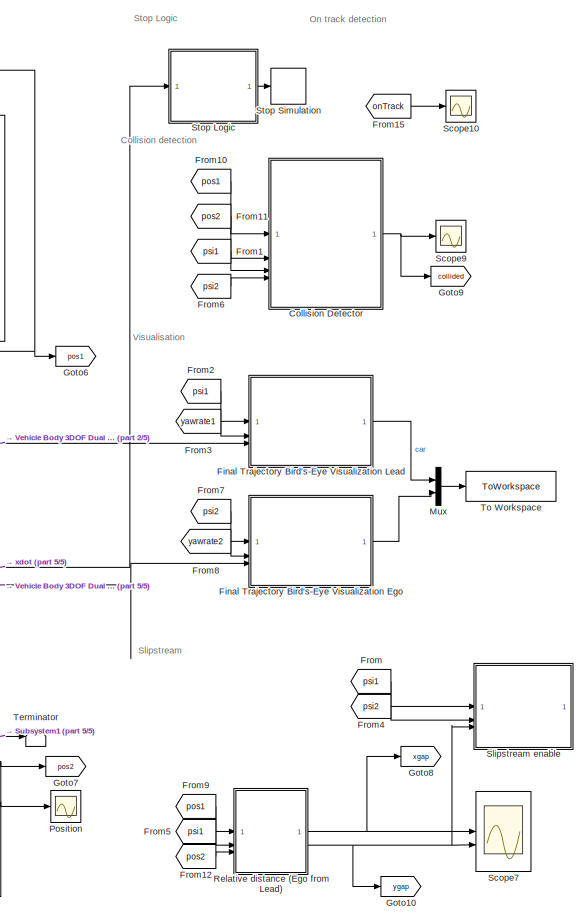
[diagram: root canvas - part 1/5, right side, full height]
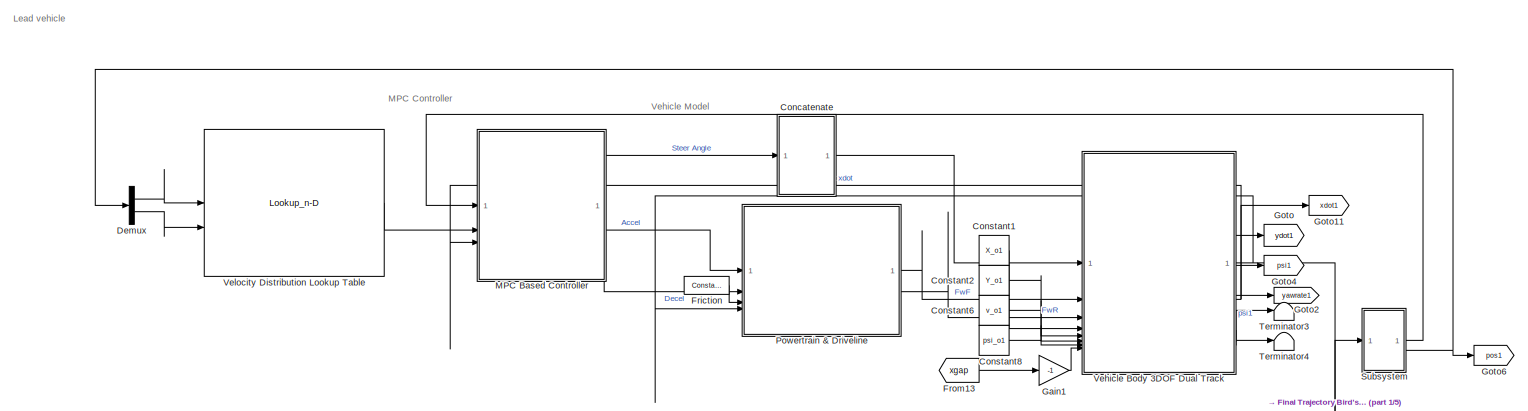
[diagram: root canvas - part 2/5, top center region]
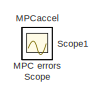
[diagram: root canvas - part 3/5, top right region]
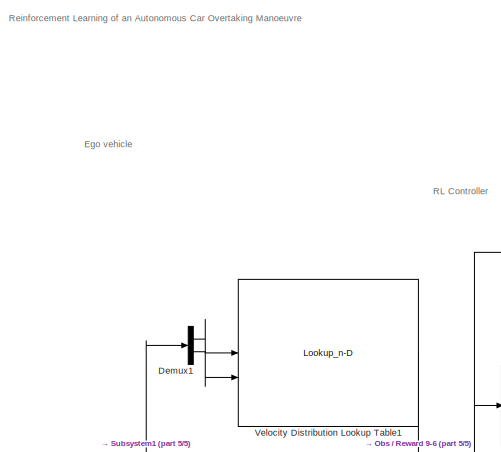
[diagram: root canvas - part 4/5, middle left region]
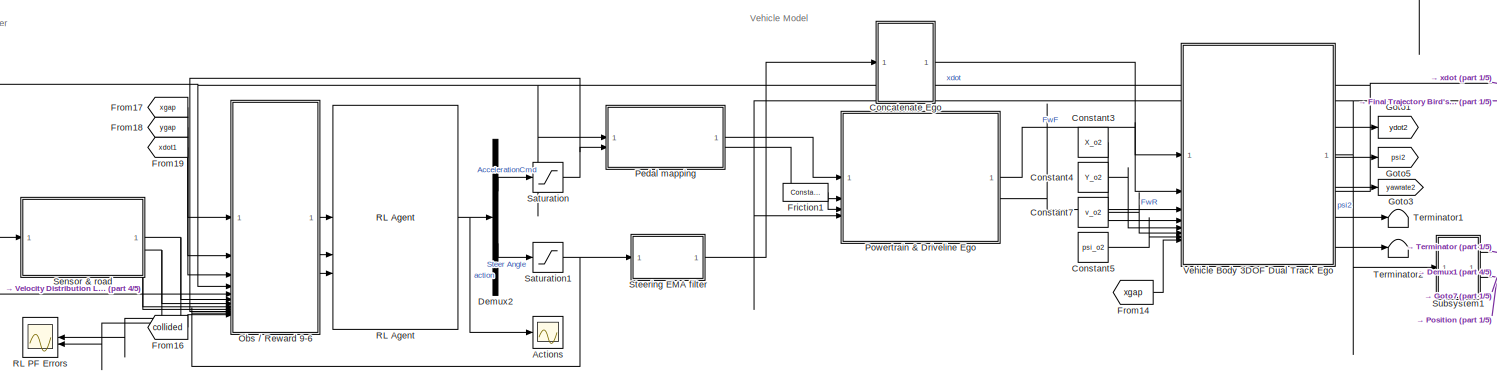
[diagram: root canvas - part 5/5, bottom center region]
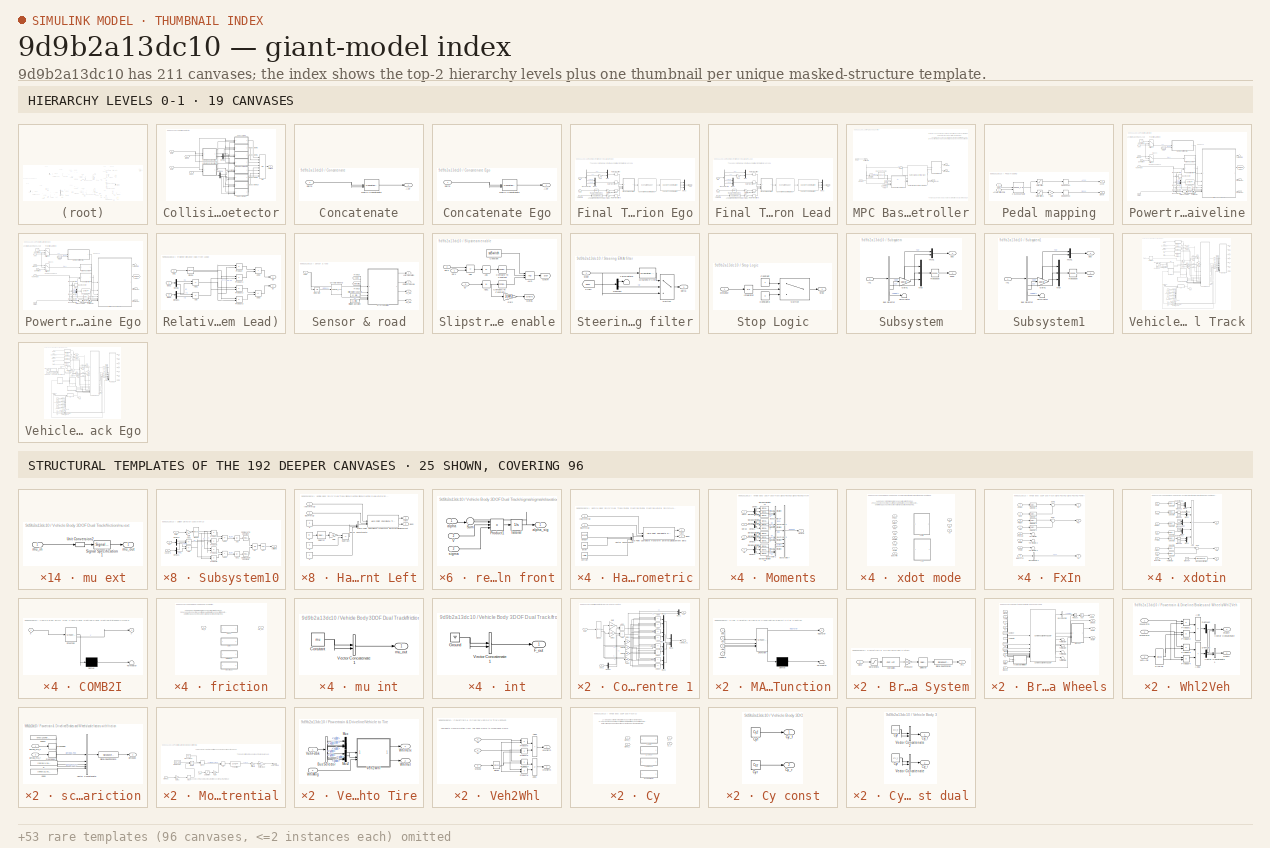
[diagram: thumbnail index - top-2 hierarchy levels (19 canvases) + 25 structural-template representatives of the remaining 192 canvases]
MODEL slx_9d9b2a13dc10
KIND model
CONFIG AbsTol = auto
CONFIG EnableMultiTasking = off
CONFIG FixedStep = 0.001
CONFIG MaxStep = auto
CONFIG MinStep = auto
CONFIG PostLoadFcn = setUpMain
CONFIG PreLoadFcn = setUpModel
CONFIG RelTol = 1e-3
CONFIG SampleTimeConstraint = Unconstrained
CONFIG SolverName = ode45
CONFIG StartTime = 0.0
CONFIG StopTime = inf
WORKSPACE source: mxarray member
WORKSPACE firstWarning = 0
WORKSPACE originalScenarioChecksum = 'F73A6DA3C723D3CA73A6F931B7A52A9C'
BLOCK [Scope] Actions
  Floating = off
  NumInputPorts = 1
  ScopeSpecificationString = Simulink.scopes.TimeScopeBlockCfg('CurrentConfiguration', extmgr.ConfigurationSet(extmgr.Configuration('Core','General UI',true),extmgr.Configuration('Core','Source UI',true),extmgr.Configuration('Sources','WiredSimulink',true,'DataLoggingVariableName','ScopeDataControlActions','DataLogging',true),extmgr.Configuration('Visuals','Time Domain',true,'SerializedDisplays',{struct('MinYLimReal','-0.7074...<+1787ch>
BLOCK [SubSystem] Collision Detector
BLOCK [SubSystem] Collision Detector/Corner and car centre 1
BLOCK [Sum] Collision Detector/Corner and car centre 1/Add
  IconShape = rectangular
BLOCK [Sum] Collision Detector/Corner and car centre 1/Add1
  IconShape = rectangular
BLOCK [Sum] Collision Detector/Corner and car centre 1/Add10
  IconShape = rectangular
  Inputs = ++-
BLOCK [Sum] Collision Detector/Corner and car centre 1/Add11
  IconShape = rectangular
  Inputs = +++
BLOCK [Sum] Collision Detector/Corner and car centre 1/Add12
  IconShape = rectangular
  Inputs = +++
BLOCK [Sum] Collision Detector/Corner and car centre 1/Add13
  IconShape = rectangular
  Inputs = ++-
BLOCK [Sum] Collision Detector/Corner and car centre 1/Add6
  IconShape = rectangular
  Inputs = +--
BLOCK [Sum] Collision Detector/Corner and car centre 1/Add7
  IconShape = rectangular
  Inputs = +-+
BLOCK [Sum] Collision Detector/Corner and car centre 1/Add8
  IconShape = rectangular
  Inputs = +-+
BLOCK [Sum] Collision Detector/Corner and car centre 1/Add9
  IconShape = rectangular
  Inputs = +--
BLOCK [Demux] Collision Detector/Corner and car centre 1/Demux
  Outputs = 2
BLOCK [Gain] Collision Detector/Corner and car centre 1/Gain
  Gain = L/2-1
BLOCK [Gain] Collision Detector/Corner and car centre 1/Gain2
  Gain = L/2-1
BLOCK [Gain] Collision Detector/Corner and car centre 1/Gain3
  Gain = L/2
BLOCK [Gain] Collision Detector/Corner and car centre 1/Gain4
  Gain = L/2
BLOCK [Gain] Collision Detector/Corner and car centre 1/Gain5
  Gain = W/2
BLOCK [Gain] Collision Detector/Corner and car centre 1/Gain6
  Gain = W/2
BLOCK [Mux] Collision Detector/Corner and car centre 1/Mux1
  DisplayOption = bar
  Inputs = 2
BLOCK [Mux] Collision Detector/Corner and car centre 1/Mux2
  DisplayOption = bar
  Inputs = 2
BLOCK [Mux] Collision Detector/Corner and car centre 1/Mux3
  DisplayOption = bar
  Inputs = 2
BLOCK [Mux] Collision Detector/Corner and car centre 1/Mux4
  DisplayOption = bar
  Inputs = 2
BLOCK [Mux] Collision Detector/Corner and car centre 1/Mux5
  DisplayOption = bar
  Inputs = 2
BLOCK [Mux] Collision Detector/Corner and car centre 1/Mux6
  DisplayOption = bar
BLOCK [Trigonometry] Collision Detector/Corner and car centre 1/SinCos
  Operator = sincos
BLOCK [Outport] Collision Detector/Corner and car centre 1/c1
BLOCK [Outport] Collision Detector/Corner and car centre 1/corners_v1
  Port = 2
BLOCK [Inport] Collision Detector/Corner and car centre 1/pos1
  Port = 2
BLOCK [Inport] Collision Detector/Corner and car centre 1/psi1
BLOCK [SubSystem] Collision Detector/Corner and car centre 2
BLOCK [Sum] Collision Detector/Corner and car centre 2/Add
  IconShape = rectangular
BLOCK [Sum] Collision Detector/Corner and car centre 2/Add1
  IconShape = rectangular
BLOCK [Sum] Collision Detector/Corner and car centre 2/Add10
  IconShape = rectangular
  Inputs = ++-
BLOCK [Sum] Collision Detector/Corner and car centre 2/Add11
  IconShape = rectangular
  Inputs = +++
BLOCK [Sum] Collision Detector/Corner and car centre 2/Add12
  IconShape = rectangular
  Inputs = +++
BLOCK [Sum] Collision Detector/Corner and car centre 2/Add13
  IconShape = rectangular
  Inputs = ++-
BLOCK [Sum] Collision Detector/Corner and car centre 2/Add6
  IconShape = rectangular
  Inputs = +--
BLOCK [Sum] Collision Detector/Corner and car centre 2/Add7
  IconShape = rectangular
  Inputs = +-+
BLOCK [Sum] Collision Detector/Corner and car centre 2/Add8
  IconShape = rectangular
  Inputs = +-+
BLOCK [Sum] Collision Detector/Corner and car centre 2/Add9
  IconShape = rectangular
  Inputs = +--
BLOCK [Demux] Collision Detector/Corner and car centre 2/Demux
  Outputs = 2
BLOCK [Gain] Collision Detector/Corner and car centre 2/Gain
  Gain = L/2-1
BLOCK [Gain] Collision Detector/Corner and car centre 2/Gain2
  Gain = L/2-1
BLOCK [Gain] Collision Detector/Corner and car centre 2/Gain3
  Gain = L/2
BLOCK [Gain] Collision Detector/Corner and car centre 2/Gain4
  Gain = L/2
BLOCK [Gain] Collision Detector/Corner and car centre 2/Gain5
  Gain = W/2
BLOCK [Gain] Collision Detector/Corner and car centre 2/Gain6
  Gain = W/2
BLOCK [Mux] Collision Detector/Corner and car centre 2/Mux1
  DisplayOption = bar
  Inputs = 2
BLOCK [Mux] Collision Detector/Corner and car centre 2/Mux2
  DisplayOption = bar
  Inputs = 2
BLOCK [Mux] Collision Detector/Corner and car centre 2/Mux3
  DisplayOption = bar
  Inputs = 2
BLOCK [Mux] Collision Detector/Corner and car centre 2/Mux4
  DisplayOption = bar
  Inputs = 2
BLOCK [Mux] Collision Detector/Corner and car centre 2/Mux5
  DisplayOption = bar
  Inputs = 2
BLOCK [Mux] Collision Detector/Corner and car centre 2/Mux6
  DisplayOption = bar
BLOCK [Trigonometry] Collision Detector/Corner and car centre 2/SinCos
  Operator = sincos
BLOCK [Outport] Collision Detector/Corner and car centre 2/c2
BLOCK [Outport] Collision Detector/Corner and car centre 2/corners_v2
  Port = 2
BLOCK [Inport] Collision Detector/Corner and car centre 2/pos2
  Port = 2
BLOCK [Inport] Collision Detector/Corner and car centre 2/psi2
BLOCK [Demux] Collision Detector/Demux
BLOCK [Demux] Collision Detector/Demux1
BLOCK [Logic] Collision Detector/OR
  AllPortsSameDT = off
  IconShape = distinctive
  Inputs = 8
  Operator = OR
  OutDataTypeStr = boolean
BLOCK [SubSystem] Collision Detector/Subsystem10
BLOCK [Abs] Collision Detector/Subsystem10/Abs
  SaturateOnIntegerOverflow = off
BLOCK [Abs] Collision Detector/Subsystem10/Abs1
  SaturateOnIntegerOverflow = off
BLOCK [Sum] Collision Detector/Subsystem10/Add
  IconShape = rectangular
  Inputs = -+
BLOCK [Sum] Collision Detector/Subsystem10/Add1
  IconShape = rectangular
  Inputs = -+
BLOCK [Sum] Collision Detector/Subsystem10/Add2
  IconShape = rectangular
  Inputs = +-
BLOCK [Sum] Collision Detector/Subsystem10/Add3
  IconShape = rectangular
BLOCK [Reference] Collision Detector/Subsystem10/Compare To Constant  REF=simulink/Logic and Bit
Operations/Compare
To Constant
  SourceBlock = simulink/Logic and Bit\nOperations/Compare\nTo Constant
  SourceType = Compare To Constant
BLOCK [Reference] Collision Detector/Subsystem10/Compare To Constant1  REF=simulink/Logic and Bit
Operations/Compare
To Constant
  SourceBlock = simulink/Logic and Bit\nOperations/Compare\nTo Constant
  SourceType = Compare To Constant
BLOCK [Demux] Collision Detector/Subsystem10/Demux1
  Outputs = 2
BLOCK [Demux] Collision Detector/Subsystem10/Demux2
  Outputs = 2
BLOCK [Gain] Collision Detector/Subsystem10/Gain
  Gain = -1
BLOCK [Logic] Collision Detector/Subsystem10/NOT
  AllPortsSameDT = off
  IconShape = distinctive
  Operator = NOT
  OutDataTypeStr = boolean
BLOCK [Logic] Collision Detector/Subsystem10/OR
  AllPortsSameDT = off
  IconShape = distinctive
  Operator = OR
  OutDataTypeStr = boolean
BLOCK [Product] Collision Detector/Subsystem10/Product
BLOCK [Product] Collision Detector/Subsystem10/Product1
BLOCK [Product] Collision Detector/Subsystem10/Product2
BLOCK [Product] Collision Detector/Subsystem10/Product3
BLOCK [Trigonometry] Collision Detector/Subsystem10/SinCos
  Operator = sincos
BLOCK [Inport] Collision Detector/Subsystem10/c1
  Port = 2
BLOCK [Outport] Collision Detector/Subsystem10/collided
BLOCK [Inport] Collision Detector/Subsystem10/psi1
BLOCK [Inport] Collision Detector/Subsystem10/v2cor3
  Port = 3
BLOCK [SubSystem] Collision Detector/Subsystem11
BLOCK [Abs] Collision Detector/Subsystem11/Abs
  SaturateOnIntegerOverflow = off
BLOCK [Abs] Collision Detector/Subsystem11/Abs1
  SaturateOnIntegerOverflow = off
BLOCK [Sum] Collision Detector/Subsystem11/Add
  IconShape = rectangular
  Inputs = -+
BLOCK [Sum] Collision Detector/Subsystem11/Add1
  IconShape = rectangular
  Inputs = -+
BLOCK [Sum] Collision Detector/Subsystem11/Add2
  IconShape = rectangular
  Inputs = +-
BLOCK [Sum] Collision Detector/Subsystem11/Add3
  IconShape = rectangular
BLOCK [Reference] Collision Detector/Subsystem11/Compare To Constant  REF=simulink/Logic and Bit
Operations/Compare
To Constant
  SourceBlock = simulink/Logic and Bit\nOperations/Compare\nTo Constant
  SourceType = Compare To Constant
BLOCK [Reference] Collision Detector/Subsystem11/Compare To Constant1  REF=simulink/Logic and Bit
Operations/Compare
To Constant
  SourceBlock = simulink/Logic and Bit\nOperations/Compare\nTo Constant
  SourceType = Compare To Constant
BLOCK [Demux] Collision Detector/Subsystem11/Demux1
  Outputs = 2
BLOCK [Demux] Collision Detector/Subsystem11/Demux2
  Outputs = 2
BLOCK [Gain] Collision Detector/Subsystem11/Gain
  Gain = -1
BLOCK [Logic] Collision Detector/Subsystem11/NOT
  AllPortsSameDT = off
  IconShape = distinctive
  Operator = NOT
  OutDataTypeStr = boolean
BLOCK [Logic] Collision Detector/Subsystem11/OR
  AllPortsSameDT = off
  IconShape = distinctive
  Operator = OR
  OutDataTypeStr = boolean
BLOCK [Product] Collision Detector/Subsystem11/Product
BLOCK [Product] Collision Detector/Subsystem11/Product1
BLOCK [Product] Collision Detector/Subsystem11/Product2
BLOCK [Product] Collision Detector/Subsystem11/Product3
BLOCK [Trigonometry] Collision Detector/Subsystem11/SinCos
  Operator = sincos
BLOCK [Inport] Collision Detector/Subsystem11/c1
  Port = 2
BLOCK [Outport] Collision Detector/Subsystem11/collided
BLOCK [Inport] Collision Detector/Subsystem11/psi1
BLOCK [Inport] Collision Detector/Subsystem11/v2cor4
  Port = 3
BLOCK [SubSystem] Collision Detector/Subsystem3
BLOCK [Abs] Collision Detector/Subsystem3/Abs
  SaturateOnIntegerOverflow = off
BLOCK [Abs] Collision Detector/Subsystem3/Abs1
  SaturateOnIntegerOverflow = off
BLOCK [Sum] Collision Detector/Subsystem3/Add
  IconShape = rectangular
  Inputs = -+
BLOCK [Sum] Collision Detector/Subsystem3/Add1
  IconShape = rectangular
  Inputs = -+
BLOCK [Sum] Collision Detector/Subsystem3/Add2
  IconShape = rectangular
  Inputs = +-
BLOCK [Sum] Collision Detector/Subsystem3/Add3
  IconShape = rectangular
BLOCK [Reference] Collision Detector/Subsystem3/Compare To Constant  REF=simulink/Logic and Bit
Operations/Compare
To Constant
  SourceBlock = simulink/Logic and Bit\nOperations/Compare\nTo Constant
  SourceType = Compare To Constant
BLOCK [Reference] Collision Detector/Subsystem3/Compare To Constant1  REF=simulink/Logic and Bit
Operations/Compare
To Constant
  SourceBlock = simulink/Logic and Bit\nOperations/Compare\nTo Constant
  SourceType = Compare To Constant
BLOCK [Demux] Collision Detector/Subsystem3/Demux1
  Outputs = 2
BLOCK [Demux] Collision Detector/Subsystem3/Demux2
  Outputs = 2
BLOCK [Gain] Collision Detector/Subsystem3/Gain
  Gain = -1
BLOCK [Logic] Collision Detector/Subsystem3/NOT
  AllPortsSameDT = off
  IconShape = distinctive
  Operator = NOT
  OutDataTypeStr = boolean
BLOCK [Logic] Collision Detector/Subsystem3/OR
  AllPortsSameDT = off
  IconShape = distinctive
  Operator = OR
  OutDataTypeStr = boolean
BLOCK [Product] Collision Detector/Subsystem3/Product
BLOCK [Product] Collision Detector/Subsystem3/Product1
BLOCK [Product] Collision Detector/Subsystem3/Product2
BLOCK [Product] Collision Detector/Subsystem3/Product3
BLOCK [Trigonometry] Collision Detector/Subsystem3/SinCos
  Operator = sincos
BLOCK [Inport] Collision Detector/Subsystem3/c2
  Port = 2
BLOCK [Outport] Collision Detector/Subsystem3/collided
BLOCK [Inport] Collision Detector/Subsystem3/psi2
BLOCK [Inport] Collision Detector/Subsystem3/v1cor1
  Port = 3
BLOCK [SubSystem] Collision Detector/Subsystem5
BLOCK [Abs] Collision Detector/Subsystem5/Abs
  SaturateOnIntegerOverflow = off
BLOCK [Abs] Collision Detector/Subsystem5/Abs1
  SaturateOnIntegerOverflow = off
BLOCK [Sum] Collision Detector/Subsystem5/Add
  IconShape = rectangular
  Inputs = -+
BLOCK [Sum] Collision Detector/Subsystem5/Add1
  IconShape = rectangular
  Inputs = -+
BLOCK [Sum] Collision Detector/Subsystem5/Add2
  IconShape = rectangular
  Inputs = +-
BLOCK [Sum] Collision Detector/Subsystem5/Add3
  IconShape = rectangular
BLOCK [Reference] Collision Detector/Subsystem5/Compare To Constant  REF=simulink/Logic and Bit
Operations/Compare
To Constant
  SourceBlock = simulink/Logic and Bit\nOperations/Compare\nTo Constant
  SourceType = Compare To Constant
BLOCK [Reference] Collision Detector/Subsystem5/Compare To Constant1  REF=simulink/Logic and Bit
Operations/Compare
To Constant
  SourceBlock = simulink/Logic and Bit\nOperations/Compare\nTo Constant
  SourceType = Compare To Constant
BLOCK [Demux] Collision Detector/Subsystem5/Demux1
  Outputs = 2
BLOCK [Demux] Collision Detector/Subsystem5/Demux2
  Outputs = 2
BLOCK [Gain] Collision Detector/Subsystem5/Gain
  Gain = -1
BLOCK [Logic] Collision Detector/Subsystem5/NOT
  AllPortsSameDT = off
  IconShape = distinctive
  Operator = NOT
  OutDataTypeStr = boolean
BLOCK [Logic] Collision Detector/Subsystem5/OR
  AllPortsSameDT = off
  IconShape = distinctive
  Operator = OR
  OutDataTypeStr = boolean
BLOCK [Product] Collision Detector/Subsystem5/Product
BLOCK [Product] Collision Detector/Subsystem5/Product1
BLOCK [Product] Collision Detector/Subsystem5/Product2
BLOCK [Product] Collision Detector/Subsystem5/Product3
BLOCK [Trigonometry] Collision Detector/Subsystem5/SinCos
  Operator = sincos
BLOCK [Inport] Collision Detector/Subsystem5/c2
  Port = 2
BLOCK [Outport] Collision Detector/Subsystem5/collided
BLOCK [Inport] Collision Detector/Subsystem5/psi2
BLOCK [Inport] Collision Detector/Subsystem5/v1cor2
  Port = 3
BLOCK [SubSystem] Collision Detector/Subsystem6
BLOCK [Abs] Collision Detector/Subsystem6/Abs
  SaturateOnIntegerOverflow = off
BLOCK [Abs] Collision Detector/Subsystem6/Abs1
  SaturateOnIntegerOverflow = off
BLOCK [Sum] Collision Detector/Subsystem6/Add
  IconShape = rectangular
  Inputs = -+
BLOCK [Sum] Collision Detector/Subsystem6/Add1
  IconShape = rectangular
  Inputs = -+
BLOCK [Sum] Collision Detector/Subsystem6/Add2
  IconShape = rectangular
  Inputs = +-
BLOCK [Sum] Collision Detector/Subsystem6/Add3
  IconShape = rectangular
BLOCK [Reference] Collision Detector/Subsystem6/Compare To Constant  REF=simulink/Logic and Bit
Operations/Compare
To Constant
  SourceBlock = simulink/Logic and Bit\nOperations/Compare\nTo Constant
  SourceType = Compare To Constant
BLOCK [Reference] Collision Detector/Subsystem6/Compare To Constant1  REF=simulink/Logic and Bit
Operations/Compare
To Constant
  SourceBlock = simulink/Logic and Bit\nOperations/Compare\nTo Constant
  SourceType = Compare To Constant
BLOCK [Demux] Collision Detector/Subsystem6/Demux1
  Outputs = 2
BLOCK [Demux] Collision Detector/Subsystem6/Demux2
  Outputs = 2
BLOCK [Gain] Collision Detector/Subsystem6/Gain
  Gain = -1
BLOCK [Logic] Collision Detector/Subsystem6/NOT
  AllPortsSameDT = off
  IconShape = distinctive
  Operator = NOT
  OutDataTypeStr = boolean
BLOCK [Logic] Collision Detector/Subsystem6/OR
  AllPortsSameDT = off
  IconShape = distinctive
  Operator = OR
  OutDataTypeStr = boolean
BLOCK [Product] Collision Detector/Subsystem6/Product
BLOCK [Product] Collision Detector/Subsystem6/Product1
BLOCK [Product] Collision Detector/Subsystem6/Product2
BLOCK [Product] Collision Detector/Subsystem6/Product3
BLOCK [Trigonometry] Collision Detector/Subsystem6/SinCos
  Operator = sincos
BLOCK [Inport] Collision Detector/Subsystem6/c2
  Port = 2
BLOCK [Outport] Collision Detector/Subsystem6/collided
BLOCK [Inport] Collision Detector/Subsystem6/psi2
BLOCK [Inport] Collision Detector/Subsystem6/v1cor3
  Port = 3
BLOCK [SubSystem] Collision Detector/Subsystem7
BLOCK [Abs] Collision Detector/Subsystem7/Abs
  SaturateOnIntegerOverflow = off
BLOCK [Abs] Collision Detector/Subsystem7/Abs1
  SaturateOnIntegerOverflow = off
BLOCK [Sum] Collision Detector/Subsystem7/Add
  IconShape = rectangular
  Inputs = -+
BLOCK [Sum] Collision Detector/Subsystem7/Add1
  IconShape = rectangular
  Inputs = -+
BLOCK [Sum] Collision Detector/Subsystem7/Add2
  IconShape = rectangular
  Inputs = +-
BLOCK [Sum] Collision Detector/Subsystem7/Add3
  IconShape = rectangular
BLOCK [Reference] Collision Detector/Subsystem7/Compare To Constant  REF=simulink/Logic and Bit
Operations/Compare
To Constant
  SourceBlock = simulink/Logic and Bit\nOperations/Compare\nTo Constant
  SourceType = Compare To Constant
BLOCK [Reference] Collision Detector/Subsystem7/Compare To Constant1  REF=simulink/Logic and Bit
Operations/Compare
To Constant
  SourceBlock = simulink/Logic and Bit\nOperations/Compare\nTo Constant
  SourceType = Compare To Constant
BLOCK [Demux] Collision Detector/Subsystem7/Demux1
  Outputs = 2
BLOCK [Demux] Collision Detector/Subsystem7/Demux2
  Outputs = 2
BLOCK [Gain] Collision Detector/Subsystem7/Gain
  Gain = -1
BLOCK [Logic] Collision Detector/Subsystem7/NOT
  AllPortsSameDT = off
  IconShape = distinctive
  Operator = NOT
  OutDataTypeStr = boolean
BLOCK [Logic] Collision Detector/Subsystem7/OR
  AllPortsSameDT = off
  IconShape = distinctive
  Operator = OR
  OutDataTypeStr = boolean
BLOCK [Product] Collision Detector/Subsystem7/Product
BLOCK [Product] Collision Detector/Subsystem7/Product1
BLOCK [Product] Collision Detector/Subsystem7/Product2
BLOCK [Product] Collision Detector/Subsystem7/Product3
BLOCK [Trigonometry] Collision Detector/Subsystem7/SinCos
  Operator = sincos
BLOCK [Inport] Collision Detector/Subsystem7/c2
  Port = 2
BLOCK [Outport] Collision Detector/Subsystem7/collided
BLOCK [Inport] Collision Detector/Subsystem7/psi2
BLOCK [Inport] Collision Detector/Subsystem7/v1cor4
  Port = 3
BLOCK [SubSystem] Collision Detector/Subsystem8
BLOCK [Abs] Collision Detector/Subsystem8/Abs
  SaturateOnIntegerOverflow = off
BLOCK [Abs] Collision Detector/Subsystem8/Abs1
  SaturateOnIntegerOverflow = off
BLOCK [Sum] Collision Detector/Subsystem8/Add
  IconShape = rectangular
  Inputs = -+
BLOCK [Sum] Collision Detector/Subsystem8/Add1
  IconShape = rectangular
  Inputs = -+
BLOCK [Sum] Collision Detector/Subsystem8/Add2
  IconShape = rectangular
  Inputs = +-
BLOCK [Sum] Collision Detector/Subsystem8/Add3
  IconShape = rectangular
BLOCK [Reference] Collision Detector/Subsystem8/Compare To Constant  REF=simulink/Logic and Bit
Operations/Compare
To Constant
  SourceBlock = simulink/Logic and Bit\nOperations/Compare\nTo Constant
  SourceType = Compare To Constant
BLOCK [Reference] Collision Detector/Subsystem8/Compare To Constant1  REF=simulink/Logic and Bit
Operations/Compare
To Constant
  SourceBlock = simulink/Logic and Bit\nOperations/Compare\nTo Constant
  SourceType = Compare To Constant
BLOCK [Demux] Collision Detector/Subsystem8/Demux1
  Outputs = 2
BLOCK [Demux] Collision Detector/Subsystem8/Demux2
  Outputs = 2
BLOCK [Gain] Collision Detector/Subsystem8/Gain
  Gain = -1
BLOCK [Logic] Collision Detector/Subsystem8/NOT
  AllPortsSameDT = off
  IconShape = distinctive
  Operator = NOT
  OutDataTypeStr = boolean
BLOCK [Logic] Collision Detector/Subsystem8/OR
  AllPortsSameDT = off
  IconShape = distinctive
  Operator = OR
  OutDataTypeStr = boolean
BLOCK [Product] Collision Detector/Subsystem8/Product
BLOCK [Product] Collision Detector/Subsystem8/Product1
BLOCK [Product] Collision Detector/Subsystem8/Product2
BLOCK [Product] Collision Detector/Subsystem8/Product3
BLOCK [Trigonometry] Collision Detector/Subsystem8/SinCos
  Operator = sincos
BLOCK [Inport] Collision Detector/Subsystem8/c1
  Port = 2
BLOCK [Outport] Collision Detector/Subsystem8/collided
BLOCK [Inport] Collision Detector/Subsystem8/psi1
BLOCK [Inport] Collision Detector/Subsystem8/v2cor1
  Port = 3
BLOCK [SubSystem] Collision Detector/Subsystem9
BLOCK [Abs] Collision Detector/Subsystem9/Abs
  SaturateOnIntegerOverflow = off
BLOCK [Abs] Collision Detector/Subsystem9/Abs1
  SaturateOnIntegerOverflow = off
BLOCK [Sum] Collision Detector/Subsystem9/Add
  IconShape = rectangular
  Inputs = -+
BLOCK [Sum] Collision Detector/Subsystem9/Add1
  IconShape = rectangular
  Inputs = -+
BLOCK [Sum] Collision Detector/Subsystem9/Add2
  IconShape = rectangular
  Inputs = +-
BLOCK [Sum] Collision Detector/Subsystem9/Add3
  IconShape = rectangular
BLOCK [Reference] Collision Detector/Subsystem9/Compare To Constant  REF=simulink/Logic and Bit
Operations/Compare
To Constant
  SourceBlock = simulink/Logic and Bit\nOperations/Compare\nTo Constant
  SourceType = Compare To Constant
BLOCK [Reference] Collision Detector/Subsystem9/Compare To Constant1  REF=simulink/Logic and Bit
Operations/Compare
To Constant
  SourceBlock = simulink/Logic and Bit\nOperations/Compare\nTo Constant
  SourceType = Compare To Constant
BLOCK [Demux] Collision Detector/Subsystem9/Demux1
  Outputs = 2
BLOCK [Demux] Collision Detector/Subsystem9/Demux2
  Outputs = 2
BLOCK [Gain] Collision Detector/Subsystem9/Gain
  Gain = -1
BLOCK [Logic] Collision Detector/Subsystem9/NOT
  AllPortsSameDT = off
  IconShape = distinctive
  Operator = NOT
  OutDataTypeStr = boolean
BLOCK [Logic] Collision Detector/Subsystem9/OR
  AllPortsSameDT = off
  IconShape = distinctive
  Operator = OR
  OutDataTypeStr = boolean
BLOCK [Product] Collision Detector/Subsystem9/Product
BLOCK [Product] Collision Detector/Subsystem9/Product1
BLOCK [Product] Collision Detector/Subsystem9/Product2
BLOCK [Product] Collision Detector/Subsystem9/Product3
BLOCK [Trigonometry] Collision Detector/Subsystem9/SinCos
  Operator = sincos
BLOCK [Inport] Collision Detector/Subsystem9/c1
  Port = 2
BLOCK [Outport] Collision Detector/Subsystem9/collided
BLOCK [Inport] Collision Detector/Subsystem9/psi1
BLOCK [Inport] Collision Detector/Subsystem9/v2cor2
  Port = 3
BLOCK [Outport] Collision Detector/collided
BLOCK [Inport] Collision Detector/pos1
BLOCK [Inport] Collision Detector/pos2
  Port = 2
BLOCK [Inport] Collision Detector/psi1
  Port = 3
BLOCK [Inport] Collision Detector/psi2
  Port = 4
BLOCK [SubSystem] Concatenate
BLOCK [SubSystem] Concatenate Ego
BLOCK [Outport] Concatenate Ego/AnF
  VectorParamsAs1DForOutWhenUnconnected = off
BLOCK [Concatenate] Concatenate Ego/Matrix Concatenate
BLOCK [Inport] Concatenate Ego/delta
BLOCK [Outport] Concatenate/AnF
  VectorParamsAs1DForOutWhenUnconnected = off
BLOCK [Concatenate] Concatenate/Matrix Concatenate
BLOCK [Inport] Concatenate/delta
BLOCK [Constant] Constant1
  Value = X_o1
BLOCK [Constant] Constant2
  Value = Y_o1
BLOCK [Constant] Constant3
  Value = X_o2
BLOCK [Constant] Constant4
  Value = Y_o2
BLOCK [Constant] Constant5
  Value = psi_o2
BLOCK [Constant] Constant6
  Value = v_o1
BLOCK [Constant] Constant7
  Value = v_o2
BLOCK [Constant] Constant8
  Value = psi_o1
BLOCK [Demux] Demux
  Outputs = 2
BLOCK [Demux] Demux1
  Outputs = 2
BLOCK [Demux] Demux2
  Outputs = 2
BLOCK [SubSystem] Final Trajectory Bird's-Eye Visualization Ego
BLOCK [Reference] Final Trajectory Bird's-Eye Visualization Ego/Angular Velocity Conversion  REF=aerolibconvert2/Angular Velocity
Conversion
  SourceBlock = aerolibconvert2/Angular Velocity\nConversion
  SourceType = Angular Velocity Conversion
BLOCK [BusSelector] Final Trajectory Bird's-Eye Visualization Ego/Bus Selector1
  OutputSignals = InertFrm.Cg.Disp.X,InertFrm.Cg.Disp.Y,InertFrm.Cg.Vel.Xdot,InertFrm.Cg.Vel.Ydot
BLOCK [Outport] Final Trajectory Bird's-Eye Visualization Ego/Car1
BLOCK [Reference] Final Trajectory Bird's-Eye Visualization Ego/Cuboid To 3D Simulation  REF=drivingscenarioandsensors/Cuboid To 3D Simulation
  SourceBlock = drivingscenarioandsensors/Cuboid To 3D Simulation
  SourceType = driving.scenario.internal.CuboidTo3DSimulation
BLOCK [Gain] Final Trajectory Bird's-Eye Visualization Ego/Gain
  Gain = -1
BLOCK [Gain] Final Trajectory Bird's-Eye Visualization Ego/Gain1
  Gain = -1
BLOCK [Gain] Final Trajectory Bird's-Eye Visualization Ego/Gain2
  Gain = -1
BLOCK [Inport] Final Trajectory Bird's-Eye Visualization Ego/Info
  Port = 3
BLOCK [SubSystem] Final Trajectory Bird's-Eye Visualization Ego/MATLAB Function
  ErrorFcn = Stateflow.Translate.translate
  PermitHierarchicalResolution = ExplicitOnly
  SFBlockType = MATLAB Function
  TreatAsAtomicUnit = on
BLOCK [Demux] Final Trajectory Bird's-Eye Visualization Ego/MATLAB Function/ Demux 
  Outputs = 1
BLOCK [S-Function] Final Trajectory Bird's-Eye Visualization Ego/MATLAB Function/ SFunction 
  EnableBusSupport = on
  FunctionName = sf_sfun
  PortCounts = [4 2]
  SFcnIsStateOwnerBlock = off
  SFunctionDeploymentMode = off
  Tag = Stateflow S-Function 8
BLOCK [Terminator] Final Trajectory Bird's-Eye Visualization Ego/MATLAB Function/ Terminator 
BLOCK [Outport] Final Trajectory Bird's-Eye Visualization Ego/MATLAB Function/egoActor
BLOCK [Inport] Final Trajectory Bird's-Eye Visualization Ego/MATLAB Function/pos
BLOCK [Inport] Final Trajectory Bird's-Eye Visualization Ego/MATLAB Function/vel
  Port = 2
BLOCK [Inport] Final Trajectory Bird's-Eye Visualization Ego/MATLAB Function/yaw
  Port = 3
BLOCK [Inport] Final Trajectory Bird's-Eye Visualization Ego/MATLAB Function/yawRate
  Port = 4
BLOCK [Mux] Final Trajectory Bird's-Eye Visualization Ego/Mux
  DisplayOption = bar
  Inputs = 2
BLOCK [Mux] Final Trajectory Bird's-Eye Visualization Ego/Mux1
  DisplayOption = bar
  Inputs = 2
BLOCK [Mux] Final Trajectory Bird's-Eye Visualization Ego/Mux2
  DisplayOption = bar
  Inputs = 3
BLOCK [Reference] Final Trajectory Bird's-Eye Visualization Ego/Radians to Degrees  REF=simulink_extras/Transformations/Radians
to Degrees
  SourceBlock = simulink_extras/Transformations/Radians\nto Degrees
  SourceType = RadiansToDegrees
BLOCK [RateTransition] Final Trajectory Bird's-Eye Visualization Ego/Rate Transition
BLOCK [RateTransition] Final Trajectory Bird's-Eye Visualization Ego/Rate Transition4
  NameLocation = left
BLOCK [RateTransition] Final Trajectory Bird's-Eye Visualization Ego/Rate Transition5
BLOCK [RateTransition] Final Trajectory Bird's-Eye Visualization Ego/Rate Transition6
BLOCK [Reference] Final Trajectory Bird's-Eye Visualization Ego/Scenario Reader for Output   REF=drivingscenarioandsensors/Scenario Reader
  Commented = through
  SourceBlock = drivingscenarioandsensors/Scenario Reader
  SourceType = driving.scenario.internal.ScenarioReader
BLOCK [Inport] Final Trajectory Bird's-Eye Visualization Ego/Yaw
BLOCK [Inport] Final Trajectory Bird's-Eye Visualization Ego/YawRate
  Port = 2
BLOCK [SubSystem] Final Trajectory Bird's-Eye Visualization Lead
BLOCK [Reference] Final Trajectory Bird's-Eye Visualization Lead/Angular Velocity Conversion  REF=aerolibconvert2/Angular Velocity
Conversion
  SourceBlock = aerolibconvert2/Angular Velocity\nConversion
  SourceType = Angular Velocity Conversion
BLOCK [BusSelector] Final Trajectory Bird's-Eye Visualization Lead/Bus Selector1
  OutputSignals = InertFrm.Cg.Disp.X,InertFrm.Cg.Disp.Y,InertFrm.Cg.Vel.Xdot,InertFrm.Cg.Vel.Ydot
BLOCK [Outport] Final Trajectory Bird's-Eye Visualization Lead/Car
BLOCK [Reference] Final Trajectory Bird's-Eye Visualization Lead/Cuboid To 3D Simulation  REF=drivingscenarioandsensors/Cuboid To 3D Simulation
  SourceBlock = drivingscenarioandsensors/Cuboid To 3D Simulation
  SourceType = driving.scenario.internal.CuboidTo3DSimulation
BLOCK [Gain] Final Trajectory Bird's-Eye Visualization Lead/Gain
  Gain = -1
BLOCK [Gain] Final Trajectory Bird's-Eye Visualization Lead/Gain1
  Gain = -1
BLOCK [Gain] Final Trajectory Bird's-Eye Visualization Lead/Gain2
  Gain = -1
BLOCK [Inport] Final Trajectory Bird's-Eye Visualization Lead/Info
  Port = 3
BLOCK [SubSystem] Final Trajectory Bird's-Eye Visualization Lead/MATLAB Function
  ErrorFcn = Stateflow.Translate.translate
  PermitHierarchicalResolution = ExplicitOnly
  SFBlockType = MATLAB Function
  TreatAsAtomicUnit = on
BLOCK [Demux] Final Trajectory Bird's-Eye Visualization Lead/MATLAB Function/ Demux 
  Outputs = 1
BLOCK [S-Function] Final Trajectory Bird's-Eye Visualization Lead/MATLAB Function/ SFunction 
  EnableBusSupport = on
  FunctionName = sf_sfun
  PortCounts = [4 2]
  SFcnIsStateOwnerBlock = off
  SFunctionDeploymentMode = off
  Tag = Stateflow S-Function 5
BLOCK [Terminator] Final Trajectory Bird's-Eye Visualization Lead/MATLAB Function/ Terminator 
BLOCK [Outport] Final Trajectory Bird's-Eye Visualization Lead/MATLAB Function/egoActor
BLOCK [Inport] Final Trajectory Bird's-Eye Visualization Lead/MATLAB Function/pos
BLOCK [Inport] Final Trajectory Bird's-Eye Visualization Lead/MATLAB Function/vel
  Port = 2
BLOCK [Inport] Final Trajectory Bird's-Eye Visualization Lead/MATLAB Function/yaw
  Port = 3
BLOCK [Inport] Final Trajectory Bird's-Eye Visualization Lead/MATLAB Function/yawRate
  Port = 4
BLOCK [Mux] Final Trajectory Bird's-Eye Visualization Lead/Mux
  DisplayOption = bar
  Inputs = 2
BLOCK [Mux] Final Trajectory Bird's-Eye Visualization Lead/Mux1
  DisplayOption = bar
  Inputs = 2
BLOCK [Mux] Final Trajectory Bird's-Eye Visualization Lead/Mux2
  DisplayOption = bar
  Inputs = 3
BLOCK [Reference] Final Trajectory Bird's-Eye Visualization Lead/Radians to Degrees  REF=simulink_extras/Transformations/Radians
to Degrees
  SourceBlock = simulink_extras/Transformations/Radians\nto Degrees
  SourceType = RadiansToDegrees
BLOCK [RateTransition] Final Trajectory Bird's-Eye Visualization Lead/Rate Transition
BLOCK [RateTransition] Final Trajectory Bird's-Eye Visualization Lead/Rate Transition4
  NameLocation = left
BLOCK [RateTransition] Final Trajectory Bird's-Eye Visualization Lead/Rate Transition5
BLOCK [RateTransition] Final Trajectory Bird's-Eye Visualization Lead/Rate Transition6
BLOCK [Reference] Final Trajectory Bird's-Eye Visualization Lead/Scenario Reader for Output   REF=drivingscenarioandsensors/Scenario Reader
  Commented = through
  SourceBlock = drivingscenarioandsensors/Scenario Reader
  SourceType = driving.scenario.internal.ScenarioReader
BLOCK [Inport] Final Trajectory Bird's-Eye Visualization Lead/Yaw
BLOCK [Inport] Final Trajectory Bird's-Eye Visualization Lead/YawRate
  Port = 2
BLOCK [Reference] Friction  REF=vehdynlibtirecommon/Constant
  SourceBlock = vehdynlibtirecommon/Constant
BLOCK [Reference] Friction1  REF=vehdynlibtirecommon/Constant
  SourceBlock = vehdynlibtirecommon/Constant
BLOCK [From] From
  GotoTag = psi1
  TagVisibility = global
BLOCK [From] From1
  GotoTag = psi1
  TagVisibility = global
BLOCK [From] From10
  GotoTag = pos1
  TagVisibility = global
BLOCK [From] From11
  GotoTag = pos2
  TagVisibility = global
BLOCK [From] From12
  GotoTag = pos2
  TagVisibility = global
BLOCK [From] From13
  GotoTag = xgap
  TagVisibility = global
BLOCK [From] From14
  GotoTag = xgap
  TagVisibility = global
BLOCK [From] From15
  GotoTag = onTrack
  TagVisibility = global
BLOCK [From] From16
  GotoTag = collided
  TagVisibility = global
BLOCK [From] From17
  GotoTag = xgap
  TagVisibility = global
BLOCK [From] From18
  GotoTag = ygap
  TagVisibility = global
BLOCK [From] From19
  GotoTag = xdot1
  TagVisibility = global
BLOCK [From] From2
  GotoTag = psi1
  TagVisibility = global
BLOCK [From] From3
  GotoTag = yawrate1
  TagVisibility = global
BLOCK [From] From4
  GotoTag = psi2
  TagVisibility = global
BLOCK [From] From5
  GotoTag = psi1
  TagVisibility = global
BLOCK [From] From6
  GotoTag = psi2
  TagVisibility = global
BLOCK [From] From7
  GotoTag = psi2
  TagVisibility = global
BLOCK [From] From8
  GotoTag = yawrate2
  TagVisibility = global
BLOCK [From] From9
  GotoTag = pos1
  TagVisibility = global
BLOCK [Gain] Gain1
  Gain = -1
BLOCK [Goto] Goto
  GotoTag = ydot1
  TagVisibility = global
BLOCK [Goto] Goto1
  GotoTag = ydot2
  TagVisibility = global
BLOCK [Goto] Goto10
  GotoTag = ygap
  TagVisibility = global
BLOCK [Goto] Goto11
  GotoTag = xdot1
  TagVisibility = global
BLOCK [Goto] Goto2
  GotoTag = yawrate1
  TagVisibility = global
BLOCK [Goto] Goto3
  GotoTag = yawrate2
  TagVisibility = global
BLOCK [Goto] Goto4
  GotoTag = psi1
  TagVisibility = global
BLOCK [Goto] Goto5
  GotoTag = psi2
  TagVisibility = global
BLOCK [Goto] Goto6
  GotoTag = pos1
  TagVisibility = global
BLOCK [Goto] Goto7
  GotoTag = pos2
  TagVisibility = global
BLOCK [Goto] Goto8
  GotoTag = xgap
  TagVisibility = global
BLOCK [Goto] Goto9
  GotoTag = collided
  TagVisibility = global
BLOCK [SubSystem] MPC Based Controller
  AncestorBlock = rewardLibrary/MPC Based Controller
  LibrarySourceBlock = rewardLibrary/MPC Based Controller
  VariantControl = Stanley
BLOCK [Lookup_n-D] MPC Based Controller/1-D Lookup Table1
  BreakpointsForDimension1 = gradbp1
  ExtrapMethod = Clip
  InputPortMap = u0
  InternalRulePriority = Speed
  InterpMethod = Cubic spline
  NumberOfTableDimensions = 1
  RndMeth = Simplest
  Table = curvature1
BLOCK [Outport] MPC Based Controller/AccelCmd
  Port = 2
BLOCK [Outport] MPC Based Controller/DecelCmd
  Port = 3
BLOCK [From] MPC Based Controller/From
  GotoTag = yawrate1
  TagVisibility = global
BLOCK [From] MPC Based Controller/From1
  GotoTag = ydot1
  TagVisibility = global
BLOCK [Integrator] MPC Based Controller/Integrator
BLOCK [Reference] MPC Based Controller/Path Following Control System MPC  REF=mpcadaslib/Path Following Control System
  SourceBlock = mpcadaslib/Path Following Control System
  SourceType = Path following control (PFC) system
BLOCK [SubSystem] MPC Based Controller/Pedal map
BLOCK [DeadZone] MPC Based Controller/Pedal map/Dead Zone1
  LowerValue = -0.001
  UpperValue = 0.001
BLOCK [DeadZone] MPC Based Controller/Pedal map/Dead Zone2
  LowerValue = -0.001
  UpperValue = 0.001
BLOCK [Gain] MPC Based Controller/Pedal map/Gain
  Gain = -1
BLOCK [Outport] MPC Based Controller/Pedal map/Out1
BLOCK [Outport] MPC Based Controller/Pedal map/Out2
  Port = 2
BLOCK [Lookup_n-D] MPC Based Controller/Pedal map/Pedal map
  BreakpointsForDimension1 = vel_vec
  BreakpointsForDimension2 = accel_vec
  InputPortMap = u0,u1
  InternalRulePriority = Speed
  RndMeth = Simplest
  Table = pedal_map'
BLOCK [Saturate] MPC Based Controller/Pedal map/Saturation
  LowerLimit = 0
  UpperLimit = 1
BLOCK [Saturate] MPC Based Controller/Pedal map/Saturation1
  LowerLimit = -1
  UpperLimit = 0
BLOCK [Inport] MPC Based Controller/Pedal map/a
  Port = 2
BLOCK [Inport] MPC Based Controller/Pedal map/vx
BLOCK [Inport] MPC Based Controller/Pose
BLOCK [SubSystem] MPC Based Controller/Sensor Dynamics
BLOCK [Inport] MPC Based Controller/Sensor Dynamics/Current curvature
BLOCK [Integrator] MPC Based Controller/Sensor Dynamics/Integrator
BLOCK [Integrator] MPC Based Controller/Sensor Dynamics/Integrator2
BLOCK [Outport] MPC Based Controller/Sensor Dynamics/Lateral deviation
  VectorParamsAs1DForOutWhenUnconnected = off
BLOCK [Inport] MPC Based Controller/Sensor Dynamics/Lateral velocity
  Port = 3
BLOCK [Inport] MPC Based Controller/Sensor Dynamics/Longitudinal velocity
  Port = 2
BLOCK [Mux] MPC Based Controller/Sensor Dynamics/Mux1
  DisplayOption = bar
  Inputs = [1 1 1]
BLOCK [Product] MPC Based Controller/Sensor Dynamics/Product
BLOCK [Outport] MPC Based Controller/Sensor Dynamics/Relative yaw angle
  Port = 2
  VectorParamsAs1DForOutWhenUnconnected = off
BLOCK [Sum] MPC Based Controller/Sensor Dynamics/Subtract
  IconShape = rectangular
  Inputs = -+
BLOCK [Inport] MPC Based Controller/Sensor Dynamics/Yaw rate
  Port = 4
BLOCK [Fcn] MPC Based Controller/Sensor Dynamics/e1dot
  Expr = u(1)*u(3)+u(2)
BLOCK [Terminator] MPC Based Controller/Terminator
BLOCK [Inport] MPC Based Controller/VelFdbk
  Port = 3
BLOCK [Inport] MPC Based Controller/VelRef
  Port = 2
BLOCK [Outport] MPC Based Controller/WheelSteeringAngle
BLOCK [Scope] MPC errors
  Floating = off
  IOType = viewer
  NumInputPorts = 1
  ScopeSpecificationString = Simulink.scopes.TimeScopeBlockCfg('CurrentConfiguration', extmgr.ConfigurationSet(extmgr.Configuration('Core','General UI',true),extmgr.Configuration('Core','Source UI',true),extmgr.Configuration('Sources','WiredSimulink',true,'DataLoggingVariableName','ScopeData1'),extmgr.Configuration('Visuals','Time Domain',true,'SerializedDisplays',{struct('MinYLimReal','-1.4816','MaxYLimReal','0.18511','YLabe...<+1409ch>
BLOCK [Scope] MPCaccel
  Floating = off
  IOType = viewer
  NumInputPorts = 1
  ScopeSpecificationString = Simulink.scopes.TimeScopeBlockCfg('CurrentConfiguration', extmgr.ConfigurationSet(extmgr.Configuration('Core','General UI',true),extmgr.Configuration('Core','Source UI',true),extmgr.Configuration('Sources','WiredSimulink',true,'DataLoggingVariableName','ScopeData3'),extmgr.Configuration('Visuals','Time Domain',true,'SerializedDisplays',{struct('MinYLimReal','-2.45246','MaxYLimReal','3.59316','YLab...<+1432ch>
BLOCK [Mux] Mux
  DisplayOption = bar
  Inputs = 2
BLOCK [SubSystem] Obs // Reward 9-6
  AncestorBlock = rewardLibrary/Obs // Reward 6-2
  LibrarySourceBlock = rewardLibrary/Obs // Reward 6-2
BLOCK [Gain] Obs // Reward 9-6/A
  Gain = 0
  NameLocation = left
BLOCK [Abs] Obs // Reward 9-6/Abs
  SaturateOnIntegerOverflow = off
BLOCK [Gain] Obs // Reward 9-6/B
  Gain = 2000
  NameLocation = left
BLOCK [Reference] Obs // Reward 9-6/Compare To Constant  REF=simulink/Logic and Bit
Operations/Compare
To Constant
  SourceBlock = simulink/Logic and Bit\nOperations/Compare\nTo Constant
  SourceType = Compare To Constant
BLOCK [Gain] Obs // Reward 9-6/E
  Gain = 2000
  NameLocation = left
BLOCK [From] Obs // Reward 9-6/From14
  GotoTag = ry2
  TagVisibility = global
BLOCK [Gain] Obs // Reward 9-6/Gain
  Gain = 1/TsRL
BLOCK [Gain] Obs // Reward 9-6/Gain1
  Gain = 20
  NameLocation = left
BLOCK [Gain] Obs // Reward 9-6/Gain2
  Gain = 1/TsRL
BLOCK [Gain] Obs // Reward 9-6/Gain3
  Gain = 1/TsRL
BLOCK [Goto] Obs // Reward 9-6/Goto
  GotoTag = onTrack
  TagVisibility = global
BLOCK [Goto] Obs // Reward 9-6/Goto1
  Commented = on
  GotoTag = p_col
  TagVisibility = global
BLOCK [Gain] Obs // Reward 9-6/H
BLOCK [Integrator] Obs // Reward 9-6/Integrator
BLOCK [Integrator] Obs // Reward 9-6/Integrator1
BLOCK [Integrator] Obs // Reward 9-6/Integrator2
BLOCK [Logic] Obs // Reward 9-6/Logical Operator1
  AllPortsSameDT = off
  Inputs = 3
  Operator = OR
  OutDataTypeStr = boolean
BLOCK [SubSystem] Obs // Reward 9-6/Overtaking
BLOCK [Gain] Obs // Reward 9-6/Overtaking/-k_D
  Gain = -0.3
BLOCK [Gain] Obs // Reward 9-6/Overtaking/-k_G
  Gain = -1.2
BLOCK [Sum] Obs // Reward 9-6/Overtaking/Add
  IconShape = rectangular
BLOCK [Sum] Obs // Reward 9-6/Overtaking/Add1
  IconShape = rectangular
  Inputs = +-
BLOCK [Sum] Obs // Reward 9-6/Overtaking/Add2
  IconShape = rectangular
BLOCK [Gain] Obs // Reward 9-6/Overtaking/C
  Gain = 0
BLOCK [Constant] Obs // Reward 9-6/Overtaking/Constant
BLOCK [Constant] Obs // Reward 9-6/Overtaking/Constant1
  Value = 0
BLOCK [Constant] Obs // Reward 9-6/Overtaking/Constant2
BLOCK [Constant] Obs // Reward 9-6/Overtaking/Constant3
BLOCK [Constant] Obs // Reward 9-6/Overtaking/Constant4
BLOCK [Gain] Obs // Reward 9-6/Overtaking/D
  Gain = 3
BLOCK [Product] Obs // Reward 9-6/Overtaking/Divide
  Inputs = */
BLOCK [Product] Obs // Reward 9-6/Overtaking/Divide1
  Inputs = */
BLOCK [Math] Obs // Reward 9-6/Overtaking/Exp
BLOCK [Math] Obs // Reward 9-6/Overtaking/Exp1
BLOCK [Gain] Obs // Reward 9-6/Overtaking/G
  Gain = 0.25
BLOCK [Constant] Obs // Reward 9-6/Overtaking/G1
  Value = 0.25
BLOCK [Switch] Obs // Reward 9-6/Overtaking/Slipstream reward enable
  Criteria = u2 > Threshold
  InputSameDT = off
  SaturateOnIntegerOverflow = off
  Threshold = -6.5
BLOCK [Sum] Obs // Reward 9-6/Overtaking/Sum1
  IconShape = rectangular
  Inputs = +++
BLOCK [Constant] Obs // Reward 9-6/Overtaking/h
  Value = -1
BLOCK [Outport] Obs // Reward 9-6/Overtaking/r_ot
  VectorParamsAs1DForOutWhenUnconnected = off
BLOCK [Inport] Obs // Reward 9-6/Overtaking/ry
BLOCK [Switch] Obs // Reward 9-6/Overtaking/switch2
  Criteria = u2 > Threshold
  InputSameDT = off
  SaturateOnIntegerOverflow = off
BLOCK [Inport] Obs // Reward 9-6/Overtaking/xgap
  Port = 2
BLOCK [Inport] Obs // Reward 9-6/Overtaking/ygap
  Port = 3
BLOCK [SubSystem] Obs // Reward 9-6/Path following
BLOCK [Constant] Obs // Reward 9-6/Path following/Constant
  Commented = on
  Value = 0.5
BLOCK [Math] Obs // Reward 9-6/Path following/Exp
BLOCK [Math] Obs // Reward 9-6/Path following/Exp1
BLOCK [Math] Obs // Reward 9-6/Path following/Exp2
BLOCK [Math] Obs // Reward 9-6/Path following/Exp3
BLOCK [Math] Obs // Reward 9-6/Path following/Exp4
BLOCK [Gain] Obs // Reward 9-6/Path following/Gain1
  Gain = 0.5
BLOCK [Gain] Obs // Reward 9-6/Path following/Gain11
  Gain = -0.15
BLOCK [Gain] Obs // Reward 9-6/Path following/Gain12
BLOCK [Gain] Obs // Reward 9-6/Path following/Gain2
  Gain = 0.2
BLOCK [Gain] Obs // Reward 9-6/Path following/Gain3
  Gain = 0.1
BLOCK [Gain] Obs // Reward 9-6/Path following/Gain4
  Gain = -0.9
BLOCK [Gain] Obs // Reward 9-6/Path following/Gain5
  Gain = -10
BLOCK [Gain] Obs // Reward 9-6/Path following/Gain6
  Gain = 1.5
BLOCK [Gain] Obs // Reward 9-6/Path following/Gain8
  Gain = -0.1
BLOCK [Gain] Obs // Reward 9-6/Path following/Gain9
  Gain = -0.06
BLOCK [Math] Obs // Reward 9-6/Path following/Math Function2
  Operator = square
  SignedPower = on
BLOCK [Math] Obs // Reward 9-6/Path following/Square1
  Operator = square
  SignedPower = on
BLOCK [Math] Obs // Reward 9-6/Path following/Square2
  Operator = square
  SignedPower = on
BLOCK [Math] Obs // Reward 9-6/Path following/Square3
  Operator = square
  SignedPower = on
BLOCK [Math] Obs // Reward 9-6/Path following/Square4
  Operator = square
  SignedPower = on
BLOCK [Sum] Obs // Reward 9-6/Path following/Sum1
  IconShape = rectangular
  Inputs = ++++++
BLOCK [UnitDelay] Obs // Reward 9-6/Path following/Unit Delay
  HasFrameUpgradeWarning = on
  SampleTime = -1
BLOCK [UnitDelay] Obs // Reward 9-6/Path following/Unit Delay1
  HasFrameUpgradeWarning = on
  SampleTime = -1
BLOCK [Inport] Obs // Reward 9-6/Path following/accel
  Port = 5
BLOCK [Inport] Obs // Reward 9-6/Path following/e1
  Port = 2
BLOCK [Inport] Obs // Reward 9-6/Path following/e2
  Port = 3
BLOCK [Outport] Obs // Reward 9-6/Path following/r_pf
  VectorParamsAs1DForOutWhenUnconnected = off
BLOCK [Inport] Obs // Reward 9-6/Path following/steer
  Port = 4
BLOCK [Inport] Obs // Reward 9-6/Path following/v_err
BLOCK [Outport] Obs // Reward 9-6/Reward
  Port = 2
  VectorParamsAs1DForOutWhenUnconnected = off
BLOCK [Scope] Obs // Reward 9-6/Scope
  Floating = off
  NumInputPorts = 3
  ScopeSpecificationString = Simulink.scopes.TimeScopeBlockCfg('CurrentConfiguration', extmgr.ConfigurationSet(extmgr.Configuration('Core','General UI',true),extmgr.Configuration('Core','Source UI',true),extmgr.Configuration('Sources','WiredSimulink',true,'DataLoggingVariableName','ScopeDataCumReward','DataLogging',true),extmgr.Configuration('Visuals','Time Domain',true,'SerializedDisplays',{struct('MinYLimReal','387.42344','...<+1479ch>
BLOCK [Scope] Obs // Reward 9-6/Scope1
  Floating = off
  NumInputPorts = 3
  ScopeSpecificationString = Simulink.scopes.TimeScopeBlockCfg('CurrentConfiguration', extmgr.ConfigurationSet(extmgr.Configuration('Core','General UI',true),extmgr.Configuration('Core','Source UI',true),extmgr.Configuration('Sources','WiredSimulink',true,'DataLoggingVariableName','ScopeDataTimeReward','DataLogging',true),extmgr.Configuration('Visuals','Time Domain',true,'SerializedDisplays',{struct('MinYLimReal','1.87613','M...<+1461ch>
BLOCK [Scope] Obs // Reward 9-6/Scope2
  Floating = off
  NumInputPorts = 2
  ScopeSpecificationString = Simulink.scopes.TimeScopeBlockCfg('CurrentConfiguration', extmgr.ConfigurationSet(extmgr.Configuration('Core','General UI',true),extmgr.Configuration('Core','Source UI',true),extmgr.Configuration('Sources','WiredSimulink',true,'DataLoggingVariableName','ScopeData1'),extmgr.Configuration('Visuals','Time Domain',true),extmgr.Configuration('Tools','Plot Navigation',true),extmgr.Configuration('Tools',...<+40ch>
BLOCK [SubSystem] Obs // Reward 9-6/Subsystem
BLOCK [Sum] Obs // Reward 9-6/Subsystem/Add
  IconShape = rectangular
  Inputs = +-
BLOCK [DiscreteIntegrator] Obs // Reward 9-6/Subsystem/Discrete-Time Integrator1
  ICPrevOutput = DiscIntNeverNeededParam
  ICPrevScaledInput = DiscIntNeverNeededParam
  InitialConditionSetting = Auto
  SampleTime = -1
BLOCK [DiscreteIntegrator] Obs // Reward 9-6/Subsystem/Discrete-Time Integrator2
  ICPrevOutput = DiscIntNeverNeededParam
  ICPrevScaledInput = DiscIntNeverNeededParam
  InitialConditionSetting = Auto
  SampleTime = -1
BLOCK [DiscreteIntegrator] Obs // Reward 9-6/Subsystem/Discrete-Time Integrator3
  ICPrevOutput = DiscIntNeverNeededParam
  ICPrevScaledInput = DiscIntNeverNeededParam
  InitialConditionSetting = Auto
  SampleTime = -1
BLOCK [Scope] Obs // Reward 9-6/Subsystem/Lateral deviation
  Floating = off
  NumInputPorts = 1
  ScopeSpecificationString = Simulink.scopes.TimeScopeBlockCfg('CurrentConfiguration', extmgr.ConfigurationSet(extmgr.Configuration('Core','General UI',true),extmgr.Configuration('Core','Source UI',true),extmgr.Configuration('Sources','WiredSimulink',true,'DataLoggingVariableName','ScopeData2'),extmgr.Configuration('Visuals','Time Domain',true,'SerializedDisplays',{struct('MinYLimReal','-1.8404','MaxYLimReal','0.5976','YLabel...<+1405ch>
BLOCK [Mux] Obs // Reward 9-6/Subsystem/Mux
  DisplayOption = bar
  Inputs = 12
BLOCK [Inport] Obs // Reward 9-6/Subsystem/e1
  Port = 3
BLOCK [Inport] Obs // Reward 9-6/Subsystem/e1dot
  Port = 5
BLOCK [Inport] Obs // Reward 9-6/Subsystem/e2
  Port = 4
BLOCK [Inport] Obs // Reward 9-6/Subsystem/e2dot
  Port = 6
BLOCK [Outport] Obs // Reward 9-6/Subsystem/obs
  VectorParamsAs1DForOutWhenUnconnected = off
BLOCK [Inport] Obs // Reward 9-6/Subsystem/v_ego
BLOCK [Outport] Obs // Reward 9-6/Subsystem/v_err
  Port = 2
  VectorParamsAs1DForOutWhenUnconnected = off
BLOCK [Inport] Obs // Reward 9-6/Subsystem/v_lead
  Port = 7
BLOCK [Inport] Obs // Reward 9-6/Subsystem/v_ref
  Port = 2
BLOCK [Inport] Obs // Reward 9-6/Subsystem/xgap
  Port = 8
BLOCK [Inport] Obs // Reward 9-6/Subsystem/ygap
  Port = 9
BLOCK [SubSystem] Obs // Reward 9-6/Subsystem2
BLOCK [Logic] Obs // Reward 9-6/Subsystem2/AND
  AllPortsSameDT = off
  IconShape = distinctive
  OutDataTypeStr = boolean
BLOCK [Logic] Obs // Reward 9-6/Subsystem2/AND1
  AllPortsSameDT = off
  IconShape = distinctive
  OutDataTypeStr = boolean
BLOCK [Abs] Obs // Reward 9-6/Subsystem2/Abs
  SaturateOnIntegerOverflow = off
BLOCK [Abs] Obs // Reward 9-6/Subsystem2/Abs1
  SaturateOnIntegerOverflow = off
BLOCK [Reference] Obs // Reward 9-6/Subsystem2/Compare To Constant  REF=simulink/Logic and Bit
Operations/Compare
To Constant
  SourceBlock = simulink/Logic and Bit\nOperations/Compare\nTo Constant
  SourceType = Compare To Constant
BLOCK [Reference] Obs // Reward 9-6/Subsystem2/Compare To Constant1  REF=simulink/Logic and Bit
Operations/Compare
To Constant
  SourceBlock = simulink/Logic and Bit\nOperations/Compare\nTo Constant
  SourceType = Compare To Constant
BLOCK [Constant] Obs // Reward 9-6/Subsystem2/Constant
BLOCK [Constant] Obs // Reward 9-6/Subsystem2/Constant3
  Value = 0
BLOCK [Demux] Obs // Reward 9-6/Subsystem2/Demux
  Outputs = 2
BLOCK [Reference] Obs // Reward 9-6/Subsystem2/Detect Rise Positive  REF=simulink/Logic and Bit
Operations/Detect Rise
Positive
  SourceBlock = simulink/Logic and Bit\nOperations/Detect Rise\nPositive
  SourceType = Detect Rise Positive
BLOCK [From] Obs // Reward 9-6/Subsystem2/From14
  GotoTag = pos2
  TagVisibility = global
BLOCK [Reference] Obs // Reward 9-6/Subsystem2/Lateral deviation  REF=simulink/Logic and Bit
Operations/Compare
To Constant
  SourceBlock = simulink/Logic and Bit\nOperations/Compare\nTo Constant
  SourceType = Compare To Constant
BLOCK [Logic] Obs // Reward 9-6/Subsystem2/Logical Operator1
  AllPortsSameDT = off
  Inputs = 3
  Operator = OR
  OutDataTypeStr = boolean
BLOCK [Gain] Obs // Reward 9-6/Subsystem2/R2D
  Gain = 180/pi
BLOCK [Reference] Obs // Reward 9-6/Subsystem2/Relative yaw angle  REF=simulink/Logic and Bit
Operations/Compare
To Constant
  SourceBlock = simulink/Logic and Bit\nOperations/Compare\nTo Constant
  SourceType = Compare To Constant
BLOCK [Switch] Obs // Reward 9-6/Subsystem2/Switch
  Criteria = u2 > Threshold
  InputSameDT = off
  SaturateOnIntegerOverflow = off
  Threshold = 90
BLOCK [Terminator] Obs // Reward 9-6/Subsystem2/Terminator
BLOCK [Reference] Obs // Reward 9-6/Subsystem2/Velocity  REF=simulink/Logic and Bit
Operations/Compare
To Constant
  SourceBlock = simulink/Logic and Bit\nOperations/Compare\nTo Constant
  SourceType = Compare To Constant
BLOCK [Reference] Obs // Reward 9-6/Subsystem2/Velocity1  REF=simulink/Logic and Bit
Operations/Compare
To Constant
  SourceBlock = simulink/Logic and Bit\nOperations/Compare\nTo Constant
  SourceType = Compare To Constant
BLOCK [Inport] Obs // Reward 9-6/Subsystem2/collided
  Port = 5
BLOCK [Outport] Obs // Reward 9-6/Subsystem2/completeCourse
  Port = 3
  VectorParamsAs1DForOutWhenUnconnected = off
BLOCK [Inport] Obs // Reward 9-6/Subsystem2/e1
  Port = 2
BLOCK [Inport] Obs // Reward 9-6/Subsystem2/e2
  Port = 3
BLOCK [Outport] Obs // Reward 9-6/Subsystem2/fail
  VectorParamsAs1DForOutWhenUnconnected = off
BLOCK [Outport] Obs // Reward 9-6/Subsystem2/failCollided
  Port = 2
  VectorParamsAs1DForOutWhenUnconnected = off
BLOCK [Outport] Obs // Reward 9-6/Subsystem2/overtakeSuccess
  Port = 4
  VectorParamsAs1DForOutWhenUnconnected = off
BLOCK [Inport] Obs // Reward 9-6/Subsystem2/v_ego
BLOCK [Inport] Obs // Reward 9-6/Subsystem2/xgap
  Port = 4
BLOCK [Sum] Obs // Reward 9-6/Sum
  IconShape = rectangular
  Inputs = --++
BLOCK [Sum] Obs // Reward 9-6/Sum1
  IconShape = rectangular
  Inputs = +++
BLOCK [Sum] Obs // Reward 9-6/Sum2
  IconShape = rectangular
BLOCK [Lookup_n-D] Obs // Reward 9-6/Zone collision penalty
  BreakpointsForDimension1 = y_colpen
  BreakpointsForDimension2 = x_colpen
  Commented = on
  ExtrapMethod = Clip
  InputPortMap = u0,u1
  InternalRulePriority = Speed
  RndMeth = Simplest
  Table = Z_colpen
BLOCK [Inport] Obs // Reward 9-6/accel
  Port = 10
BLOCK [Inport] Obs // Reward 9-6/collided
  Port = 12
BLOCK [Inport] Obs // Reward 9-6/e1
  Port = 6
BLOCK [Inport] Obs // Reward 9-6/e1dot
  Port = 8
BLOCK [Inport] Obs // Reward 9-6/e2
  Port = 7
BLOCK [Inport] Obs // Reward 9-6/e2dot
  Port = 9
BLOCK [Outport] Obs // Reward 9-6/isDone
  Port = 3
  VectorParamsAs1DForOutWhenUnconnected = off
BLOCK [Outport] Obs // Reward 9-6/obs
  VectorParamsAs1DForOutWhenUnconnected = off
BLOCK [Inport] Obs // Reward 9-6/steer
  Port = 11
BLOCK [Inport] Obs // Reward 9-6/v_ego
  Port = 4
BLOCK [Inport] Obs // Reward 9-6/v_lead
  Port = 3
BLOCK [Inport] Obs // Reward 9-6/v_ref
  Port = 5
BLOCK [Inport] Obs // Reward 9-6/xgap
BLOCK [Inport] Obs // Reward 9-6/ygap
  Port = 2
BLOCK [SubSystem] Pedal mapping
BLOCK [Lookup_n-D] Pedal mapping/2-D Lookup Table
  BreakpointsForDimension1 = vel_vec
  BreakpointsForDimension2 = accel_vec
  InputPortMap = u0,u1
  InternalRulePriority = Speed
  RndMeth = Simplest
  Table = pedal_map'
BLOCK [Outport] Pedal mapping/Accel
BLOCK [Inport] Pedal mapping/AccelerationCmd
  Port = 2
BLOCK [DeadZone] Pedal mapping/Dead Zone1
  LowerValue = -0.001
  UpperValue = 0.001
BLOCK [DeadZone] Pedal mapping/Dead Zone2
  LowerValue = -0.001
  UpperValue = 0.001
BLOCK [Outport] Pedal mapping/Decel
  Port = 2
BLOCK [Gain] Pedal mapping/Gain
  Gain = -1
BLOCK [Saturate] Pedal mapping/Saturation
  LowerLimit = 0
  UpperLimit = 1
BLOCK [Saturate] Pedal mapping/Saturation1
  LowerLimit = -1
  UpperLimit = 0
BLOCK [Inport] Pedal mapping/xdot
BLOCK [Scope] Position
  Floating = off
  NumInputPorts = 1
  ScopeSpecificationString = Simulink.scopes.TimeScopeBlockCfg('CurrentConfiguration', extmgr.ConfigurationSet(extmgr.Configuration('Core','General UI',true),extmgr.Configuration('Core','Source UI',true),extmgr.Configuration('Sources','WiredSimulink',true,'DataLoggingVariableName','ScopeData2'),extmgr.Configuration('Visuals','Time Domain',true,'SerializedDisplays',{struct('MinYLimReal','6.35641','MaxYLimReal','141.7832','YLab...<+1767ch>
BLOCK [SubSystem] Powertrain & Driveline
BLOCK [SubSystem] Powertrain & Driveline Ego
BLOCK [Inport] Powertrain & Driveline Ego/Acc
BLOCK [SubSystem] Powertrain & Driveline Ego/Brake System
BLOCK [Inport] Powertrain & Driveline Ego/Brake System/Decc
BLOCK [Reference] Powertrain & Driveline Ego/Brake System/Hydraulics  REF=autolibutils/Cont LPF
  SourceBlock = autolibutils/Cont LPF
BLOCK [Gain] Powertrain & Driveline Ego/Brake System/Pressure
  Gain = 7.5e6%2e7
BLOCK [Outport] Powertrain & Driveline Ego/Brake System/Prs
  PortDimensions = 4
  VectorParamsAs1DForOutWhenUnconnected = off
BLOCK [Saturate] Powertrain & Driveline Ego/Brake System/Saturation1
  LowerLimit = 0
  UpperLimit = inf
  ZeroCross = off
BLOCK [Selector] Powertrain & Driveline Ego/Brake System/Selector
  IndexOptions = Index vector (dialog)
  Indices = [1 1 1 1]
  InputPortWidth = 1
  OutputSizes = 1
BLOCK [SignalSpecification] Powertrain & Driveline Ego/Brake System/Signal Specification
  Unit = Pa
BLOCK [SubSystem] Powertrain & Driveline Ego/Brakes and Wheels
  TreatAsAtomicUnit = on
BLOCK [Abs] Powertrain & Driveline Ego/Brakes and Wheels/Abs
  SaturateOnIntegerOverflow = off
BLOCK [Outport] Powertrain & Driveline Ego/Brakes and Wheels/AxlPwr
BLOCK [Inport] Powertrain & Driveline Ego/Brakes and Wheels/AxlTrq
BLOCK [Inport] Powertrain & Driveline Ego/Brakes and Wheels/BrkPrs
  Port = 2
BLOCK [BusSelector] Powertrain & Driveline Ego/Brakes and Wheels/Bus Selector6
  OutputSignals = AxlTrq
BLOCK [Reference] Powertrain & Driveline Ego/Brakes and Wheels/Camber  REF=vehdynlibtirecommon/Constant
  SourceBlock = vehdynlibtirecommon/Constant
BLOCK [Reference] Powertrain & Driveline Ego/Brakes and Wheels/Combined Slip Wheel 2DOF  REF=vehdynlibtire/Combined Slip Wheel 2DOF
  SourceBlock = vehdynlibtire/Combined Slip Wheel 2DOF
  SourceType = Combined Slip Wheel 2DOF
BLOCK [Inport] Powertrain & Driveline Ego/Brakes and Wheels/Friction
  Port = 8
BLOCK [Outport] Powertrain & Driveline Ego/Brakes and Wheels/FrontF
  Port = 3
BLOCK [Inport] Powertrain & Driveline Ego/Brakes and Wheels/Fz
  Port = 6
  PortDimensions = 4
BLOCK [Reference] Powertrain & Driveline Ego/Brakes and Wheels/Gnd  REF=vehdynlibtirecommon/Constant
  SourceBlock = vehdynlibtirecommon/Constant
BLOCK [Outport] Powertrain & Driveline Ego/Brakes and Wheels/Omega
  Port = 2
BLOCK [Product] Powertrain & Driveline Ego/Brakes and Wheels/Product
BLOCK [Reference] Powertrain & Driveline Ego/Brakes and Wheels/Prs  REF=vehdynlibtirecommon/Constant
  SourceBlock = vehdynlibtirecommon/Constant
BLOCK [Outport] Powertrain & Driveline Ego/Brakes and Wheels/RearF
  Port = 4
BLOCK [Terminator] Powertrain & Driveline Ego/Brakes and Wheels/Terminator4
BLOCK [Terminator] Powertrain & Driveline Ego/Brakes and Wheels/Terminator5
BLOCK [Terminator] Powertrain & Driveline Ego/Brakes and Wheels/Terminator6
BLOCK [Terminator] Powertrain & Driveline Ego/Brakes and Wheels/Terminator7
BLOCK [Inport] Powertrain & Driveline Ego/Brakes and Wheels/Vx
  Port = 3
BLOCK [Inport] Powertrain & Driveline Ego/Brakes and Wheels/Vy
  Port = 4
BLOCK [SubSystem] Powertrain & Driveline Ego/Brakes and Wheels/Whl2Veh
BLOCK [Sum] Powertrain & Driveline Ego/Brakes and Wheels/Whl2Veh/Add
  IconShape = rectangular
  Inputs = +-
BLOCK [Sum] Powertrain & Driveline Ego/Brakes and Wheels/Whl2Veh/Add1
  IconShape = rectangular
BLOCK [Demux] Powertrain & Driveline Ego/Brakes and Wheels/Whl2Veh/Demux2
  Outputs = [2 2]
BLOCK [Demux] Powertrain & Driveline Ego/Brakes and Wheels/Whl2Veh/Demux3
  Outputs = [2 2]
BLOCK [Outport] Powertrain & Driveline Ego/Brakes and Wheels/Whl2Veh/FrontF
BLOCK [Inport] Powertrain & Driveline Ego/Brakes and Wheels/Whl2Veh/FxWhlFrm
  PortDimensions = 4
BLOCK [Inport] Powertrain & Driveline Ego/Brakes and Wheels/Whl2Veh/FyWhlFrm
  Port = 2
  PortDimensions = 4
BLOCK [Product] Powertrain & Driveline Ego/Brakes and Wheels/Whl2Veh/Product1
BLOCK [Product] Powertrain & Driveline Ego/Brakes and Wheels/Whl2Veh/Product2
BLOCK [Product] Powertrain & Driveline Ego/Brakes and Wheels/Whl2Veh/Product3
BLOCK [Product] Powertrain & Driveline Ego/Brakes and Wheels/Whl2Veh/Product4
BLOCK [Outport] Powertrain & Driveline Ego/Brakes and Wheels/Whl2Veh/RearF
  Port = 2
BLOCK [Trigonometry] Powertrain & Driveline Ego/Brakes and Wheels/Whl2Veh/SinCos
  Operator = sincos
BLOCK [Concatenate] Powertrain & Driveline Ego/Brakes and Wheels/Whl2Veh/Vector Concatenate
  ConcatenateDimension = 2
  Mode = Multidimensional array
BLOCK [Concatenate] Powertrain & Driveline Ego/Brakes and Wheels/Whl2Veh/Vector Concatenate1
  ConcatenateDimension = 2
  Mode = Multidimensional array
BLOCK [Inport] Powertrain & Driveline Ego/Brakes and Wheels/Whl2Veh/WhlAng
  Port = 3
BLOCK [Inport] Powertrain & Driveline Ego/Brakes and Wheels/WhlAng
  Port = 5
BLOCK [Inport] Powertrain & Driveline Ego/Brakes and Wheels/YawRate
  Port = 7
BLOCK [SubSystem] Powertrain & Driveline Ego/Brakes and Wheels/scale factors with friction
BLOCK [Constant] Powertrain & Driveline Ego/Brakes and Wheels/scale factors with friction/0
  Value = [zeros(1,numWheels)]
  VectorParams1D = off
BLOCK [Reshape] Powertrain & Driveline Ego/Brakes and Wheels/scale factors with friction/Reshape
  OutputDimensionality = Row vector (2-D)
  OutputDimensions = [1,numWheels]
BLOCK [Reshape] Powertrain & Driveline Ego/Brakes and Wheels/scale factors with friction/Reshape1
  OutputDimensionality = Row vector (2-D)
  OutputDimensions = [1,numWheels]
BLOCK [SignalSpecification] Powertrain & Driveline Ego/Brakes and Wheels/scale factors with friction/Signal Specification3
  Unit = 1
BLOCK [Concatenate] Powertrain & Driveline Ego/Brakes and Wheels/scale factors with friction/Vector Concatenate
  Mode = Multidimensional array
  NumInputs = 5
BLOCK [Outport] Powertrain & Driveline Ego/Brakes and Wheels/scale factors with friction/lambdas
  Unit = 1
  VectorParamsAs1DForOutWhenUnconnected = off
BLOCK [Inport] Powertrain & Driveline Ego/Brakes and Wheels/scale factors with friction/lamda_mu_x
BLOCK [Inport] Powertrain & Driveline Ego/Brakes and Wheels/scale factors with friction/lamda_mu_y
  Port = 2
BLOCK [Constant] Powertrain & Driveline Ego/Brakes and Wheels/scale factors with friction/ones
  Value = [ones(23,numWheels)]
  VectorParams1D = off
BLOCK [Constant] Powertrain & Driveline Ego/Brakes and Wheels/scale factors with friction/ones2
  Value = ones(1,numWheels)
  VectorParams1D = off
BLOCK [BusSelector] Powertrain & Driveline Ego/Bus Selector1
  OutputSignals = BdyFrm.Forces.Tires.FrntTires.Lft.Fz,BdyFrm.Forces.Tires.FrntTires.Rght.Fz,BdyFrm.Forces.Tires.RearTires.Lft.Fz,BdyFrm.Forces.Tires.RearTires.Rght.Fz
BLOCK [BusSelector] Powertrain & Driveline Ego/Bus Selector2
  OutputAsBus = on
  OutputSignals = BdyFrm.Cg.Vel.xdot
BLOCK [BusSelector] Powertrain & Driveline Ego/Bus Selector3
  OutputAsBus = on
  OutputSignals = BdyFrm.FrntAxl.Steer.WhlAngFL,BdyFrm.FrntAxl.Steer.WhlAngFR,BdyFrm.RearAxl.Steer.WhlAngRL,BdyFrm.RearAxl.Steer.WhlAngRR
BLOCK [BusSelector] Powertrain & Driveline Ego/Bus Selector4
  OutputSignals = BdyFrm.Cg.AngVel.r
BLOCK [BusToVector] Powertrain & Driveline Ego/Bus to Vector
BLOCK [Constant] Powertrain & Driveline Ego/Constant
  NameLocation = top
  Value = -1
BLOCK [Constant] Powertrain & Driveline Ego/Constant1
  Value = -1
BLOCK [Inport] Powertrain & Driveline Ego/Decel
  Port = 2
BLOCK [Inport] Powertrain & Driveline Ego/Friction
  Port = 3
BLOCK [From] Powertrain & Driveline Ego/From
  GotoTag = Omega
BLOCK [Outport] Powertrain & Driveline Ego/Front Force
  VectorParamsAs1DForOutWhenUnconnected = off
BLOCK [Goto] Powertrain & Driveline Ego/Goto1
  GotoTag = Omega
BLOCK [SubSystem] Powertrain & Driveline Ego/Motor and Differential
BLOCK [Inport] Powertrain & Driveline Ego/Motor and Differential/APP
BLOCK [Outport] Powertrain & Driveline Ego/Motor and Differential/Axle Torque
BLOCK [Gain] Powertrain & Driveline Ego/Motor and Differential/Diff Ratio
  Gain = 9.5
BLOCK [Product] Powertrain & Driveline Ego/Motor and Differential/Divide
  Inputs = */
BLOCK [Gain] Powertrain & Driveline Ego/Motor and Differential/Gain
  Gain = 425
BLOCK [Gain] Powertrain & Driveline Ego/Motor and Differential/Gain2
  Gain = 9.5
BLOCK [Constant] Powertrain & Driveline Ego/Motor and Differential/Max Torque
  Value = 425
BLOCK [MinMax] Powertrain & Driveline Ego/Motor and Differential/Max1
  Inputs = 2
BLOCK [MinMax] Powertrain & Driveline Ego/Motor and Differential/Min
  Inputs = 2
BLOCK [MinMax] Powertrain & Driveline Ego/Motor and Differential/Min1
BLOCK [Constant] Powertrain & Driveline Ego/Motor and Differential/Motor Power
  Value = 225*1e3
BLOCK [Inport] Powertrain & Driveline Ego/Motor and Differential/Omega
  Port = 2
BLOCK [Reference] Powertrain & Driveline Ego/Motor and Differential/Powertrain  REF=autolibutils/Cont LPF
  SourceBlock = autolibutils/Cont LPF
BLOCK [Saturate] Powertrain & Driveline Ego/Motor and Differential/Saturation
  LowerLimit = 0
  UpperLimit = inf
BLOCK [Gain] Powertrain & Driveline Ego/Motor and Differential/Split Torque
  Gain = [0; 0; 0.5; 0.5]
BLOCK [Mux] Powertrain & Driveline Ego/Mux1
  DisplayOption = bar
BLOCK [Outport] Powertrain & Driveline Ego/Rear Force
  Port = 2
  VectorParamsAs1DForOutWhenUnconnected = off
BLOCK [Selector] Powertrain & Driveline Ego/Selector
  IndexOptions = Index vector (dialog)
  Indices = [1 1 1 1]
  InputPortWidth = 1
  OutputSizes = 1
BLOCK [SignalSpecification] Powertrain & Driveline Ego/Signal Specification
  Unit = km/hr
BLOCK [Reference] Powertrain & Driveline Ego/Suspension  REF=autolibutils/Cont LPF
  SourceBlock = autolibutils/Cont LPF
BLOCK [Switch] Powertrain & Driveline Ego/Switch1
  Criteria = u2 > Threshold
  InputSameDT = off
  SaturateOnIntegerOverflow = off
BLOCK [Switch] Powertrain & Driveline Ego/Switch2
  Criteria = u2 > Threshold
  InputSameDT = off
  SaturateOnIntegerOverflow = off
BLOCK [Terminator] Powertrain & Driveline Ego/Terminator
BLOCK [Terminator] Powertrain & Driveline Ego/Terminator1
BLOCK [UnitConversion] Powertrain & Driveline Ego/Unit Conversion
BLOCK [Inport] Powertrain & Driveline Ego/VehFdbk
  Port = 4
BLOCK [SubSystem] Powertrain & Driveline Ego/Vehicle to Tire
BLOCK [BusSelector] Powertrain & Driveline Ego/Vehicle to Tire/Bus Selector
  OutputSignals = BdyFrm.FrntAxl.Lft.Vel.xdot,BdyFrm.FrntAxl.Rght.Vel.xdot,BdyFrm.RearAxl.Lft.Vel.xdot,BdyFrm.RearAxl.Rght.Vel.xdot,BdyFrm.FrntAxl.Lft.Vel.ydot,BdyFrm.FrntAxl.Rght.Vel.ydot,BdyFrm.RearAxl.Lft.Vel.ydot,BdyFrm.RearAxl.Rght.Vel.ydot
BLOCK [Mux] Powertrain & Driveline Ego/Vehicle to Tire/Mux
  DisplayOption = bar
BLOCK [Mux] Powertrain & Driveline Ego/Vehicle to Tire/Mux2
  DisplayOption = bar
BLOCK [SubSystem] Powertrain & Driveline Ego/Vehicle to Tire/Veh2Whl
BLOCK [Sum] Powertrain & Driveline Ego/Vehicle to Tire/Veh2Whl/Add2
  IconShape = rectangular
BLOCK [Sum] Powertrain & Driveline Ego/Vehicle to Tire/Veh2Whl/Add3
  IconShape = rectangular
  Inputs = -+
BLOCK [Product] Powertrain & Driveline Ego/Vehicle to Tire/Veh2Whl/Product5
BLOCK [Product] Powertrain & Driveline Ego/Vehicle to Tire/Veh2Whl/Product6
BLOCK [Product] Powertrain & Driveline Ego/Vehicle to Tire/Veh2Whl/Product7
BLOCK [Product] Powertrain & Driveline Ego/Vehicle to Tire/Veh2Whl/Product8
BLOCK [Trigonometry] Powertrain & Driveline Ego/Vehicle to Tire/Veh2Whl/SinCos
  Operator = sincos
BLOCK [Inport] Powertrain & Driveline Ego/Vehicle to Tire/Veh2Whl/Vx
BLOCK [Outport] Powertrain & Driveline Ego/Vehicle to Tire/Veh2Whl/VxWhlFrm
BLOCK [Inport] Powertrain & Driveline Ego/Vehicle to Tire/Veh2Whl/Vy
  Port = 2
BLOCK [Outport] Powertrain & Driveline Ego/Vehicle to Tire/Veh2Whl/VyWhlFrm
  Port = 2
BLOCK [Inport] Powertrain & Driveline Ego/Vehicle to Tire/Veh2Whl/WhlAng
  Port = 3
BLOCK [Inport] Powertrain & Driveline Ego/Vehicle to Tire/VehFdbk
BLOCK [Inport] Powertrain & Driveline Ego/Vehicle to Tire/WhlAng
  Port = 2
BLOCK [Outport] Powertrain & Driveline Ego/Vehicle to Tire/WhlVel
  Port = 2
BLOCK [Outport] Powertrain & Driveline Ego/Vehicle to Tire/WhlVelx
BLOCK [Inport] Powertrain & Driveline/Acc
BLOCK [SubSystem] Powertrain & Driveline/Brake System
BLOCK [Inport] Powertrain & Driveline/Brake System/Decc
BLOCK [Reference] Powertrain & Driveline/Brake System/Hydraulics  REF=autolibutils/Cont LPF
  SourceBlock = autolibutils/Cont LPF
BLOCK [Gain] Powertrain & Driveline/Brake System/Pressure
  Gain = 7.5e6%2e7
BLOCK [Outport] Powertrain & Driveline/Brake System/Prs
  PortDimensions = 4
  VectorParamsAs1DForOutWhenUnconnected = off
BLOCK [Saturate] Powertrain & Driveline/Brake System/Saturation1
  LowerLimit = 0
  UpperLimit = inf
  ZeroCross = off
BLOCK [Selector] Powertrain & Driveline/Brake System/Selector
  IndexOptions = Index vector (dialog)
  Indices = [1 1 1 1]
  InputPortWidth = 1
  OutputSizes = 1
BLOCK [SignalSpecification] Powertrain & Driveline/Brake System/Signal Specification
  Unit = Pa
BLOCK [SubSystem] Powertrain & Driveline/Brakes and Wheels
  TreatAsAtomicUnit = on
BLOCK [Abs] Powertrain & Driveline/Brakes and Wheels/Abs
  SaturateOnIntegerOverflow = off
BLOCK [Outport] Powertrain & Driveline/Brakes and Wheels/AxlPwr
BLOCK [Inport] Powertrain & Driveline/Brakes and Wheels/AxlTrq
BLOCK [Inport] Powertrain & Driveline/Brakes and Wheels/BrkPrs
  Port = 2
BLOCK [BusSelector] Powertrain & Driveline/Brakes and Wheels/Bus Selector6
  OutputSignals = AxlTrq
BLOCK [Reference] Powertrain & Driveline/Brakes and Wheels/Camber  REF=vehdynlibtirecommon/Constant
  SourceBlock = vehdynlibtirecommon/Constant
BLOCK [Reference] Powertrain & Driveline/Brakes and Wheels/Combined Slip Wheel 2DOF  REF=vehdynlibtire/Combined Slip Wheel 2DOF
  SourceBlock = vehdynlibtire/Combined Slip Wheel 2DOF
  SourceType = Combined Slip Wheel 2DOF
BLOCK [Inport] Powertrain & Driveline/Brakes and Wheels/Friction
  Port = 8
BLOCK [Outport] Powertrain & Driveline/Brakes and Wheels/FrontF
  Port = 3
BLOCK [Inport] Powertrain & Driveline/Brakes and Wheels/Fz
  Port = 6
  PortDimensions = 4
BLOCK [Reference] Powertrain & Driveline/Brakes and Wheels/Gnd  REF=vehdynlibtirecommon/Constant
  SourceBlock = vehdynlibtirecommon/Constant
BLOCK [Outport] Powertrain & Driveline/Brakes and Wheels/Omega
  Port = 2
BLOCK [Product] Powertrain & Driveline/Brakes and Wheels/Product
BLOCK [Reference] Powertrain & Driveline/Brakes and Wheels/Prs  REF=vehdynlibtirecommon/Constant
  SourceBlock = vehdynlibtirecommon/Constant
BLOCK [Outport] Powertrain & Driveline/Brakes and Wheels/RearF
  Port = 4
BLOCK [Terminator] Powertrain & Driveline/Brakes and Wheels/Terminator4
BLOCK [Terminator] Powertrain & Driveline/Brakes and Wheels/Terminator5
BLOCK [Terminator] Powertrain & Driveline/Brakes and Wheels/Terminator6
BLOCK [Terminator] Powertrain & Driveline/Brakes and Wheels/Terminator7
BLOCK [Inport] Powertrain & Driveline/Brakes and Wheels/Vx
  Port = 3
BLOCK [Inport] Powertrain & Driveline/Brakes and Wheels/Vy
  Port = 4
BLOCK [SubSystem] Powertrain & Driveline/Brakes and Wheels/Whl2Veh
BLOCK [Sum] Powertrain & Driveline/Brakes and Wheels/Whl2Veh/Add
  IconShape = rectangular
  Inputs = +-
BLOCK [Sum] Powertrain & Driveline/Brakes and Wheels/Whl2Veh/Add1
  IconShape = rectangular
BLOCK [Demux] Powertrain & Driveline/Brakes and Wheels/Whl2Veh/Demux2
  Outputs = [2 2]
BLOCK [Demux] Powertrain & Driveline/Brakes and Wheels/Whl2Veh/Demux3
  Outputs = [2 2]
BLOCK [Outport] Powertrain & Driveline/Brakes and Wheels/Whl2Veh/FrontF
BLOCK [Inport] Powertrain & Driveline/Brakes and Wheels/Whl2Veh/FxWhlFrm
  PortDimensions = 4
BLOCK [Inport] Powertrain & Driveline/Brakes and Wheels/Whl2Veh/FyWhlFrm
  Port = 2
  PortDimensions = 4
BLOCK [Product] Powertrain & Driveline/Brakes and Wheels/Whl2Veh/Product1
BLOCK [Product] Powertrain & Driveline/Brakes and Wheels/Whl2Veh/Product2
BLOCK [Product] Powertrain & Driveline/Brakes and Wheels/Whl2Veh/Product3
BLOCK [Product] Powertrain & Driveline/Brakes and Wheels/Whl2Veh/Product4
BLOCK [Outport] Powertrain & Driveline/Brakes and Wheels/Whl2Veh/RearF
  Port = 2
BLOCK [Trigonometry] Powertrain & Driveline/Brakes and Wheels/Whl2Veh/SinCos
  Operator = sincos
BLOCK [Concatenate] Powertrain & Driveline/Brakes and Wheels/Whl2Veh/Vector Concatenate
  ConcatenateDimension = 2
  Mode = Multidimensional array
BLOCK [Concatenate] Powertrain & Driveline/Brakes and Wheels/Whl2Veh/Vector Concatenate1
  ConcatenateDimension = 2
  Mode = Multidimensional array
BLOCK [Inport] Powertrain & Driveline/Brakes and Wheels/Whl2Veh/WhlAng
  Port = 3
BLOCK [Inport] Powertrain & Driveline/Brakes and Wheels/WhlAng
  Port = 5
BLOCK [Inport] Powertrain & Driveline/Brakes and Wheels/YawRate
  Port = 7
BLOCK [SubSystem] Powertrain & Driveline/Brakes and Wheels/scale factors with friction
BLOCK [Constant] Powertrain & Driveline/Brakes and Wheels/scale factors with friction/0
  Value = [zeros(1,numWheels)]
  VectorParams1D = off
BLOCK [Reshape] Powertrain & Driveline/Brakes and Wheels/scale factors with friction/Reshape
  OutputDimensionality = Row vector (2-D)
  OutputDimensions = [1,numWheels]
BLOCK [Reshape] Powertrain & Driveline/Brakes and Wheels/scale factors with friction/Reshape1
  OutputDimensionality = Row vector (2-D)
  OutputDimensions = [1,numWheels]
BLOCK [SignalSpecification] Powertrain & Driveline/Brakes and Wheels/scale factors with friction/Signal Specification3
  Unit = 1
BLOCK [Concatenate] Powertrain & Driveline/Brakes and Wheels/scale factors with friction/Vector Concatenate
  Mode = Multidimensional array
  NumInputs = 5
BLOCK [Outport] Powertrain & Driveline/Brakes and Wheels/scale factors with friction/lambdas
  Unit = 1
  VectorParamsAs1DForOutWhenUnconnected = off
BLOCK [Inport] Powertrain & Driveline/Brakes and Wheels/scale factors with friction/lamda_mu_x
BLOCK [Inport] Powertrain & Driveline/Brakes and Wheels/scale factors with friction/lamda_mu_y
  Port = 2
BLOCK [Constant] Powertrain & Driveline/Brakes and Wheels/scale factors with friction/ones
  Value = [ones(23,numWheels)]
  VectorParams1D = off
BLOCK [Constant] Powertrain & Driveline/Brakes and Wheels/scale factors with friction/ones2
  Value = ones(1,numWheels)
  VectorParams1D = off
BLOCK [BusSelector] Powertrain & Driveline/Bus Selector1
  OutputSignals = BdyFrm.Forces.Tires.FrntTires.Lft.Fz,BdyFrm.Forces.Tires.FrntTires.Rght.Fz,BdyFrm.Forces.Tires.RearTires.Lft.Fz,BdyFrm.Forces.Tires.RearTires.Rght.Fz
BLOCK [BusSelector] Powertrain & Driveline/Bus Selector2
  OutputAsBus = on
  OutputSignals = BdyFrm.Cg.Vel.xdot
BLOCK [BusSelector] Powertrain & Driveline/Bus Selector3
  OutputAsBus = on
  OutputSignals = BdyFrm.FrntAxl.Steer.WhlAngFL,BdyFrm.FrntAxl.Steer.WhlAngFR,BdyFrm.RearAxl.Steer.WhlAngRL,BdyFrm.RearAxl.Steer.WhlAngRR
BLOCK [BusSelector] Powertrain & Driveline/Bus Selector4
  OutputSignals = BdyFrm.Cg.AngVel.r
BLOCK [BusToVector] Powertrain & Driveline/Bus to Vector
BLOCK [Constant] Powertrain & Driveline/Constant
  NameLocation = top
  Value = -1
BLOCK [Constant] Powertrain & Driveline/Constant1
  Value = -1
BLOCK [Inport] Powertrain & Driveline/Decel
  Port = 2
BLOCK [Inport] Powertrain & Driveline/Friction
  Port = 3
BLOCK [From] Powertrain & Driveline/From
  GotoTag = Omega
BLOCK [Outport] Powertrain & Driveline/Front Force
  VectorParamsAs1DForOutWhenUnconnected = off
BLOCK [Goto] Powertrain & Driveline/Goto1
  GotoTag = Omega
BLOCK [SubSystem] Powertrain & Driveline/Motor and Differential
BLOCK [Inport] Powertrain & Driveline/Motor and Differential/APP
BLOCK [Outport] Powertrain & Driveline/Motor and Differential/Axle Torque
BLOCK [Gain] Powertrain & Driveline/Motor and Differential/Diff Ratio
  Gain = 9.5
BLOCK [Product] Powertrain & Driveline/Motor and Differential/Divide
  Inputs = */
BLOCK [Gain] Powertrain & Driveline/Motor and Differential/Gain
  Gain = 425
BLOCK [Gain] Powertrain & Driveline/Motor and Differential/Gain2
  Gain = 9.5
BLOCK [Constant] Powertrain & Driveline/Motor and Differential/Max Torque
  Value = 425
BLOCK [MinMax] Powertrain & Driveline/Motor and Differential/Max1
  Inputs = 2
BLOCK [MinMax] Powertrain & Driveline/Motor and Differential/Min
  Inputs = 2
BLOCK [MinMax] Powertrain & Driveline/Motor and Differential/Min1
BLOCK [Constant] Powertrain & Driveline/Motor and Differential/Motor Power
  Value = 225*1e3
BLOCK [Inport] Powertrain & Driveline/Motor and Differential/Omega
  Port = 2
BLOCK [Reference] Powertrain & Driveline/Motor and Differential/Powertrain  REF=autolibutils/Cont LPF
  SourceBlock = autolibutils/Cont LPF
BLOCK [Saturate] Powertrain & Driveline/Motor and Differential/Saturation
  LowerLimit = 0
  UpperLimit = inf
BLOCK [Gain] Powertrain & Driveline/Motor and Differential/Split Torque
  Gain = [0; 0; 0.5; 0.5]
BLOCK [Mux] Powertrain & Driveline/Mux1
  DisplayOption = bar
BLOCK [Outport] Powertrain & Driveline/Rear Force
  Port = 2
  VectorParamsAs1DForOutWhenUnconnected = off
BLOCK [Selector] Powertrain & Driveline/Selector
  IndexOptions = Index vector (dialog)
  Indices = [1 1 1 1]
  InputPortWidth = 1
  OutputSizes = 1
BLOCK [SignalSpecification] Powertrain & Driveline/Signal Specification
  Unit = km/hr
BLOCK [Reference] Powertrain & Driveline/Suspension  REF=autolibutils/Cont LPF
  SourceBlock = autolibutils/Cont LPF
BLOCK [Switch] Powertrain & Driveline/Switch1
  Criteria = u2 > Threshold
  InputSameDT = off
  SaturateOnIntegerOverflow = off
BLOCK [Switch] Powertrain & Driveline/Switch2
  Criteria = u2 > Threshold
  InputSameDT = off
  SaturateOnIntegerOverflow = off
BLOCK [Terminator] Powertrain & Driveline/Terminator
BLOCK [Terminator] Powertrain & Driveline/Terminator1
BLOCK [UnitConversion] Powertrain & Driveline/Unit Conversion
BLOCK [Inport] Powertrain & Driveline/VehFdbk
  Port = 4
BLOCK [SubSystem] Powertrain & Driveline/Vehicle to Tire
BLOCK [BusSelector] Powertrain & Driveline/Vehicle to Tire/Bus Selector
  OutputSignals = BdyFrm.FrntAxl.Lft.Vel.xdot,BdyFrm.FrntAxl.Rght.Vel.xdot,BdyFrm.RearAxl.Lft.Vel.xdot,BdyFrm.RearAxl.Rght.Vel.xdot,BdyFrm.FrntAxl.Lft.Vel.ydot,BdyFrm.FrntAxl.Rght.Vel.ydot,BdyFrm.RearAxl.Lft.Vel.ydot,BdyFrm.RearAxl.Rght.Vel.ydot
BLOCK [Mux] Powertrain & Driveline/Vehicle to Tire/Mux
  DisplayOption = bar
BLOCK [Mux] Powertrain & Driveline/Vehicle to Tire/Mux2
  DisplayOption = bar
BLOCK [SubSystem] Powertrain & Driveline/Vehicle to Tire/Veh2Whl
BLOCK [Sum] Powertrain & Driveline/Vehicle to Tire/Veh2Whl/Add2
  IconShape = rectangular
BLOCK [Sum] Powertrain & Driveline/Vehicle to Tire/Veh2Whl/Add3
  IconShape = rectangular
  Inputs = -+
BLOCK [Product] Powertrain & Driveline/Vehicle to Tire/Veh2Whl/Product5
BLOCK [Product] Powertrain & Driveline/Vehicle to Tire/Veh2Whl/Product6
BLOCK [Product] Powertrain & Driveline/Vehicle to Tire/Veh2Whl/Product7
BLOCK [Product] Powertrain & Driveline/Vehicle to Tire/Veh2Whl/Product8
BLOCK [Trigonometry] Powertrain & Driveline/Vehicle to Tire/Veh2Whl/SinCos
  Operator = sincos
BLOCK [Inport] Powertrain & Driveline/Vehicle to Tire/Veh2Whl/Vx
BLOCK [Outport] Powertrain & Driveline/Vehicle to Tire/Veh2Whl/VxWhlFrm
BLOCK [Inport] Powertrain & Driveline/Vehicle to Tire/Veh2Whl/Vy
  Port = 2
BLOCK [Outport] Powertrain & Driveline/Vehicle to Tire/Veh2Whl/VyWhlFrm
  Port = 2
BLOCK [Inport] Powertrain & Driveline/Vehicle to Tire/Veh2Whl/WhlAng
  Port = 3
BLOCK [Inport] Powertrain & Driveline/Vehicle to Tire/VehFdbk
BLOCK [Inport] Powertrain & Driveline/Vehicle to Tire/WhlAng
  Port = 2
BLOCK [Outport] Powertrain & Driveline/Vehicle to Tire/WhlVel
  Port = 2
BLOCK [Outport] Powertrain & Driveline/Vehicle to Tire/WhlVelx
BLOCK [Reference] RL Agent  REF=rllib/RL Agent
  SourceBlock = rllib/RL Agent
  SourceType = RL Agent
BLOCK [Scope] RL PF Errors
  Floating = off
  NumInputPorts = 2
  ScopeSpecificationString = Simulink.scopes.TimeScopeBlockCfg('CurrentConfiguration', extmgr.ConfigurationSet(extmgr.Configuration('Core','General UI',true),extmgr.Configuration('Core','Source UI',true),extmgr.Configuration('Sources','WiredSimulink',true,'DataLoggingVariableName','ScopeData2'),extmgr.Configuration('Visuals','Time Domain',true,'SerializedDisplays',{struct('MinYLimReal','-1.08779','MaxYLimReal','9.01458','YLab...<+1467ch>
BLOCK [SubSystem] Relative distance (Ego from Lead)
BLOCK [Sum] Relative distance (Ego from Lead)/Add
  IconShape = rectangular
  Inputs = -+
BLOCK [Sum] Relative distance (Ego from Lead)/Add1
  IconShape = rectangular
  Inputs = -+
BLOCK [Sum] Relative distance (Ego from Lead)/Add2
  IconShape = rectangular
BLOCK [Sum] Relative distance (Ego from Lead)/Add3
  IconShape = rectangular
  Inputs = +-
BLOCK [Demux] Relative distance (Ego from Lead)/Demux
  Outputs = 2
BLOCK [Demux] Relative distance (Ego from Lead)/Demux1
  Outputs = 2
BLOCK [Product] Relative distance (Ego from Lead)/Product
BLOCK [Product] Relative distance (Ego from Lead)/Product1
BLOCK [Product] Relative distance (Ego from Lead)/Product2
BLOCK [Product] Relative distance (Ego from Lead)/Product3
BLOCK [Trigonometry] Relative distance (Ego from Lead)/SinCos
  Operator = sincos
BLOCK [Outport] Relative distance (Ego from Lead)/dx
BLOCK [Outport] Relative distance (Ego from Lead)/dy
  Port = 2
BLOCK [Inport] Relative distance (Ego from Lead)/pos1
BLOCK [Inport] Relative distance (Ego from Lead)/pos2
  Port = 3
BLOCK [Inport] Relative distance (Ego from Lead)/psi1
  Port = 2
BLOCK [Saturate] Saturation
  LowerLimit = amin
  UpperLimit = amax
BLOCK [Saturate] Saturation1
  LowerLimit = umin
  UpperLimit = umax
BLOCK [Scope] Scope
  Floating = off
  IOType = viewer
  NumInputPorts = 1
  ScopeSpecificationString = Simulink.scopes.TimeScopeBlockCfg('CurrentConfiguration', extmgr.ConfigurationSet(extmgr.Configuration('Core','General UI',true),extmgr.Configuration('Core','Source UI',true),extmgr.Configuration('Sources','WiredSimulink',true,'DataLoggingVariableName','ScopeData1'),extmgr.Configuration('Visuals','Time Domain',true,'SerializedDisplays',{struct('MinYLimReal','-0.03897','MaxYLimReal','0.03524','YLab...<+1414ch>
BLOCK [Scope] Scope1
  Floating = off
  IOType = viewer
  NumInputPorts = 1
  ScopeSpecificationString = Simulink.scopes.TimeScopeBlockCfg('CurrentConfiguration', extmgr.ConfigurationSet(extmgr.Configuration('Core','General UI',true),extmgr.Configuration('Core','Source UI',true),extmgr.Configuration('Sources','WiredSimulink',true,'DataLoggingVariableName','ScopeData2'),extmgr.Configuration('Visuals','Time Domain',true,'SerializedDisplays',{struct('MinYLimReal','-0.37385','MaxYLimReal','0.37473','YLab...<+1414ch>
BLOCK [Scope] Scope10
  Floating = off
  NumInputPorts = 1
  ScopeSpecificationString = Simulink.scopes.TimeScopeBlockCfg('CurrentConfiguration', extmgr.ConfigurationSet(extmgr.Configuration('Core','General UI',true),extmgr.Configuration('Core','Source UI',true),extmgr.Configuration('Sources','WiredSimulink',true,'DataLoggingVariableName','ScopeData1'),extmgr.Configuration('Visuals','Time Domain',true,'SerializedDisplays',{struct('MinYLimReal','0.9','MaxYLimReal','1.1','YLabelReal','...<+1399ch>
BLOCK [Scope] Scope7
  Floating = off
  NumInputPorts = 2
  ScopeSpecificationString = Simulink.scopes.TimeScopeBlockCfg('CurrentConfiguration', extmgr.ConfigurationSet(extmgr.Configuration('Core','General UI',true),extmgr.Configuration('Core','Source UI',true),extmgr.Configuration('Sources','WiredSimulink',true,'DataLoggingVariableName','ScopeData1'),extmgr.Configuration('Visuals','Time Domain',true,'SerializedDisplays',{struct('MinYLimReal','-50.24406','MaxYLimReal','12.53675','YL...<+1825ch>
BLOCK [Scope] Scope9
  Floating = off
  NumInputPorts = 1
  ScopeSpecificationString = Simulink.scopes.TimeScopeBlockCfg('CurrentConfiguration', extmgr.ConfigurationSet(extmgr.Configuration('Core','General UI',true),extmgr.Configuration('Core','Source UI',true),extmgr.Configuration('Sources','WiredSimulink',true,'DataLoggingVariableName','ScopeData1'),extmgr.Configuration('Visuals','Time Domain',true,'SerializedDisplays',{struct('MinYLimReal','-1.00000','MaxYLimReal','1.00000','YLab...<+1719ch>
BLOCK [SubSystem] Sensor & road
BLOCK [Lookup_n-D] Sensor & road/Curvature lookup
  BreakpointsForDimension1 = gradbp2
  ExtrapMethod = Clip
  InputPortMap = u0
  InternalRulePriority = Speed
  InterpMethod = Cubic spline
  NumberOfTableDimensions = 1
  RndMeth = Simplest
  Table = curvature2
BLOCK [SubSystem] Sensor & road/Error calculation
BLOCK [Inport] Sensor & road/Error calculation/Curvature
  Port = 4
BLOCK [Inport] Sensor & road/Error calculation/Initial lateral deviation
  Port = 6
BLOCK [Inport] Sensor & road/Error calculation/Initial relative yaw angle
  Port = 5
BLOCK [Integrator] Sensor & road/Error calculation/Integrator
BLOCK [Integrator] Sensor & road/Error calculation/Integrator2
BLOCK [Outport] Sensor & road/Error calculation/Lateral deviation
  VectorParamsAs1DForOutWhenUnconnected = off
BLOCK [Inport] Sensor & road/Error calculation/Lateral velocity
  Port = 2
BLOCK [Inport] Sensor & road/Error calculation/Longitudinal velocity
BLOCK [Mux] Sensor & road/Error calculation/Mux1
  DisplayOption = bar
  Inputs = [1 1 1]
BLOCK [Product] Sensor & road/Error calculation/Product
BLOCK [Outport] Sensor & road/Error calculation/Relative yaw angle
  Port = 2
  VectorParamsAs1DForOutWhenUnconnected = off
BLOCK [Sum] Sensor & road/Error calculation/Subtract
  IconShape = rectangular
  Inputs = -+
BLOCK [Sum] Sensor & road/Error calculation/Sum
  IconShape = rectangular
BLOCK [Sum] Sensor & road/Error calculation/Sum1
  IconShape = rectangular
BLOCK [Inport] Sensor & road/Error calculation/Yaw rate
  Port = 3
BLOCK [Outport] Sensor & road/Error calculation/e1_dot
  Port = 3
  VectorParamsAs1DForOutWhenUnconnected = off
BLOCK [Fcn] Sensor & road/Error calculation/e1dot
  Expr = u(1)*u(3)+u(2)
BLOCK [Outport] Sensor & road/Error calculation/e2_dot
  Port = 4
  VectorParamsAs1DForOutWhenUnconnected = off
BLOCK [From] Sensor & road/From15
  GotoTag = yawrate2
  TagVisibility = global
BLOCK [From] Sensor & road/From16
  GotoTag = ydot2
  TagVisibility = global
BLOCK [Constant] Sensor & road/Initial lateral deviation
  Value = e1_initial
BLOCK [Constant] Sensor & road/Initial relative yaw angle
  Value = e2_initial
BLOCK [Integrator] Sensor & road/Integrator
BLOCK [Outport] Sensor & road/Lateral deviation
BLOCK [Outport] Sensor & road/Relative yaw angle
  Port = 2
BLOCK [Outport] Sensor & road/e1_dot
  Port = 3
BLOCK [Outport] Sensor & road/e2_dot
  Port = 4
BLOCK [Inport] Sensor & road/xdot
BLOCK [SubSystem] Slipstream enable
BLOCK [Logic] Slipstream enable/AND
  AllPortsSameDT = off
  IconShape = distinctive
  Inputs = 3
  OutDataTypeStr = boolean
BLOCK [Abs] Slipstream enable/Abs
  SaturateOnIntegerOverflow = off
BLOCK [Abs] Slipstream enable/Abs1
  SaturateOnIntegerOverflow = off
BLOCK [Sum] Slipstream enable/Add
  IconShape = rectangular
  Inputs = +-
BLOCK [Reference] Slipstream enable/Compare To Constant  REF=simulink/Logic and Bit
Operations/Compare
To Constant
  SourceBlock = simulink/Logic and Bit\nOperations/Compare\nTo Constant
  SourceType = Compare To Constant
BLOCK [Reference] Slipstream enable/Compare To Constant1  REF=simulink/Logic and Bit
Operations/Compare
To Constant
  SourceBlock = simulink/Logic and Bit\nOperations/Compare\nTo Constant
  SourceType = Compare To Constant
BLOCK [Constant] Slipstream enable/Constant
  Value = ssSwitch
BLOCK [Gain] Slipstream enable/Gain
  Gain = 1/(W/2)
BLOCK [Goto] Slipstream enable/Goto4
  GotoTag = SsOn
  TagVisibility = global
BLOCK [Goto] Slipstream enable/Goto5
  GotoTag = dyNorm
  TagVisibility = global
BLOCK [Inport] Slipstream enable/dy
  Port = 3
BLOCK [Inport] Slipstream enable/psi1
BLOCK [Inport] Slipstream enable/psi2
  Port = 2
BLOCK [SubSystem] Steering EMA filter
  Commented = through
BLOCK [Demux] Steering EMA filter/Demux3
  Outputs = 2
BLOCK [DiscreteFilter] Steering EMA filter/Discrete Filter
  Denominator = [1 0.95]
  InputPortMap = u0
  Numerator = [0.05]
BLOCK [From] Steering EMA filter/From
  GotoTag = pos2
  TagVisibility = global
BLOCK [Switch] Steering EMA filter/Switch
  Criteria = u2 > Threshold
  InputSameDT = off
  SaturateOnIntegerOverflow = off
BLOCK [Terminator] Steering EMA filter/Terminator5
BLOCK [Outport] Steering EMA filter/delta
BLOCK [Inport] Steering EMA filter/steer
BLOCK [SubSystem] Stop Logic
BLOCK [Constant] Stop Logic/Constant
BLOCK [Constant] Stop Logic/Constant3
  Value = 0
BLOCK [Integrator] Stop Logic/Integrator
BLOCK [Switch] Stop Logic/Switch
  InputSameDT = off
  SaturateOnIntegerOverflow = off
  Threshold = gradbp2(end)+20
BLOCK [Inport] Stop Logic/distance
BLOCK [Outport] Stop Logic/stop
  NameLocation = top
BLOCK [Stop] Stop Simulation
BLOCK [SubSystem] Subsystem
BLOCK [BusSelector] Subsystem/Bus Selector
  OutputSignals = InertFrm.Cg.Disp.X,InertFrm.Cg.Disp.Y,InertFrm.Cg.Ang.psi,BdyFrm.Cg.Acc.xddot
BLOCK [Gain] Subsystem/Gain1
  Gain = 180/pi
BLOCK [Inport] Subsystem/In1
BLOCK [Mux] Subsystem/Mux
  DisplayOption = bar
  Inputs = 3
BLOCK [Mux] Subsystem/Mux1
  DisplayOption = bar
  Inputs = 2
BLOCK [Terminator] Subsystem/Terminator
BLOCK [Math] Subsystem/Transpose
  Operator = transpose
  SignedPower = on
BLOCK [Outport] Subsystem/pos
  Port = 2
BLOCK [Outport] Subsystem/pose
BLOCK [SubSystem] Subsystem1
BLOCK [BusSelector] Subsystem1/Bus Selector
  OutputSignals = InertFrm.Cg.Disp.X,InertFrm.Cg.Disp.Y,InertFrm.Cg.Ang.psi,BdyFrm.Cg.Acc.xddot
BLOCK [Gain] Subsystem1/Gain1
  Gain = 180/pi
BLOCK [Inport] Subsystem1/In1
BLOCK [Mux] Subsystem1/Mux
  DisplayOption = bar
  Inputs = 3
BLOCK [Mux] Subsystem1/Mux1
  DisplayOption = bar
  Inputs = 2
BLOCK [Terminator] Subsystem1/Terminator
BLOCK [Math] Subsystem1/Transpose
  Operator = transpose
  SignedPower = on
BLOCK [Outport] Subsystem1/pos
  Port = 2
BLOCK [Outport] Subsystem1/pose
BLOCK [Terminator] Terminator
BLOCK [Terminator] Terminator1
BLOCK [Terminator] Terminator2
BLOCK [Terminator] Terminator3
BLOCK [Terminator] Terminator4
BLOCK [ToWorkspace] To Workspace
  FixptAsFi = on
  MaxDataPoints = inf
  SampleTime = -1
  SaveFormat = Timeseries
  VariableName = simout
BLOCK [SubSystem] Vehicle Body 3DOF Dual Track
  AncestorBlock = autolibshared/Vehicle Body 3DOF Single Track
  LibrarySourceBlock = autolibshared/Vehicle Body 3DOF Single Track
BLOCK [SubSystem] Vehicle Body 3DOF Dual Track Ego
  AncestorBlock = autolibshared/Vehicle Body 3DOF Single Track
  LibrarySourceBlock = autolibshared/Vehicle Body 3DOF Single Track
BLOCK [Sum] Vehicle Body 3DOF Dual Track Ego/Add
  IconShape = rectangular
BLOCK [Sum] Vehicle Body 3DOF Dual Track Ego/Add1
  IconShape = rectangular
BLOCK [Constant] Vehicle Body 3DOF Dual Track Ego/AirTempConstant
  Value = Tair
BLOCK [SubSystem] Vehicle Body 3DOF Dual Track Ego/Cy
  LabelModeActiveChoice = 2
  Variant = on
  VariantControlMode = label
BLOCK [SubSystem] Vehicle Body 3DOF Dual Track Ego/Cy/Cy const
  VariantControl = 0
BLOCK [SubSystem] Vehicle Body 3DOF Dual Track Ego/Cy/Cy const dual
  VariantControl = 2
BLOCK [Outport] Vehicle Body 3DOF Dual Track Ego/Cy/Cy const dual/Cy_f
  VectorParamsAs1DForOutWhenUnconnected = off
BLOCK [Outport] Vehicle Body 3DOF Dual Track Ego/Cy/Cy const dual/Cy_r
  Port = 2
  VectorParamsAs1DForOutWhenUnconnected = off
BLOCK [Constant] Vehicle Body 3DOF Dual Track Ego/Cy/Cy const dual/Cyf
  Value = Cy_f
BLOCK [Constant] Vehicle Body 3DOF Dual Track Ego/Cy/Cy const dual/Cyr
  Value = Cy_r
BLOCK [Concatenate] Vehicle Body 3DOF Dual Track Ego/Cy/Cy const dual/Vector Concatenate1
BLOCK [Concatenate] Vehicle Body 3DOF Dual Track Ego/Cy/Cy const dual/Vector Concatenate2
  ConcatenateDimension = 2
BLOCK [Outport] Vehicle Body 3DOF Dual Track Ego/Cy/Cy const/Cy_f
  VectorParamsAs1DForOutWhenUnconnected = off
BLOCK [Outport] Vehicle Body 3DOF Dual Track Ego/Cy/Cy const/Cy_r
  Port = 2
  VectorParamsAs1DForOutWhenUnconnected = off
BLOCK [Constant] Vehicle Body 3DOF Dual Track Ego/Cy/Cy const/Cyf
  Value = Cy_f
BLOCK [Constant] Vehicle Body 3DOF Dual Track Ego/Cy/Cy const/Cyr
  Value = Cy_r
BLOCK [SubSystem] Vehicle Body 3DOF Dual Track Ego/Cy/Cy table
  VariantControl = 1
BLOCK [SubSystem] Vehicle Body 3DOF Dual Track Ego/Cy/Cy table dual
  VariantControl = 3
BLOCK [Outport] Vehicle Body 3DOF Dual Track Ego/Cy/Cy table dual/Cy_f
  VectorParamsAs1DForOutWhenUnconnected = off
BLOCK [Outport] Vehicle Body 3DOF Dual Track Ego/Cy/Cy table dual/Cy_r
  Port = 2
  VectorParamsAs1DForOutWhenUnconnected = off
BLOCK [SubSystem] Vehicle Body 3DOF Dual Track Ego/Cy/Cy table dual/For Each Subsystem
  TreatAsAtomicUnit = on
BLOCK [Outport] Vehicle Body 3DOF Dual Track Ego/Cy/Cy table dual/For Each Subsystem/Cy_f
  ConcatenationDimension = 1
  VectorParamsAs1DForOutWhenUnconnected = off
BLOCK [Lookup_n-D] Vehicle Body 3DOF Dual Track Ego/Cy/Cy table dual/For Each Subsystem/Cy_f(alpha_f)
  BreakpointsForDimension1 = alpha_f_brk
  ExtrapMethod = Clip
  InputPortMap = u0
  InternalRulePriority = Speed
  NumberOfTableDimensions = 1
  RndMeth = Simplest
  Table = Cy_f_data
BLOCK [Outport] Vehicle Body 3DOF Dual Track Ego/Cy/Cy table dual/For Each Subsystem/Cy_r
  ConcatenationDimension = 1
  Port = 2
  VectorParamsAs1DForOutWhenUnconnected = off
BLOCK [Lookup_n-D] Vehicle Body 3DOF Dual Track Ego/Cy/Cy table dual/For Each Subsystem/Cy_r(alpha_r)
  BreakpointsForDimension1 = alpha_r_brk
  ExtrapMethod = Clip
  InputPortMap = u0
  InternalRulePriority = Speed
  NumberOfTableDimensions = 1
  RndMeth = Simplest
  Table = Cy_r_data
BLOCK [ForEach] Vehicle Body 3DOF Dual Track Ego/Cy/Cy table dual/For Each Subsystem/For Each
  DisableCoverage = on
BLOCK [Inport] Vehicle Body 3DOF Dual Track Ego/Cy/Cy table dual/For Each Subsystem/alpha_f
  Partition = on
  PartitionDimension = 1
  PartitionOffset = 0
  PartitionWidth = 1
BLOCK [Inport] Vehicle Body 3DOF Dual Track Ego/Cy/Cy table dual/For Each Subsystem/alpha_r
  Partition = on
  PartitionDimension = 1
  PartitionOffset = 0
  PartitionWidth = 1
  Port = 2
BLOCK [Inport] Vehicle Body 3DOF Dual Track Ego/Cy/Cy table dual/alpha_f
BLOCK [Inport] Vehicle Body 3DOF Dual Track Ego/Cy/Cy table dual/alpha_r
  Port = 2
BLOCK [Outport] Vehicle Body 3DOF Dual Track Ego/Cy/Cy table/Cy_f
  VectorParamsAs1DForOutWhenUnconnected = off
BLOCK [Lookup_n-D] Vehicle Body 3DOF Dual Track Ego/Cy/Cy table/Cy_f(alpha_f)
  BreakpointsForDimension1 = alpha_f_brk
  ExtrapMethod = Clip
  InputPortMap = u0
  InternalRulePriority = Speed
  NumberOfTableDimensions = 1
  RndMeth = Simplest
  Table = Cy_f_data
BLOCK [Outport] Vehicle Body 3DOF Dual Track Ego/Cy/Cy table/Cy_r
  Port = 2
  VectorParamsAs1DForOutWhenUnconnected = off
BLOCK [Lookup_n-D] Vehicle Body 3DOF Dual Track Ego/Cy/Cy table/Cy_r(alpha_r)
  BreakpointsForDimension1 = alpha_r_brk
  ExtrapMethod = Clip
  InputPortMap = u0
  InternalRulePriority = Speed
  NumberOfTableDimensions = 1
  RndMeth = Simplest
  Table = Cy_r_data
BLOCK [Inport] Vehicle Body 3DOF Dual Track Ego/Cy/Cy table/alpha_f
BLOCK [Inport] Vehicle Body 3DOF Dual Track Ego/Cy/Cy table/alpha_r
  Port = 2
BLOCK [Outport] Vehicle Body 3DOF Dual Track Ego/Cy/Cy_f
  VectorParamsAs1DForOutWhenUnconnected = off
BLOCK [Outport] Vehicle Body 3DOF Dual Track Ego/Cy/Cy_r
  Port = 2
  VectorParamsAs1DForOutWhenUnconnected = off
BLOCK [Inport] Vehicle Body 3DOF Dual Track Ego/Cy/alpha_f
BLOCK [Inport] Vehicle Body 3DOF Dual Track Ego/Cy/alpha_r
  Port = 2
BLOCK [SubSystem] Vehicle Body 3DOF Dual Track Ego/Drag
BLOCK [Constant] Vehicle Body 3DOF Dual Track Ego/Drag/Constant
  Value = 0
BLOCK [Demux] Vehicle Body 3DOF Dual Track Ego/Drag/Demux
  Outputs = 3
BLOCK [Reference] Vehicle Body 3DOF Dual Track Ego/Drag/Drag Force  REF=autolibsharedcommon/Vehicle Body 3dof/Drag Force
  SourceBlock = autolibsharedcommon/Vehicle Body 3dof/Drag Force
BLOCK [Outport] Vehicle Body 3DOF Dual Track Ego/Drag/Fd
  VectorParamsAs1DForOutWhenUnconnected = off
BLOCK [Outport] Vehicle Body 3DOF Dual Track Ego/Drag/Md
  Port = 2
  VectorParamsAs1DForOutWhenUnconnected = off
BLOCK [Selector] Vehicle Body 3DOF Dual Track Ego/Drag/Selector2
  IndexOptions = Index vector (dialog)
  Indices = [1:3]
  InputPortWidth = 4
  OutputSizes = 1
BLOCK [Inport] Vehicle Body 3DOF Dual Track Ego/Drag/Temp
  Port = 3
  Unit = K
BLOCK [UnaryMinus] Vehicle Body 3DOF Dual Track Ego/Drag/Unary Minus
BLOCK [UnaryMinus] Vehicle Body 3DOF Dual Track Ego/Drag/Unary Minus1
BLOCK [Concatenate] Vehicle Body 3DOF Dual Track Ego/Drag/Vector Concatenate1
  NumInputs = 3
BLOCK [SubSystem] Vehicle Body 3DOF Dual Track Ego/Drag/inertial2body
BLOCK [Sum] Vehicle Body 3DOF Dual Track Ego/Drag/inertial2body/Add
  IconShape = rectangular
BLOCK [Sum] Vehicle Body 3DOF Dual Track Ego/Drag/inertial2body/Add1
  IconShape = rectangular
  Inputs = -+
BLOCK [Demux] Vehicle Body 3DOF Dual Track Ego/Drag/inertial2body/Demux1
  Outputs = 3
BLOCK [Product] Vehicle Body 3DOF Dual Track Ego/Drag/inertial2body/Product
BLOCK [Product] Vehicle Body 3DOF Dual Track Ego/Drag/inertial2body/Product1
BLOCK [Product] Vehicle Body 3DOF Dual Track Ego/Drag/inertial2body/Product2
BLOCK [Product] Vehicle Body 3DOF Dual Track Ego/Drag/inertial2body/Product3
BLOCK [Trigonometry] Vehicle Body 3DOF Dual Track Ego/Drag/inertial2body/Trigonometric Function
  Operator = sincos
BLOCK [Concatenate] Vehicle Body 3DOF Dual Track Ego/Drag/inertial2body/Vector Concatenate2
  NumInputs = 3
BLOCK [Inport] Vehicle Body 3DOF Dual Track Ego/Drag/inertial2body/WindXYZ
  Port = 2
BLOCK [Outport] Vehicle Body 3DOF Dual Track Ego/Drag/inertial2body/Windxyz
  VectorParamsAs1DForOutWhenUnconnected = off
BLOCK [Inport] Vehicle Body 3DOF Dual Track Ego/Drag/inertial2body/psi
BLOCK [Inport] Vehicle Body 3DOF Dual Track Ego/Drag/wind
BLOCK [Inport] Vehicle Body 3DOF Dual Track Ego/Drag/y
  Port = 2
BLOCK [Ground] Vehicle Body 3DOF Dual Track Ego/FExt Ground
BLOCK [Ground] Vehicle Body 3DOF Dual Track Ego/Fh Ground
BLOCK [From] Vehicle Body 3DOF Dual Track Ego/From
  GotoTag = x
BLOCK [From] Vehicle Body 3DOF Dual Track Ego/From1
  GotoTag = Fdrag
BLOCK [From] Vehicle Body 3DOF Dual Track Ego/From2
  GotoTag = Mdrag
BLOCK [From] Vehicle Body 3DOF Dual Track Ego/From3
  GotoTag = Fext
BLOCK [From] Vehicle Body 3DOF Dual Track Ego/From4
  GotoTag = Mext
BLOCK [From] Vehicle Body 3DOF Dual Track Ego/From5
  GotoTag = x
BLOCK [From] Vehicle Body 3DOF Dual Track Ego/From6
  GotoTag = WhlAngF
BLOCK [From] Vehicle Body 3DOF Dual Track Ego/From7
  GotoTag = WhlAngR
BLOCK [From] Vehicle Body 3DOF Dual Track Ego/From8
  GotoTag = Mh
BLOCK [From] Vehicle Body 3DOF Dual Track Ego/From9
  GotoTag = Fh
BLOCK [Inport] Vehicle Body 3DOF Dual Track Ego/FwF
  Port = 2
BLOCK [Inport] Vehicle Body 3DOF Dual Track Ego/FwR
  Port = 3
BLOCK [Outport] Vehicle Body 3DOF Dual Track Ego/FzF
  Port = 6
  VectorParamsAs1DForOutWhenUnconnected = off
BLOCK [Outport] Vehicle Body 3DOF Dual Track Ego/FzR
  Port = 7
  VectorParamsAs1DForOutWhenUnconnected = off
BLOCK [Inport] Vehicle Body 3DOF Dual Track Ego/G
  Port = 8
BLOCK [Goto] Vehicle Body 3DOF Dual Track Ego/Goto
  GotoTag = x
BLOCK [Goto] Vehicle Body 3DOF Dual Track Ego/Goto1
  GotoTag = Fdrag
BLOCK [Goto] Vehicle Body 3DOF Dual Track Ego/Goto2
  GotoTag = Mdrag
BLOCK [Goto] Vehicle Body 3DOF Dual Track Ego/Goto3
  GotoTag = Fext
BLOCK [Goto] Vehicle Body 3DOF Dual Track Ego/Goto4
  GotoTag = Mext
BLOCK [Goto] Vehicle Body 3DOF Dual Track Ego/Goto5
  GotoTag = WhlAngF
BLOCK [Goto] Vehicle Body 3DOF Dual Track Ego/Goto6
  GotoTag = WhlAngR
BLOCK [Goto] Vehicle Body 3DOF Dual Track Ego/Goto7
  GotoTag = Fh
BLOCK [Goto] Vehicle Body 3DOF Dual Track Ego/Goto8
  GotoTag = Mh
BLOCK [Outport] Vehicle Body 3DOF Dual Track Ego/Info
  VectorParamsAs1DForOutWhenUnconnected = off
BLOCK [Ground] Vehicle Body 3DOF Dual Track Ego/MExt Ground
BLOCK [Ground] Vehicle Body 3DOF Dual Track Ego/Mh Ground
BLOCK [Ground] Vehicle Body 3DOF Dual Track Ego/Mu Ground
BLOCK [Product] Vehicle Body 3DOF Dual Track Ego/Product
BLOCK [SubSystem] Vehicle Body 3DOF Dual Track Ego/Signal Routing
  LabelModeActiveChoice = 1
  Variant = on
  VariantControlMode = label
BLOCK [Inport] Vehicle Body 3DOF Dual Track Ego/Signal Routing/FDrag
  Port = 7
  Unit = N
BLOCK [Inport] Vehicle Body 3DOF Dual Track Ego/Signal Routing/FExt
  Port = 9
  Unit = N
BLOCK [Inport] Vehicle Body 3DOF Dual Track Ego/Signal Routing/FOut
  Port = 4
BLOCK [Inport] Vehicle Body 3DOF Dual Track Ego/Signal Routing/FTire
  Port = 5
  Unit = N
BLOCK [Inport] Vehicle Body 3DOF Dual Track Ego/Signal Routing/Fbody
  Port = 2
  Unit = N
BLOCK [Inport] Vehicle Body 3DOF Dual Track Ego/Signal Routing/Fg
  Port = 6
  Unit = N
BLOCK [Inport] Vehicle Body 3DOF Dual Track Ego/Signal Routing/Fh
  Port = 14
  Unit = N
BLOCK [Outport] Vehicle Body 3DOF Dual Track Ego/Signal Routing/FzF
  Port = 6
  VectorParamsAs1DForOutWhenUnconnected = off
BLOCK [Outport] Vehicle Body 3DOF Dual Track Ego/Signal Routing/FzR
  Port = 7
  VectorParamsAs1DForOutWhenUnconnected = off
BLOCK [Outport] Vehicle Body 3DOF Dual Track Ego/Signal Routing/Info
  VectorParamsAs1DForOutWhenUnconnected = off
BLOCK [Inport] Vehicle Body 3DOF Dual Track Ego/Signal Routing/MDrag
  Port = 8
  Unit = N*m
BLOCK [Inport] Vehicle Body 3DOF Dual Track Ego/Signal Routing/MExt
  Port = 10
  Unit = N*m
BLOCK [Inport] Vehicle Body 3DOF Dual Track Ego/Signal Routing/MTotal
  Port = 3
  Unit = N*m
BLOCK [Inport] Vehicle Body 3DOF Dual Track Ego/Signal Routing/Mh
  Port = 15
  Unit = N*m
BLOCK [SubSystem] Vehicle Body 3DOF Dual Track Ego/Signal Routing/Signal Routing
  VariantControl = 0
BLOCK [SubSystem] Vehicle Body 3DOF Dual Track Ego/Signal Routing/Signal Routing Dual
  VariantControl = 1
BLOCK [BusCreator] Vehicle Body 3DOF Dual Track Ego/Signal Routing/Signal Routing Dual/Bus Creator17
  DisplayOption = bar
  InheritFromInputs = on
  Inputs = 3
BLOCK [BusSelector] Vehicle Body 3DOF Dual Track Ego/Signal Routing/Signal Routing Dual/Bus Selector
  OutputSignals = Ang.psi
BLOCK [BusSelector] Vehicle Body 3DOF Dual Track Ego/Signal Routing/Signal Routing Dual/Bus Selector1
  OutputSignals = InertFrm
BLOCK [BusSelector] Vehicle Body 3DOF Dual Track Ego/Signal Routing/Signal Routing Dual/Bus Selector2
  OutputSignals = BdyFrm
BLOCK [Demux] Vehicle Body 3DOF Dual Track Ego/Signal Routing/Signal Routing Dual/Demux
  Outputs = 3
BLOCK [Inport] Vehicle Body 3DOF Dual Track Ego/Signal Routing/Signal Routing Dual/FDrag
  Port = 7
BLOCK [Inport] Vehicle Body 3DOF Dual Track Ego/Signal Routing/Signal Routing Dual/FExt
  Port = 9
BLOCK [Inport] Vehicle Body 3DOF Dual Track Ego/Signal Routing/Signal Routing Dual/FOut
  Port = 4
BLOCK [Inport] Vehicle Body 3DOF Dual Track Ego/Signal Routing/Signal Routing Dual/FTire
  Port = 5
BLOCK [Inport] Vehicle Body 3DOF Dual Track Ego/Signal Routing/Signal Routing Dual/Fbody
  Port = 2
BLOCK [Inport] Vehicle Body 3DOF Dual Track Ego/Signal Routing/Signal Routing Dual/Fg
  Port = 6
BLOCK [Inport] Vehicle Body 3DOF Dual Track Ego/Signal Routing/Signal Routing Dual/Fh
  Port = 14
BLOCK [SubSystem] Vehicle Body 3DOF Dual Track Ego/Signal Routing/Signal Routing Dual/Forces 3DOF
  VariantControl = 2
BLOCK [BusCreator] Vehicle Body 3DOF Dual Track Ego/Signal Routing/Signal Routing Dual/Forces 3DOF/Bus Creator1
  DisplayOption = bar
  InheritFromInputs = on
  Inputs = 3
BLOCK [BusCreator] Vehicle Body 3DOF Dual Track Ego/Signal Routing/Signal Routing Dual/Forces 3DOF/Bus Creator10
  DisplayOption = bar
  InheritFromInputs = on
  Inputs = 2
BLOCK [BusCreator] Vehicle Body 3DOF Dual Track Ego/Signal Routing/Signal Routing Dual/Forces 3DOF/Bus Creator11
  DisplayOption = bar
  InheritFromInputs = on
  Inputs = 2
BLOCK [BusCreator] Vehicle Body 3DOF Dual Track Ego/Signal Routing/Signal Routing Dual/Forces 3DOF/Bus Creator12
  DisplayOption = bar
  InheritFromInputs = on
  Inputs = 3
BLOCK [BusCreator] Vehicle Body 3DOF Dual Track Ego/Signal Routing/Signal Routing Dual/Forces 3DOF/Bus Creator13
  DisplayOption = bar
  InheritFromInputs = on
  Inputs = 3
BLOCK [BusCreator] Vehicle Body 3DOF Dual Track Ego/Signal Routing/Signal Routing Dual/Forces 3DOF/Bus Creator14
  DisplayOption = bar
  InheritFromInputs = on
  Inputs = 3
BLOCK [BusCreator] Vehicle Body 3DOF Dual Track Ego/Signal Routing/Signal Routing Dual/Forces 3DOF/Bus Creator17
  DisplayOption = bar
  InheritFromInputs = on
  Inputs = 3
BLOCK [BusCreator] Vehicle Body 3DOF Dual Track Ego/Signal Routing/Signal Routing Dual/Forces 3DOF/Bus Creator18
  DisplayOption = bar
  InheritFromInputs = on
  Inputs = 3
BLOCK [BusCreator] Vehicle Body 3DOF Dual Track Ego/Signal Routing/Signal Routing Dual/Forces 3DOF/Bus Creator2
  DisplayOption = bar
  InheritFromInputs = on
  Inputs = 2
BLOCK [BusCreator] Vehicle Body 3DOF Dual Track Ego/Signal Routing/Signal Routing Dual/Forces 3DOF/Bus Creator20
  DisplayOption = bar
  InheritFromInputs = on
  Inputs = 8
BLOCK [BusCreator] Vehicle Body 3DOF Dual Track Ego/Signal Routing/Signal Routing Dual/Forces 3DOF/Bus Creator22
  DisplayOption = bar
  InheritFromInputs = on
  Inputs = 3
BLOCK [BusCreator] Vehicle Body 3DOF Dual Track Ego/Signal Routing/Signal Routing Dual/Forces 3DOF/Bus Creator23
  DisplayOption = bar
  InheritFromInputs = on
  Inputs = 3
BLOCK [BusCreator] Vehicle Body 3DOF Dual Track Ego/Signal Routing/Signal Routing Dual/Forces 3DOF/Bus Creator3
  DisplayOption = bar
  InheritFromInputs = on
  Inputs = 3
BLOCK [BusCreator] Vehicle Body 3DOF Dual Track Ego/Signal Routing/Signal Routing Dual/Forces 3DOF/Bus Creator4
  DisplayOption = bar
  InheritFromInputs = on
  Inputs = 3
BLOCK [BusCreator] Vehicle Body 3DOF Dual Track Ego/Signal Routing/Signal Routing Dual/Forces 3DOF/Bus Creator5
  DisplayOption = bar
  InheritFromInputs = on
  Inputs = 3
BLOCK [BusCreator] Vehicle Body 3DOF Dual Track Ego/Signal Routing/Signal Routing Dual/Forces 3DOF/Bus Creator6
  DisplayOption = bar
  InheritFromInputs = on
  Inputs = 2
BLOCK [BusCreator] Vehicle Body 3DOF Dual Track Ego/Signal Routing/Signal Routing Dual/Forces 3DOF/Bus Creator7
  DisplayOption = bar
  InheritFromInputs = on
  Inputs = 2
BLOCK [BusCreator] Vehicle Body 3DOF Dual Track Ego/Signal Routing/Signal Routing Dual/Forces 3DOF/Bus Creator8
  DisplayOption = bar
  InheritFromInputs = on
  Inputs = 3
BLOCK [BusCreator] Vehicle Body 3DOF Dual Track Ego/Signal Routing/Signal Routing Dual/Forces 3DOF/Bus Creator9
  DisplayOption = bar
  InheritFromInputs = on
  Inputs = 3
BLOCK [Demux] Vehicle Body 3DOF Dual Track Ego/Signal Routing/Signal Routing Dual/Forces 3DOF/Demux1
  Outputs = 3
BLOCK [Demux] Vehicle Body 3DOF Dual Track Ego/Signal Routing/Signal Routing Dual/Forces 3DOF/Demux10
  Outputs = 3
BLOCK [Demux] Vehicle Body 3DOF Dual Track Ego/Signal Routing/Signal Routing Dual/Forces 3DOF/Demux11
  Outputs = 3
BLOCK [Demux] Vehicle Body 3DOF Dual Track Ego/Signal Routing/Signal Routing Dual/Forces 3DOF/Demux12
  Outputs = [3,3,3,3]
BLOCK [Demux] Vehicle Body 3DOF Dual Track Ego/Signal Routing/Signal Routing Dual/Forces 3DOF/Demux13
  Outputs = 3
BLOCK [Demux] Vehicle Body 3DOF Dual Track Ego/Signal Routing/Signal Routing Dual/Forces 3DOF/Demux14
  Outputs = 3
BLOCK [Demux] Vehicle Body 3DOF Dual Track Ego/Signal Routing/Signal Routing Dual/Forces 3DOF/Demux15
  Outputs = 3
BLOCK [Demux] Vehicle Body 3DOF Dual Track Ego/Signal Routing/Signal Routing Dual/Forces 3DOF/Demux2
  Outputs = 3
BLOCK [Demux] Vehicle Body 3DOF Dual Track Ego/Signal Routing/Signal Routing Dual/Forces 3DOF/Demux3
  Outputs = 3
BLOCK [Demux] Vehicle Body 3DOF Dual Track Ego/Signal Routing/Signal Routing Dual/Forces 3DOF/Demux4
  Outputs = 3
BLOCK [Demux] Vehicle Body 3DOF Dual Track Ego/Signal Routing/Signal Routing Dual/Forces 3DOF/Demux5
  Outputs = 3
BLOCK [Demux] Vehicle Body 3DOF Dual Track Ego/Signal Routing/Signal Routing Dual/Forces 3DOF/Demux6
  Outputs = [3,3,3,3]
BLOCK [Demux] Vehicle Body 3DOF Dual Track Ego/Signal Routing/Signal Routing Dual/Forces 3DOF/Demux7
  Outputs = 3
BLOCK [Demux] Vehicle Body 3DOF Dual Track Ego/Signal Routing/Signal Routing Dual/Forces 3DOF/Demux8
  Outputs = 3
BLOCK [Demux] Vehicle Body 3DOF Dual Track Ego/Signal Routing/Signal Routing Dual/Forces 3DOF/Demux9
  Outputs = 3
BLOCK [Inport] Vehicle Body 3DOF Dual Track Ego/Signal Routing/Signal Routing Dual/Forces 3DOF/FBody
BLOCK [Inport] Vehicle Body 3DOF Dual Track Ego/Signal Routing/Signal Routing Dual/Forces 3DOF/FTire
  Port = 6
BLOCK [Inport] Vehicle Body 3DOF Dual Track Ego/Signal Routing/Signal Routing Dual/Forces 3DOF/Fdrag
  Port = 2
BLOCK [Inport] Vehicle Body 3DOF Dual Track Ego/Signal Routing/Signal Routing Dual/Forces 3DOF/Fext
  Port = 5
BLOCK [Inport] Vehicle Body 3DOF Dual Track Ego/Signal Routing/Signal Routing Dual/Forces 3DOF/Fg
  Port = 3
BLOCK [Inport] Vehicle Body 3DOF Dual Track Ego/Signal Routing/Signal Routing Dual/Forces 3DOF/Fh
  Port = 7
BLOCK [Outport] Vehicle Body 3DOF Dual Track Ego/Signal Routing/Signal Routing Dual/Forces 3DOF/Forces
  VectorParamsAs1DForOutWhenUnconnected = off
BLOCK [Inport] Vehicle Body 3DOF Dual Track Ego/Signal Routing/Signal Routing Dual/Forces 3DOF/Fs
  Port = 4
  Unit = N
BLOCK [Outport] Vehicle Body 3DOF Dual Track Ego/Signal Routing/Signal Routing Dual/Forces 3DOF/FzF
  Port = 2
  VectorParamsAs1DForOutWhenUnconnected = off
BLOCK [Outport] Vehicle Body 3DOF Dual Track Ego/Signal Routing/Signal Routing Dual/Forces 3DOF/FzR
  Port = 3
  VectorParamsAs1DForOutWhenUnconnected = off
BLOCK [Selector] Vehicle Body 3DOF Dual Track Ego/Signal Routing/Signal Routing Dual/Forces 3DOF/Selector
  IndexOptions = Index vector (dialog)
  Indices = [3,6]
  InputPortWidth = 12
  OutputSizes = 1
BLOCK [Selector] Vehicle Body 3DOF Dual Track Ego/Signal Routing/Signal Routing Dual/Forces 3DOF/Selector1
  IndexOptions = Index vector (dialog)
  Indices = [9,12]
  InputPortWidth = 12
  OutputSizes = 1
BLOCK [SignalSpecification] Vehicle Body 3DOF Dual Track Ego/Signal Routing/Signal Routing Dual/Forces 3DOF/Signal Specification14
  Unit = N
BLOCK [SignalSpecification] Vehicle Body 3DOF Dual Track Ego/Signal Routing/Signal Routing Dual/Forces 3DOF/Signal Specification15
  Unit = N
BLOCK [SignalSpecification] Vehicle Body 3DOF Dual Track Ego/Signal Routing/Signal Routing Dual/Forces 3DOF/Signal Specification16
  Unit = N
BLOCK [SignalSpecification] Vehicle Body 3DOF Dual Track Ego/Signal Routing/Signal Routing Dual/Forces 3DOF/Signal Specification17
  Unit = N
BLOCK [SignalSpecification] Vehicle Body 3DOF Dual Track Ego/Signal Routing/Signal Routing Dual/Forces 3DOF/Signal Specification18
  Unit = N
BLOCK [SignalSpecification] Vehicle Body 3DOF Dual Track Ego/Signal Routing/Signal Routing Dual/Forces 3DOF/Signal Specification19
  Unit = N
BLOCK [SignalSpecification] Vehicle Body 3DOF Dual Track Ego/Signal Routing/Signal Routing Dual/Forces 3DOF/Signal Specification2
  Unit = N
BLOCK [SignalSpecification] Vehicle Body 3DOF Dual Track Ego/Signal Routing/Signal Routing Dual/Forces 3DOF/Signal Specification20
  Unit = N
BLOCK [SignalSpecification] Vehicle Body 3DOF Dual Track Ego/Signal Routing/Signal Routing Dual/Forces 3DOF/Signal Specification21
  Unit = N
BLOCK [SignalSpecification] Vehicle Body 3DOF Dual Track Ego/Signal Routing/Signal Routing Dual/Forces 3DOF/Signal Specification22
  Unit = N
BLOCK [SignalSpecification] Vehicle Body 3DOF Dual Track Ego/Signal Routing/Signal Routing Dual/Forces 3DOF/Signal Specification3
  Unit = N
BLOCK [SignalSpecification] Vehicle Body 3DOF Dual Track Ego/Signal Routing/Signal Routing Dual/Forces 3DOF/Signal Specification4
  Unit = N
BLOCK [SignalSpecification] Vehicle Body 3DOF Dual Track Ego/Signal Routing/Signal Routing Dual/Forces 3DOF/Signal Specification5
  Unit = N
BLOCK [SignalSpecification] Vehicle Body 3DOF Dual Track Ego/Signal Routing/Signal Routing Dual/Forces 3DOF/Signal Specification6
  Unit = N
BLOCK [SignalSpecification] Vehicle Body 3DOF Dual Track Ego/Signal Routing/Signal Routing Dual/Forces 3DOF/Signal Specification7
  Unit = N
BLOCK [SignalSpecification] Vehicle Body 3DOF Dual Track Ego/Signal Routing/Signal Routing Dual/Forces 3DOF/Signal Specification8
  Unit = N
BLOCK [SignalSpecification] Vehicle Body 3DOF Dual Track Ego/Signal Routing/Signal Routing Dual/Forces 3DOF/Signal Specification9
  Unit = N
BLOCK [From] Vehicle Body 3DOF Dual Track Ego/Signal Routing/Signal Routing Dual/From
  GotoTag = InfoBus
BLOCK [Outport] Vehicle Body 3DOF Dual Track Ego/Signal Routing/Signal Routing Dual/FzF
  Port = 6
  VectorParamsAs1DForOutWhenUnconnected = off
BLOCK [Outport] Vehicle Body 3DOF Dual Track Ego/Signal Routing/Signal Routing Dual/FzR
  Port = 7
  VectorParamsAs1DForOutWhenUnconnected = off
BLOCK [Goto] Vehicle Body 3DOF Dual Track Ego/Signal Routing/Signal Routing Dual/Goto
  GotoTag = InfoBus
BLOCK [Ground] Vehicle Body 3DOF Dual Track Ego/Signal Routing/Signal Routing Dual/Ground
BLOCK [Outport] Vehicle Body 3DOF Dual Track Ego/Signal Routing/Signal Routing Dual/Info
  VectorParamsAs1DForOutWhenUnconnected = off
BLOCK [SubSystem] Vehicle Body 3DOF Dual Track Ego/Signal Routing/Signal Routing Dual/Lateral 3DOF
  VariantControl = 2
BLOCK [Outport] Vehicle Body 3DOF Dual Track Ego/Signal Routing/Signal Routing Dual/Lateral 3DOF/BdyFrm
  Port = 2
  VectorParamsAs1DForOutWhenUnconnected = off
BLOCK [Inport] Vehicle Body 3DOF Dual Track Ego/Signal Routing/Signal Routing Dual/Lateral 3DOF/BdyFrmCg
  Port = 2
BLOCK [BusCreator] Vehicle Body 3DOF Dual Track Ego/Signal Routing/Signal Routing Dual/Lateral 3DOF/Bus Creator1
  DisplayOption = bar
  InheritFromInputs = on
  Inputs = 8
BLOCK [BusCreator] Vehicle Body 3DOF Dual Track Ego/Signal Routing/Signal Routing Dual/Lateral 3DOF/Bus Creator2
  DisplayOption = bar
  InheritFromInputs = on
  Inputs = 5
BLOCK [BusCreator] Vehicle Body 3DOF Dual Track Ego/Signal Routing/Signal Routing Dual/Lateral 3DOF/Bus Creator3
  DisplayOption = bar
  InheritFromInputs = on
  Inputs = 2
BLOCK [BusCreator] Vehicle Body 3DOF Dual Track Ego/Signal Routing/Signal Routing Dual/Lateral 3DOF/Bus Creator4
  DisplayOption = bar
  InheritFromInputs = on
  Inputs = 2
BLOCK [BusCreator] Vehicle Body 3DOF Dual Track Ego/Signal Routing/Signal Routing Dual/Lateral 3DOF/Bus Creator5
  DisplayOption = bar
  InheritFromInputs = on
  Inputs = 3
BLOCK [BusCreator] Vehicle Body 3DOF Dual Track Ego/Signal Routing/Signal Routing Dual/Lateral 3DOF/Bus Creator6
  DisplayOption = bar
  InheritFromInputs = on
  Inputs = 3
BLOCK [BusCreator] Vehicle Body 3DOF Dual Track Ego/Signal Routing/Signal Routing Dual/Lateral 3DOF/Bus Creator7
  DisplayOption = bar
  InheritFromInputs = on
  Inputs = 2
BLOCK [BusCreator] Vehicle Body 3DOF Dual Track Ego/Signal Routing/Signal Routing Dual/Lateral 3DOF/Bus Creator8
  DisplayOption = bar
  InheritFromInputs = on
  Inputs = 2
BLOCK [BusSelector] Vehicle Body 3DOF Dual Track Ego/Signal Routing/Signal Routing Dual/Lateral 3DOF/Bus Selector
  OutputSignals = Pwr,PwrInfo
BLOCK [Demux] Vehicle Body 3DOF Dual Track Ego/Signal Routing/Signal Routing Dual/Lateral 3DOF/Demux
  Outputs = 2
BLOCK [Demux] Vehicle Body 3DOF Dual Track Ego/Signal Routing/Signal Routing Dual/Lateral 3DOF/Demux1
  Outputs = 2
BLOCK [Inport] Vehicle Body 3DOF Dual Track Ego/Signal Routing/Signal Routing Dual/Lateral 3DOF/Forces
  Port = 3
BLOCK [SubSystem] Vehicle Body 3DOF Dual Track Ego/Signal Routing/Signal Routing Dual/Lateral 3DOF/Hard Point Coordinate Transform Front Left
BLOCK [Inport] Vehicle Body 3DOF Dual Track Ego/Signal Routing/Signal Routing Dual/Lateral 3DOF/Hard Point Coordinate Transform Front Left/BdyFrmCg
  Port = 2
BLOCK [Outport] Vehicle Body 3DOF Dual Track Ego/Signal Routing/Signal Routing Dual/Lateral 3DOF/Hard Point Coordinate Transform Front Left/Body
  Port = 2
  VectorParamsAs1DForOutWhenUnconnected = off
BLOCK [Gain] Vehicle Body 3DOF Dual Track Ego/Signal Routing/Signal Routing Dual/Lateral 3DOF/Hard Point Coordinate Transform Front Left/Gain
  Gain = -1/2
BLOCK [Reference] Vehicle Body 3DOF Dual Track Ego/Signal Routing/Signal Routing Dual/Lateral 3DOF/Hard Point Coordinate Transform Front Left/Hard Point Coordinate Transform External Displacement  REF=autolibsharedcommon/Hard Point Coordinate Transform
External Displacement
  SourceBlock = autolibsharedcommon/Hard Point Coordinate Transform\nExternal Displacement
  SourceType = Hard Point Coordinate Transform
BLOCK [Outport] Vehicle Body 3DOF Dual Track Ego/Signal Routing/Signal Routing Dual/Lateral 3DOF/Hard Point Coordinate Transform Front Left/Inert
  VectorParamsAs1DForOutWhenUnconnected = off
BLOCK [Inport] Vehicle Body 3DOF Dual Track Ego/Signal Routing/Signal Routing Dual/Lateral 3DOF/Hard Point Coordinate Transform Front Left/InertFrmCg
BLOCK [Selector] Vehicle Body 3DOF Dual Track Ego/Signal Routing/Signal Routing Dual/Lateral 3DOF/Hard Point Coordinate Transform Front Left/Selector
  IndexOptions = Index vector (dialog)
  Indices = [1]
  InputPortWidth = 2
  OutputSizes = 1
BLOCK [Sum] Vehicle Body 3DOF Dual Track Ego/Signal Routing/Signal Routing Dual/Lateral 3DOF/Hard Point Coordinate Transform Front Left/Subtract
  IconShape = rectangular
  Inputs = +-
BLOCK [Concatenate] Vehicle Body 3DOF Dual Track Ego/Signal Routing/Signal Routing Dual/Lateral 3DOF/Hard Point Coordinate Transform Front Left/Vector Concatenate
  NumInputs = 3
BLOCK [Constant] Vehicle Body 3DOF Dual Track Ego/Signal Routing/Signal Routing Dual/Lateral 3DOF/Hard Point Coordinate Transform Front Left/a
  Value = a
BLOCK [Constant] Vehicle Body 3DOF Dual Track Ego/Signal Routing/Signal Routing Dual/Lateral 3DOF/Hard Point Coordinate Transform Front Left/d
  Value = d
BLOCK [Constant] Vehicle Body 3DOF Dual Track Ego/Signal Routing/Signal Routing Dual/Lateral 3DOF/Hard Point Coordinate Transform Front Left/h
  Value = h
BLOCK [Constant] Vehicle Body 3DOF Dual Track Ego/Signal Routing/Signal Routing Dual/Lateral 3DOF/Hard Point Coordinate Transform Front Left/w
  Value = w
BLOCK [SubSystem] Vehicle Body 3DOF Dual Track Ego/Signal Routing/Signal Routing Dual/Lateral 3DOF/Hard Point Coordinate Transform Front Right
BLOCK [Inport] Vehicle Body 3DOF Dual Track Ego/Signal Routing/Signal Routing Dual/Lateral 3DOF/Hard Point Coordinate Transform Front Right/BdyFrmCg
  Port = 2
BLOCK [Outport] Vehicle Body 3DOF Dual Track Ego/Signal Routing/Signal Routing Dual/Lateral 3DOF/Hard Point Coordinate Transform Front Right/Body
  Port = 2
  VectorParamsAs1DForOutWhenUnconnected = off
BLOCK [Gain] Vehicle Body 3DOF Dual Track Ego/Signal Routing/Signal Routing Dual/Lateral 3DOF/Hard Point Coordinate Transform Front Right/Gain
  Gain = 1/2
BLOCK [Reference] Vehicle Body 3DOF Dual Track Ego/Signal Routing/Signal Routing Dual/Lateral 3DOF/Hard Point Coordinate Transform Front Right/Hard Point Coordinate Transform External Displacement  REF=autolibsharedcommon/Hard Point Coordinate Transform
External Displacement
  SourceBlock = autolibsharedcommon/Hard Point Coordinate Transform\nExternal Displacement
  SourceType = Hard Point Coordinate Transform
BLOCK [Outport] Vehicle Body 3DOF Dual Track Ego/Signal Routing/Signal Routing Dual/Lateral 3DOF/Hard Point Coordinate Transform Front Right/Inert
  VectorParamsAs1DForOutWhenUnconnected = off
BLOCK [Inport] Vehicle Body 3DOF Dual Track Ego/Signal Routing/Signal Routing Dual/Lateral 3DOF/Hard Point Coordinate Transform Front Right/InertFrmCg
BLOCK [Selector] Vehicle Body 3DOF Dual Track Ego/Signal Routing/Signal Routing Dual/Lateral 3DOF/Hard Point Coordinate Transform Front Right/Selector
  IndexOptions = Index vector (dialog)
  Indices = [1]
  InputPortWidth = 2
  OutputSizes = 1
BLOCK [Sum] Vehicle Body 3DOF Dual Track Ego/Signal Routing/Signal Routing Dual/Lateral 3DOF/Hard Point Coordinate Transform Front Right/Subtract
  IconShape = rectangular
  Inputs = +-
BLOCK [Concatenate] Vehicle Body 3DOF Dual Track Ego/Signal Routing/Signal Routing Dual/Lateral 3DOF/Hard Point Coordinate Transform Front Right/Vector Concatenate
  NumInputs = 3
BLOCK [Constant] Vehicle Body 3DOF Dual Track Ego/Signal Routing/Signal Routing Dual/Lateral 3DOF/Hard Point Coordinate Transform Front Right/a
  Value = a
BLOCK [Constant] Vehicle Body 3DOF Dual Track Ego/Signal Routing/Signal Routing Dual/Lateral 3DOF/Hard Point Coordinate Transform Front Right/d
  Value = d
BLOCK [Constant] Vehicle Body 3DOF Dual Track Ego/Signal Routing/Signal Routing Dual/Lateral 3DOF/Hard Point Coordinate Transform Front Right/h
  Value = h
BLOCK [Constant] Vehicle Body 3DOF Dual Track Ego/Signal Routing/Signal Routing Dual/Lateral 3DOF/Hard Point Coordinate Transform Front Right/w
  Value = w
BLOCK [SubSystem] Vehicle Body 3DOF Dual Track Ego/Signal Routing/Signal Routing Dual/Lateral 3DOF/Hard Point Coordinate Transform Geometric
BLOCK [Inport] Vehicle Body 3DOF Dual Track Ego/Signal Routing/Signal Routing Dual/Lateral 3DOF/Hard Point Coordinate Transform Geometric/BdyFrmCg
  Port = 2
BLOCK [Outport] Vehicle Body 3DOF Dual Track Ego/Signal Routing/Signal Routing Dual/Lateral 3DOF/Hard Point Coordinate Transform Geometric/Body
  Port = 2
  VectorParamsAs1DForOutWhenUnconnected = off
BLOCK [Reference] Vehicle Body 3DOF Dual Track Ego/Signal Routing/Signal Routing Dual/Lateral 3DOF/Hard Point Coordinate Transform Geometric/Hard Point Coordinate Transform External Displacement Beta  REF=autolibsharedcommon/Hard Point Coordinate Transform
External Displacement Beta
  SourceBlock = autolibsharedcommon/Hard Point Coordinate Transform\nExternal Displacement Beta
  SourceType = Hard Point Coordinate Transform
BLOCK [Outport] Vehicle Body 3DOF Dual Track Ego/Signal Routing/Signal Routing Dual/Lateral 3DOF/Hard Point Coordinate Transform Geometric/Inert
  VectorParamsAs1DForOutWhenUnconnected = off
BLOCK [Inport] Vehicle Body 3DOF Dual Track Ego/Signal Routing/Signal Routing Dual/Lateral 3DOF/Hard Point Coordinate Transform Geometric/InertFrmCg
BLOCK [Concatenate] Vehicle Body 3DOF Dual Track Ego/Signal Routing/Signal Routing Dual/Lateral 3DOF/Hard Point Coordinate Transform Geometric/Vector Concatenate
  NumInputs = 3
BLOCK [Constant] Vehicle Body 3DOF Dual Track Ego/Signal Routing/Signal Routing Dual/Lateral 3DOF/Hard Point Coordinate Transform Geometric/latOff
  Value = latOff
BLOCK [Constant] Vehicle Body 3DOF Dual Track Ego/Signal Routing/Signal Routing Dual/Lateral 3DOF/Hard Point Coordinate Transform Geometric/longOff
  Value = longOff
BLOCK [Constant] Vehicle Body 3DOF Dual Track Ego/Signal Routing/Signal Routing Dual/Lateral 3DOF/Hard Point Coordinate Transform Geometric/vertOff
  Value = vertOff
BLOCK [SubSystem] Vehicle Body 3DOF Dual Track Ego/Signal Routing/Signal Routing Dual/Lateral 3DOF/Hard Point Coordinate Transform Rear Left
BLOCK [Inport] Vehicle Body 3DOF Dual Track Ego/Signal Routing/Signal Routing Dual/Lateral 3DOF/Hard Point Coordinate Transform Rear Left/BdyFrmCg
  Port = 2
BLOCK [Outport] Vehicle Body 3DOF Dual Track Ego/Signal Routing/Signal Routing Dual/Lateral 3DOF/Hard Point Coordinate Transform Rear Left/Body
  Port = 2
  VectorParamsAs1DForOutWhenUnconnected = off
BLOCK [Gain] Vehicle Body 3DOF Dual Track Ego/Signal Routing/Signal Routing Dual/Lateral 3DOF/Hard Point Coordinate Transform Rear Left/Gain
  Gain = -1/2
BLOCK [Reference] Vehicle Body 3DOF Dual Track Ego/Signal Routing/Signal Routing Dual/Lateral 3DOF/Hard Point Coordinate Transform Rear Left/Hard Point Coordinate Transform External Displacement  REF=autolibsharedcommon/Hard Point Coordinate Transform
External Displacement
  SourceBlock = autolibsharedcommon/Hard Point Coordinate Transform\nExternal Displacement
  SourceType = Hard Point Coordinate Transform
BLOCK [Outport] Vehicle Body 3DOF Dual Track Ego/Signal Routing/Signal Routing Dual/Lateral 3DOF/Hard Point Coordinate Transform Rear Left/Inert
  VectorParamsAs1DForOutWhenUnconnected = off
BLOCK [Inport] Vehicle Body 3DOF Dual Track Ego/Signal Routing/Signal Routing Dual/Lateral 3DOF/Hard Point Coordinate Transform Rear Left/InertFrmCg
BLOCK [Selector] Vehicle Body 3DOF Dual Track Ego/Signal Routing/Signal Routing Dual/Lateral 3DOF/Hard Point Coordinate Transform Rear Left/Selector
  IndexOptions = Index vector (dialog)
  Indices = [2]
  InputPortWidth = 2
  OutputSizes = 1
BLOCK [Sum] Vehicle Body 3DOF Dual Track Ego/Signal Routing/Signal Routing Dual/Lateral 3DOF/Hard Point Coordinate Transform Rear Left/Subtract
  IconShape = rectangular
  Inputs = +-
BLOCK [Concatenate] Vehicle Body 3DOF Dual Track Ego/Signal Routing/Signal Routing Dual/Lateral 3DOF/Hard Point Coordinate Transform Rear Left/Vector Concatenate
  NumInputs = 3
BLOCK [Constant] Vehicle Body 3DOF Dual Track Ego/Signal Routing/Signal Routing Dual/Lateral 3DOF/Hard Point Coordinate Transform Rear Left/b
  Value = -b
BLOCK [Constant] Vehicle Body 3DOF Dual Track Ego/Signal Routing/Signal Routing Dual/Lateral 3DOF/Hard Point Coordinate Transform Rear Left/d
  Value = d
BLOCK [Constant] Vehicle Body 3DOF Dual Track Ego/Signal Routing/Signal Routing Dual/Lateral 3DOF/Hard Point Coordinate Transform Rear Left/h
  Value = h
BLOCK [Constant] Vehicle Body 3DOF Dual Track Ego/Signal Routing/Signal Routing Dual/Lateral 3DOF/Hard Point Coordinate Transform Rear Left/w
  Value = w
BLOCK [SubSystem] Vehicle Body 3DOF Dual Track Ego/Signal Routing/Signal Routing Dual/Lateral 3DOF/Hard Point Coordinate Transform Rear Right
BLOCK [Inport] Vehicle Body 3DOF Dual Track Ego/Signal Routing/Signal Routing Dual/Lateral 3DOF/Hard Point Coordinate Transform Rear Right/BdyFrmCg
  Port = 2
BLOCK [Outport] Vehicle Body 3DOF Dual Track Ego/Signal Routing/Signal Routing Dual/Lateral 3DOF/Hard Point Coordinate Transform Rear Right/Body
  Port = 2
  VectorParamsAs1DForOutWhenUnconnected = off
BLOCK [Gain] Vehicle Body 3DOF Dual Track Ego/Signal Routing/Signal Routing Dual/Lateral 3DOF/Hard Point Coordinate Transform Rear Right/Gain
  Gain = 1/2
BLOCK [Reference] Vehicle Body 3DOF Dual Track Ego/Signal Routing/Signal Routing Dual/Lateral 3DOF/Hard Point Coordinate Transform Rear Right/Hard Point Coordinate Transform External Displacement  REF=autolibsharedcommon/Hard Point Coordinate Transform
External Displacement
  SourceBlock = autolibsharedcommon/Hard Point Coordinate Transform\nExternal Displacement
  SourceType = Hard Point Coordinate Transform
BLOCK [Outport] Vehicle Body 3DOF Dual Track Ego/Signal Routing/Signal Routing Dual/Lateral 3DOF/Hard Point Coordinate Transform Rear Right/Inert
  VectorParamsAs1DForOutWhenUnconnected = off
BLOCK [Inport] Vehicle Body 3DOF Dual Track Ego/Signal Routing/Signal Routing Dual/Lateral 3DOF/Hard Point Coordinate Transform Rear Right/InertFrmCg
BLOCK [Selector] Vehicle Body 3DOF Dual Track Ego/Signal Routing/Signal Routing Dual/Lateral 3DOF/Hard Point Coordinate Transform Rear Right/Selector
  IndexOptions = Index vector (dialog)
  Indices = [2]
  InputPortWidth = 2
  OutputSizes = 1
BLOCK [Sum] Vehicle Body 3DOF Dual Track Ego/Signal Routing/Signal Routing Dual/Lateral 3DOF/Hard Point Coordinate Transform Rear Right/Subtract
  IconShape = rectangular
  Inputs = +-
BLOCK [Concatenate] Vehicle Body 3DOF Dual Track Ego/Signal Routing/Signal Routing Dual/Lateral 3DOF/Hard Point Coordinate Transform Rear Right/Vector Concatenate
  NumInputs = 3
BLOCK [Constant] Vehicle Body 3DOF Dual Track Ego/Signal Routing/Signal Routing Dual/Lateral 3DOF/Hard Point Coordinate Transform Rear Right/b
  Value = -b
BLOCK [Constant] Vehicle Body 3DOF Dual Track Ego/Signal Routing/Signal Routing Dual/Lateral 3DOF/Hard Point Coordinate Transform Rear Right/d
  Value = d
BLOCK [Constant] Vehicle Body 3DOF Dual Track Ego/Signal Routing/Signal Routing Dual/Lateral 3DOF/Hard Point Coordinate Transform Rear Right/h
  Value = h
BLOCK [Constant] Vehicle Body 3DOF Dual Track Ego/Signal Routing/Signal Routing Dual/Lateral 3DOF/Hard Point Coordinate Transform Rear Right/w
  Value = w
BLOCK [SubSystem] Vehicle Body 3DOF Dual Track Ego/Signal Routing/Signal Routing Dual/Lateral 3DOF/Hitch Coordinate Transform
BLOCK [Outport] Vehicle Body 3DOF Dual Track Ego/Signal Routing/Signal Routing Dual/Lateral 3DOF/Hitch Coordinate Transform/Body
  Port = 2
BLOCK [Inport] Vehicle Body 3DOF Dual Track Ego/Signal Routing/Signal Routing Dual/Lateral 3DOF/Hitch Coordinate Transform/BodyFrmCg
  Port = 2
BLOCK [Constant] Vehicle Body 3DOF Dual Track Ego/Signal Routing/Signal Routing Dual/Lateral 3DOF/Hitch Coordinate Transform/Constant
  Value = dh
BLOCK [Constant] Vehicle Body 3DOF Dual Track Ego/Signal Routing/Signal Routing Dual/Lateral 3DOF/Hitch Coordinate Transform/Constant1
  Value = d
BLOCK [Constant] Vehicle Body 3DOF Dual Track Ego/Signal Routing/Signal Routing Dual/Lateral 3DOF/Hitch Coordinate Transform/Constant2
  Value = h
BLOCK [Constant] Vehicle Body 3DOF Dual Track Ego/Signal Routing/Signal Routing Dual/Lateral 3DOF/Hitch Coordinate Transform/Constant3
  Value = hh
BLOCK [Constant] Vehicle Body 3DOF Dual Track Ego/Signal Routing/Signal Routing Dual/Lateral 3DOF/Hitch Coordinate Transform/Constant4
  Value = hl
BLOCK [Reference] Vehicle Body 3DOF Dual Track Ego/Signal Routing/Signal Routing Dual/Lateral 3DOF/Hitch Coordinate Transform/Hard Point Coordinate Transform External Displacement  REF=autolibsharedcommon/Hard Point Coordinate Transform
External Displacement
  SourceBlock = autolibsharedcommon/Hard Point Coordinate Transform\nExternal Displacement
  SourceType = Hard Point Coordinate Transform
BLOCK [Outport] Vehicle Body 3DOF Dual Track Ego/Signal Routing/Signal Routing Dual/Lateral 3DOF/Hitch Coordinate Transform/Inert
BLOCK [Inport] Vehicle Body 3DOF Dual Track Ego/Signal Routing/Signal Routing Dual/Lateral 3DOF/Hitch Coordinate Transform/InertFrmCg
BLOCK [Sum] Vehicle Body 3DOF Dual Track Ego/Signal Routing/Signal Routing Dual/Lateral 3DOF/Hitch Coordinate Transform/Sum
  Inputs = |+-
BLOCK [Sum] Vehicle Body 3DOF Dual Track Ego/Signal Routing/Signal Routing Dual/Lateral 3DOF/Hitch Coordinate Transform/Sum1
  Inputs = |+-
BLOCK [UnaryMinus] Vehicle Body 3DOF Dual Track Ego/Signal Routing/Signal Routing Dual/Lateral 3DOF/Hitch Coordinate Transform/Unary Minus2
BLOCK [Concatenate] Vehicle Body 3DOF Dual Track Ego/Signal Routing/Signal Routing Dual/Lateral 3DOF/Hitch Coordinate Transform/Vector Concatenate
  NumInputs = 3
BLOCK [Inport] Vehicle Body 3DOF Dual Track Ego/Signal Routing/Signal Routing Dual/Lateral 3DOF/InertCg
BLOCK [Outport] Vehicle Body 3DOF Dual Track Ego/Signal Routing/Signal Routing Dual/Lateral 3DOF/InertFrm
  VectorParamsAs1DForOutWhenUnconnected = off
BLOCK [Inport] Vehicle Body 3DOF Dual Track Ego/Signal Routing/Signal Routing Dual/Lateral 3DOF/Moments
  Port = 5
BLOCK [Inport] Vehicle Body 3DOF Dual Track Ego/Signal Routing/Signal Routing Dual/Lateral 3DOF/Power
  Port = 4
BLOCK [Outport] Vehicle Body 3DOF Dual Track Ego/Signal Routing/Signal Routing Dual/Lateral 3DOF/PwrInfo
  Port = 3
  VectorParamsAs1DForOutWhenUnconnected = off
BLOCK [Inport] Vehicle Body 3DOF Dual Track Ego/Signal Routing/Signal Routing Dual/Lateral 3DOF/WhlAngF
  Port = 6
BLOCK [Inport] Vehicle Body 3DOF Dual Track Ego/Signal Routing/Signal Routing Dual/Lateral 3DOF/WhlAngR
  Port = 7
BLOCK [Inport] Vehicle Body 3DOF Dual Track Ego/Signal Routing/Signal Routing Dual/MDrag
  Port = 8
BLOCK [Inport] Vehicle Body 3DOF Dual Track Ego/Signal Routing/Signal Routing Dual/MExt
  Port = 10
BLOCK [Inport] Vehicle Body 3DOF Dual Track Ego/Signal Routing/Signal Routing Dual/MTotal
  Port = 3
BLOCK [Inport] Vehicle Body 3DOF Dual Track Ego/Signal Routing/Signal Routing Dual/Mh
  Port = 15
BLOCK [SubSystem] Vehicle Body 3DOF Dual Track Ego/Signal Routing/Signal Routing Dual/Moments
BLOCK [BusCreator] Vehicle Body 3DOF Dual Track Ego/Signal Routing/Signal Routing Dual/Moments/Bus Creator1
  DisplayOption = bar
  InheritFromInputs = on
  Inputs = 3
BLOCK [BusCreator] Vehicle Body 3DOF Dual Track Ego/Signal Routing/Signal Routing Dual/Moments/Bus Creator2
  DisplayOption = bar
  InheritFromInputs = on
  Inputs = 3
BLOCK [BusCreator] Vehicle Body 3DOF Dual Track Ego/Signal Routing/Signal Routing Dual/Moments/Bus Creator24
  DisplayOption = bar
  InheritFromInputs = on
  Inputs = 3
BLOCK [BusCreator] Vehicle Body 3DOF Dual Track Ego/Signal Routing/Signal Routing Dual/Moments/Bus Creator3
  DisplayOption = bar
  InheritFromInputs = on
  Inputs = 3
BLOCK [BusCreator] Vehicle Body 3DOF Dual Track Ego/Signal Routing/Signal Routing Dual/Moments/Bus Creator7
  DisplayOption = bar
  InheritFromInputs = on
  Inputs = 4
BLOCK [Demux] Vehicle Body 3DOF Dual Track Ego/Signal Routing/Signal Routing Dual/Moments/Demux
  Outputs = 3
BLOCK [Demux] Vehicle Body 3DOF Dual Track Ego/Signal Routing/Signal Routing Dual/Moments/Demux1
  Outputs = 3
BLOCK [Demux] Vehicle Body 3DOF Dual Track Ego/Signal Routing/Signal Routing Dual/Moments/Demux2
  Outputs = 3
BLOCK [Demux] Vehicle Body 3DOF Dual Track Ego/Signal Routing/Signal Routing Dual/Moments/Demux3
  Outputs = 3
BLOCK [Inport] Vehicle Body 3DOF Dual Track Ego/Signal Routing/Signal Routing Dual/Moments/MBody
BLOCK [Inport] Vehicle Body 3DOF Dual Track Ego/Signal Routing/Signal Routing Dual/Moments/MExt
  Port = 3
BLOCK [Inport] Vehicle Body 3DOF Dual Track Ego/Signal Routing/Signal Routing Dual/Moments/Mdrag
  Port = 2
BLOCK [Inport] Vehicle Body 3DOF Dual Track Ego/Signal Routing/Signal Routing Dual/Moments/Mh
  Port = 4
BLOCK [Outport] Vehicle Body 3DOF Dual Track Ego/Signal Routing/Signal Routing Dual/Moments/Moments
  VectorParamsAs1DForOutWhenUnconnected = off
BLOCK [SignalSpecification] Vehicle Body 3DOF Dual Track Ego/Signal Routing/Signal Routing Dual/Moments/Signal Specification1
  Unit = N*m
BLOCK [SignalSpecification] Vehicle Body 3DOF Dual Track Ego/Signal Routing/Signal Routing Dual/Moments/Signal Specification10
  Unit = N*m
BLOCK [SignalSpecification] Vehicle Body 3DOF Dual Track Ego/Signal Routing/Signal Routing Dual/Moments/Signal Specification11
  Unit = N*m
BLOCK [SignalSpecification] Vehicle Body 3DOF Dual Track Ego/Signal Routing/Signal Routing Dual/Moments/Signal Specification2
  Unit = N*m
BLOCK [SignalSpecification] Vehicle Body 3DOF Dual Track Ego/Signal Routing/Signal Routing Dual/Moments/Signal Specification23
  Unit = N*m
BLOCK [SignalSpecification] Vehicle Body 3DOF Dual Track Ego/Signal Routing/Signal Routing Dual/Moments/Signal Specification3
  Unit = N*m
BLOCK [SignalSpecification] Vehicle Body 3DOF Dual Track Ego/Signal Routing/Signal Routing Dual/Moments/Signal Specification4
  Unit = N*m
BLOCK [SignalSpecification] Vehicle Body 3DOF Dual Track Ego/Signal Routing/Signal Routing Dual/Moments/Signal Specification5
  Unit = N*m
BLOCK [SignalSpecification] Vehicle Body 3DOF Dual Track Ego/Signal Routing/Signal Routing Dual/Moments/Signal Specification6
  Unit = N*m
BLOCK [SignalSpecification] Vehicle Body 3DOF Dual Track Ego/Signal Routing/Signal Routing Dual/Moments/Signal Specification7
  Unit = N*m
BLOCK [SignalSpecification] Vehicle Body 3DOF Dual Track Ego/Signal Routing/Signal Routing Dual/Moments/Signal Specification8
  Unit = N*m
BLOCK [SignalSpecification] Vehicle Body 3DOF Dual Track Ego/Signal Routing/Signal Routing Dual/Moments/Signal Specification9
  Unit = N*m
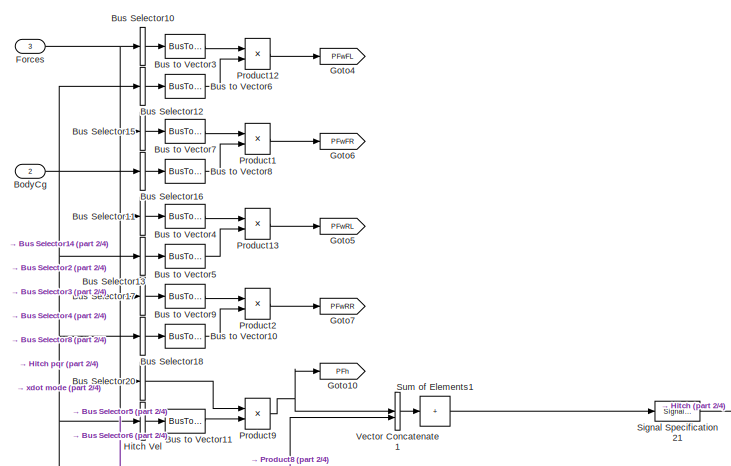
[diagram: Vehicle Body 3DOF Dual Track Ego/Signal Routing/Signal Routing Dual/Power - part 1/4, top left region]
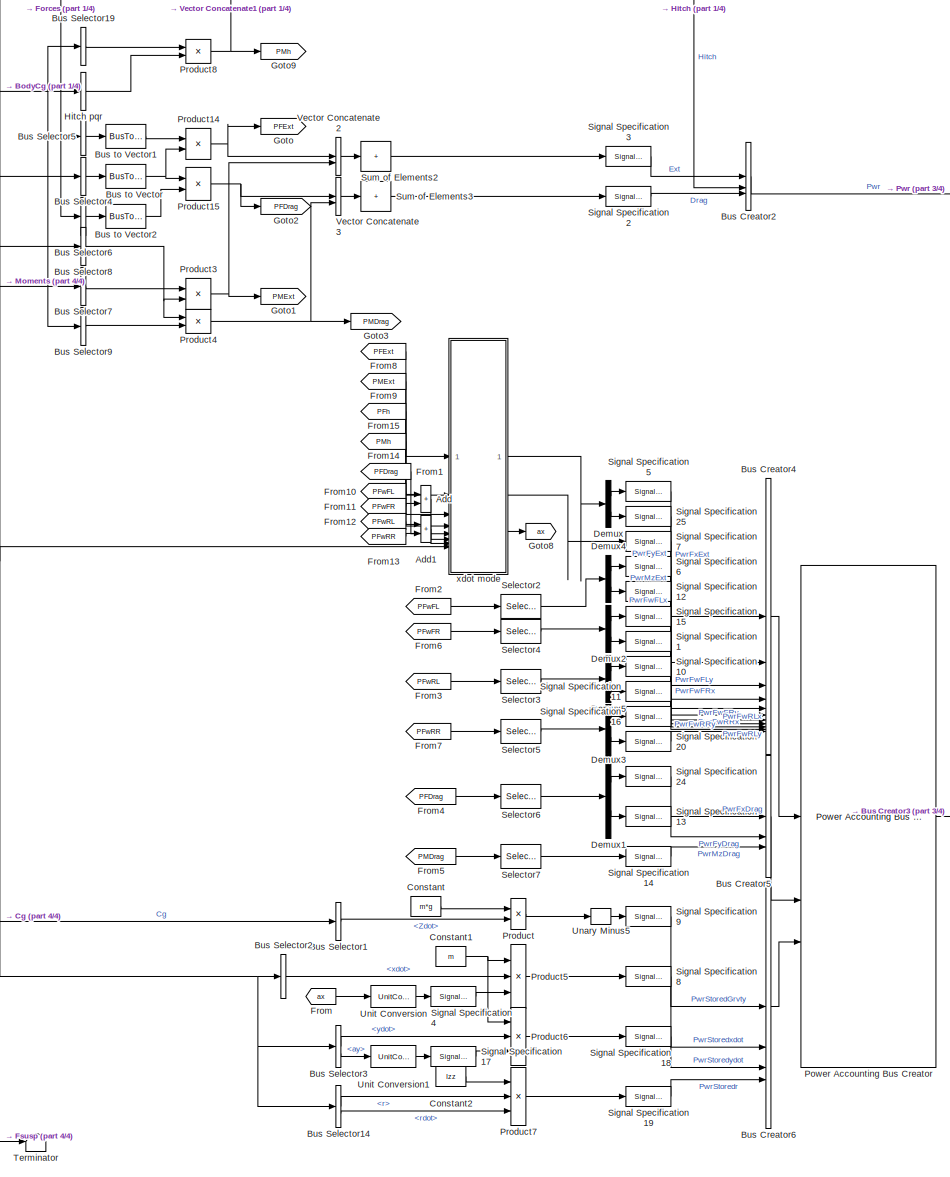
[diagram: Vehicle Body 3DOF Dual Track Ego/Signal Routing/Signal Routing Dual/Power - part 2/4, full width, middle band]
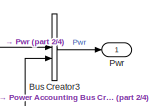
[diagram: Vehicle Body 3DOF Dual Track Ego/Signal Routing/Signal Routing Dual/Power - part 3/4, middle right region]
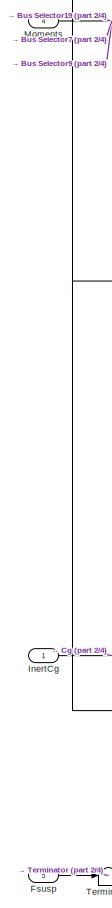
[diagram: Vehicle Body 3DOF Dual Track Ego/Signal Routing/Signal Routing Dual/Power - part 4/4, bottom left region]
BLOCK [SubSystem] Vehicle Body 3DOF Dual Track Ego/Signal Routing/Signal Routing Dual/Power
  VariantControl = 4
BLOCK [Sum] Vehicle Body 3DOF Dual Track Ego/Signal Routing/Signal Routing Dual/Power/Add
  IconShape = rectangular
BLOCK [Sum] Vehicle Body 3DOF Dual Track Ego/Signal Routing/Signal Routing Dual/Power/Add1
  IconShape = rectangular
BLOCK [Inport] Vehicle Body 3DOF Dual Track Ego/Signal Routing/Signal Routing Dual/Power/BodyCg
  Port = 2
BLOCK [BusCreator] Vehicle Body 3DOF Dual Track Ego/Signal Routing/Signal Routing Dual/Power/Bus Creator2
  DisplayOption = bar
  InheritFromInputs = on
  Inputs = 3
BLOCK [BusCreator] Vehicle Body 3DOF Dual Track Ego/Signal Routing/Signal Routing Dual/Power/Bus Creator3
  DisplayOption = bar
  InheritFromInputs = on
  Inputs = 2
BLOCK [BusCreator] Vehicle Body 3DOF Dual Track Ego/Signal Routing/Signal Routing Dual/Power/Bus Creator4
  DisplayOption = bar
  InheritFromInputs = on
  Inputs = 11
BLOCK [BusCreator] Vehicle Body 3DOF Dual Track Ego/Signal Routing/Signal Routing Dual/Power/Bus Creator5
  DisplayOption = bar
  InheritFromInputs = on
  Inputs = 3
BLOCK [BusCreator] Vehicle Body 3DOF Dual Track Ego/Signal Routing/Signal Routing Dual/Power/Bus Creator6
  DisplayOption = bar
  InheritFromInputs = on
  Inputs = 4
BLOCK [BusSelector] Vehicle Body 3DOF Dual Track Ego/Signal Routing/Signal Routing Dual/Power/Bus Selector1
  OutputSignals = Cg.Vel.Zdot
BLOCK [BusSelector] Vehicle Body 3DOF Dual Track Ego/Signal Routing/Signal Routing Dual/Power/Bus Selector10
  OutputAsBus = on
  OutputSignals = FrntAxl.Lft.Fx,FrntAxl.Lft.Fy,FrntAxl.Lft.Fz
BLOCK [BusSelector] Vehicle Body 3DOF Dual Track Ego/Signal Routing/Signal Routing Dual/Power/Bus Selector11
  OutputAsBus = on
  OutputSignals = RearAxl.Lft.Fx,RearAxl.Lft.Fy,RearAxl.Lft.Fz
BLOCK [BusSelector] Vehicle Body 3DOF Dual Track Ego/Signal Routing/Signal Routing Dual/Power/Bus Selector12
  OutputAsBus = on
  OutputSignals = FrntAxl.Lft.Vel.xdot,FrntAxl.Lft.Vel.ydot,FrntAxl.Lft.Vel.zdot
BLOCK [BusSelector] Vehicle Body 3DOF Dual Track Ego/Signal Routing/Signal Routing Dual/Power/Bus Selector13
  OutputAsBus = on
  OutputSignals = RearAxl.Lft.Vel.xdot,RearAxl.Lft.Vel.ydot,RearAxl.Lft.Vel.zdot
BLOCK [BusSelector] Vehicle Body 3DOF Dual Track Ego/Signal Routing/Signal Routing Dual/Power/Bus Selector14
  OutputSignals = Cg.AngVel.r,Cg.AngAcc.rdot
BLOCK [BusSelector] Vehicle Body 3DOF Dual Track Ego/Signal Routing/Signal Routing Dual/Power/Bus Selector15
  OutputAsBus = on
  OutputSignals = FrntAxl.Rght.Fx,FrntAxl.Rght.Fy,FrntAxl.Rght.Fz
BLOCK [BusSelector] Vehicle Body 3DOF Dual Track Ego/Signal Routing/Signal Routing Dual/Power/Bus Selector16
  OutputAsBus = on
  OutputSignals = FrntAxl.Rght.Vel.xdot,FrntAxl.Rght.Vel.ydot,FrntAxl.Rght.Vel.zdot
BLOCK [BusSelector] Vehicle Body 3DOF Dual Track Ego/Signal Routing/Signal Routing Dual/Power/Bus Selector17
  OutputAsBus = on
  OutputSignals = RearAxl.Rght.Fx,RearAxl.Rght.Fy,RearAxl.Rght.Fz
BLOCK [BusSelector] Vehicle Body 3DOF Dual Track Ego/Signal Routing/Signal Routing Dual/Power/Bus Selector18
  OutputAsBus = on
  OutputSignals = RearAxl.Rght.Vel.xdot,RearAxl.Rght.Vel.ydot,RearAxl.Rght.Vel.zdot
BLOCK [BusSelector] Vehicle Body 3DOF Dual Track Ego/Signal Routing/Signal Routing Dual/Power/Bus Selector19
  OutputAsBus = on
  OutputSignals = Hitch.Mx,Hitch.My,Hitch.Mz
BLOCK [BusSelector] Vehicle Body 3DOF Dual Track Ego/Signal Routing/Signal Routing Dual/Power/Bus Selector2
  OutputSignals = Cg.Vel.xdot
BLOCK [BusSelector] Vehicle Body 3DOF Dual Track Ego/Signal Routing/Signal Routing Dual/Power/Bus Selector20
  OutputAsBus = on
  OutputSignals = Hitch.Fx,Hitch.Fy,Hitch.Fz
BLOCK [BusSelector] Vehicle Body 3DOF Dual Track Ego/Signal Routing/Signal Routing Dual/Power/Bus Selector3
  OutputSignals = Cg.Vel.ydot,Cg.Acc.ay
BLOCK [BusSelector] Vehicle Body 3DOF Dual Track Ego/Signal Routing/Signal Routing Dual/Power/Bus Selector4
  OutputAsBus = on
  OutputSignals = Cg.Vel.xdot,Cg.Vel.ydot,Cg.Vel.zdot
BLOCK [BusSelector] Vehicle Body 3DOF Dual Track Ego/Signal Routing/Signal Routing Dual/Power/Bus Selector5
  OutputAsBus = on
  OutputSignals = Ext.Fx,Ext.Fy,Ext.Fz
BLOCK [BusSelector] Vehicle Body 3DOF Dual Track Ego/Signal Routing/Signal Routing Dual/Power/Bus Selector6
  OutputAsBus = on
  OutputSignals = Drag.Fx,Drag.Fy,Drag.Fz
BLOCK [BusSelector] Vehicle Body 3DOF Dual Track Ego/Signal Routing/Signal Routing Dual/Power/Bus Selector7
  OutputAsBus = on
  OutputSignals = Ext.Mx,Ext.My,Ext.Mz
BLOCK [BusSelector] Vehicle Body 3DOF Dual Track Ego/Signal Routing/Signal Routing Dual/Power/Bus Selector8
  OutputAsBus = on
  OutputSignals = Cg.AngVel.p,Cg.AngVel.q,Cg.AngVel.r
BLOCK [BusSelector] Vehicle Body 3DOF Dual Track Ego/Signal Routing/Signal Routing Dual/Power/Bus Selector9
  OutputAsBus = on
  OutputSignals = Drag.Mx,Drag.My,Drag.Mz
BLOCK [BusToVector] Vehicle Body 3DOF Dual Track Ego/Signal Routing/Signal Routing Dual/Power/Bus to Vector
BLOCK [BusToVector] Vehicle Body 3DOF Dual Track Ego/Signal Routing/Signal Routing Dual/Power/Bus to Vector1
BLOCK [BusToVector] Vehicle Body 3DOF Dual Track Ego/Signal Routing/Signal Routing Dual/Power/Bus to Vector10
BLOCK [BusToVector] Vehicle Body 3DOF Dual Track Ego/Signal Routing/Signal Routing Dual/Power/Bus to Vector11
BLOCK [BusToVector] Vehicle Body 3DOF Dual Track Ego/Signal Routing/Signal Routing Dual/Power/Bus to Vector2
BLOCK [BusToVector] Vehicle Body 3DOF Dual Track Ego/Signal Routing/Signal Routing Dual/Power/Bus to Vector3
BLOCK [BusToVector] Vehicle Body 3DOF Dual Track Ego/Signal Routing/Signal Routing Dual/Power/Bus to Vector4
BLOCK [BusToVector] Vehicle Body 3DOF Dual Track Ego/Signal Routing/Signal Routing Dual/Power/Bus to Vector5
BLOCK [BusToVector] Vehicle Body 3DOF Dual Track Ego/Signal Routing/Signal Routing Dual/Power/Bus to Vector6
BLOCK [BusToVector] Vehicle Body 3DOF Dual Track Ego/Signal Routing/Signal Routing Dual/Power/Bus to Vector7
BLOCK [BusToVector] Vehicle Body 3DOF Dual Track Ego/Signal Routing/Signal Routing Dual/Power/Bus to Vector8
BLOCK [BusToVector] Vehicle Body 3DOF Dual Track Ego/Signal Routing/Signal Routing Dual/Power/Bus to Vector9
BLOCK [Constant] Vehicle Body 3DOF Dual Track Ego/Signal Routing/Signal Routing Dual/Power/Constant
  Value = m*g
BLOCK [Constant] Vehicle Body 3DOF Dual Track Ego/Signal Routing/Signal Routing Dual/Power/Constant1
  Value = m
BLOCK [Constant] Vehicle Body 3DOF Dual Track Ego/Signal Routing/Signal Routing Dual/Power/Constant2
  Value = Izz
BLOCK [Demux] Vehicle Body 3DOF Dual Track Ego/Signal Routing/Signal Routing Dual/Power/Demux
  Outputs = 2
BLOCK [Demux] Vehicle Body 3DOF Dual Track Ego/Signal Routing/Signal Routing Dual/Power/Demux1
  Outputs = 2
BLOCK [Demux] Vehicle Body 3DOF Dual Track Ego/Signal Routing/Signal Routing Dual/Power/Demux2
  Outputs = 2
BLOCK [Demux] Vehicle Body 3DOF Dual Track Ego/Signal Routing/Signal Routing Dual/Power/Demux3
  Outputs = 2
BLOCK [Demux] Vehicle Body 3DOF Dual Track Ego/Signal Routing/Signal Routing Dual/Power/Demux4
  Outputs = 2
BLOCK [Demux] Vehicle Body 3DOF Dual Track Ego/Signal Routing/Signal Routing Dual/Power/Demux5
  Outputs = 2
BLOCK [Inport] Vehicle Body 3DOF Dual Track Ego/Signal Routing/Signal Routing Dual/Power/Forces
  Port = 3
BLOCK [From] Vehicle Body 3DOF Dual Track Ego/Signal Routing/Signal Routing Dual/Power/From
  GotoTag = ax
BLOCK [From] Vehicle Body 3DOF Dual Track Ego/Signal Routing/Signal Routing Dual/Power/From1
  GotoTag = PFDrag
BLOCK [From] Vehicle Body 3DOF Dual Track Ego/Signal Routing/Signal Routing Dual/Power/From10
  GotoTag = PFwFL
BLOCK [From] Vehicle Body 3DOF Dual Track Ego/Signal Routing/Signal Routing Dual/Power/From11
  GotoTag = PFwFR
BLOCK [From] Vehicle Body 3DOF Dual Track Ego/Signal Routing/Signal Routing Dual/Power/From12
  GotoTag = PFwRL
BLOCK [From] Vehicle Body 3DOF Dual Track Ego/Signal Routing/Signal Routing Dual/Power/From13
  GotoTag = PFwRR
BLOCK [From] Vehicle Body 3DOF Dual Track Ego/Signal Routing/Signal Routing Dual/Power/From14
  GotoTag = PMh
BLOCK [From] Vehicle Body 3DOF Dual Track Ego/Signal Routing/Signal Routing Dual/Power/From15
  GotoTag = PFh
BLOCK [From] Vehicle Body 3DOF Dual Track Ego/Signal Routing/Signal Routing Dual/Power/From2
  GotoTag = PFwFL
BLOCK [From] Vehicle Body 3DOF Dual Track Ego/Signal Routing/Signal Routing Dual/Power/From3
  GotoTag = PFwRL
BLOCK [From] Vehicle Body 3DOF Dual Track Ego/Signal Routing/Signal Routing Dual/Power/From4
  GotoTag = PFDrag
BLOCK [From] Vehicle Body 3DOF Dual Track Ego/Signal Routing/Signal Routing Dual/Power/From5
  GotoTag = PMDrag
BLOCK [From] Vehicle Body 3DOF Dual Track Ego/Signal Routing/Signal Routing Dual/Power/From6
  GotoTag = PFwFR
BLOCK [From] Vehicle Body 3DOF Dual Track Ego/Signal Routing/Signal Routing Dual/Power/From7
  GotoTag = PFwRR
BLOCK [From] Vehicle Body 3DOF Dual Track Ego/Signal Routing/Signal Routing Dual/Power/From8
  GotoTag = PFExt
BLOCK [From] Vehicle Body 3DOF Dual Track Ego/Signal Routing/Signal Routing Dual/Power/From9
  GotoTag = PMExt
BLOCK [Inport] Vehicle Body 3DOF Dual Track Ego/Signal Routing/Signal Routing Dual/Power/Fsusp
  Port = 5
BLOCK [Goto] Vehicle Body 3DOF Dual Track Ego/Signal Routing/Signal Routing Dual/Power/Goto
  GotoTag = PFExt
BLOCK [Goto] Vehicle Body 3DOF Dual Track Ego/Signal Routing/Signal Routing Dual/Power/Goto1
  GotoTag = PMExt
BLOCK [Goto] Vehicle Body 3DOF Dual Track Ego/Signal Routing/Signal Routing Dual/Power/Goto10
  GotoTag = PFh
BLOCK [Goto] Vehicle Body 3DOF Dual Track Ego/Signal Routing/Signal Routing Dual/Power/Goto2
  GotoTag = PFDrag
BLOCK [Goto] Vehicle Body 3DOF Dual Track Ego/Signal Routing/Signal Routing Dual/Power/Goto3
  GotoTag = PMDrag
BLOCK [Goto] Vehicle Body 3DOF Dual Track Ego/Signal Routing/Signal Routing Dual/Power/Goto4
  GotoTag = PFwFL
BLOCK [Goto] Vehicle Body 3DOF Dual Track Ego/Signal Routing/Signal Routing Dual/Power/Goto5
  GotoTag = PFwRL
BLOCK [Goto] Vehicle Body 3DOF Dual Track Ego/Signal Routing/Signal Routing Dual/Power/Goto6
  GotoTag = PFwFR
BLOCK [Goto] Vehicle Body 3DOF Dual Track Ego/Signal Routing/Signal Routing Dual/Power/Goto7
  GotoTag = PFwRR
BLOCK [Goto] Vehicle Body 3DOF Dual Track Ego/Signal Routing/Signal Routing Dual/Power/Goto8
  GotoTag = ax
BLOCK [Goto] Vehicle Body 3DOF Dual Track Ego/Signal Routing/Signal Routing Dual/Power/Goto9
  GotoTag = PMh
BLOCK [BusSelector] Vehicle Body 3DOF Dual Track Ego/Signal Routing/Signal Routing Dual/Power/Hitch Vel
  OutputAsBus = on
  OutputSignals = Hitch.Vel.xdot,Hitch.Vel.ydot,Hitch.Vel.zdot
BLOCK [BusSelector] Vehicle Body 3DOF Dual Track Ego/Signal Routing/Signal Routing Dual/Power/Hitch pqr
  OutputAsBus = on
  OutputSignals = Cg.AngVel.p,Cg.AngVel.q,Cg.AngVel.r
BLOCK [Inport] Vehicle Body 3DOF Dual Track Ego/Signal Routing/Signal Routing Dual/Power/InertCg
BLOCK [Inport] Vehicle Body 3DOF Dual Track Ego/Signal Routing/Signal Routing Dual/Power/Moments
  Port = 4
BLOCK [Reference] Vehicle Body 3DOF Dual Track Ego/Signal Routing/Signal Routing Dual/Power/Power Accounting Bus Creator  REF=autolibpowerinfoutils/Power Accounting Bus Creator
  SourceBlock = autolibpowerinfoutils/Power Accounting Bus Creator
  SourceType = Power Accounting Bus Creator
BLOCK [Product] Vehicle Body 3DOF Dual Track Ego/Signal Routing/Signal Routing Dual/Power/Product
BLOCK [Product] Vehicle Body 3DOF Dual Track Ego/Signal Routing/Signal Routing Dual/Power/Product1
  NameLocation = top
BLOCK [Product] Vehicle Body 3DOF Dual Track Ego/Signal Routing/Signal Routing Dual/Power/Product12
  NameLocation = top
BLOCK [Product] Vehicle Body 3DOF Dual Track Ego/Signal Routing/Signal Routing Dual/Power/Product13
  NameLocation = top
BLOCK [Product] Vehicle Body 3DOF Dual Track Ego/Signal Routing/Signal Routing Dual/Power/Product14
  NameLocation = top
BLOCK [Product] Vehicle Body 3DOF Dual Track Ego/Signal Routing/Signal Routing Dual/Power/Product15
  NameLocation = top
BLOCK [Product] Vehicle Body 3DOF Dual Track Ego/Signal Routing/Signal Routing Dual/Power/Product2
  NameLocation = top
BLOCK [Product] Vehicle Body 3DOF Dual Track Ego/Signal Routing/Signal Routing Dual/Power/Product3
  NameLocation = top
BLOCK [Product] Vehicle Body 3DOF Dual Track Ego/Signal Routing/Signal Routing Dual/Power/Product4
  NameLocation = top
BLOCK [Product] Vehicle Body 3DOF Dual Track Ego/Signal Routing/Signal Routing Dual/Power/Product5
  Inputs = 3
BLOCK [Product] Vehicle Body 3DOF Dual Track Ego/Signal Routing/Signal Routing Dual/Power/Product6
  Inputs = 3
BLOCK [Product] Vehicle Body 3DOF Dual Track Ego/Signal Routing/Signal Routing Dual/Power/Product7
  Inputs = 3
BLOCK [Product] Vehicle Body 3DOF Dual Track Ego/Signal Routing/Signal Routing Dual/Power/Product8
  NameLocation = top
BLOCK [Product] Vehicle Body 3DOF Dual Track Ego/Signal Routing/Signal Routing Dual/Power/Product9
  NameLocation = top
BLOCK [Outport] Vehicle Body 3DOF Dual Track Ego/Signal Routing/Signal Routing Dual/Power/Pwr
  VectorParamsAs1DForOutWhenUnconnected = off
BLOCK [Selector] Vehicle Body 3DOF Dual Track Ego/Signal Routing/Signal Routing Dual/Power/Selector2
  IndexOptions = Index vector (dialog)
  Indices = [1 2]
  InputPortWidth = 3
  OutputSizes = 1
BLOCK [Selector] Vehicle Body 3DOF Dual Track Ego/Signal Routing/Signal Routing Dual/Power/Selector3
  IndexOptions = Index vector (dialog)
  Indices = [1 2]
  InputPortWidth = 3
  OutputSizes = 1
BLOCK [Selector] Vehicle Body 3DOF Dual Track Ego/Signal Routing/Signal Routing Dual/Power/Selector4
  IndexOptions = Index vector (dialog)
  Indices = [1 2]
  InputPortWidth = 3
  OutputSizes = 1
BLOCK [Selector] Vehicle Body 3DOF Dual Track Ego/Signal Routing/Signal Routing Dual/Power/Selector5
  IndexOptions = Index vector (dialog)
  Indices = [1 2]
  InputPortWidth = 3
  OutputSizes = 1
BLOCK [Selector] Vehicle Body 3DOF Dual Track Ego/Signal Routing/Signal Routing Dual/Power/Selector6
  IndexOptions = Index vector (dialog)
  Indices = [1 2]
  InputPortWidth = 3
  OutputSizes = 1
BLOCK [Selector] Vehicle Body 3DOF Dual Track Ego/Signal Routing/Signal Routing Dual/Power/Selector7
  IndexOptions = Index vector (dialog)
  Indices = [3]
  InputPortWidth = 3
  OutputSizes = 1
BLOCK [SignalSpecification] Vehicle Body 3DOF Dual Track Ego/Signal Routing/Signal Routing Dual/Power/Signal Specification1
  Unit = W
BLOCK [SignalSpecification] Vehicle Body 3DOF Dual Track Ego/Signal Routing/Signal Routing Dual/Power/Signal Specification10
  Unit = W
BLOCK [SignalSpecification] Vehicle Body 3DOF Dual Track Ego/Signal Routing/Signal Routing Dual/Power/Signal Specification11
  Unit = W
BLOCK [SignalSpecification] Vehicle Body 3DOF Dual Track Ego/Signal Routing/Signal Routing Dual/Power/Signal Specification12
  Unit = W
BLOCK [SignalSpecification] Vehicle Body 3DOF Dual Track Ego/Signal Routing/Signal Routing Dual/Power/Signal Specification13
  Unit = W
BLOCK [SignalSpecification] Vehicle Body 3DOF Dual Track Ego/Signal Routing/Signal Routing Dual/Power/Signal Specification14
  Unit = W
BLOCK [SignalSpecification] Vehicle Body 3DOF Dual Track Ego/Signal Routing/Signal Routing Dual/Power/Signal Specification15
  Unit = W
BLOCK [SignalSpecification] Vehicle Body 3DOF Dual Track Ego/Signal Routing/Signal Routing Dual/Power/Signal Specification16
  Unit = W
BLOCK [SignalSpecification] Vehicle Body 3DOF Dual Track Ego/Signal Routing/Signal Routing Dual/Power/Signal Specification17
  Unit = m/s^2
BLOCK [SignalSpecification] Vehicle Body 3DOF Dual Track Ego/Signal Routing/Signal Routing Dual/Power/Signal Specification18
  Unit = W
BLOCK [SignalSpecification] Vehicle Body 3DOF Dual Track Ego/Signal Routing/Signal Routing Dual/Power/Signal Specification19
  Unit = W
BLOCK [SignalSpecification] Vehicle Body 3DOF Dual Track Ego/Signal Routing/Signal Routing Dual/Power/Signal Specification2
  Unit = W
BLOCK [SignalSpecification] Vehicle Body 3DOF Dual Track Ego/Signal Routing/Signal Routing Dual/Power/Signal Specification20
  Unit = W
BLOCK [SignalSpecification] Vehicle Body 3DOF Dual Track Ego/Signal Routing/Signal Routing Dual/Power/Signal Specification21
  Unit = W
BLOCK [SignalSpecification] Vehicle Body 3DOF Dual Track Ego/Signal Routing/Signal Routing Dual/Power/Signal Specification24
  Unit = W
BLOCK [SignalSpecification] Vehicle Body 3DOF Dual Track Ego/Signal Routing/Signal Routing Dual/Power/Signal Specification25
  Unit = W
BLOCK [SignalSpecification] Vehicle Body 3DOF Dual Track Ego/Signal Routing/Signal Routing Dual/Power/Signal Specification3
  Unit = W
BLOCK [SignalSpecification] Vehicle Body 3DOF Dual Track Ego/Signal Routing/Signal Routing Dual/Power/Signal Specification4
  Unit = m/s^2
BLOCK [SignalSpecification] Vehicle Body 3DOF Dual Track Ego/Signal Routing/Signal Routing Dual/Power/Signal Specification5
  Unit = W
BLOCK [SignalSpecification] Vehicle Body 3DOF Dual Track Ego/Signal Routing/Signal Routing Dual/Power/Signal Specification6
  Unit = W
BLOCK [SignalSpecification] Vehicle Body 3DOF Dual Track Ego/Signal Routing/Signal Routing Dual/Power/Signal Specification7
  Unit = W
BLOCK [SignalSpecification] Vehicle Body 3DOF Dual Track Ego/Signal Routing/Signal Routing Dual/Power/Signal Specification8
  Unit = W
BLOCK [SignalSpecification] Vehicle Body 3DOF Dual Track Ego/Signal Routing/Signal Routing Dual/Power/Signal Specification9
  Unit = W
BLOCK [Sum] Vehicle Body 3DOF Dual Track Ego/Signal Routing/Signal Routing Dual/Power/Sum of Elements1
  IconShape = rectangular
  Inputs = +
BLOCK [Sum] Vehicle Body 3DOF Dual Track Ego/Signal Routing/Signal Routing Dual/Power/Sum of Elements2
  IconShape = rectangular
  Inputs = +
BLOCK [Sum] Vehicle Body 3DOF Dual Track Ego/Signal Routing/Signal Routing Dual/Power/Sum of Elements3
  IconShape = rectangular
  Inputs = +
BLOCK [Terminator] Vehicle Body 3DOF Dual Track Ego/Signal Routing/Signal Routing Dual/Power/Terminator
BLOCK [UnaryMinus] Vehicle Body 3DOF Dual Track Ego/Signal Routing/Signal Routing Dual/Power/Unary Minus5
BLOCK [UnitConversion] Vehicle Body 3DOF Dual Track Ego/Signal Routing/Signal Routing Dual/Power/Unit Conversion
BLOCK [UnitConversion] Vehicle Body 3DOF Dual Track Ego/Signal Routing/Signal Routing Dual/Power/Unit Conversion1
BLOCK [Concatenate] Vehicle Body 3DOF Dual Track Ego/Signal Routing/Signal Routing Dual/Power/Vector Concatenate1
BLOCK [Concatenate] Vehicle Body 3DOF Dual Track Ego/Signal Routing/Signal Routing Dual/Power/Vector Concatenate2
BLOCK [Concatenate] Vehicle Body 3DOF Dual Track Ego/Signal Routing/Signal Routing Dual/Power/Vector Concatenate3
BLOCK [SubSystem] Vehicle Body 3DOF Dual Track Ego/Signal Routing/Signal Routing Dual/Power/xdot mode
  LabelModeActiveChoice = 1
  NameLocation = top
  Variant = on
  VariantControlMode = label
BLOCK [Inport] Vehicle Body 3DOF Dual Track Ego/Signal Routing/Signal Routing Dual/Power/xdot mode/BodyFrm
  Port = 8
BLOCK [SubSystem] Vehicle Body 3DOF Dual Track Ego/Signal Routing/Signal Routing Dual/Power/xdot mode/FxIn
  VariantControl = 1
BLOCK [Inport] Vehicle Body 3DOF Dual Track Ego/Signal Routing/Signal Routing Dual/Power/xdot mode/FxIn/BodyFrm
  Port = 8
BLOCK [BusSelector] Vehicle Body 3DOF Dual Track Ego/Signal Routing/Signal Routing Dual/Power/xdot mode/FxIn/Bus Selector2
  OutputSignals = Cg.Acc.ax
BLOCK [Outport] Vehicle Body 3DOF Dual Track Ego/Signal Routing/Signal Routing Dual/Power/xdot mode/FxIn/PF
  VectorParamsAs1DForOutWhenUnconnected = off
BLOCK [Inport] Vehicle Body 3DOF Dual Track Ego/Signal Routing/Signal Routing Dual/Power/xdot mode/FxIn/PFDrag
  Port = 5
BLOCK [Inport] Vehicle Body 3DOF Dual Track Ego/Signal Routing/Signal Routing Dual/Power/xdot mode/FxIn/PFExt
BLOCK [Inport] Vehicle Body 3DOF Dual Track Ego/Signal Routing/Signal Routing Dual/Power/xdot mode/FxIn/PFh
  Port = 3
BLOCK [Inport] Vehicle Body 3DOF Dual Track Ego/Signal Routing/Signal Routing Dual/Power/xdot mode/FxIn/PFwF
  Port = 6
BLOCK [Inport] Vehicle Body 3DOF Dual Track Ego/Signal Routing/Signal Routing Dual/Power/xdot mode/FxIn/PFwR
  Port = 7
BLOCK [Outport] Vehicle Body 3DOF Dual Track Ego/Signal Routing/Signal Routing Dual/Power/xdot mode/FxIn/PM
  Port = 2
  VectorParamsAs1DForOutWhenUnconnected = off
BLOCK [Inport] Vehicle Body 3DOF Dual Track Ego/Signal Routing/Signal Routing Dual/Power/xdot mode/FxIn/PMExt
  Port = 2
BLOCK [Inport] Vehicle Body 3DOF Dual Track Ego/Signal Routing/Signal Routing Dual/Power/xdot mode/FxIn/PMh
  Port = 4
BLOCK [Selector] Vehicle Body 3DOF Dual Track Ego/Signal Routing/Signal Routing Dual/Power/xdot mode/FxIn/Selector1
  IndexOptions = Index vector (dialog)
  Indices = [1 2]
  InputPortWidth = 3
  OutputSizes = 1
BLOCK [Selector] Vehicle Body 3DOF Dual Track Ego/Signal Routing/Signal Routing Dual/Power/xdot mode/FxIn/Selector2
  IndexOptions = Index vector (dialog)
  Indices = [3]
  InputPortWidth = 3
  OutputSizes = 1
BLOCK [Selector] Vehicle Body 3DOF Dual Track Ego/Signal Routing/Signal Routing Dual/Power/xdot mode/FxIn/Selector3
  IndexOptions = Index vector (dialog)
  Indices = [3]
  InputPortWidth = 3
  OutputSizes = 1
BLOCK [Selector] Vehicle Body 3DOF Dual Track Ego/Signal Routing/Signal Routing Dual/Power/xdot mode/FxIn/Selector4
  IndexOptions = Index vector (dialog)
  Indices = [1 2]
  InputPortWidth = 3
  OutputSizes = 1
BLOCK [Sum] Vehicle Body 3DOF Dual Track Ego/Signal Routing/Signal Routing Dual/Power/xdot mode/FxIn/Sum
  Inputs = |++
BLOCK [Sum] Vehicle Body 3DOF Dual Track Ego/Signal Routing/Signal Routing Dual/Power/xdot mode/FxIn/Sum1
  Inputs = |++
BLOCK [Terminator] Vehicle Body 3DOF Dual Track Ego/Signal Routing/Signal Routing Dual/Power/xdot mode/FxIn/Terminator
BLOCK [Terminator] Vehicle Body 3DOF Dual Track Ego/Signal Routing/Signal Routing Dual/Power/xdot mode/FxIn/Terminator2
BLOCK [Terminator] Vehicle Body 3DOF Dual Track Ego/Signal Routing/Signal Routing Dual/Power/xdot mode/FxIn/Terminator3
BLOCK [Outport] Vehicle Body 3DOF Dual Track Ego/Signal Routing/Signal Routing Dual/Power/xdot mode/FxIn/ax
  Port = 3
  VectorParamsAs1DForOutWhenUnconnected = off
BLOCK [Outport] Vehicle Body 3DOF Dual Track Ego/Signal Routing/Signal Routing Dual/Power/xdot mode/PF
  VectorParamsAs1DForOutWhenUnconnected = off
BLOCK [Inport] Vehicle Body 3DOF Dual Track Ego/Signal Routing/Signal Routing Dual/Power/xdot mode/PFDrag
  Port = 5
BLOCK [Inport] Vehicle Body 3DOF Dual Track Ego/Signal Routing/Signal Routing Dual/Power/xdot mode/PFExt
BLOCK [Inport] Vehicle Body 3DOF Dual Track Ego/Signal Routing/Signal Routing Dual/Power/xdot mode/PFh
  Port = 3
BLOCK [Inport] Vehicle Body 3DOF Dual Track Ego/Signal Routing/Signal Routing Dual/Power/xdot mode/PFwF
  Port = 6
BLOCK [Inport] Vehicle Body 3DOF Dual Track Ego/Signal Routing/Signal Routing Dual/Power/xdot mode/PFwR
  Port = 7
BLOCK [Outport] Vehicle Body 3DOF Dual Track Ego/Signal Routing/Signal Routing Dual/Power/xdot mode/PM
  Port = 2
  VectorParamsAs1DForOutWhenUnconnected = off
BLOCK [Inport] Vehicle Body 3DOF Dual Track Ego/Signal Routing/Signal Routing Dual/Power/xdot mode/PMExt
  Port = 2
BLOCK [Inport] Vehicle Body 3DOF Dual Track Ego/Signal Routing/Signal Routing Dual/Power/xdot mode/PMh
  Port = 4
BLOCK [Outport] Vehicle Body 3DOF Dual Track Ego/Signal Routing/Signal Routing Dual/Power/xdot mode/ax
  Port = 3
  VectorParamsAs1DForOutWhenUnconnected = off
BLOCK [SubSystem] Vehicle Body 3DOF Dual Track Ego/Signal Routing/Signal Routing Dual/Power/xdot mode/xdotin
  VariantControl = 0
BLOCK [Sum] Vehicle Body 3DOF Dual Track Ego/Signal Routing/Signal Routing Dual/Power/xdot mode/xdotin/Add
  IconShape = rectangular
  Inputs = +++++
BLOCK [Inport] Vehicle Body 3DOF Dual Track Ego/Signal Routing/Signal Routing Dual/Power/xdot mode/xdotin/BodyFrm
  Port = 8
BLOCK [Ground] Vehicle Body 3DOF Dual Track Ego/Signal Routing/Signal Routing Dual/Power/xdot mode/xdotin/Ground
BLOCK [Ground] Vehicle Body 3DOF Dual Track Ego/Signal Routing/Signal Routing Dual/Power/xdot mode/xdotin/Ground1
BLOCK [Ground] Vehicle Body 3DOF Dual Track Ego/Signal Routing/Signal Routing Dual/Power/xdot mode/xdotin/Ground2
BLOCK [Ground] Vehicle Body 3DOF Dual Track Ego/Signal Routing/Signal Routing Dual/Power/xdot mode/xdotin/Ground3
BLOCK [Ground] Vehicle Body 3DOF Dual Track Ego/Signal Routing/Signal Routing Dual/Power/xdot mode/xdotin/Ground4
BLOCK [Ground] Vehicle Body 3DOF Dual Track Ego/Signal Routing/Signal Routing Dual/Power/xdot mode/xdotin/Ground5
BLOCK [Mux] Vehicle Body 3DOF Dual Track Ego/Signal Routing/Signal Routing Dual/Power/xdot mode/xdotin/Mux
  DisplayOption = bar
  Inputs = 2
BLOCK [Mux] Vehicle Body 3DOF Dual Track Ego/Signal Routing/Signal Routing Dual/Power/xdot mode/xdotin/Mux1
  DisplayOption = bar
  Inputs = 2
BLOCK [Mux] Vehicle Body 3DOF Dual Track Ego/Signal Routing/Signal Routing Dual/Power/xdot mode/xdotin/Mux2
  DisplayOption = bar
  Inputs = 2
BLOCK [Mux] Vehicle Body 3DOF Dual Track Ego/Signal Routing/Signal Routing Dual/Power/xdot mode/xdotin/Mux3
  DisplayOption = bar
  Inputs = 2
BLOCK [Mux] Vehicle Body 3DOF Dual Track Ego/Signal Routing/Signal Routing Dual/Power/xdot mode/xdotin/Mux4
  DisplayOption = bar
  Inputs = 2
BLOCK [Outport] Vehicle Body 3DOF Dual Track Ego/Signal Routing/Signal Routing Dual/Power/xdot mode/xdotin/PF
  VectorParamsAs1DForOutWhenUnconnected = off
BLOCK [Inport] Vehicle Body 3DOF Dual Track Ego/Signal Routing/Signal Routing Dual/Power/xdot mode/xdotin/PFDrag
  Port = 5
BLOCK [Inport] Vehicle Body 3DOF Dual Track Ego/Signal Routing/Signal Routing Dual/Power/xdot mode/xdotin/PFExt
BLOCK [Inport] Vehicle Body 3DOF Dual Track Ego/Signal Routing/Signal Routing Dual/Power/xdot mode/xdotin/PFh
  Port = 3
BLOCK [Inport] Vehicle Body 3DOF Dual Track Ego/Signal Routing/Signal Routing Dual/Power/xdot mode/xdotin/PFwF
  Port = 6
BLOCK [Inport] Vehicle Body 3DOF Dual Track Ego/Signal Routing/Signal Routing Dual/Power/xdot mode/xdotin/PFwR
  Port = 7
BLOCK [Outport] Vehicle Body 3DOF Dual Track Ego/Signal Routing/Signal Routing Dual/Power/xdot mode/xdotin/PM
  Port = 2
  VectorParamsAs1DForOutWhenUnconnected = off
BLOCK [Inport] Vehicle Body 3DOF Dual Track Ego/Signal Routing/Signal Routing Dual/Power/xdot mode/xdotin/PMExt
  Port = 2
BLOCK [Inport] Vehicle Body 3DOF Dual Track Ego/Signal Routing/Signal Routing Dual/Power/xdot mode/xdotin/PMh
  Port = 4
BLOCK [Selector] Vehicle Body 3DOF Dual Track Ego/Signal Routing/Signal Routing Dual/Power/xdot mode/xdotin/Selector1
  IndexOptions = Index vector (dialog)
  Indices = [1]
  InputPortWidth = 3
  OutputSizes = 1
BLOCK [Selector] Vehicle Body 3DOF Dual Track Ego/Signal Routing/Signal Routing Dual/Power/xdot mode/xdotin/Selector2
  IndexOptions = Index vector (dialog)
  Indices = [2]
  InputPortWidth = 3
  OutputSizes = 1
BLOCK [Selector] Vehicle Body 3DOF Dual Track Ego/Signal Routing/Signal Routing Dual/Power/xdot mode/xdotin/Selector3
  IndexOptions = Index vector (dialog)
  Indices = [3]
  InputPortWidth = 3
  OutputSizes = 1
BLOCK [Selector] Vehicle Body 3DOF Dual Track Ego/Signal Routing/Signal Routing Dual/Power/xdot mode/xdotin/Selector4
  IndexOptions = Index vector (dialog)
  Indices = [1]
  InputPortWidth = 3
  OutputSizes = 1
BLOCK [Selector] Vehicle Body 3DOF Dual Track Ego/Signal Routing/Signal Routing Dual/Power/xdot mode/xdotin/Selector5
  IndexOptions = Index vector (dialog)
  Indices = [1]
  InputPortWidth = 3
  OutputSizes = 1
BLOCK [Selector] Vehicle Body 3DOF Dual Track Ego/Signal Routing/Signal Routing Dual/Power/xdot mode/xdotin/Selector6
  IndexOptions = Index vector (dialog)
  Indices = [3]
  InputPortWidth = 3
  OutputSizes = 1
BLOCK [Selector] Vehicle Body 3DOF Dual Track Ego/Signal Routing/Signal Routing Dual/Power/xdot mode/xdotin/Selector7
  IndexOptions = Index vector (dialog)
  Indices = [2]
  InputPortWidth = 3
  OutputSizes = 1
BLOCK [SignalSpecification] Vehicle Body 3DOF Dual Track Ego/Signal Routing/Signal Routing Dual/Power/xdot mode/xdotin/Signal Specification
  Unit = gn
BLOCK [Sum] Vehicle Body 3DOF Dual Track Ego/Signal Routing/Signal Routing Dual/Power/xdot mode/xdotin/Sum
  Inputs = |++
BLOCK [Terminator] Vehicle Body 3DOF Dual Track Ego/Signal Routing/Signal Routing Dual/Power/xdot mode/xdotin/Terminator
BLOCK [UnaryMinus] Vehicle Body 3DOF Dual Track Ego/Signal Routing/Signal Routing Dual/Power/xdot mode/xdotin/Unary Minus1
BLOCK [UnaryMinus] Vehicle Body 3DOF Dual Track Ego/Signal Routing/Signal Routing Dual/Power/xdot mode/xdotin/Unary Minus2
BLOCK [UnaryMinus] Vehicle Body 3DOF Dual Track Ego/Signal Routing/Signal Routing Dual/Power/xdot mode/xdotin/Unary Minus3
BLOCK [Outport] Vehicle Body 3DOF Dual Track Ego/Signal Routing/Signal Routing Dual/Power/xdot mode/xdotin/ax
  Port = 3
  VectorParamsAs1DForOutWhenUnconnected = off
BLOCK [Selector] Vehicle Body 3DOF Dual Track Ego/Signal Routing/Signal Routing Dual/Selector
  IndexOptions = Index vector (dialog)
  Indices = [1,2,4]
  OutputSizes = 1
BLOCK [SignalSpecification] Vehicle Body 3DOF Dual Track Ego/Signal Routing/Signal Routing Dual/Signal Specification1
  Unit = m/s
BLOCK [SignalSpecification] Vehicle Body 3DOF Dual Track Ego/Signal Routing/Signal Routing Dual/Signal Specification15
  Unit = m/s
BLOCK [SignalSpecification] Vehicle Body 3DOF Dual Track Ego/Signal Routing/Signal Routing Dual/Signal Specification2
  Unit = rad/s
BLOCK [Inport] Vehicle Body 3DOF Dual Track Ego/Signal Routing/Signal Routing Dual/WhlAngF
  Port = 12
BLOCK [Inport] Vehicle Body 3DOF Dual Track Ego/Signal Routing/Signal Routing Dual/WhlAngR
  Port = 13
BLOCK [Inport] Vehicle Body 3DOF Dual Track Ego/Signal Routing/Signal Routing Dual/Xo
  Port = 16
BLOCK [Outport] Vehicle Body 3DOF Dual Track Ego/Signal Routing/Signal Routing Dual/psi
  Port = 4
  VectorParamsAs1DForOutWhenUnconnected = off
BLOCK [Outport] Vehicle Body 3DOF Dual Track Ego/Signal Routing/Signal Routing Dual/r
  Port = 5
  VectorParamsAs1DForOutWhenUnconnected = off
BLOCK [SubSystem] Vehicle Body 3DOF Dual Track Ego/Signal Routing/Signal Routing Dual/state2bus
BLOCK [Reference] Vehicle Body 3DOF Dual Track Ego/Signal Routing/Signal Routing Dual/state2bus/Angle Wrap  REF=autolibshared/Vehicle Body 3DOF Single Track/Signal Routing/Signal Routing/state2bus/Angle Wrap
  SourceBlock = autolibshared/Vehicle Body 3DOF Single Track/Signal Routing/Signal Routing/state2bus/Angle Wrap
  SourceType = SubSystem
BLOCK [Reference] Vehicle Body 3DOF Dual Track Ego/Signal Routing/Signal Routing Dual/state2bus/Body Slip  REF=autolibshared/Vehicle Body 3DOF Single Track/Signal Routing/Signal Routing/state2bus/Body Slip
  SourceBlock = autolibshared/Vehicle Body 3DOF Single Track/Signal Routing/Signal Routing/state2bus/Body Slip
  SourceType = SubSystem
BLOCK [BusCreator] Vehicle Body 3DOF Dual Track Ego/Signal Routing/Signal Routing Dual/state2bus/Bus Creator1
  DisplayOption = bar
  InheritFromInputs = on
  Inputs = 6
BLOCK [BusCreator] Vehicle Body 3DOF Dual Track Ego/Signal Routing/Signal Routing Dual/state2bus/Bus Creator10
  DisplayOption = bar
  InheritFromInputs = on
  Inputs = 3
BLOCK [BusCreator] Vehicle Body 3DOF Dual Track Ego/Signal Routing/Signal Routing Dual/state2bus/Bus Creator11
  DisplayOption = bar
  InheritFromInputs = on
  Inputs = 3
BLOCK [BusCreator] Vehicle Body 3DOF Dual Track Ego/Signal Routing/Signal Routing Dual/state2bus/Bus Creator13
  DisplayOption = bar
  InheritFromInputs = on
  Inputs = 3
BLOCK [BusCreator] Vehicle Body 3DOF Dual Track Ego/Signal Routing/Signal Routing Dual/state2bus/Bus Creator14
  DisplayOption = bar
  InheritFromInputs = on
  Inputs = 3
BLOCK [BusCreator] Vehicle Body 3DOF Dual Track Ego/Signal Routing/Signal Routing Dual/state2bus/Bus Creator15
  DisplayOption = bar
  InheritFromInputs = on
  Inputs = 6
BLOCK [BusCreator] Vehicle Body 3DOF Dual Track Ego/Signal Routing/Signal Routing Dual/state2bus/Bus Creator2
  DisplayOption = bar
  InheritFromInputs = on
  Inputs = 1
BLOCK [BusCreator] Vehicle Body 3DOF Dual Track Ego/Signal Routing/Signal Routing Dual/state2bus/Bus Creator3
  DisplayOption = bar
  InheritFromInputs = on
  Inputs = 3
BLOCK [BusCreator] Vehicle Body 3DOF Dual Track Ego/Signal Routing/Signal Routing Dual/state2bus/Bus Creator6
  DisplayOption = bar
  InheritFromInputs = on
  Inputs = 3
BLOCK [BusCreator] Vehicle Body 3DOF Dual Track Ego/Signal Routing/Signal Routing Dual/state2bus/Bus Creator7
  DisplayOption = bar
  InheritFromInputs = on
  Inputs = 3
BLOCK [SubSystem] Vehicle Body 3DOF Dual Track Ego/Signal Routing/Signal Routing Dual/state2bus/COMB2I
  ErrorFcn = Stateflow.Translate.translate
  PermitHierarchicalResolution = ExplicitOnly
  SFBlockType = MATLAB Function
  TreatAsAtomicUnit = on
BLOCK [Demux] Vehicle Body 3DOF Dual Track Ego/Signal Routing/Signal Routing Dual/state2bus/COMB2I/ Demux 
  Outputs = 1
BLOCK [S-Function] Vehicle Body 3DOF Dual Track Ego/Signal Routing/Signal Routing Dual/state2bus/COMB2I/ SFunction 
  EnableBusSupport = on
  FunctionName = sf_sfun
  PortCounts = [1 2]
  SFcnIsStateOwnerBlock = off
  SFunctionDeploymentMode = off
  Tag = Stateflow S-Function 6
BLOCK [Terminator] Vehicle Body 3DOF Dual Track Ego/Signal Routing/Signal Routing Dual/state2bus/COMB2I/ Terminator 
BLOCK [Inport] Vehicle Body 3DOF Dual Track Ego/Signal Routing/Signal Routing Dual/state2bus/COMB2I/x
BLOCK [Outport] Vehicle Body 3DOF Dual Track Ego/Signal Routing/Signal Routing Dual/state2bus/COMB2I/y
  VectorParamsAs1DForOutWhenUnconnected = off
BLOCK [Outport] Vehicle Body 3DOF Dual Track Ego/Signal Routing/Signal Routing Dual/state2bus/COM_B
  Port = 2
  VectorParamsAs1DForOutWhenUnconnected = off
BLOCK [Outport] Vehicle Body 3DOF Dual Track Ego/Signal Routing/Signal Routing Dual/state2bus/COM_I
  VectorParamsAs1DForOutWhenUnconnected = off
BLOCK [Constant] Vehicle Body 3DOF Dual Track Ego/Signal Routing/Signal Routing Dual/state2bus/Constant
  Value = 0
BLOCK [Constant] Vehicle Body 3DOF Dual Track Ego/Signal Routing/Signal Routing Dual/state2bus/Constant1
  Value = 0
BLOCK [Constant] Vehicle Body 3DOF Dual Track Ego/Signal Routing/Signal Routing Dual/state2bus/Constant10
  Value = 0
BLOCK [Constant] Vehicle Body 3DOF Dual Track Ego/Signal Routing/Signal Routing Dual/state2bus/Constant2
  Value = 0
BLOCK [Constant] Vehicle Body 3DOF Dual Track Ego/Signal Routing/Signal Routing Dual/state2bus/Constant3
  Value = 0
BLOCK [Constant] Vehicle Body 3DOF Dual Track Ego/Signal Routing/Signal Routing Dual/state2bus/Constant4
  Value = 0
BLOCK [Constant] Vehicle Body 3DOF Dual Track Ego/Signal Routing/Signal Routing Dual/state2bus/Constant5
  Value = 0
BLOCK [Constant] Vehicle Body 3DOF Dual Track Ego/Signal Routing/Signal Routing Dual/state2bus/Constant6
  Value = 0
BLOCK [Constant] Vehicle Body 3DOF Dual Track Ego/Signal Routing/Signal Routing Dual/state2bus/Constant7
  Value = 0
BLOCK [Constant] Vehicle Body 3DOF Dual Track Ego/Signal Routing/Signal Routing Dual/state2bus/Constant8
  Value = 0
BLOCK [Constant] Vehicle Body 3DOF Dual Track Ego/Signal Routing/Signal Routing Dual/state2bus/Constant9
  Value = 0
BLOCK [Demux] Vehicle Body 3DOF Dual Track Ego/Signal Routing/Signal Routing Dual/state2bus/Demux1
  Outputs = 2
BLOCK [Demux] Vehicle Body 3DOF Dual Track Ego/Signal Routing/Signal Routing Dual/state2bus/Demux2
  Outputs = 2
BLOCK [Demux] Vehicle Body 3DOF Dual Track Ego/Signal Routing/Signal Routing Dual/state2bus/Demux3
  Outputs = 3
BLOCK [Demux] Vehicle Body 3DOF Dual Track Ego/Signal Routing/Signal Routing Dual/state2bus/Demux4
  Outputs = 2
BLOCK [Demux] Vehicle Body 3DOF Dual Track Ego/Signal Routing/Signal Routing Dual/state2bus/Demux5
  Outputs = 3
BLOCK [Demux] Vehicle Body 3DOF Dual Track Ego/Signal Routing/Signal Routing Dual/state2bus/Demux6
  Outputs = 2
BLOCK [From] Vehicle Body 3DOF Dual Track Ego/Signal Routing/Signal Routing Dual/state2bus/From
  GotoTag = angles
BLOCK [Goto] Vehicle Body 3DOF Dual Track Ego/Signal Routing/Signal Routing Dual/state2bus/Goto
  GotoTag = angles
BLOCK [Integrator] Vehicle Body 3DOF Dual Track Ego/Signal Routing/Signal Routing Dual/state2bus/Integrator
  InitialConditionSource = external
BLOCK [Reference] Vehicle Body 3DOF Dual Track Ego/Signal Routing/Signal Routing Dual/state2bus/Rotation Angles to Direction Cosine Matrix  REF=sharedtransform/Rotation Angles to
Direction Cosine Matrix
  AttributesFormatString = Rotation Order: %<rotationOrder>
  SourceBlock = sharedtransform/Rotation Angles to\nDirection Cosine Matrix
  SourceType = Ang2DCM
BLOCK [Selector] Vehicle Body 3DOF Dual Track Ego/Signal Routing/Signal Routing Dual/state2bus/Selector
  IndexOptions = Index vector (dialog)
  Indices = [3 2 1]
  InputPortWidth = 3
  OutputSizes = 1
BLOCK [Selector] Vehicle Body 3DOF Dual Track Ego/Signal Routing/Signal Routing Dual/state2bus/Selector1
  IndexOptions = Index vector (dialog)
  Indices = [3]
  OutputSizes = 1
BLOCK [Selector] Vehicle Body 3DOF Dual Track Ego/Signal Routing/Signal Routing Dual/state2bus/Selector2
  IndexOptions = Index vector (dialog)
  Indices = [3,1,2]
  OutputSizes = 1
BLOCK [Selector] Vehicle Body 3DOF Dual Track Ego/Signal Routing/Signal Routing Dual/state2bus/Selector4
  IndexOptions = Index vector (dialog)
  Indices = [4,1,2]
  OutputSizes = 1
BLOCK [Selector] Vehicle Body 3DOF Dual Track Ego/Signal Routing/Signal Routing Dual/state2bus/Selector5
  IndexOptions = Index vector (dialog)
  Indices = [1,2]
  OutputSizes = 1
BLOCK [SignalSpecification] Vehicle Body 3DOF Dual Track Ego/Signal Routing/Signal Routing Dual/state2bus/Signal Specification
  Unit = gn
BLOCK [SignalSpecification] Vehicle Body 3DOF Dual Track Ego/Signal Routing/Signal Routing Dual/state2bus/Signal Specification1
  Unit = rad/s
BLOCK [SignalSpecification] Vehicle Body 3DOF Dual Track Ego/Signal Routing/Signal Routing Dual/state2bus/Signal Specification10
  Unit = m/s
BLOCK [SignalSpecification] Vehicle Body 3DOF Dual Track Ego/Signal Routing/Signal Routing Dual/state2bus/Signal Specification11
  Unit = m/s
BLOCK [SignalSpecification] Vehicle Body 3DOF Dual Track Ego/Signal Routing/Signal Routing Dual/state2bus/Signal Specification12
  Unit = m/s
BLOCK [SignalSpecification] Vehicle Body 3DOF Dual Track Ego/Signal Routing/Signal Routing Dual/state2bus/Signal Specification13
  Unit = m
BLOCK [SignalSpecification] Vehicle Body 3DOF Dual Track Ego/Signal Routing/Signal Routing Dual/state2bus/Signal Specification14
  Unit = m
BLOCK [SignalSpecification] Vehicle Body 3DOF Dual Track Ego/Signal Routing/Signal Routing Dual/state2bus/Signal Specification15
  Unit = m
BLOCK [SignalSpecification] Vehicle Body 3DOF Dual Track Ego/Signal Routing/Signal Routing Dual/state2bus/Signal Specification16
  Unit = m/s^2
BLOCK [SignalSpecification] Vehicle Body 3DOF Dual Track Ego/Signal Routing/Signal Routing Dual/state2bus/Signal Specification17
  Unit = m/s^2
BLOCK [SignalSpecification] Vehicle Body 3DOF Dual Track Ego/Signal Routing/Signal Routing Dual/state2bus/Signal Specification18
  Unit = m/s^2
BLOCK [SignalSpecification] Vehicle Body 3DOF Dual Track Ego/Signal Routing/Signal Routing Dual/state2bus/Signal Specification19
  Unit = rad/s^2
BLOCK [SignalSpecification] Vehicle Body 3DOF Dual Track Ego/Signal Routing/Signal Routing Dual/state2bus/Signal Specification2
  Unit = rad/s
BLOCK [SignalSpecification] Vehicle Body 3DOF Dual Track Ego/Signal Routing/Signal Routing Dual/state2bus/Signal Specification20
  Unit = rad/s^2
BLOCK [SignalSpecification] Vehicle Body 3DOF Dual Track Ego/Signal Routing/Signal Routing Dual/state2bus/Signal Specification21
  Unit = rad/s^2
BLOCK [SignalSpecification] Vehicle Body 3DOF Dual Track Ego/Signal Routing/Signal Routing Dual/state2bus/Signal Specification3
  Unit = rad/s
BLOCK [SignalSpecification] Vehicle Body 3DOF Dual Track Ego/Signal Routing/Signal Routing Dual/state2bus/Signal Specification4
  Unit = m/s
BLOCK [SignalSpecification] Vehicle Body 3DOF Dual Track Ego/Signal Routing/Signal Routing Dual/state2bus/Signal Specification5
  Unit = m/s
BLOCK [SignalSpecification] Vehicle Body 3DOF Dual Track Ego/Signal Routing/Signal Routing Dual/state2bus/Signal Specification6
  Unit = m/s
BLOCK [SignalSpecification] Vehicle Body 3DOF Dual Track Ego/Signal Routing/Signal Routing Dual/state2bus/Signal Specification7
  Unit = rad
BLOCK [SignalSpecification] Vehicle Body 3DOF Dual Track Ego/Signal Routing/Signal Routing Dual/state2bus/Signal Specification8
  Unit = rad
BLOCK [SignalSpecification] Vehicle Body 3DOF Dual Track Ego/Signal Routing/Signal Routing Dual/state2bus/Signal Specification9
  Unit = rad
BLOCK [Inport] Vehicle Body 3DOF Dual Track Ego/Signal Routing/Signal Routing Dual/state2bus/Xo
  Port = 3
BLOCK [Inport] Vehicle Body 3DOF Dual Track Ego/Signal Routing/Signal Routing Dual/state2bus/x
BLOCK [Reference] Vehicle Body 3DOF Dual Track Ego/Signal Routing/Signal Routing Dual/state2bus/xddot2ax  REF=autolibshared/Vehicle Body 3DOF Single Track/Signal Routing/Signal Routing/state2bus/xddot2ax
  SourceBlock = autolibshared/Vehicle Body 3DOF Single Track/Signal Routing/Signal Routing/state2bus/xddot2ax
  SourceType = SubSystem
BLOCK [Inport] Vehicle Body 3DOF Dual Track Ego/Signal Routing/Signal Routing Dual/state2bus/y
  Port = 2
BLOCK [Inport] Vehicle Body 3DOF Dual Track Ego/Signal Routing/Signal Routing Dual/x
  Port = 11
BLOCK [Outport] Vehicle Body 3DOF Dual Track Ego/Signal Routing/Signal Routing Dual/xdot
  Port = 2
  VectorParamsAs1DForOutWhenUnconnected = off
BLOCK [Inport] Vehicle Body 3DOF Dual Track Ego/Signal Routing/Signal Routing Dual/y
BLOCK [Outport] Vehicle Body 3DOF Dual Track Ego/Signal Routing/Signal Routing Dual/ydot
  Port = 3
  VectorParamsAs1DForOutWhenUnconnected = off
BLOCK [BusCreator] Vehicle Body 3DOF Dual Track Ego/Signal Routing/Signal Routing/Bus Creator17
  DisplayOption = bar
  InheritFromInputs = on
  Inputs = 3
BLOCK [BusSelector] Vehicle Body 3DOF Dual Track Ego/Signal Routing/Signal Routing/Bus Selector
  OutputSignals = Ang.psi
BLOCK [BusSelector] Vehicle Body 3DOF Dual Track Ego/Signal Routing/Signal Routing/Bus Selector1
  OutputSignals = InertFrm
BLOCK [BusSelector] Vehicle Body 3DOF Dual Track Ego/Signal Routing/Signal Routing/Bus Selector2
  OutputSignals = BdyFrm
BLOCK [Demux] Vehicle Body 3DOF Dual Track Ego/Signal Routing/Signal Routing/Demux
  Outputs = 3
BLOCK [Inport] Vehicle Body 3DOF Dual Track Ego/Signal Routing/Signal Routing/FDrag
  Port = 7
BLOCK [Inport] Vehicle Body 3DOF Dual Track Ego/Signal Routing/Signal Routing/FExt
  Port = 9
BLOCK [Inport] Vehicle Body 3DOF Dual Track Ego/Signal Routing/Signal Routing/FOut
  Port = 4
  PortDimensions = 6
BLOCK [Inport] Vehicle Body 3DOF Dual Track Ego/Signal Routing/Signal Routing/FTire
  Port = 5
BLOCK [Inport] Vehicle Body 3DOF Dual Track Ego/Signal Routing/Signal Routing/Fbody
  Port = 2
BLOCK [Inport] Vehicle Body 3DOF Dual Track Ego/Signal Routing/Signal Routing/Fg
  Port = 6
BLOCK [Inport] Vehicle Body 3DOF Dual Track Ego/Signal Routing/Signal Routing/Fh
  Port = 14
BLOCK [SubSystem] Vehicle Body 3DOF Dual Track Ego/Signal Routing/Signal Routing/Forces 3DOF
  VariantControl = 2
BLOCK [BusCreator] Vehicle Body 3DOF Dual Track Ego/Signal Routing/Signal Routing/Forces 3DOF/Bus Creator1
  DisplayOption = bar
  InheritFromInputs = on
  Inputs = 3
BLOCK [BusCreator] Vehicle Body 3DOF Dual Track Ego/Signal Routing/Signal Routing/Forces 3DOF/Bus Creator17
  DisplayOption = bar
  InheritFromInputs = on
  Inputs = 3
BLOCK [BusCreator] Vehicle Body 3DOF Dual Track Ego/Signal Routing/Signal Routing/Forces 3DOF/Bus Creator18
  DisplayOption = bar
  InheritFromInputs = on
  Inputs = 3
BLOCK [BusCreator] Vehicle Body 3DOF Dual Track Ego/Signal Routing/Signal Routing/Forces 3DOF/Bus Creator2
  DisplayOption = bar
  InheritFromInputs = on
  Inputs = 2
BLOCK [BusCreator] Vehicle Body 3DOF Dual Track Ego/Signal Routing/Signal Routing/Forces 3DOF/Bus Creator20
  DisplayOption = bar
  InheritFromInputs = on
  Inputs = 8
BLOCK [BusCreator] Vehicle Body 3DOF Dual Track Ego/Signal Routing/Signal Routing/Forces 3DOF/Bus Creator22
  DisplayOption = bar
  InheritFromInputs = on
  Inputs = 3
BLOCK [BusCreator] Vehicle Body 3DOF Dual Track Ego/Signal Routing/Signal Routing/Forces 3DOF/Bus Creator23
  DisplayOption = bar
  InheritFromInputs = on
  Inputs = 3
BLOCK [BusCreator] Vehicle Body 3DOF Dual Track Ego/Signal Routing/Signal Routing/Forces 3DOF/Bus Creator3
  DisplayOption = bar
  InheritFromInputs = on
  Inputs = 3
BLOCK [BusCreator] Vehicle Body 3DOF Dual Track Ego/Signal Routing/Signal Routing/Forces 3DOF/Bus Creator4
  DisplayOption = bar
  InheritFromInputs = on
  Inputs = 3
BLOCK [BusCreator] Vehicle Body 3DOF Dual Track Ego/Signal Routing/Signal Routing/Forces 3DOF/Bus Creator5
  DisplayOption = bar
  InheritFromInputs = on
  Inputs = 3
BLOCK [BusCreator] Vehicle Body 3DOF Dual Track Ego/Signal Routing/Signal Routing/Forces 3DOF/Bus Creator6
  DisplayOption = bar
  InheritFromInputs = on
  Inputs = 3
BLOCK [Demux] Vehicle Body 3DOF Dual Track Ego/Signal Routing/Signal Routing/Forces 3DOF/Demux1
  Outputs = 3
BLOCK [Demux] Vehicle Body 3DOF Dual Track Ego/Signal Routing/Signal Routing/Forces 3DOF/Demux10
  Outputs = 3
BLOCK [Demux] Vehicle Body 3DOF Dual Track Ego/Signal Routing/Signal Routing/Forces 3DOF/Demux2
  Outputs = 3
BLOCK [Demux] Vehicle Body 3DOF Dual Track Ego/Signal Routing/Signal Routing/Forces 3DOF/Demux3
  Outputs = 3
BLOCK [Demux] Vehicle Body 3DOF Dual Track Ego/Signal Routing/Signal Routing/Forces 3DOF/Demux4
  Outputs = 3
BLOCK [Demux] Vehicle Body 3DOF Dual Track Ego/Signal Routing/Signal Routing/Forces 3DOF/Demux5
  Outputs = 3
BLOCK [Demux] Vehicle Body 3DOF Dual Track Ego/Signal Routing/Signal Routing/Forces 3DOF/Demux6
  Outputs = [3,3]
BLOCK [Demux] Vehicle Body 3DOF Dual Track Ego/Signal Routing/Signal Routing/Forces 3DOF/Demux7
  Outputs = 3
BLOCK [Demux] Vehicle Body 3DOF Dual Track Ego/Signal Routing/Signal Routing/Forces 3DOF/Demux8
  Outputs = 3
BLOCK [Demux] Vehicle Body 3DOF Dual Track Ego/Signal Routing/Signal Routing/Forces 3DOF/Demux9
  Outputs = 3
BLOCK [Inport] Vehicle Body 3DOF Dual Track Ego/Signal Routing/Signal Routing/Forces 3DOF/FBody
BLOCK [Inport] Vehicle Body 3DOF Dual Track Ego/Signal Routing/Signal Routing/Forces 3DOF/FTire
  Port = 6
BLOCK [Inport] Vehicle Body 3DOF Dual Track Ego/Signal Routing/Signal Routing/Forces 3DOF/Fdrag
  Port = 2
BLOCK [Inport] Vehicle Body 3DOF Dual Track Ego/Signal Routing/Signal Routing/Forces 3DOF/Fext
  Port = 5
BLOCK [Inport] Vehicle Body 3DOF Dual Track Ego/Signal Routing/Signal Routing/Forces 3DOF/Fg
  Port = 3
BLOCK [Inport] Vehicle Body 3DOF Dual Track Ego/Signal Routing/Signal Routing/Forces 3DOF/Fh
  Port = 7
  Unit = N
BLOCK [Outport] Vehicle Body 3DOF Dual Track Ego/Signal Routing/Signal Routing/Forces 3DOF/Forces
  VectorParamsAs1DForOutWhenUnconnected = off
BLOCK [Inport] Vehicle Body 3DOF Dual Track Ego/Signal Routing/Signal Routing/Forces 3DOF/Fs
  Port = 4
  Unit = N
BLOCK [Outport] Vehicle Body 3DOF Dual Track Ego/Signal Routing/Signal Routing/Forces 3DOF/FzF
  Port = 2
  VectorParamsAs1DForOutWhenUnconnected = off
BLOCK [Outport] Vehicle Body 3DOF Dual Track Ego/Signal Routing/Signal Routing/Forces 3DOF/FzR
  Port = 3
  VectorParamsAs1DForOutWhenUnconnected = off
BLOCK [Selector] Vehicle Body 3DOF Dual Track Ego/Signal Routing/Signal Routing/Forces 3DOF/Selector1
  IndexOptions = Index vector (dialog)
  Indices = [1:3]
  OutputSizes = 1
BLOCK [Selector] Vehicle Body 3DOF Dual Track Ego/Signal Routing/Signal Routing/Forces 3DOF/Selector2
  IndexOptions = Index vector (dialog)
  Indices = [4:6]
  OutputSizes = 1
BLOCK [SignalSpecification] Vehicle Body 3DOF Dual Track Ego/Signal Routing/Signal Routing/Forces 3DOF/Signal Specification1
  Unit = N
BLOCK [SignalSpecification] Vehicle Body 3DOF Dual Track Ego/Signal Routing/Signal Routing/Forces 3DOF/Signal Specification14
  Unit = N
BLOCK [SignalSpecification] Vehicle Body 3DOF Dual Track Ego/Signal Routing/Signal Routing/Forces 3DOF/Signal Specification15
  Unit = N
BLOCK [SignalSpecification] Vehicle Body 3DOF Dual Track Ego/Signal Routing/Signal Routing/Forces 3DOF/Signal Specification16
  Unit = N
BLOCK [SignalSpecification] Vehicle Body 3DOF Dual Track Ego/Signal Routing/Signal Routing/Forces 3DOF/Signal Specification17
  Unit = N
BLOCK [SignalSpecification] Vehicle Body 3DOF Dual Track Ego/Signal Routing/Signal Routing/Forces 3DOF/Signal Specification18
  Unit = N
BLOCK [SignalSpecification] Vehicle Body 3DOF Dual Track Ego/Signal Routing/Signal Routing/Forces 3DOF/Signal Specification19
  Unit = N
BLOCK [SignalSpecification] Vehicle Body 3DOF Dual Track Ego/Signal Routing/Signal Routing/Forces 3DOF/Signal Specification2
  Unit = N
BLOCK [SignalSpecification] Vehicle Body 3DOF Dual Track Ego/Signal Routing/Signal Routing/Forces 3DOF/Signal Specification20
  Unit = N
BLOCK [SignalSpecification] Vehicle Body 3DOF Dual Track Ego/Signal Routing/Signal Routing/Forces 3DOF/Signal Specification21
  Unit = N
BLOCK [SignalSpecification] Vehicle Body 3DOF Dual Track Ego/Signal Routing/Signal Routing/Forces 3DOF/Signal Specification22
  Unit = N
BLOCK [SignalSpecification] Vehicle Body 3DOF Dual Track Ego/Signal Routing/Signal Routing/Forces 3DOF/Signal Specification3
  Unit = N
BLOCK [SignalSpecification] Vehicle Body 3DOF Dual Track Ego/Signal Routing/Signal Routing/Forces 3DOF/Signal Specification4
  Unit = N
BLOCK [SignalSpecification] Vehicle Body 3DOF Dual Track Ego/Signal Routing/Signal Routing/Forces 3DOF/Signal Specification5
  Unit = N
BLOCK [SignalSpecification] Vehicle Body 3DOF Dual Track Ego/Signal Routing/Signal Routing/Forces 3DOF/Signal Specification6
  Unit = N
BLOCK [SignalSpecification] Vehicle Body 3DOF Dual Track Ego/Signal Routing/Signal Routing/Forces 3DOF/Signal Specification7
  Unit = N
BLOCK [SignalSpecification] Vehicle Body 3DOF Dual Track Ego/Signal Routing/Signal Routing/Forces 3DOF/Signal Specification8
  Unit = N
BLOCK [SignalSpecification] Vehicle Body 3DOF Dual Track Ego/Signal Routing/Signal Routing/Forces 3DOF/Signal Specification9
  Unit = N
BLOCK [From] Vehicle Body 3DOF Dual Track Ego/Signal Routing/Signal Routing/From
  GotoTag = InfoBus
BLOCK [Outport] Vehicle Body 3DOF Dual Track Ego/Signal Routing/Signal Routing/FzF
  Port = 6
  VectorParamsAs1DForOutWhenUnconnected = off
BLOCK [Outport] Vehicle Body 3DOF Dual Track Ego/Signal Routing/Signal Routing/FzR
  Port = 7
  VectorParamsAs1DForOutWhenUnconnected = off
BLOCK [Goto] Vehicle Body 3DOF Dual Track Ego/Signal Routing/Signal Routing/Goto
  GotoTag = InfoBus
BLOCK [Ground] Vehicle Body 3DOF Dual Track Ego/Signal Routing/Signal Routing/Ground
BLOCK [Outport] Vehicle Body 3DOF Dual Track Ego/Signal Routing/Signal Routing/Info
  VectorParamsAs1DForOutWhenUnconnected = off
BLOCK [SubSystem] Vehicle Body 3DOF Dual Track Ego/Signal Routing/Signal Routing/Lateral 3DOF
  VariantControl = 3
BLOCK [Outport] Vehicle Body 3DOF Dual Track Ego/Signal Routing/Signal Routing/Lateral 3DOF/BdyFrm
  Port = 2
  VectorParamsAs1DForOutWhenUnconnected = off
BLOCK [Inport] Vehicle Body 3DOF Dual Track Ego/Signal Routing/Signal Routing/Lateral 3DOF/BdyFrmCg
  Port = 2
BLOCK [BusCreator] Vehicle Body 3DOF Dual Track Ego/Signal Routing/Signal Routing/Lateral 3DOF/Bus Creator1
  DisplayOption = bar
  InheritFromInputs = on
  Inputs = 8
BLOCK [BusCreator] Vehicle Body 3DOF Dual Track Ego/Signal Routing/Signal Routing/Lateral 3DOF/Bus Creator2
  DisplayOption = bar
  InheritFromInputs = on
  Inputs = 5
BLOCK [BusCreator] Vehicle Body 3DOF Dual Track Ego/Signal Routing/Signal Routing/Lateral 3DOF/Bus Creator3
  DisplayOption = bar
  InheritFromInputs = on
  Inputs = 2
BLOCK [BusCreator] Vehicle Body 3DOF Dual Track Ego/Signal Routing/Signal Routing/Lateral 3DOF/Bus Creator4
  DisplayOption = bar
  InheritFromInputs = on
  Inputs = 2
BLOCK [BusSelector] Vehicle Body 3DOF Dual Track Ego/Signal Routing/Signal Routing/Lateral 3DOF/Bus Selector
  OutputSignals = Pwr,PwrInfo
BLOCK [Demux] Vehicle Body 3DOF Dual Track Ego/Signal Routing/Signal Routing/Lateral 3DOF/Demux
  Outputs = 2
BLOCK [Demux] Vehicle Body 3DOF Dual Track Ego/Signal Routing/Signal Routing/Lateral 3DOF/Demux1
  Outputs = 2
BLOCK [Inport] Vehicle Body 3DOF Dual Track Ego/Signal Routing/Signal Routing/Lateral 3DOF/Forces
  NameLocation = top
  Port = 3
BLOCK [Reference] Vehicle Body 3DOF Dual Track Ego/Signal Routing/Signal Routing/Lateral 3DOF/Hard Point Coordinate Transform Front  REF=autolibsharedcommon/Hard Point Coordinate Transform
  SourceBlock = autolibsharedcommon/Hard Point Coordinate Transform
  SourceType = Hard Point Coordinate Transform
BLOCK [SubSystem] Vehicle Body 3DOF Dual Track Ego/Signal Routing/Signal Routing/Lateral 3DOF/Hard Point Coordinate Transform Geometric
BLOCK [Inport] Vehicle Body 3DOF Dual Track Ego/Signal Routing/Signal Routing/Lateral 3DOF/Hard Point Coordinate Transform Geometric/BdyFrmCg
  Port = 2
BLOCK [Outport] Vehicle Body 3DOF Dual Track Ego/Signal Routing/Signal Routing/Lateral 3DOF/Hard Point Coordinate Transform Geometric/Body
  Port = 2
  VectorParamsAs1DForOutWhenUnconnected = off
BLOCK [Reference] Vehicle Body 3DOF Dual Track Ego/Signal Routing/Signal Routing/Lateral 3DOF/Hard Point Coordinate Transform Geometric/Hard Point Coordinate Transform External Displacement Beta  REF=autolibsharedcommon/Hard Point Coordinate Transform
External Displacement Beta
  SourceBlock = autolibsharedcommon/Hard Point Coordinate Transform\nExternal Displacement Beta
  SourceType = Hard Point Coordinate Transform
BLOCK [Outport] Vehicle Body 3DOF Dual Track Ego/Signal Routing/Signal Routing/Lateral 3DOF/Hard Point Coordinate Transform Geometric/Inert
  VectorParamsAs1DForOutWhenUnconnected = off
BLOCK [Inport] Vehicle Body 3DOF Dual Track Ego/Signal Routing/Signal Routing/Lateral 3DOF/Hard Point Coordinate Transform Geometric/InertFrmCg
BLOCK [Concatenate] Vehicle Body 3DOF Dual Track Ego/Signal Routing/Signal Routing/Lateral 3DOF/Hard Point Coordinate Transform Geometric/Vector Concatenate
  NumInputs = 3
BLOCK [Constant] Vehicle Body 3DOF Dual Track Ego/Signal Routing/Signal Routing/Lateral 3DOF/Hard Point Coordinate Transform Geometric/latOff
  Value = latOff
BLOCK [Constant] Vehicle Body 3DOF Dual Track Ego/Signal Routing/Signal Routing/Lateral 3DOF/Hard Point Coordinate Transform Geometric/longOff
  Value = longOff
BLOCK [Constant] Vehicle Body 3DOF Dual Track Ego/Signal Routing/Signal Routing/Lateral 3DOF/Hard Point Coordinate Transform Geometric/vertOff
  Value = vertOff
BLOCK [Reference] Vehicle Body 3DOF Dual Track Ego/Signal Routing/Signal Routing/Lateral 3DOF/Hard Point Coordinate Transform Rear  REF=autolibsharedcommon/Hard Point Coordinate Transform
  SourceBlock = autolibsharedcommon/Hard Point Coordinate Transform
  SourceType = Hard Point Coordinate Transform
BLOCK [SubSystem] Vehicle Body 3DOF Dual Track Ego/Signal Routing/Signal Routing/Lateral 3DOF/Hitch Coordinate Transform
BLOCK [Outport] Vehicle Body 3DOF Dual Track Ego/Signal Routing/Signal Routing/Lateral 3DOF/Hitch Coordinate Transform/Body
  Port = 2
BLOCK [Inport] Vehicle Body 3DOF Dual Track Ego/Signal Routing/Signal Routing/Lateral 3DOF/Hitch Coordinate Transform/BodyFrmCg
  Port = 2
BLOCK [Constant] Vehicle Body 3DOF Dual Track Ego/Signal Routing/Signal Routing/Lateral 3DOF/Hitch Coordinate Transform/Constant
  Value = dh
BLOCK [Constant] Vehicle Body 3DOF Dual Track Ego/Signal Routing/Signal Routing/Lateral 3DOF/Hitch Coordinate Transform/Constant2
  Value = h
BLOCK [Constant] Vehicle Body 3DOF Dual Track Ego/Signal Routing/Signal Routing/Lateral 3DOF/Hitch Coordinate Transform/Constant3
  Value = hh
BLOCK [Constant] Vehicle Body 3DOF Dual Track Ego/Signal Routing/Signal Routing/Lateral 3DOF/Hitch Coordinate Transform/Constant4
  Value = 0
BLOCK [Reference] Vehicle Body 3DOF Dual Track Ego/Signal Routing/Signal Routing/Lateral 3DOF/Hitch Coordinate Transform/Hard Point Coordinate Transform External Displacement  REF=autolibsharedcommon/Hard Point Coordinate Transform
External Displacement
  SourceBlock = autolibsharedcommon/Hard Point Coordinate Transform\nExternal Displacement
  SourceType = Hard Point Coordinate Transform
BLOCK [Outport] Vehicle Body 3DOF Dual Track Ego/Signal Routing/Signal Routing/Lateral 3DOF/Hitch Coordinate Transform/Inert
BLOCK [Inport] Vehicle Body 3DOF Dual Track Ego/Signal Routing/Signal Routing/Lateral 3DOF/Hitch Coordinate Transform/InertFrmCg
BLOCK [Sum] Vehicle Body 3DOF Dual Track Ego/Signal Routing/Signal Routing/Lateral 3DOF/Hitch Coordinate Transform/Sum
  Inputs = |+-
BLOCK [UnaryMinus] Vehicle Body 3DOF Dual Track Ego/Signal Routing/Signal Routing/Lateral 3DOF/Hitch Coordinate Transform/Unary Minus2
BLOCK [Concatenate] Vehicle Body 3DOF Dual Track Ego/Signal Routing/Signal Routing/Lateral 3DOF/Hitch Coordinate Transform/Vector Concatenate
  NumInputs = 3
BLOCK [Inport] Vehicle Body 3DOF Dual Track Ego/Signal Routing/Signal Routing/Lateral 3DOF/InertCg
BLOCK [Outport] Vehicle Body 3DOF Dual Track Ego/Signal Routing/Signal Routing/Lateral 3DOF/InertFrm
  VectorParamsAs1DForOutWhenUnconnected = off
BLOCK [Inport] Vehicle Body 3DOF Dual Track Ego/Signal Routing/Signal Routing/Lateral 3DOF/Moments
  Port = 5
BLOCK [Inport] Vehicle Body 3DOF Dual Track Ego/Signal Routing/Signal Routing/Lateral 3DOF/Power
  Port = 4
BLOCK [Outport] Vehicle Body 3DOF Dual Track Ego/Signal Routing/Signal Routing/Lateral 3DOF/PwrInfo
  Port = 3
  VectorParamsAs1DForOutWhenUnconnected = off
BLOCK [Inport] Vehicle Body 3DOF Dual Track Ego/Signal Routing/Signal Routing/Lateral 3DOF/WhlAngF
  Port = 6
  Unit = rad
BLOCK [Inport] Vehicle Body 3DOF Dual Track Ego/Signal Routing/Signal Routing/Lateral 3DOF/WhlAngR
  Port = 7
  Unit = rad
BLOCK [Inport] Vehicle Body 3DOF Dual Track Ego/Signal Routing/Signal Routing/MDrag
  Port = 8
BLOCK [Inport] Vehicle Body 3DOF Dual Track Ego/Signal Routing/Signal Routing/MExt
  Port = 10
BLOCK [Inport] Vehicle Body 3DOF Dual Track Ego/Signal Routing/Signal Routing/MTotal
  Port = 3
BLOCK [Inport] Vehicle Body 3DOF Dual Track Ego/Signal Routing/Signal Routing/Mh
  Port = 15
BLOCK [SubSystem] Vehicle Body 3DOF Dual Track Ego/Signal Routing/Signal Routing/Moments
BLOCK [BusCreator] Vehicle Body 3DOF Dual Track Ego/Signal Routing/Signal Routing/Moments/Bus Creator1
  DisplayOption = bar
  InheritFromInputs = on
  Inputs = 3
BLOCK [BusCreator] Vehicle Body 3DOF Dual Track Ego/Signal Routing/Signal Routing/Moments/Bus Creator2
  DisplayOption = bar
  InheritFromInputs = on
  Inputs = 3
BLOCK [BusCreator] Vehicle Body 3DOF Dual Track Ego/Signal Routing/Signal Routing/Moments/Bus Creator24
  DisplayOption = bar
  InheritFromInputs = on
  Inputs = 3
BLOCK [BusCreator] Vehicle Body 3DOF Dual Track Ego/Signal Routing/Signal Routing/Moments/Bus Creator3
  DisplayOption = bar
  InheritFromInputs = on
  Inputs = 3
BLOCK [BusCreator] Vehicle Body 3DOF Dual Track Ego/Signal Routing/Signal Routing/Moments/Bus Creator7
  DisplayOption = bar
  InheritFromInputs = on
  Inputs = 4
BLOCK [Demux] Vehicle Body 3DOF Dual Track Ego/Signal Routing/Signal Routing/Moments/Demux
  Outputs = 3
BLOCK [Demux] Vehicle Body 3DOF Dual Track Ego/Signal Routing/Signal Routing/Moments/Demux1
  Outputs = 3
BLOCK [Demux] Vehicle Body 3DOF Dual Track Ego/Signal Routing/Signal Routing/Moments/Demux2
  Outputs = 3
BLOCK [Demux] Vehicle Body 3DOF Dual Track Ego/Signal Routing/Signal Routing/Moments/Demux3
  Outputs = 3
BLOCK [Inport] Vehicle Body 3DOF Dual Track Ego/Signal Routing/Signal Routing/Moments/MBody
BLOCK [Inport] Vehicle Body 3DOF Dual Track Ego/Signal Routing/Signal Routing/Moments/MExt
  Port = 3
BLOCK [Inport] Vehicle Body 3DOF Dual Track Ego/Signal Routing/Signal Routing/Moments/Mdrag
  Port = 2
BLOCK [Inport] Vehicle Body 3DOF Dual Track Ego/Signal Routing/Signal Routing/Moments/Mh
  Port = 4
BLOCK [Outport] Vehicle Body 3DOF Dual Track Ego/Signal Routing/Signal Routing/Moments/Moments
  VectorParamsAs1DForOutWhenUnconnected = off
BLOCK [SignalSpecification] Vehicle Body 3DOF Dual Track Ego/Signal Routing/Signal Routing/Moments/Signal Specification1
  Unit = N*m
BLOCK [SignalSpecification] Vehicle Body 3DOF Dual Track Ego/Signal Routing/Signal Routing/Moments/Signal Specification10
  Unit = N*m
BLOCK [SignalSpecification] Vehicle Body 3DOF Dual Track Ego/Signal Routing/Signal Routing/Moments/Signal Specification11
  Unit = N*m
BLOCK [SignalSpecification] Vehicle Body 3DOF Dual Track Ego/Signal Routing/Signal Routing/Moments/Signal Specification2
  Unit = N*m
BLOCK [SignalSpecification] Vehicle Body 3DOF Dual Track Ego/Signal Routing/Signal Routing/Moments/Signal Specification23
  Unit = N*m
BLOCK [SignalSpecification] Vehicle Body 3DOF Dual Track Ego/Signal Routing/Signal Routing/Moments/Signal Specification3
  Unit = N*m
BLOCK [SignalSpecification] Vehicle Body 3DOF Dual Track Ego/Signal Routing/Signal Routing/Moments/Signal Specification4
  Unit = N*m
BLOCK [SignalSpecification] Vehicle Body 3DOF Dual Track Ego/Signal Routing/Signal Routing/Moments/Signal Specification5
  Unit = N*m
BLOCK [SignalSpecification] Vehicle Body 3DOF Dual Track Ego/Signal Routing/Signal Routing/Moments/Signal Specification6
  Unit = N*m
BLOCK [SignalSpecification] Vehicle Body 3DOF Dual Track Ego/Signal Routing/Signal Routing/Moments/Signal Specification7
  Unit = N*m
BLOCK [SignalSpecification] Vehicle Body 3DOF Dual Track Ego/Signal Routing/Signal Routing/Moments/Signal Specification8
  Unit = N*m
BLOCK [SignalSpecification] Vehicle Body 3DOF Dual Track Ego/Signal Routing/Signal Routing/Moments/Signal Specification9
  Unit = N*m
BLOCK [SubSystem] Vehicle Body 3DOF Dual Track Ego/Signal Routing/Signal Routing/Power
  VariantControl = 3
BLOCK [Inport] Vehicle Body 3DOF Dual Track Ego/Signal Routing/Signal Routing/Power/BodyCg
  Port = 2
BLOCK [BusCreator] Vehicle Body 3DOF Dual Track Ego/Signal Routing/Signal Routing/Power/Bus Creator2
  DisplayOption = bar
  InheritFromInputs = on
  Inputs = 3
BLOCK [BusCreator] Vehicle Body 3DOF Dual Track Ego/Signal Routing/Signal Routing/Power/Bus Creator3
  DisplayOption = bar
  InheritFromInputs = on
  Inputs = 2
BLOCK [BusCreator] Vehicle Body 3DOF Dual Track Ego/Signal Routing/Signal Routing/Power/Bus Creator4
  DisplayOption = bar
  InheritFromInputs = on
  Inputs = 7
BLOCK [BusCreator] Vehicle Body 3DOF Dual Track Ego/Signal Routing/Signal Routing/Power/Bus Creator5
  DisplayOption = bar
  InheritFromInputs = on
  Inputs = 3
BLOCK [BusCreator] Vehicle Body 3DOF Dual Track Ego/Signal Routing/Signal Routing/Power/Bus Creator6
  DisplayOption = bar
  InheritFromInputs = on
  Inputs = 4
BLOCK [BusSelector] Vehicle Body 3DOF Dual Track Ego/Signal Routing/Signal Routing/Power/Bus Selector1
  OutputSignals = Cg.Vel.Zdot
BLOCK [BusSelector] Vehicle Body 3DOF Dual Track Ego/Signal Routing/Signal Routing/Power/Bus Selector10
  OutputAsBus = on
  OutputSignals = FrntAxl.Fx,FrntAxl.Fy,FrntAxl.Fz
BLOCK [BusSelector] Vehicle Body 3DOF Dual Track Ego/Signal Routing/Signal Routing/Power/Bus Selector11
  OutputAsBus = on
  OutputSignals = RearAxl.Fx,RearAxl.Fy,RearAxl.Fz
BLOCK [BusSelector] Vehicle Body 3DOF Dual Track Ego/Signal Routing/Signal Routing/Power/Bus Selector12
  OutputAsBus = on
  OutputSignals = FrntAxl.Vel.xdot,FrntAxl.Vel.ydot,FrntAxl.Vel.zdot
BLOCK [BusSelector] Vehicle Body 3DOF Dual Track Ego/Signal Routing/Signal Routing/Power/Bus Selector13
  OutputAsBus = on
  OutputSignals = RearAxl.Vel.xdot,RearAxl.Vel.ydot,RearAxl.Vel.zdot
BLOCK [BusSelector] Vehicle Body 3DOF Dual Track Ego/Signal Routing/Signal Routing/Power/Bus Selector14
  OutputSignals = Cg.AngVel.r,Cg.AngAcc.rdot
BLOCK [BusSelector] Vehicle Body 3DOF Dual Track Ego/Signal Routing/Signal Routing/Power/Bus Selector17
  OutputAsBus = on
  OutputSignals = Hitch.Mx,Hitch.My,Hitch.Mz
BLOCK [BusSelector] Vehicle Body 3DOF Dual Track Ego/Signal Routing/Signal Routing/Power/Bus Selector18
  OutputAsBus = on
  OutputSignals = Cg.AngVel.p,Cg.AngVel.q,Cg.AngVel.r
BLOCK [BusSelector] Vehicle Body 3DOF Dual Track Ego/Signal Routing/Signal Routing/Power/Bus Selector19
  OutputAsBus = on
  OutputSignals = Hitch.Vel.xdot,Hitch.Vel.ydot,Hitch.Vel.zdot
BLOCK [BusSelector] Vehicle Body 3DOF Dual Track Ego/Signal Routing/Signal Routing/Power/Bus Selector2
  OutputSignals = Cg.Vel.xdot
BLOCK [BusSelector] Vehicle Body 3DOF Dual Track Ego/Signal Routing/Signal Routing/Power/Bus Selector20
  OutputAsBus = on
  OutputSignals = Hitch.Fx,Hitch.Fy,Hitch.Fz
BLOCK [BusSelector] Vehicle Body 3DOF Dual Track Ego/Signal Routing/Signal Routing/Power/Bus Selector3
  OutputSignals = Cg.Vel.ydot,Cg.Acc.ay
BLOCK [BusSelector] Vehicle Body 3DOF Dual Track Ego/Signal Routing/Signal Routing/Power/Bus Selector4
  OutputAsBus = on
  OutputSignals = Cg.Vel.xdot,Cg.Vel.ydot,Cg.Vel.zdot
BLOCK [BusSelector] Vehicle Body 3DOF Dual Track Ego/Signal Routing/Signal Routing/Power/Bus Selector5
  OutputAsBus = on
  OutputSignals = Ext.Fx,Ext.Fy,Ext.Fz
BLOCK [BusSelector] Vehicle Body 3DOF Dual Track Ego/Signal Routing/Signal Routing/Power/Bus Selector6
  OutputAsBus = on
  OutputSignals = Drag.Fx,Drag.Fy,Drag.Fz
BLOCK [BusSelector] Vehicle Body 3DOF Dual Track Ego/Signal Routing/Signal Routing/Power/Bus Selector7
  OutputAsBus = on
  OutputSignals = Ext.Mx,Ext.My,Ext.Mz
BLOCK [BusSelector] Vehicle Body 3DOF Dual Track Ego/Signal Routing/Signal Routing/Power/Bus Selector8
  OutputAsBus = on
  OutputSignals = Cg.AngVel.p,Cg.AngVel.q,Cg.AngVel.r
BLOCK [BusSelector] Vehicle Body 3DOF Dual Track Ego/Signal Routing/Signal Routing/Power/Bus Selector9
  OutputAsBus = on
  OutputSignals = Drag.Mx,Drag.My,Drag.Mz
BLOCK [BusToVector] Vehicle Body 3DOF Dual Track Ego/Signal Routing/Signal Routing/Power/Bus to Vector
BLOCK [BusToVector] Vehicle Body 3DOF Dual Track Ego/Signal Routing/Signal Routing/Power/Bus to Vector1
BLOCK [BusToVector] Vehicle Body 3DOF Dual Track Ego/Signal Routing/Signal Routing/Power/Bus to Vector10
BLOCK [BusToVector] Vehicle Body 3DOF Dual Track Ego/Signal Routing/Signal Routing/Power/Bus to Vector2
BLOCK [BusToVector] Vehicle Body 3DOF Dual Track Ego/Signal Routing/Signal Routing/Power/Bus to Vector3
BLOCK [BusToVector] Vehicle Body 3DOF Dual Track Ego/Signal Routing/Signal Routing/Power/Bus to Vector4
BLOCK [BusToVector] Vehicle Body 3DOF Dual Track Ego/Signal Routing/Signal Routing/Power/Bus to Vector5
BLOCK [BusToVector] Vehicle Body 3DOF Dual Track Ego/Signal Routing/Signal Routing/Power/Bus to Vector6
BLOCK [BusToVector] Vehicle Body 3DOF Dual Track Ego/Signal Routing/Signal Routing/Power/Bus to Vector9
BLOCK [Constant] Vehicle Body 3DOF Dual Track Ego/Signal Routing/Signal Routing/Power/Constant
  Value = m*g
BLOCK [Constant] Vehicle Body 3DOF Dual Track Ego/Signal Routing/Signal Routing/Power/Constant1
  Value = m
BLOCK [Constant] Vehicle Body 3DOF Dual Track Ego/Signal Routing/Signal Routing/Power/Constant2
  Value = Izz
BLOCK [Demux] Vehicle Body 3DOF Dual Track Ego/Signal Routing/Signal Routing/Power/Demux
  Outputs = 2
BLOCK [Demux] Vehicle Body 3DOF Dual Track Ego/Signal Routing/Signal Routing/Power/Demux1
  Outputs = 2
BLOCK [Demux] Vehicle Body 3DOF Dual Track Ego/Signal Routing/Signal Routing/Power/Demux4
  Outputs = 2
BLOCK [Demux] Vehicle Body 3DOF Dual Track Ego/Signal Routing/Signal Routing/Power/Demux5
  Outputs = 2
BLOCK [Inport] Vehicle Body 3DOF Dual Track Ego/Signal Routing/Signal Routing/Power/Forces
  Port = 3
BLOCK [From] Vehicle Body 3DOF Dual Track Ego/Signal Routing/Signal Routing/Power/From
  GotoTag = ax
BLOCK [From] Vehicle Body 3DOF Dual Track Ego/Signal Routing/Signal Routing/Power/From1
  GotoTag = PFDrag
BLOCK [From] Vehicle Body 3DOF Dual Track Ego/Signal Routing/Signal Routing/Power/From10
  GotoTag = PFwR
BLOCK [From] Vehicle Body 3DOF Dual Track Ego/Signal Routing/Signal Routing/Power/From11
  GotoTag = PFh
BLOCK [From] Vehicle Body 3DOF Dual Track Ego/Signal Routing/Signal Routing/Power/From2
  GotoTag = PFwF
BLOCK [From] Vehicle Body 3DOF Dual Track Ego/Signal Routing/Signal Routing/Power/From3
  GotoTag = PFwR
BLOCK [From] Vehicle Body 3DOF Dual Track Ego/Signal Routing/Signal Routing/Power/From4
  GotoTag = PFDrag
BLOCK [From] Vehicle Body 3DOF Dual Track Ego/Signal Routing/Signal Routing/Power/From5
  GotoTag = PMDrag
BLOCK [From] Vehicle Body 3DOF Dual Track Ego/Signal Routing/Signal Routing/Power/From6
  GotoTag = PFExt
BLOCK [From] Vehicle Body 3DOF Dual Track Ego/Signal Routing/Signal Routing/Power/From7
  GotoTag = PMExt
BLOCK [From] Vehicle Body 3DOF Dual Track Ego/Signal Routing/Signal Routing/Power/From8
  GotoTag = PMh
BLOCK [From] Vehicle Body 3DOF Dual Track Ego/Signal Routing/Signal Routing/Power/From9
  GotoTag = PFwF
BLOCK [Inport] Vehicle Body 3DOF Dual Track Ego/Signal Routing/Signal Routing/Power/Fsusp
  Port = 5
BLOCK [Goto] Vehicle Body 3DOF Dual Track Ego/Signal Routing/Signal Routing/Power/Goto
  GotoTag = PFExt
BLOCK [Goto] Vehicle Body 3DOF Dual Track Ego/Signal Routing/Signal Routing/Power/Goto1
  GotoTag = PMExt
BLOCK [Goto] Vehicle Body 3DOF Dual Track Ego/Signal Routing/Signal Routing/Power/Goto2
  GotoTag = PFDrag
BLOCK [Goto] Vehicle Body 3DOF Dual Track Ego/Signal Routing/Signal Routing/Power/Goto3
  GotoTag = PMDrag
BLOCK [Goto] Vehicle Body 3DOF Dual Track Ego/Signal Routing/Signal Routing/Power/Goto4
  GotoTag = PFwF
BLOCK [Goto] Vehicle Body 3DOF Dual Track Ego/Signal Routing/Signal Routing/Power/Goto5
  GotoTag = PFwR
BLOCK [Goto] Vehicle Body 3DOF Dual Track Ego/Signal Routing/Signal Routing/Power/Goto6
  GotoTag = ax
BLOCK [Goto] Vehicle Body 3DOF Dual Track Ego/Signal Routing/Signal Routing/Power/Goto8
  GotoTag = PMh
BLOCK [Goto] Vehicle Body 3DOF Dual Track Ego/Signal Routing/Signal Routing/Power/Goto9
  GotoTag = PFh
BLOCK [Inport] Vehicle Body 3DOF Dual Track Ego/Signal Routing/Signal Routing/Power/InertCg
BLOCK [Inport] Vehicle Body 3DOF Dual Track Ego/Signal Routing/Signal Routing/Power/Moments
  Port = 4
BLOCK [Reference] Vehicle Body 3DOF Dual Track Ego/Signal Routing/Signal Routing/Power/Power Accounting Bus Creator  REF=autolibpowerinfoutils/Power Accounting Bus Creator
  SourceBlock = autolibpowerinfoutils/Power Accounting Bus Creator
  SourceType = Power Accounting Bus Creator
BLOCK [Product] Vehicle Body 3DOF Dual Track Ego/Signal Routing/Signal Routing/Power/Product
BLOCK [Product] Vehicle Body 3DOF Dual Track Ego/Signal Routing/Signal Routing/Power/Product12
  NameLocation = top
BLOCK [Product] Vehicle Body 3DOF Dual Track Ego/Signal Routing/Signal Routing/Power/Product13
  NameLocation = top
BLOCK [Product] Vehicle Body 3DOF Dual Track Ego/Signal Routing/Signal Routing/Power/Product14
  NameLocation = top
BLOCK [Product] Vehicle Body 3DOF Dual Track Ego/Signal Routing/Signal Routing/Power/Product15
  NameLocation = top
BLOCK [Product] Vehicle Body 3DOF Dual Track Ego/Signal Routing/Signal Routing/Power/Product2
  NameLocation = top
BLOCK [Product] Vehicle Body 3DOF Dual Track Ego/Signal Routing/Signal Routing/Power/Product3
  NameLocation = top
BLOCK [Product] Vehicle Body 3DOF Dual Track Ego/Signal Routing/Signal Routing/Power/Product4
  NameLocation = top
BLOCK [Product] Vehicle Body 3DOF Dual Track Ego/Signal Routing/Signal Routing/Power/Product5
  Inputs = 3
BLOCK [Product] Vehicle Body 3DOF Dual Track Ego/Signal Routing/Signal Routing/Power/Product6
  Inputs = 3
BLOCK [Product] Vehicle Body 3DOF Dual Track Ego/Signal Routing/Signal Routing/Power/Product7
  Inputs = 3
BLOCK [Product] Vehicle Body 3DOF Dual Track Ego/Signal Routing/Signal Routing/Power/Product8
  NameLocation = top
BLOCK [Outport] Vehicle Body 3DOF Dual Track Ego/Signal Routing/Signal Routing/Power/Pwr
  VectorParamsAs1DForOutWhenUnconnected = off
BLOCK [Selector] Vehicle Body 3DOF Dual Track Ego/Signal Routing/Signal Routing/Power/Selector2
  IndexOptions = Index vector (dialog)
  Indices = [1 2]
  InputPortWidth = 3
  OutputSizes = 1
BLOCK [Selector] Vehicle Body 3DOF Dual Track Ego/Signal Routing/Signal Routing/Power/Selector3
  IndexOptions = Index vector (dialog)
  Indices = [1 2]
  InputPortWidth = 3
  OutputSizes = 1
BLOCK [Selector] Vehicle Body 3DOF Dual Track Ego/Signal Routing/Signal Routing/Power/Selector6
  IndexOptions = Index vector (dialog)
  Indices = [1 2]
  InputPortWidth = 3
  OutputSizes = 1
BLOCK [Selector] Vehicle Body 3DOF Dual Track Ego/Signal Routing/Signal Routing/Power/Selector7
  IndexOptions = Index vector (dialog)
  Indices = [3]
  InputPortWidth = 3
  OutputSizes = 1
BLOCK [SignalSpecification] Vehicle Body 3DOF Dual Track Ego/Signal Routing/Signal Routing/Power/Signal Specification1
  Unit = m/s^2
BLOCK [SignalSpecification] Vehicle Body 3DOF Dual Track Ego/Signal Routing/Signal Routing/Power/Signal Specification10
  Unit = W
BLOCK [SignalSpecification] Vehicle Body 3DOF Dual Track Ego/Signal Routing/Signal Routing/Power/Signal Specification11
  Unit = W
BLOCK [SignalSpecification] Vehicle Body 3DOF Dual Track Ego/Signal Routing/Signal Routing/Power/Signal Specification12
  Unit = W
BLOCK [SignalSpecification] Vehicle Body 3DOF Dual Track Ego/Signal Routing/Signal Routing/Power/Signal Specification13
  Unit = W
BLOCK [SignalSpecification] Vehicle Body 3DOF Dual Track Ego/Signal Routing/Signal Routing/Power/Signal Specification14
  Unit = W
BLOCK [SignalSpecification] Vehicle Body 3DOF Dual Track Ego/Signal Routing/Signal Routing/Power/Signal Specification17
  Unit = m/s^2
BLOCK [SignalSpecification] Vehicle Body 3DOF Dual Track Ego/Signal Routing/Signal Routing/Power/Signal Specification18
  Unit = W
BLOCK [SignalSpecification] Vehicle Body 3DOF Dual Track Ego/Signal Routing/Signal Routing/Power/Signal Specification19
  Unit = W
BLOCK [SignalSpecification] Vehicle Body 3DOF Dual Track Ego/Signal Routing/Signal Routing/Power/Signal Specification2
  Unit = W
BLOCK [SignalSpecification] Vehicle Body 3DOF Dual Track Ego/Signal Routing/Signal Routing/Power/Signal Specification24
  Unit = W
BLOCK [SignalSpecification] Vehicle Body 3DOF Dual Track Ego/Signal Routing/Signal Routing/Power/Signal Specification25
  Unit = W
BLOCK [SignalSpecification] Vehicle Body 3DOF Dual Track Ego/Signal Routing/Signal Routing/Power/Signal Specification3
  Unit = W
BLOCK [SignalSpecification] Vehicle Body 3DOF Dual Track Ego/Signal Routing/Signal Routing/Power/Signal Specification4
  Unit = W
BLOCK [SignalSpecification] Vehicle Body 3DOF Dual Track Ego/Signal Routing/Signal Routing/Power/Signal Specification5
  Unit = W
BLOCK [SignalSpecification] Vehicle Body 3DOF Dual Track Ego/Signal Routing/Signal Routing/Power/Signal Specification6
  Unit = W
BLOCK [SignalSpecification] Vehicle Body 3DOF Dual Track Ego/Signal Routing/Signal Routing/Power/Signal Specification7
  Unit = W
BLOCK [SignalSpecification] Vehicle Body 3DOF Dual Track Ego/Signal Routing/Signal Routing/Power/Signal Specification8
  Unit = W
BLOCK [SignalSpecification] Vehicle Body 3DOF Dual Track Ego/Signal Routing/Signal Routing/Power/Signal Specification9
  Unit = W
BLOCK [Sum] Vehicle Body 3DOF Dual Track Ego/Signal Routing/Signal Routing/Power/Sum of Elements1
  IconShape = rectangular
  Inputs = +
BLOCK [Sum] Vehicle Body 3DOF Dual Track Ego/Signal Routing/Signal Routing/Power/Sum of Elements2
  IconShape = rectangular
  Inputs = +
BLOCK [Sum] Vehicle Body 3DOF Dual Track Ego/Signal Routing/Signal Routing/Power/Sum of Elements3
  IconShape = rectangular
  Inputs = +
BLOCK [Terminator] Vehicle Body 3DOF Dual Track Ego/Signal Routing/Signal Routing/Power/Terminator
BLOCK [UnaryMinus] Vehicle Body 3DOF Dual Track Ego/Signal Routing/Signal Routing/Power/Unary Minus5
BLOCK [UnitConversion] Vehicle Body 3DOF Dual Track Ego/Signal Routing/Signal Routing/Power/Unit Conversion1
BLOCK [UnitConversion] Vehicle Body 3DOF Dual Track Ego/Signal Routing/Signal Routing/Power/Unit Conversion2
BLOCK [Concatenate] Vehicle Body 3DOF Dual Track Ego/Signal Routing/Signal Routing/Power/Vector Concatenate1
BLOCK [Concatenate] Vehicle Body 3DOF Dual Track Ego/Signal Routing/Signal Routing/Power/Vector Concatenate2
BLOCK [Concatenate] Vehicle Body 3DOF Dual Track Ego/Signal Routing/Signal Routing/Power/Vector Concatenate3
BLOCK [SubSystem] Vehicle Body 3DOF Dual Track Ego/Signal Routing/Signal Routing/Power/xdot mode
  LabelModeActiveChoice = 1
  NameLocation = top
  Variant = on
  VariantControlMode = label
BLOCK [Inport] Vehicle Body 3DOF Dual Track Ego/Signal Routing/Signal Routing/Power/xdot mode/BodyFrm
  Port = 8
BLOCK [SubSystem] Vehicle Body 3DOF Dual Track Ego/Signal Routing/Signal Routing/Power/xdot mode/FxIn
  VariantControl = 1
BLOCK [Inport] Vehicle Body 3DOF Dual Track Ego/Signal Routing/Signal Routing/Power/xdot mode/FxIn/BodyFrm
  Port = 8
BLOCK [BusSelector] Vehicle Body 3DOF Dual Track Ego/Signal Routing/Signal Routing/Power/xdot mode/FxIn/Bus Selector2
  OutputSignals = Cg.Acc.ax
BLOCK [Outport] Vehicle Body 3DOF Dual Track Ego/Signal Routing/Signal Routing/Power/xdot mode/FxIn/PF
  VectorParamsAs1DForOutWhenUnconnected = off
BLOCK [Inport] Vehicle Body 3DOF Dual Track Ego/Signal Routing/Signal Routing/Power/xdot mode/FxIn/PFDrag
  Port = 5
BLOCK [Inport] Vehicle Body 3DOF Dual Track Ego/Signal Routing/Signal Routing/Power/xdot mode/FxIn/PFExt
BLOCK [Inport] Vehicle Body 3DOF Dual Track Ego/Signal Routing/Signal Routing/Power/xdot mode/FxIn/PFh
  Port = 3
BLOCK [Inport] Vehicle Body 3DOF Dual Track Ego/Signal Routing/Signal Routing/Power/xdot mode/FxIn/PFwF
  Port = 6
BLOCK [Inport] Vehicle Body 3DOF Dual Track Ego/Signal Routing/Signal Routing/Power/xdot mode/FxIn/PFwR
  Port = 7
BLOCK [Outport] Vehicle Body 3DOF Dual Track Ego/Signal Routing/Signal Routing/Power/xdot mode/FxIn/PM
  Port = 2
  VectorParamsAs1DForOutWhenUnconnected = off
BLOCK [Inport] Vehicle Body 3DOF Dual Track Ego/Signal Routing/Signal Routing/Power/xdot mode/FxIn/PMExt
  Port = 2
BLOCK [Inport] Vehicle Body 3DOF Dual Track Ego/Signal Routing/Signal Routing/Power/xdot mode/FxIn/PMh
  Port = 4
BLOCK [Selector] Vehicle Body 3DOF Dual Track Ego/Signal Routing/Signal Routing/Power/xdot mode/FxIn/Selector1
  IndexOptions = Index vector (dialog)
  Indices = [1 2]
  InputPortWidth = 3
  OutputSizes = 1
BLOCK [Selector] Vehicle Body 3DOF Dual Track Ego/Signal Routing/Signal Routing/Power/xdot mode/FxIn/Selector2
  IndexOptions = Index vector (dialog)
  Indices = [3]
  InputPortWidth = 3
  OutputSizes = 1
BLOCK [Selector] Vehicle Body 3DOF Dual Track Ego/Signal Routing/Signal Routing/Power/xdot mode/FxIn/Selector3
  IndexOptions = Index vector (dialog)
  Indices = [3]
  InputPortWidth = 3
  OutputSizes = 1
BLOCK [Selector] Vehicle Body 3DOF Dual Track Ego/Signal Routing/Signal Routing/Power/xdot mode/FxIn/Selector4
  IndexOptions = Index vector (dialog)
  Indices = [1 2]
  InputPortWidth = 3
  OutputSizes = 1
BLOCK [Sum] Vehicle Body 3DOF Dual Track Ego/Signal Routing/Signal Routing/Power/xdot mode/FxIn/Sum
  Inputs = |++
BLOCK [Sum] Vehicle Body 3DOF Dual Track Ego/Signal Routing/Signal Routing/Power/xdot mode/FxIn/Sum1
  Inputs = |++
BLOCK [Terminator] Vehicle Body 3DOF Dual Track Ego/Signal Routing/Signal Routing/Power/xdot mode/FxIn/Terminator
BLOCK [Terminator] Vehicle Body 3DOF Dual Track Ego/Signal Routing/Signal Routing/Power/xdot mode/FxIn/Terminator2
BLOCK [Terminator] Vehicle Body 3DOF Dual Track Ego/Signal Routing/Signal Routing/Power/xdot mode/FxIn/Terminator3
BLOCK [Outport] Vehicle Body 3DOF Dual Track Ego/Signal Routing/Signal Routing/Power/xdot mode/FxIn/ax
  Port = 3
  VectorParamsAs1DForOutWhenUnconnected = off
BLOCK [Outport] Vehicle Body 3DOF Dual Track Ego/Signal Routing/Signal Routing/Power/xdot mode/PF
  VectorParamsAs1DForOutWhenUnconnected = off
BLOCK [Inport] Vehicle Body 3DOF Dual Track Ego/Signal Routing/Signal Routing/Power/xdot mode/PFDrag
  Port = 5
BLOCK [Inport] Vehicle Body 3DOF Dual Track Ego/Signal Routing/Signal Routing/Power/xdot mode/PFExt
BLOCK [Inport] Vehicle Body 3DOF Dual Track Ego/Signal Routing/Signal Routing/Power/xdot mode/PFh
  Port = 3
BLOCK [Inport] Vehicle Body 3DOF Dual Track Ego/Signal Routing/Signal Routing/Power/xdot mode/PFwF
  Port = 6
BLOCK [Inport] Vehicle Body 3DOF Dual Track Ego/Signal Routing/Signal Routing/Power/xdot mode/PFwR
  Port = 7
BLOCK [Outport] Vehicle Body 3DOF Dual Track Ego/Signal Routing/Signal Routing/Power/xdot mode/PM
  Port = 2
  VectorParamsAs1DForOutWhenUnconnected = off
BLOCK [Inport] Vehicle Body 3DOF Dual Track Ego/Signal Routing/Signal Routing/Power/xdot mode/PMExt
  Port = 2
BLOCK [Inport] Vehicle Body 3DOF Dual Track Ego/Signal Routing/Signal Routing/Power/xdot mode/PMh
  Port = 4
BLOCK [Outport] Vehicle Body 3DOF Dual Track Ego/Signal Routing/Signal Routing/Power/xdot mode/ax
  Port = 3
  VectorParamsAs1DForOutWhenUnconnected = off
BLOCK [SubSystem] Vehicle Body 3DOF Dual Track Ego/Signal Routing/Signal Routing/Power/xdot mode/xdotin
  VariantControl = 0
BLOCK [Sum] Vehicle Body 3DOF Dual Track Ego/Signal Routing/Signal Routing/Power/xdot mode/xdotin/Add
  IconShape = rectangular
  Inputs = +++++
BLOCK [Inport] Vehicle Body 3DOF Dual Track Ego/Signal Routing/Signal Routing/Power/xdot mode/xdotin/BodyFrm
  Port = 8
BLOCK [Ground] Vehicle Body 3DOF Dual Track Ego/Signal Routing/Signal Routing/Power/xdot mode/xdotin/Ground
BLOCK [Ground] Vehicle Body 3DOF Dual Track Ego/Signal Routing/Signal Routing/Power/xdot mode/xdotin/Ground1
BLOCK [Ground] Vehicle Body 3DOF Dual Track Ego/Signal Routing/Signal Routing/Power/xdot mode/xdotin/Ground2
BLOCK [Ground] Vehicle Body 3DOF Dual Track Ego/Signal Routing/Signal Routing/Power/xdot mode/xdotin/Ground3
BLOCK [Ground] Vehicle Body 3DOF Dual Track Ego/Signal Routing/Signal Routing/Power/xdot mode/xdotin/Ground4
BLOCK [Ground] Vehicle Body 3DOF Dual Track Ego/Signal Routing/Signal Routing/Power/xdot mode/xdotin/Ground5
BLOCK [Mux] Vehicle Body 3DOF Dual Track Ego/Signal Routing/Signal Routing/Power/xdot mode/xdotin/Mux
  DisplayOption = bar
  Inputs = 2
BLOCK [Mux] Vehicle Body 3DOF Dual Track Ego/Signal Routing/Signal Routing/Power/xdot mode/xdotin/Mux1
  DisplayOption = bar
  Inputs = 2
BLOCK [Mux] Vehicle Body 3DOF Dual Track Ego/Signal Routing/Signal Routing/Power/xdot mode/xdotin/Mux2
  DisplayOption = bar
  Inputs = 2
BLOCK [Mux] Vehicle Body 3DOF Dual Track Ego/Signal Routing/Signal Routing/Power/xdot mode/xdotin/Mux3
  DisplayOption = bar
  Inputs = 2
BLOCK [Mux] Vehicle Body 3DOF Dual Track Ego/Signal Routing/Signal Routing/Power/xdot mode/xdotin/Mux4
  DisplayOption = bar
  Inputs = 2
BLOCK [Outport] Vehicle Body 3DOF Dual Track Ego/Signal Routing/Signal Routing/Power/xdot mode/xdotin/PF
  VectorParamsAs1DForOutWhenUnconnected = off
BLOCK [Inport] Vehicle Body 3DOF Dual Track Ego/Signal Routing/Signal Routing/Power/xdot mode/xdotin/PFDrag
  Port = 5
BLOCK [Inport] Vehicle Body 3DOF Dual Track Ego/Signal Routing/Signal Routing/Power/xdot mode/xdotin/PFExt
BLOCK [Inport] Vehicle Body 3DOF Dual Track Ego/Signal Routing/Signal Routing/Power/xdot mode/xdotin/PFh
  Port = 3
BLOCK [Inport] Vehicle Body 3DOF Dual Track Ego/Signal Routing/Signal Routing/Power/xdot mode/xdotin/PFwF
  Port = 6
BLOCK [Inport] Vehicle Body 3DOF Dual Track Ego/Signal Routing/Signal Routing/Power/xdot mode/xdotin/PFwR
  Port = 7
BLOCK [Outport] Vehicle Body 3DOF Dual Track Ego/Signal Routing/Signal Routing/Power/xdot mode/xdotin/PM
  Port = 2
  VectorParamsAs1DForOutWhenUnconnected = off
BLOCK [Inport] Vehicle Body 3DOF Dual Track Ego/Signal Routing/Signal Routing/Power/xdot mode/xdotin/PMExt
  Port = 2
BLOCK [Inport] Vehicle Body 3DOF Dual Track Ego/Signal Routing/Signal Routing/Power/xdot mode/xdotin/PMh
  Port = 4
BLOCK [Selector] Vehicle Body 3DOF Dual Track Ego/Signal Routing/Signal Routing/Power/xdot mode/xdotin/Selector1
  IndexOptions = Index vector (dialog)
  Indices = [1]
  InputPortWidth = 3
  OutputSizes = 1
BLOCK [Selector] Vehicle Body 3DOF Dual Track Ego/Signal Routing/Signal Routing/Power/xdot mode/xdotin/Selector2
  IndexOptions = Index vector (dialog)
  Indices = [2]
  InputPortWidth = 3
  OutputSizes = 1
BLOCK [Selector] Vehicle Body 3DOF Dual Track Ego/Signal Routing/Signal Routing/Power/xdot mode/xdotin/Selector3
  IndexOptions = Index vector (dialog)
  Indices = [3]
  InputPortWidth = 3
  OutputSizes = 1
BLOCK [Selector] Vehicle Body 3DOF Dual Track Ego/Signal Routing/Signal Routing/Power/xdot mode/xdotin/Selector4
  IndexOptions = Index vector (dialog)
  Indices = [1]
  InputPortWidth = 3
  OutputSizes = 1
BLOCK [Selector] Vehicle Body 3DOF Dual Track Ego/Signal Routing/Signal Routing/Power/xdot mode/xdotin/Selector5
  IndexOptions = Index vector (dialog)
  Indices = [1]
  InputPortWidth = 3
  OutputSizes = 1
BLOCK [Selector] Vehicle Body 3DOF Dual Track Ego/Signal Routing/Signal Routing/Power/xdot mode/xdotin/Selector6
  IndexOptions = Index vector (dialog)
  Indices = [2]
  InputPortWidth = 3
  OutputSizes = 1
BLOCK [Selector] Vehicle Body 3DOF Dual Track Ego/Signal Routing/Signal Routing/Power/xdot mode/xdotin/Selector7
  IndexOptions = Index vector (dialog)
  Indices = [3]
  InputPortWidth = 3
  OutputSizes = 1
BLOCK [SignalSpecification] Vehicle Body 3DOF Dual Track Ego/Signal Routing/Signal Routing/Power/xdot mode/xdotin/Signal Specification
  Unit = gn
BLOCK [Sum] Vehicle Body 3DOF Dual Track Ego/Signal Routing/Signal Routing/Power/xdot mode/xdotin/Sum
  Inputs = |++
BLOCK [Terminator] Vehicle Body 3DOF Dual Track Ego/Signal Routing/Signal Routing/Power/xdot mode/xdotin/Terminator
BLOCK [UnaryMinus] Vehicle Body 3DOF Dual Track Ego/Signal Routing/Signal Routing/Power/xdot mode/xdotin/Unary Minus1
BLOCK [UnaryMinus] Vehicle Body 3DOF Dual Track Ego/Signal Routing/Signal Routing/Power/xdot mode/xdotin/Unary Minus2
BLOCK [UnaryMinus] Vehicle Body 3DOF Dual Track Ego/Signal Routing/Signal Routing/Power/xdot mode/xdotin/Unary Minus3
BLOCK [Outport] Vehicle Body 3DOF Dual Track Ego/Signal Routing/Signal Routing/Power/xdot mode/xdotin/ax
  Port = 3
  VectorParamsAs1DForOutWhenUnconnected = off
BLOCK [Selector] Vehicle Body 3DOF Dual Track Ego/Signal Routing/Signal Routing/Selector
  IndexOptions = Index vector (dialog)
  Indices = [1,2,4]
  OutputSizes = 1
BLOCK [SignalSpecification] Vehicle Body 3DOF Dual Track Ego/Signal Routing/Signal Routing/Signal Specification1
  Unit = m/s
BLOCK [SignalSpecification] Vehicle Body 3DOF Dual Track Ego/Signal Routing/Signal Routing/Signal Specification15
  Unit = m/s
BLOCK [SignalSpecification] Vehicle Body 3DOF Dual Track Ego/Signal Routing/Signal Routing/Signal Specification2
  Unit = rad/s
BLOCK [Concatenate] Vehicle Body 3DOF Dual Track Ego/Signal Routing/Signal Routing/Vector Concatenate
BLOCK [Concatenate] Vehicle Body 3DOF Dual Track Ego/Signal Routing/Signal Routing/Vector Concatenate1
BLOCK [Inport] Vehicle Body 3DOF Dual Track Ego/Signal Routing/Signal Routing/WhlAngF
  Port = 12
BLOCK [Inport] Vehicle Body 3DOF Dual Track Ego/Signal Routing/Signal Routing/WhlAngR
  Port = 13
BLOCK [Inport] Vehicle Body 3DOF Dual Track Ego/Signal Routing/Signal Routing/Xo
  Port = 16
BLOCK [Outport] Vehicle Body 3DOF Dual Track Ego/Signal Routing/Signal Routing/psi
  Port = 4
  VectorParamsAs1DForOutWhenUnconnected = off
BLOCK [Outport] Vehicle Body 3DOF Dual Track Ego/Signal Routing/Signal Routing/r
  Port = 5
  VectorParamsAs1DForOutWhenUnconnected = off
BLOCK [SubSystem] Vehicle Body 3DOF Dual Track Ego/Signal Routing/Signal Routing/state2bus
  NameLocation = top
BLOCK [SubSystem] Vehicle Body 3DOF Dual Track Ego/Signal Routing/Signal Routing/state2bus/Angle Wrap
  LabelModeActiveChoice = None
  Variant = on
  VariantControl = Variant1
  VariantControlMode = label
BLOCK [Outport] Vehicle Body 3DOF Dual Track Ego/Signal Routing/Signal Routing/state2bus/Angle Wrap/ y
  VectorParamsAs1DForOutWhenUnconnected = off
BLOCK [SubSystem] Vehicle Body 3DOF Dual Track Ego/Signal Routing/Signal Routing/state2bus/Angle Wrap/None
  VariantControl = None
BLOCK [Inport] Vehicle Body 3DOF Dual Track Ego/Signal Routing/Signal Routing/state2bus/Angle Wrap/None/u
BLOCK [Outport] Vehicle Body 3DOF Dual Track Ego/Signal Routing/Signal Routing/state2bus/Angle Wrap/None/y
  VectorParamsAs1DForOutWhenUnconnected = off
BLOCK [Reference] Vehicle Body 3DOF Dual Track Ego/Signal Routing/Signal Routing/state2bus/Angle Wrap/Wrap  REF=autolibutils/Wrap
  SourceBlock = autolibutils/Wrap
  SourceType = Wrap
BLOCK [Inport] Vehicle Body 3DOF Dual Track Ego/Signal Routing/Signal Routing/state2bus/Angle Wrap/u 
BLOCK [SubSystem] Vehicle Body 3DOF Dual Track Ego/Signal Routing/Signal Routing/state2bus/Body Slip
BLOCK [Outport] Vehicle Body 3DOF Dual Track Ego/Signal Routing/Signal Routing/state2bus/Body Slip/Beta
  VectorParamsAs1DForOutWhenUnconnected = off
BLOCK [Demux] Vehicle Body 3DOF Dual Track Ego/Signal Routing/Signal Routing/state2bus/Body Slip/Demux7
  Outputs = 2
BLOCK [Product] Vehicle Body 3DOF Dual Track Ego/Signal Routing/Signal Routing/state2bus/Body Slip/Divide
  Inputs = */
BLOCK [Selector] Vehicle Body 3DOF Dual Track Ego/Signal Routing/Signal Routing/state2bus/Body Slip/Selector1
  IndexOptions = Index vector (dialog)
  Indices = [2,1]
  OutputSizes = 1
BLOCK [SignalSpecification] Vehicle Body 3DOF Dual Track Ego/Signal Routing/Signal Routing/state2bus/Body Slip/Signal Specification9
  Unit = rad
BLOCK [Trigonometry] Vehicle Body 3DOF Dual Track Ego/Signal Routing/Signal Routing/state2bus/Body Slip/Trigonometric Function
  Operator = atan
  OutputSignalType = real
BLOCK [Reference] Vehicle Body 3DOF Dual Track Ego/Signal Routing/Signal Routing/state2bus/Body Slip/div0protect - abs poly  REF=autolibutils/div0protect - abs poly
  SourceBlock = autolibutils/div0protect - abs poly
BLOCK [Inport] Vehicle Body 3DOF Dual Track Ego/Signal Routing/Signal Routing/state2bus/Body Slip/x
BLOCK [BusCreator] Vehicle Body 3DOF Dual Track Ego/Signal Routing/Signal Routing/state2bus/Bus Creator1
  DisplayOption = bar
  InheritFromInputs = on
  Inputs = 6
BLOCK [BusCreator] Vehicle Body 3DOF Dual Track Ego/Signal Routing/Signal Routing/state2bus/Bus Creator10
  DisplayOption = bar
  InheritFromInputs = on
  Inputs = 3
BLOCK [BusCreator] Vehicle Body 3DOF Dual Track Ego/Signal Routing/Signal Routing/state2bus/Bus Creator11
  DisplayOption = bar
  InheritFromInputs = on
  Inputs = 3
BLOCK [BusCreator] Vehicle Body 3DOF Dual Track Ego/Signal Routing/Signal Routing/state2bus/Bus Creator13
  DisplayOption = bar
  InheritFromInputs = on
  Inputs = 3
BLOCK [BusCreator] Vehicle Body 3DOF Dual Track Ego/Signal Routing/Signal Routing/state2bus/Bus Creator14
  DisplayOption = bar
  InheritFromInputs = on
  Inputs = 3
BLOCK [BusCreator] Vehicle Body 3DOF Dual Track Ego/Signal Routing/Signal Routing/state2bus/Bus Creator15
  DisplayOption = bar
  InheritFromInputs = on
  Inputs = 6
BLOCK [BusCreator] Vehicle Body 3DOF Dual Track Ego/Signal Routing/Signal Routing/state2bus/Bus Creator2
  DisplayOption = bar
  InheritFromInputs = on
  Inputs = 1
BLOCK [BusCreator] Vehicle Body 3DOF Dual Track Ego/Signal Routing/Signal Routing/state2bus/Bus Creator3
  DisplayOption = bar
  InheritFromInputs = on
  Inputs = 3
BLOCK [BusCreator] Vehicle Body 3DOF Dual Track Ego/Signal Routing/Signal Routing/state2bus/Bus Creator6
  DisplayOption = bar
  InheritFromInputs = on
  Inputs = 3
BLOCK [BusCreator] Vehicle Body 3DOF Dual Track Ego/Signal Routing/Signal Routing/state2bus/Bus Creator7
  DisplayOption = bar
  InheritFromInputs = on
  Inputs = 3
BLOCK [SubSystem] Vehicle Body 3DOF Dual Track Ego/Signal Routing/Signal Routing/state2bus/COMB2I
  ErrorFcn = Stateflow.Translate.translate
  PermitHierarchicalResolution = ExplicitOnly
  SFBlockType = MATLAB Function
  TreatAsAtomicUnit = on
BLOCK [Demux] Vehicle Body 3DOF Dual Track Ego/Signal Routing/Signal Routing/state2bus/COMB2I/ Demux 
  Outputs = 1
BLOCK [S-Function] Vehicle Body 3DOF Dual Track Ego/Signal Routing/Signal Routing/state2bus/COMB2I/ SFunction 
  EnableBusSupport = on
  FunctionName = sf_sfun
  PortCounts = [1 2]
  SFcnIsStateOwnerBlock = off
  SFunctionDeploymentMode = off
  Tag = Stateflow S-Function 4
BLOCK [Terminator] Vehicle Body 3DOF Dual Track Ego/Signal Routing/Signal Routing/state2bus/COMB2I/ Terminator 
BLOCK [Inport] Vehicle Body 3DOF Dual Track Ego/Signal Routing/Signal Routing/state2bus/COMB2I/x
BLOCK [Outport] Vehicle Body 3DOF Dual Track Ego/Signal Routing/Signal Routing/state2bus/COMB2I/y
  VectorParamsAs1DForOutWhenUnconnected = off
BLOCK [Outport] Vehicle Body 3DOF Dual Track Ego/Signal Routing/Signal Routing/state2bus/COM_B
  Port = 2
  VectorParamsAs1DForOutWhenUnconnected = off
BLOCK [Outport] Vehicle Body 3DOF Dual Track Ego/Signal Routing/Signal Routing/state2bus/COM_I
  VectorParamsAs1DForOutWhenUnconnected = off
BLOCK [Constant] Vehicle Body 3DOF Dual Track Ego/Signal Routing/Signal Routing/state2bus/Constant
  Value = 0
BLOCK [Constant] Vehicle Body 3DOF Dual Track Ego/Signal Routing/Signal Routing/state2bus/Constant1
  Value = 0
BLOCK [Constant] Vehicle Body 3DOF Dual Track Ego/Signal Routing/Signal Routing/state2bus/Constant10
  Value = 0
BLOCK [Constant] Vehicle Body 3DOF Dual Track Ego/Signal Routing/Signal Routing/state2bus/Constant2
  Value = 0
BLOCK [Constant] Vehicle Body 3DOF Dual Track Ego/Signal Routing/Signal Routing/state2bus/Constant3
  Value = 0
BLOCK [Constant] Vehicle Body 3DOF Dual Track Ego/Signal Routing/Signal Routing/state2bus/Constant4
  Value = 0
BLOCK [Constant] Vehicle Body 3DOF Dual Track Ego/Signal Routing/Signal Routing/state2bus/Constant5
  Value = 0
BLOCK [Constant] Vehicle Body 3DOF Dual Track Ego/Signal Routing/Signal Routing/state2bus/Constant6
  Value = 0
BLOCK [Constant] Vehicle Body 3DOF Dual Track Ego/Signal Routing/Signal Routing/state2bus/Constant7
  Value = 0
BLOCK [Constant] Vehicle Body 3DOF Dual Track Ego/Signal Routing/Signal Routing/state2bus/Constant8
  Value = 0
BLOCK [Constant] Vehicle Body 3DOF Dual Track Ego/Signal Routing/Signal Routing/state2bus/Constant9
  Value = 0
BLOCK [Demux] Vehicle Body 3DOF Dual Track Ego/Signal Routing/Signal Routing/state2bus/Demux1
  Outputs = 2
BLOCK [Demux] Vehicle Body 3DOF Dual Track Ego/Signal Routing/Signal Routing/state2bus/Demux2
  Outputs = 2
BLOCK [Demux] Vehicle Body 3DOF Dual Track Ego/Signal Routing/Signal Routing/state2bus/Demux3
  Outputs = 3
BLOCK [Demux] Vehicle Body 3DOF Dual Track Ego/Signal Routing/Signal Routing/state2bus/Demux4
  Outputs = 2
BLOCK [Demux] Vehicle Body 3DOF Dual Track Ego/Signal Routing/Signal Routing/state2bus/Demux5
  Outputs = 3
BLOCK [Demux] Vehicle Body 3DOF Dual Track Ego/Signal Routing/Signal Routing/state2bus/Demux6
  Outputs = 2
BLOCK [From] Vehicle Body 3DOF Dual Track Ego/Signal Routing/Signal Routing/state2bus/From
  GotoTag = angles
BLOCK [Goto] Vehicle Body 3DOF Dual Track Ego/Signal Routing/Signal Routing/state2bus/Goto
  GotoTag = angles
BLOCK [Integrator] Vehicle Body 3DOF Dual Track Ego/Signal Routing/Signal Routing/state2bus/Integrator
  InitialConditionSource = external
BLOCK [Reference] Vehicle Body 3DOF Dual Track Ego/Signal Routing/Signal Routing/state2bus/Rotation Angles to Direction Cosine Matrix  REF=sharedtransform/Rotation Angles to
Direction Cosine Matrix
  AttributesFormatString = Rotation Order: %<rotationOrder>
  SourceBlock = sharedtransform/Rotation Angles to\nDirection Cosine Matrix
  SourceType = Ang2DCM
BLOCK [Selector] Vehicle Body 3DOF Dual Track Ego/Signal Routing/Signal Routing/state2bus/Selector
  IndexOptions = Index vector (dialog)
  Indices = [3 2 1]
  InputPortWidth = 3
  OutputSizes = 1
BLOCK [Selector] Vehicle Body 3DOF Dual Track Ego/Signal Routing/Signal Routing/state2bus/Selector1
  IndexOptions = Index vector (dialog)
  Indices = [3]
  OutputSizes = 1
BLOCK [Selector] Vehicle Body 3DOF Dual Track Ego/Signal Routing/Signal Routing/state2bus/Selector2
  IndexOptions = Index vector (dialog)
  Indices = [3,1,2]
  OutputSizes = 1
BLOCK [Selector] Vehicle Body 3DOF Dual Track Ego/Signal Routing/Signal Routing/state2bus/Selector3
  IndexOptions = Index vector (dialog)
  Indices = [1,2]
  OutputSizes = 1
BLOCK [Selector] Vehicle Body 3DOF Dual Track Ego/Signal Routing/Signal Routing/state2bus/Selector4
  IndexOptions = Index vector (dialog)
  Indices = [4,1,2]
  OutputSizes = 1
BLOCK [SignalSpecification] Vehicle Body 3DOF Dual Track Ego/Signal Routing/Signal Routing/state2bus/Signal Specification
  Unit = gn
BLOCK [SignalSpecification] Vehicle Body 3DOF Dual Track Ego/Signal Routing/Signal Routing/state2bus/Signal Specification1
  Unit = rad/s
BLOCK [SignalSpecification] Vehicle Body 3DOF Dual Track Ego/Signal Routing/Signal Routing/state2bus/Signal Specification10
  Unit = m/s
BLOCK [SignalSpecification] Vehicle Body 3DOF Dual Track Ego/Signal Routing/Signal Routing/state2bus/Signal Specification11
  Unit = m/s
BLOCK [SignalSpecification] Vehicle Body 3DOF Dual Track Ego/Signal Routing/Signal Routing/state2bus/Signal Specification12
  Unit = m/s
BLOCK [SignalSpecification] Vehicle Body 3DOF Dual Track Ego/Signal Routing/Signal Routing/state2bus/Signal Specification13
  Unit = m
BLOCK [SignalSpecification] Vehicle Body 3DOF Dual Track Ego/Signal Routing/Signal Routing/state2bus/Signal Specification14
  Unit = m
BLOCK [SignalSpecification] Vehicle Body 3DOF Dual Track Ego/Signal Routing/Signal Routing/state2bus/Signal Specification15
  Unit = m
BLOCK [SignalSpecification] Vehicle Body 3DOF Dual Track Ego/Signal Routing/Signal Routing/state2bus/Signal Specification16
  Unit = m/s^2
BLOCK [SignalSpecification] Vehicle Body 3DOF Dual Track Ego/Signal Routing/Signal Routing/state2bus/Signal Specification17
  Unit = m/s^2
BLOCK [SignalSpecification] Vehicle Body 3DOF Dual Track Ego/Signal Routing/Signal Routing/state2bus/Signal Specification18
  Unit = m/s^2
BLOCK [SignalSpecification] Vehicle Body 3DOF Dual Track Ego/Signal Routing/Signal Routing/state2bus/Signal Specification19
  Unit = rad/s^2
BLOCK [SignalSpecification] Vehicle Body 3DOF Dual Track Ego/Signal Routing/Signal Routing/state2bus/Signal Specification2
  Unit = rad/s
BLOCK [SignalSpecification] Vehicle Body 3DOF Dual Track Ego/Signal Routing/Signal Routing/state2bus/Signal Specification20
  Unit = rad/s^2
BLOCK [SignalSpecification] Vehicle Body 3DOF Dual Track Ego/Signal Routing/Signal Routing/state2bus/Signal Specification21
  Unit = rad/s^2
BLOCK [SignalSpecification] Vehicle Body 3DOF Dual Track Ego/Signal Routing/Signal Routing/state2bus/Signal Specification3
  Unit = rad/s
BLOCK [SignalSpecification] Vehicle Body 3DOF Dual Track Ego/Signal Routing/Signal Routing/state2bus/Signal Specification4
  Unit = m/s
BLOCK [SignalSpecification] Vehicle Body 3DOF Dual Track Ego/Signal Routing/Signal Routing/state2bus/Signal Specification5
  Unit = m/s
BLOCK [SignalSpecification] Vehicle Body 3DOF Dual Track Ego/Signal Routing/Signal Routing/state2bus/Signal Specification6
  Unit = m/s
BLOCK [SignalSpecification] Vehicle Body 3DOF Dual Track Ego/Signal Routing/Signal Routing/state2bus/Signal Specification7
  Unit = rad
BLOCK [SignalSpecification] Vehicle Body 3DOF Dual Track Ego/Signal Routing/Signal Routing/state2bus/Signal Specification8
  Unit = rad
BLOCK [SignalSpecification] Vehicle Body 3DOF Dual Track Ego/Signal Routing/Signal Routing/state2bus/Signal Specification9
  Unit = rad
BLOCK [Inport] Vehicle Body 3DOF Dual Track Ego/Signal Routing/Signal Routing/state2bus/Xo
  Port = 3
BLOCK [Inport] Vehicle Body 3DOF Dual Track Ego/Signal Routing/Signal Routing/state2bus/x
BLOCK [SubSystem] Vehicle Body 3DOF Dual Track Ego/Signal Routing/Signal Routing/state2bus/xddot2ax
BLOCK [Product] Vehicle Body 3DOF Dual Track Ego/Signal Routing/Signal Routing/state2bus/xddot2ax/Divide
  Inputs = **
BLOCK [Product] Vehicle Body 3DOF Dual Track Ego/Signal Routing/Signal Routing/state2bus/xddot2ax/Divide1
  Inputs = **
BLOCK [Sum] Vehicle Body 3DOF Dual Track Ego/Signal Routing/Signal Routing/state2bus/xddot2ax/Sum of Elements
  IconShape = rectangular
BLOCK [Sum] Vehicle Body 3DOF Dual Track Ego/Signal Routing/Signal Routing/state2bus/xddot2ax/Sum of Elements1
  IconShape = rectangular
  Inputs = -+
BLOCK [Outport] Vehicle Body 3DOF Dual Track Ego/Signal Routing/Signal Routing/state2bus/xddot2ax/ax
  Unit = gn
  VectorParamsAs1DForOutWhenUnconnected = off
BLOCK [Outport] Vehicle Body 3DOF Dual Track Ego/Signal Routing/Signal Routing/state2bus/xddot2ax/ay
  Port = 2
  Unit = gn
  VectorParamsAs1DForOutWhenUnconnected = off
BLOCK [SubSystem] Vehicle Body 3DOF Dual Track Ego/Signal Routing/Signal Routing/state2bus/xddot2ax/m^22gn
BLOCK [UnitConversion] Vehicle Body 3DOF Dual Track Ego/Signal Routing/Signal Routing/state2bus/xddot2ax/m^22gn/Unit Conversion
BLOCK [UnitConversion] Vehicle Body 3DOF Dual Track Ego/Signal Routing/Signal Routing/state2bus/xddot2ax/m^22gn/Unit Conversion1
BLOCK [Inport] Vehicle Body 3DOF Dual Track Ego/Signal Routing/Signal Routing/state2bus/xddot2ax/m^22gn/ax
  Port = 2
  Unit = m/s^2
BLOCK [Outport] Vehicle Body 3DOF Dual Track Ego/Signal Routing/Signal Routing/state2bus/xddot2ax/m^22gn/ax_g
  Port = 2
  Unit = gn
  VectorParamsAs1DForOutWhenUnconnected = off
BLOCK [Inport] Vehicle Body 3DOF Dual Track Ego/Signal Routing/Signal Routing/state2bus/xddot2ax/m^22gn/ay
  Unit = m/s^2
BLOCK [Outport] Vehicle Body 3DOF Dual Track Ego/Signal Routing/Signal Routing/state2bus/xddot2ax/m^22gn/ay_g
  Unit = gn
  VectorParamsAs1DForOutWhenUnconnected = off
BLOCK [Inport] Vehicle Body 3DOF Dual Track Ego/Signal Routing/Signal Routing/state2bus/xddot2ax/r
BLOCK [Inport] Vehicle Body 3DOF Dual Track Ego/Signal Routing/Signal Routing/state2bus/xddot2ax/xddot
  Port = 4
BLOCK [Inport] Vehicle Body 3DOF Dual Track Ego/Signal Routing/Signal Routing/state2bus/xddot2ax/xdot
  Port = 2
BLOCK [Inport] Vehicle Body 3DOF Dual Track Ego/Signal Routing/Signal Routing/state2bus/xddot2ax/yddot
  Port = 5
BLOCK [Inport] Vehicle Body 3DOF Dual Track Ego/Signal Routing/Signal Routing/state2bus/xddot2ax/ydot
  Port = 3
BLOCK [Inport] Vehicle Body 3DOF Dual Track Ego/Signal Routing/Signal Routing/state2bus/y
  Port = 2
BLOCK [Inport] Vehicle Body 3DOF Dual Track Ego/Signal Routing/Signal Routing/x
  Port = 11
BLOCK [Outport] Vehicle Body 3DOF Dual Track Ego/Signal Routing/Signal Routing/xdot
  Port = 2
  VectorParamsAs1DForOutWhenUnconnected = off
BLOCK [Inport] Vehicle Body 3DOF Dual Track Ego/Signal Routing/Signal Routing/y
  PortDimensions = 3
BLOCK [Outport] Vehicle Body 3DOF Dual Track Ego/Signal Routing/Signal Routing/ydot
  Port = 3
  VectorParamsAs1DForOutWhenUnconnected = off
BLOCK [Inport] Vehicle Body 3DOF Dual Track Ego/Signal Routing/WhlAngF
  Port = 12
BLOCK [Inport] Vehicle Body 3DOF Dual Track Ego/Signal Routing/WhlAngR
  Port = 13
BLOCK [Inport] Vehicle Body 3DOF Dual Track Ego/Signal Routing/Xo
  Port = 16
BLOCK [Outport] Vehicle Body 3DOF Dual Track Ego/Signal Routing/psi
  Port = 4
  VectorParamsAs1DForOutWhenUnconnected = off
BLOCK [Outport] Vehicle Body 3DOF Dual Track Ego/Signal Routing/r
  Port = 5
  VectorParamsAs1DForOutWhenUnconnected = off
BLOCK [Inport] Vehicle Body 3DOF Dual Track Ego/Signal Routing/x
  Port = 11
BLOCK [Outport] Vehicle Body 3DOF Dual Track Ego/Signal Routing/xdot
  Port = 2
  VectorParamsAs1DForOutWhenUnconnected = off
BLOCK [Inport] Vehicle Body 3DOF Dual Track Ego/Signal Routing/y
BLOCK [Outport] Vehicle Body 3DOF Dual Track Ego/Signal Routing/ydot
  Port = 3
  VectorParamsAs1DForOutWhenUnconnected = off
BLOCK [SignalSpecification] Vehicle Body 3DOF Dual Track Ego/Signal Specification
  Unit = m/s
BLOCK [SignalSpecification] Vehicle Body 3DOF Dual Track Ego/Signal Specification1
  Unit = m/s
BLOCK [SignalSpecification] Vehicle Body 3DOF Dual Track Ego/Signal Specification2
  Unit = rad
BLOCK [SignalSpecification] Vehicle Body 3DOF Dual Track Ego/Signal Specification3
  Unit = rad/s
BLOCK [SignalSpecification] Vehicle Body 3DOF Dual Track Ego/Signal Specification4
  Unit = m
BLOCK [SignalSpecification] Vehicle Body 3DOF Dual Track Ego/Signal Specification5
  Unit = m
BLOCK [SignalSpecification] Vehicle Body 3DOF Dual Track Ego/Signal Specification6
  Unit = K
BLOCK [SubSystem] Vehicle Body 3DOF Dual Track Ego/Slipstream drag multiplier
BLOCK [Sum] Vehicle Body 3DOF Dual Track Ego/Slipstream drag multiplier/Add
  IconShape = rectangular
  Inputs = -++
BLOCK [Constant] Vehicle Body 3DOF Dual Track Ego/Slipstream drag multiplier/Constant
BLOCK [Constant] Vehicle Body 3DOF Dual Track Ego/Slipstream drag multiplier/Constant1
BLOCK [From] Vehicle Body 3DOF Dual Track Ego/Slipstream drag multiplier/From1
  GotoTag = dyNorm
  TagVisibility = global
BLOCK [From] Vehicle Body 3DOF Dual Track Ego/Slipstream drag multiplier/From3
  GotoTag = SsOn
  TagVisibility = global
BLOCK [Inport] Vehicle Body 3DOF Dual Track Ego/Slipstream drag multiplier/G
BLOCK [Lookup_n-D] Vehicle Body 3DOF Dual Track Ego/Slipstream drag multiplier/G<0, following
  BreakpointsForDimension1 = xFollow
  InputPortMap = u0
  InternalRulePriority = Speed
  NumberOfTableDimensions = 1
  RndMeth = Simplest
  Table = yFollow
BLOCK [Lookup_n-D] Vehicle Body 3DOF Dual Track Ego/Slipstream drag multiplier/G>0, leading
  BreakpointsForDimension1 = xLead
  InputPortMap = u0
  InternalRulePriority = Speed
  NumberOfTableDimensions = 1
  RndMeth = Simplest
  Table = yLead
BLOCK [Goto] Vehicle Body 3DOF Dual Track Ego/Slipstream drag multiplier/Goto8
  GotoTag = ry2
  TagVisibility = global
BLOCK [Lookup_n-D] Vehicle Body 3DOF Dual Track Ego/Slipstream drag multiplier/Lateral multiplier
  BreakpointsForDimension1 = dyNorm
  InputPortMap = u0
  InternalRulePriority = Speed
  NumberOfTableDimensions = 1
  RndMeth = Simplest
  Table = ry
BLOCK [Gain] Vehicle Body 3DOF Dual Track Ego/Slipstream drag multiplier/Multiply
  Gain = -1
BLOCK [Product] Vehicle Body 3DOF Dual Track Ego/Slipstream drag multiplier/Product
BLOCK [Switch] Vehicle Body 3DOF Dual Track Ego/Slipstream drag multiplier/Switch
  Criteria = u2 > Threshold
  InputSameDT = off
  SaturateOnIntegerOverflow = off
BLOCK [Switch] Vehicle Body 3DOF Dual Track Ego/Slipstream drag multiplier/Switch1
  Criteria = u2 > Threshold
  InputSameDT = off
  SaturateOnIntegerOverflow = off
BLOCK [Outport] Vehicle Body 3DOF Dual Track Ego/Slipstream drag multiplier/r_Cd'
BLOCK [Terminator] Vehicle Body 3DOF Dual Track Ego/Terminator
BLOCK [Concatenate] Vehicle Body 3DOF Dual Track Ego/Vector Concatenate
  NumInputs = 4
BLOCK [Concatenate] Vehicle Body 3DOF Dual Track Ego/Vector Concatenate3
BLOCK [Inport] Vehicle Body 3DOF Dual Track Ego/WhlAngF
BLOCK [Ground] Vehicle Body 3DOF Dual Track Ego/WhlAngR Ground
BLOCK [Ground] Vehicle Body 3DOF Dual Track Ego/WindXYZ Ground
BLOCK [Inport] Vehicle Body 3DOF Dual Track Ego/X_o
  Port = 4
BLOCK [Inport] Vehicle Body 3DOF Dual Track Ego/Y_o
  Port = 5
BLOCK [SubSystem] Vehicle Body 3DOF Dual Track Ego/friction
  LabelModeActiveChoice = 2
  Variant = on
  VariantControlMode = label
BLOCK [SubSystem] Vehicle Body 3DOF Dual Track Ego/friction/mu ext
  VariantControl = 1
BLOCK [SubSystem] Vehicle Body 3DOF Dual Track Ego/friction/mu ext dual
  VariantControl = 3
BLOCK [SignalSpecification] Vehicle Body 3DOF Dual Track Ego/friction/mu ext dual/Signal Specification1
  Unit = 1
BLOCK [UnitConversion] Vehicle Body 3DOF Dual Track Ego/friction/mu ext dual/Unit Conversion2
BLOCK [Inport] Vehicle Body 3DOF Dual Track Ego/friction/mu ext dual/mu_in
  PortDimensions = [2,2]
BLOCK [Outport] Vehicle Body 3DOF Dual Track Ego/friction/mu ext dual/mu_out
  PortDimensions = [2,2]
  VectorParamsAs1DForOutWhenUnconnected = off
BLOCK [SignalSpecification] Vehicle Body 3DOF Dual Track Ego/friction/mu ext/Signal Specification1
  Unit = 1
BLOCK [UnitConversion] Vehicle Body 3DOF Dual Track Ego/friction/mu ext/Unit Conversion2
BLOCK [Inport] Vehicle Body 3DOF Dual Track Ego/friction/mu ext/mu_in
  Unit = 1
BLOCK [Outport] Vehicle Body 3DOF Dual Track Ego/friction/mu ext/mu_out
  Unit = 1
  VectorParamsAs1DForOutWhenUnconnected = off
BLOCK [SubSystem] Vehicle Body 3DOF Dual Track Ego/friction/mu int
  VariantControl = 0
BLOCK [SubSystem] Vehicle Body 3DOF Dual Track Ego/friction/mu int dual
  VariantControl = 2
BLOCK [Constant] Vehicle Body 3DOF Dual Track Ego/friction/mu int dual/Constant
  Value = mu
BLOCK [Concatenate] Vehicle Body 3DOF Dual Track Ego/friction/mu int dual/Vector Concatenate2
  ConcatenateDimension = 2
  Mode = Multidimensional array
BLOCK [Concatenate] Vehicle Body 3DOF Dual Track Ego/friction/mu int dual/Vector Concatenate3
  ConcatenateDimension = 2
  Mode = Multidimensional array
BLOCK [Concatenate] Vehicle Body 3DOF Dual Track Ego/friction/mu int dual/Vector Concatenate4
  Mode = Multidimensional array
BLOCK [Outport] Vehicle Body 3DOF Dual Track Ego/friction/mu int dual/mu_out
  VectorParamsAs1DForOutWhenUnconnected = off
BLOCK [Constant] Vehicle Body 3DOF Dual Track Ego/friction/mu int/Constant
  Value = mu
BLOCK [Concatenate] Vehicle Body 3DOF Dual Track Ego/friction/mu int/Vector Concatenate1
BLOCK [Outport] Vehicle Body 3DOF Dual Track Ego/friction/mu int/mu_out
  VectorParamsAs1DForOutWhenUnconnected = off
BLOCK [Inport] Vehicle Body 3DOF Dual Track Ego/friction/mu_in
  Unit = 1
BLOCK [Outport] Vehicle Body 3DOF Dual Track Ego/friction/mu_out
  Unit = 1
  VectorParamsAs1DForOutWhenUnconnected = off
BLOCK [SubSystem] Vehicle Body 3DOF Dual Track Ego/front forces
  LabelModeActiveChoice = 5
  Variant = on
  VariantControlMode = label
BLOCK [Inport] Vehicle Body 3DOF Dual Track Ego/front forces/F_in
  Unit = N
BLOCK [Outport] Vehicle Body 3DOF Dual Track Ego/front forces/F_out
  Unit = N
  VectorParamsAs1DForOutWhenUnconnected = off
BLOCK [SubSystem] Vehicle Body 3DOF Dual Track Ego/front forces/ext
  VariantControl = 2
BLOCK [SubSystem] Vehicle Body 3DOF Dual Track Ego/front forces/ext dual
  VariantControl = 5
BLOCK [Inport] Vehicle Body 3DOF Dual Track Ego/front forces/ext dual/F_in
  PortDimensions = [2,2]
BLOCK [Outport] Vehicle Body 3DOF Dual Track Ego/front forces/ext dual/F_out
  PortDimensions = [2,2]
  Unit = N
  VectorParamsAs1DForOutWhenUnconnected = off
BLOCK [SignalSpecification] Vehicle Body 3DOF Dual Track Ego/front forces/ext dual/Signal Specification1
  Unit = N
BLOCK [UnitConversion] Vehicle Body 3DOF Dual Track Ego/front forces/ext dual/Unit Conversion3
BLOCK [SubSystem] Vehicle Body 3DOF Dual Track Ego/front forces/ext long
  VariantControl = 1
BLOCK [SubSystem] Vehicle Body 3DOF Dual Track Ego/front forces/ext long dual
  VariantControl = 4
BLOCK [Demux] Vehicle Body 3DOF Dual Track Ego/front forces/ext long dual/Demux
  Outputs = 2
BLOCK [Inport] Vehicle Body 3DOF Dual Track Ego/front forces/ext long dual/F_in
BLOCK [Outport] Vehicle Body 3DOF Dual Track Ego/front forces/ext long dual/F_out
  Unit = N
  VectorParamsAs1DForOutWhenUnconnected = off
BLOCK [Ground] Vehicle Body 3DOF Dual Track Ego/front forces/ext long dual/Ground
BLOCK [SignalSpecification] Vehicle Body 3DOF Dual Track Ego/front forces/ext long dual/Signal Specification5
  Unit = N
BLOCK [UnitConversion] Vehicle Body 3DOF Dual Track Ego/front forces/ext long dual/Unit Conversion2
  OutputType = Inherit: Inherit via back propagation
BLOCK [Concatenate] Vehicle Body 3DOF Dual Track Ego/front forces/ext long dual/Vector Concatenate1
  ConcatenateDimension = 2
  Mode = Multidimensional array
BLOCK [Concatenate] Vehicle Body 3DOF Dual Track Ego/front forces/ext long dual/Vector Concatenate2
  ConcatenateDimension = 2
  Mode = Multidimensional array
BLOCK [Concatenate] Vehicle Body 3DOF Dual Track Ego/front forces/ext long dual/Vector Concatenate3
  Mode = Multidimensional array
BLOCK [Inport] Vehicle Body 3DOF Dual Track Ego/front forces/ext long/F_in
BLOCK [Outport] Vehicle Body 3DOF Dual Track Ego/front forces/ext long/F_out
  Unit = N
  VectorParamsAs1DForOutWhenUnconnected = off
BLOCK [Ground] Vehicle Body 3DOF Dual Track Ego/front forces/ext long/Ground1
BLOCK [SignalSpecification] Vehicle Body 3DOF Dual Track Ego/front forces/ext long/Signal Specification
  Unit = N
BLOCK [SignalSpecification] Vehicle Body 3DOF Dual Track Ego/front forces/ext long/Signal Specification1
  Unit = N
BLOCK [UnitConversion] Vehicle Body 3DOF Dual Track Ego/front forces/ext long/Unit Conversion1
BLOCK [Concatenate] Vehicle Body 3DOF Dual Track Ego/front forces/ext long/Vector Concatenate1
BLOCK [Inport] Vehicle Body 3DOF Dual Track Ego/front forces/ext/F_in
  PortDimensions = 2
BLOCK [Outport] Vehicle Body 3DOF Dual Track Ego/front forces/ext/F_out
  Unit = N
  VectorParamsAs1DForOutWhenUnconnected = off
BLOCK [SignalSpecification] Vehicle Body 3DOF Dual Track Ego/front forces/ext/Signal Specification1
  Unit = N
BLOCK [UnitConversion] Vehicle Body 3DOF Dual Track Ego/front forces/ext/Unit Conversion3
BLOCK [SubSystem] Vehicle Body 3DOF Dual Track Ego/front forces/int
  VariantControl = 0
BLOCK [SubSystem] Vehicle Body 3DOF Dual Track Ego/front forces/int dual
  VariantControl = 3
BLOCK [Outport] Vehicle Body 3DOF Dual Track Ego/front forces/int dual/F_out
  VectorParamsAs1DForOutWhenUnconnected = off
BLOCK [Ground] Vehicle Body 3DOF Dual Track Ego/front forces/int dual/Ground
BLOCK [Concatenate] Vehicle Body 3DOF Dual Track Ego/front forces/int dual/Vector Concatenate2
  ConcatenateDimension = 2
  Mode = Multidimensional array
BLOCK [Concatenate] Vehicle Body 3DOF Dual Track Ego/front forces/int dual/Vector Concatenate3
  ConcatenateDimension = 2
  Mode = Multidimensional array
BLOCK [Concatenate] Vehicle Body 3DOF Dual Track Ego/front forces/int dual/Vector Concatenate4
  Mode = Multidimensional array
BLOCK [Outport] Vehicle Body 3DOF Dual Track Ego/front forces/int/F_out
  VectorParamsAs1DForOutWhenUnconnected = off
BLOCK [Ground] Vehicle Body 3DOF Dual Track Ego/front forces/int/Ground
BLOCK [Concatenate] Vehicle Body 3DOF Dual Track Ego/front forces/int/Vector Concatenate1
BLOCK [SubSystem] Vehicle Body 3DOF Dual Track Ego/front steer
  LabelModeActiveChoice = 3
  Variant = on
  VariantControlMode = label
BLOCK [SubSystem] Vehicle Body 3DOF Dual Track Ego/front steer/delta ext
  VariantControl = 1
BLOCK [SubSystem] Vehicle Body 3DOF Dual Track Ego/front steer/delta ext dual
  VariantControl = 3
BLOCK [SignalSpecification] Vehicle Body 3DOF Dual Track Ego/front steer/delta ext dual/Signal Specification1
  Unit = rad
BLOCK [UnitConversion] Vehicle Body 3DOF Dual Track Ego/front steer/delta ext dual/Unit Conversion2
BLOCK [Inport] Vehicle Body 3DOF Dual Track Ego/front steer/delta ext dual/delta_in
  PortDimensions = 2
BLOCK [Outport] Vehicle Body 3DOF Dual Track Ego/front steer/delta ext dual/delta_out
  PortDimensions = 2
  Unit = rad
  VectorParamsAs1DForOutWhenUnconnected = off
BLOCK [SignalSpecification] Vehicle Body 3DOF Dual Track Ego/front steer/delta ext/Signal Specification1
  Unit = rad
BLOCK [UnitConversion] Vehicle Body 3DOF Dual Track Ego/front steer/delta ext/Unit Conversion1
BLOCK [Inport] Vehicle Body 3DOF Dual Track Ego/front steer/delta ext/delta_in
  Unit = rad
BLOCK [Outport] Vehicle Body 3DOF Dual Track Ego/front steer/delta ext/delta_out
  VectorParamsAs1DForOutWhenUnconnected = off
BLOCK [SubSystem] Vehicle Body 3DOF Dual Track Ego/front steer/delta int
  VariantControl = 0
BLOCK [SubSystem] Vehicle Body 3DOF Dual Track Ego/front steer/delta int dual
  VariantControl = 2
BLOCK [Constant] Vehicle Body 3DOF Dual Track Ego/front steer/delta int dual/Constant
  Value = 0
BLOCK [Concatenate] Vehicle Body 3DOF Dual Track Ego/front steer/delta int dual/Vector Concatenate4
BLOCK [Outport] Vehicle Body 3DOF Dual Track Ego/front steer/delta int dual/delta_out
  VectorParamsAs1DForOutWhenUnconnected = off
BLOCK [Ground] Vehicle Body 3DOF Dual Track Ego/front steer/delta int/Ground
BLOCK [Outport] Vehicle Body 3DOF Dual Track Ego/front steer/delta int/delta_out
  VectorParamsAs1DForOutWhenUnconnected = off
BLOCK [Inport] Vehicle Body 3DOF Dual Track Ego/front steer/delta_in
  Unit = rad
BLOCK [Outport] Vehicle Body 3DOF Dual Track Ego/front steer/delta_out
  Unit = rad
  VectorParamsAs1DForOutWhenUnconnected = off
BLOCK [SubSystem] Vehicle Body 3DOF Dual Track Ego/hitch geometry parameters
  LabelModeActiveChoice = 3
  Variant = on
  VariantControlMode = label
BLOCK [Outport] Vehicle Body 3DOF Dual Track Ego/hitch geometry parameters/dh_out
  Unit = m
  VectorParamsAs1DForOutWhenUnconnected = off
BLOCK [Outport] Vehicle Body 3DOF Dual Track Ego/hitch geometry parameters/hh_out
  Port = 3
  Unit = m
  VectorParamsAs1DForOutWhenUnconnected = off
BLOCK [SubSystem] Vehicle Body 3DOF Dual Track Ego/hitch geometry parameters/hitch active bicycle
  VariantControl = 1
BLOCK [Constant] Vehicle Body 3DOF Dual Track Ego/hitch geometry parameters/hitch active bicycle/Constant
  Value = dh
BLOCK [Constant] Vehicle Body 3DOF Dual Track Ego/hitch geometry parameters/hitch active bicycle/Constant1
  Value = hh
BLOCK [Ground] Vehicle Body 3DOF Dual Track Ego/hitch geometry parameters/hitch active bicycle/Ground
BLOCK [Outport] Vehicle Body 3DOF Dual Track Ego/hitch geometry parameters/hitch active bicycle/dh_out
  VectorParamsAs1DForOutWhenUnconnected = off
BLOCK [Outport] Vehicle Body 3DOF Dual Track Ego/hitch geometry parameters/hitch active bicycle/hh_out
  Port = 2
  VectorParamsAs1DForOutWhenUnconnected = off
BLOCK [Outport] Vehicle Body 3DOF Dual Track Ego/hitch geometry parameters/hitch active bicycle/hl_out
  Port = 3
  VectorParamsAs1DForOutWhenUnconnected = off
BLOCK [SubSystem] Vehicle Body 3DOF Dual Track Ego/hitch geometry parameters/hitch active dual track
  VariantControl = 2
BLOCK [Constant] Vehicle Body 3DOF Dual Track Ego/hitch geometry parameters/hitch active dual track/Constant
  Value = dh
BLOCK [Constant] Vehicle Body 3DOF Dual Track Ego/hitch geometry parameters/hitch active dual track/Constant1
  Value = hh
BLOCK [Constant] Vehicle Body 3DOF Dual Track Ego/hitch geometry parameters/hitch active dual track/Constant2
  Value = hl
BLOCK [Outport] Vehicle Body 3DOF Dual Track Ego/hitch geometry parameters/hitch active dual track/dh_out
  VectorParamsAs1DForOutWhenUnconnected = off
BLOCK [Outport] Vehicle Body 3DOF Dual Track Ego/hitch geometry parameters/hitch active dual track/hh_out
  Port = 2
  VectorParamsAs1DForOutWhenUnconnected = off
BLOCK [Outport] Vehicle Body 3DOF Dual Track Ego/hitch geometry parameters/hitch active dual track/hl_out
  Port = 3
  VectorParamsAs1DForOutWhenUnconnected = off
BLOCK [SubSystem] Vehicle Body 3DOF Dual Track Ego/hitch geometry parameters/hitch inactive
  VariantControl = 3
BLOCK [Ground] Vehicle Body 3DOF Dual Track Ego/hitch geometry parameters/hitch inactive/Ground
BLOCK [Outport] Vehicle Body 3DOF Dual Track Ego/hitch geometry parameters/hitch inactive/dh_out
  PortDimensions = 1
  Unit = m
  VectorParamsAs1DForOutWhenUnconnected = off
BLOCK [Outport] Vehicle Body 3DOF Dual Track Ego/hitch geometry parameters/hitch inactive/hh_out
  Port = 2
  PortDimensions = 1
  Unit = m
  VectorParamsAs1DForOutWhenUnconnected = off
BLOCK [Outport] Vehicle Body 3DOF Dual Track Ego/hitch geometry parameters/hitch inactive/hl_out
  Port = 3
  PortDimensions = 1
  Unit = m
  VectorParamsAs1DForOutWhenUnconnected = off
BLOCK [Outport] Vehicle Body 3DOF Dual Track Ego/hitch geometry parameters/hl_out
  Port = 2
  Unit = m
  VectorParamsAs1DForOutWhenUnconnected = off
BLOCK [Outport] Vehicle Body 3DOF Dual Track Ego/psi
  Port = 4
  VectorParamsAs1DForOutWhenUnconnected = off
BLOCK [Inport] Vehicle Body 3DOF Dual Track Ego/psi_o
  Port = 7
BLOCK [Outport] Vehicle Body 3DOF Dual Track Ego/r
  Port = 5
  VectorParamsAs1DForOutWhenUnconnected = off
BLOCK [Constant] Vehicle Body 3DOF Dual Track Ego/r_oConstant
  Value = r_o
BLOCK [Reference] Vehicle Body 3DOF Dual Track Ego/rear forces  REF=autolibshared/Vehicle Body 3DOF Single Track/front forces
  SourceBlock = autolibshared/Vehicle Body 3DOF Single Track/front forces
  SourceType = SubSystem
BLOCK [Reference] Vehicle Body 3DOF Dual Track Ego/rear steer  REF=autolibshared/Vehicle Body 3DOF Single Track/front steer
  SourceBlock = autolibshared/Vehicle Body 3DOF Single Track/front steer
  SourceType = SubSystem
BLOCK [SubSystem] Vehicle Body 3DOF Dual Track Ego/sigma
  LabelModeActiveChoice = 2
  Variant = on
  VariantControlMode = label
BLOCK [Outport] Vehicle Body 3DOF Dual Track Ego/sigma/alpha_f
  VectorParamsAs1DForOutWhenUnconnected = off
BLOCK [Outport] Vehicle Body 3DOF Dual Track Ego/sigma/alpha_r
  Port = 2
  VectorParamsAs1DForOutWhenUnconnected = off
BLOCK [SubSystem] Vehicle Body 3DOF Dual Track Ego/sigma/no sigma
  VariantControl = 0
BLOCK [SubSystem] Vehicle Body 3DOF Dual Track Ego/sigma/no sigma dual
  VariantControl = 2
BLOCK [Demux] Vehicle Body 3DOF Dual Track Ego/sigma/no sigma dual/Demux
  Outputs = [2,2,4]
BLOCK [Terminator] Vehicle Body 3DOF Dual Track Ego/sigma/no sigma dual/Terminator
BLOCK [Outport] Vehicle Body 3DOF Dual Track Ego/sigma/no sigma dual/alpha_f
  VectorParamsAs1DForOutWhenUnconnected = off
BLOCK [Outport] Vehicle Body 3DOF Dual Track Ego/sigma/no sigma dual/alpha_r
  Port = 2
  VectorParamsAs1DForOutWhenUnconnected = off
BLOCK [Inport] Vehicle Body 3DOF Dual Track Ego/sigma/no sigma dual/y
  PortDimensions = 8
BLOCK [Demux] Vehicle Body 3DOF Dual Track Ego/sigma/no sigma/Demux
  Outputs = 2
BLOCK [Selector] Vehicle Body 3DOF Dual Track Ego/sigma/no sigma/Selector
  IndexOptions = Index vector (dialog)
  Indices = [1,3]
  InputPortWidth = 4
  OutputSizes = 1
BLOCK [Outport] Vehicle Body 3DOF Dual Track Ego/sigma/no sigma/alpha_f
  VectorParamsAs1DForOutWhenUnconnected = off
BLOCK [Outport] Vehicle Body 3DOF Dual Track Ego/sigma/no sigma/alpha_r
  Port = 2
  VectorParamsAs1DForOutWhenUnconnected = off
BLOCK [Inport] Vehicle Body 3DOF Dual Track Ego/sigma/no sigma/y
BLOCK [SubSystem] Vehicle Body 3DOF Dual Track Ego/sigma/sigma
  VariantControl = 1
BLOCK [SubSystem] Vehicle Body 3DOF Dual Track Ego/sigma/sigma dual
  VariantControl = 3
BLOCK [Constant] Vehicle Body 3DOF Dual Track Ego/sigma/sigma dual/Constant1
  Value = sigma_f
BLOCK [Constant] Vehicle Body 3DOF Dual Track Ego/sigma/sigma dual/Constant2
  Value = sigma_r
BLOCK [Demux] Vehicle Body 3DOF Dual Track Ego/sigma/sigma dual/Demux
  Outputs = [4,4]
BLOCK [Demux] Vehicle Body 3DOF Dual Track Ego/sigma/sigma dual/Demux1
  Outputs = [2,2]
BLOCK [Concatenate] Vehicle Body 3DOF Dual Track Ego/sigma/sigma dual/Vector Concatenate
  NumInputs = 4
BLOCK [Outport] Vehicle Body 3DOF Dual Track Ego/sigma/sigma dual/alpha_f
  VectorParamsAs1DForOutWhenUnconnected = off
BLOCK [Outport] Vehicle Body 3DOF Dual Track Ego/sigma/sigma dual/alpha_r
  Port = 2
  VectorParamsAs1DForOutWhenUnconnected = off
BLOCK [SubSystem] Vehicle Body 3DOF Dual Track Ego/sigma/sigma dual/relaxation
BLOCK [Product] Vehicle Body 3DOF Dual Track Ego/sigma/sigma dual/relaxation/Product1
  InputSameDT = on
  Inputs = **/
  OutDataTypeStr = Inherit: Same as first input
  RndMeth = Zero
  SaturateOnIntegerOverflow = on
BLOCK [Sum] Vehicle Body 3DOF Dual Track Ego/sigma/sigma dual/relaxation/Sum
  InputSameDT = on
  Inputs = -+|
  OutDataTypeStr = Inherit: Same as first input
  SaturateOnIntegerOverflow = on
BLOCK [Inport] Vehicle Body 3DOF Dual Track Ego/sigma/sigma dual/relaxation/V
  Port = 2
BLOCK [Inport] Vehicle Body 3DOF Dual Track Ego/sigma/sigma dual/relaxation/alpha
BLOCK [Outport] Vehicle Body 3DOF Dual Track Ego/sigma/sigma dual/relaxation/alpha_sig
  VectorParamsAs1DForOutWhenUnconnected = off
BLOCK [Integrator] Vehicle Body 3DOF Dual Track Ego/sigma/sigma dual/relaxation/lateral
BLOCK [Inport] Vehicle Body 3DOF Dual Track Ego/sigma/sigma dual/relaxation/sigma
  Port = 3
BLOCK [Inport] Vehicle Body 3DOF Dual Track Ego/sigma/sigma dual/y
  PortDimensions = 8
BLOCK [Constant] Vehicle Body 3DOF Dual Track Ego/sigma/sigma/Constant1
  Value = sigma_f
BLOCK [Constant] Vehicle Body 3DOF Dual Track Ego/sigma/sigma/Constant2
  Value = sigma_r
BLOCK [Demux] Vehicle Body 3DOF Dual Track Ego/sigma/sigma/Demux
BLOCK [Outport] Vehicle Body 3DOF Dual Track Ego/sigma/sigma/alpha_f
  VectorParamsAs1DForOutWhenUnconnected = off
BLOCK [Outport] Vehicle Body 3DOF Dual Track Ego/sigma/sigma/alpha_r
  Port = 2
  VectorParamsAs1DForOutWhenUnconnected = off
BLOCK [SubSystem] Vehicle Body 3DOF Dual Track Ego/sigma/sigma/relaxation front
BLOCK [Product] Vehicle Body 3DOF Dual Track Ego/sigma/sigma/relaxation front/Product1
  InputSameDT = on
  Inputs = **/
  OutDataTypeStr = Inherit: Same as first input
  RndMeth = Zero
  SaturateOnIntegerOverflow = on
BLOCK [Sum] Vehicle Body 3DOF Dual Track Ego/sigma/sigma/relaxation front/Sum
  InputSameDT = on
  Inputs = -+|
  OutDataTypeStr = Inherit: Same as first input
  SaturateOnIntegerOverflow = on
BLOCK [Inport] Vehicle Body 3DOF Dual Track Ego/sigma/sigma/relaxation front/V
  Port = 2
BLOCK [Inport] Vehicle Body 3DOF Dual Track Ego/sigma/sigma/relaxation front/alpha
BLOCK [Outport] Vehicle Body 3DOF Dual Track Ego/sigma/sigma/relaxation front/alpha_sig
  VectorParamsAs1DForOutWhenUnconnected = off
BLOCK [Integrator] Vehicle Body 3DOF Dual Track Ego/sigma/sigma/relaxation front/lateral
BLOCK [Inport] Vehicle Body 3DOF Dual Track Ego/sigma/sigma/relaxation front/sigma
  Port = 3
BLOCK [SubSystem] Vehicle Body 3DOF Dual Track Ego/sigma/sigma/relaxation rear
BLOCK [Product] Vehicle Body 3DOF Dual Track Ego/sigma/sigma/relaxation rear/Product1
  InputSameDT = on
  Inputs = **/
  OutDataTypeStr = Inherit: Same as first input
  RndMeth = Zero
  SaturateOnIntegerOverflow = on
BLOCK [Sum] Vehicle Body 3DOF Dual Track Ego/sigma/sigma/relaxation rear/Sum
  InputSameDT = on
  Inputs = -+|
  OutDataTypeStr = Inherit: Same as first input
  SaturateOnIntegerOverflow = on
BLOCK [Inport] Vehicle Body 3DOF Dual Track Ego/sigma/sigma/relaxation rear/V
  Port = 2
BLOCK [Inport] Vehicle Body 3DOF Dual Track Ego/sigma/sigma/relaxation rear/alpha
BLOCK [Outport] Vehicle Body 3DOF Dual Track Ego/sigma/sigma/relaxation rear/alpha_sig
  VectorParamsAs1DForOutWhenUnconnected = off
BLOCK [Integrator] Vehicle Body 3DOF Dual Track Ego/sigma/sigma/relaxation rear/lateral
BLOCK [Inport] Vehicle Body 3DOF Dual Track Ego/sigma/sigma/relaxation rear/sigma
  Port = 3
BLOCK [Inport] Vehicle Body 3DOF Dual Track Ego/sigma/sigma/y
BLOCK [Inport] Vehicle Body 3DOF Dual Track Ego/sigma/y
BLOCK [SubSystem] Vehicle Body 3DOF Dual Track Ego/state
  LabelModeActiveChoice = 0
  Variant = on
  VariantControlMode = label
BLOCK [Inport] Vehicle Body 3DOF Dual Track Ego/state/extState
  Port = 3
BLOCK [Inport] Vehicle Body 3DOF Dual Track Ego/state/xddot_in
  Port = 2
  PortDimensions = 4
BLOCK [Outport] Vehicle Body 3DOF Dual Track Ego/state/xddot_out
  VectorParamsAs1DForOutWhenUnconnected = off
BLOCK [Inport] Vehicle Body 3DOF Dual Track Ego/state/xdot
  Unit = m/s
BLOCK [SubSystem] Vehicle Body 3DOF Dual Track Ego/state/xdot ext
  VariantControl = 1
BLOCK [Integrator] Vehicle Body 3DOF Dual Track Ego/state/xdot ext/Integrator
  InitialCondition = [x_o;ydot_o;psi;r_o;x_o;xdot_o]
  InitialConditionSource = external
BLOCK [Selector] Vehicle Body 3DOF Dual Track Ego/state/xdot ext/Selector
  IndexOptions = Index vector (dialog)
  Indices = [2:4]
  InputPortWidth = 4
  OutputSizes = 1
BLOCK [Selector] Vehicle Body 3DOF Dual Track Ego/state/xdot ext/Selector1
  IndexOptions = Index vector (dialog)
  Indices = [2:4]
  InputPortWidth = 4
  OutputSizes = 1
BLOCK [SignalSpecification] Vehicle Body 3DOF Dual Track Ego/state/xdot ext/Signal Specification
  Unit = m/s
BLOCK [UnitConversion] Vehicle Body 3DOF Dual Track Ego/state/xdot ext/Unit Conversion6
BLOCK [Concatenate] Vehicle Body 3DOF Dual Track Ego/state/xdot ext/Vector Concatenate
BLOCK [Concatenate] Vehicle Body 3DOF Dual Track Ego/state/xdot ext/Vector Concatenate1
BLOCK [Inport] Vehicle Body 3DOF Dual Track Ego/state/xdot ext/extState
  Port = 3
BLOCK [Inport] Vehicle Body 3DOF Dual Track Ego/state/xdot ext/xddot_in
  Port = 2
  PortDimensions = 4
BLOCK [Outport] Vehicle Body 3DOF Dual Track Ego/state/xdot ext/xddot_out
  VectorParamsAs1DForOutWhenUnconnected = off
BLOCK [Inport] Vehicle Body 3DOF Dual Track Ego/state/xdot ext/xdot
BLOCK [SubSystem] Vehicle Body 3DOF Dual Track Ego/state/xdot int
  VariantControl = 0
BLOCK [Integrator] Vehicle Body 3DOF Dual Track Ego/state/xdot int/Integrator
  InitialCondition = [x_o;ydot_o;psi;r_o;x_o;xdot_o]
  InitialConditionSource = external
BLOCK [Inport] Vehicle Body 3DOF Dual Track Ego/state/xdot int/extState
  Port = 2
BLOCK [Inport] Vehicle Body 3DOF Dual Track Ego/state/xdot int/xddot_in
  PortDimensions = 4
BLOCK [Outport] Vehicle Body 3DOF Dual Track Ego/state/xdot int/xddot_out
  VectorParamsAs1DForOutWhenUnconnected = off
BLOCK [SubSystem] Vehicle Body 3DOF Dual Track Ego/vehicle model
  ErrorFcn = Stateflow.Translate.translate
  PermitHierarchicalResolution = ExplicitOnly
  SFBlockType = MATLAB Function
  TreatAsAtomicUnit = on
BLOCK [Demux] Vehicle Body 3DOF Dual Track Ego/vehicle model/ Demux 
  Outputs = 1
BLOCK [S-Function] Vehicle Body 3DOF Dual Track Ego/vehicle model/ SFunction 
  EnableBusSupport = on
  FunctionName = sf_sfun
  Parameters = Fxtire_sat,Fytire_sat,Fznom,Izz,NF,NR,a,b,d,g,h,inputMode,m,trackMode,w,xdot_tol
  PortCounts = [15 10]
  SFcnIsStateOwnerBlock = off
  SFunctionDeploymentMode = off
  Tag = Stateflow S-Function 7
BLOCK [Terminator] Vehicle Body 3DOF Dual Track Ego/vehicle model/ Terminator 
BLOCK [Inport] Vehicle Body 3DOF Dual Track Ego/vehicle model/Cy_f
  Port = 10
BLOCK [Inport] Vehicle Body 3DOF Dual Track Ego/vehicle model/Cy_r
  Port = 11
BLOCK [Outport] Vehicle Body 3DOF Dual Track Ego/vehicle model/FBody
  Port = 2
  VectorParamsAs1DForOutWhenUnconnected = off
BLOCK [Outport] Vehicle Body 3DOF Dual Track Ego/vehicle model/FOut
  Port = 4
  VectorParamsAs1DForOutWhenUnconnected = off
BLOCK [Outport] Vehicle Body 3DOF Dual Track Ego/vehicle model/FTire
  Port = 5
  VectorParamsAs1DForOutWhenUnconnected = off
BLOCK [Inport] Vehicle Body 3DOF Dual Track Ego/vehicle model/F_ext
  Port = 6
BLOCK [Inport] Vehicle Body 3DOF Dual Track Ego/vehicle model/F_f
  Port = 4
BLOCK [Inport] Vehicle Body 3DOF Dual Track Ego/vehicle model/F_r
  Port = 5
BLOCK [Outport] Vehicle Body 3DOF Dual Track Ego/vehicle model/Fg
  Port = 6
  VectorParamsAs1DForOutWhenUnconnected = off
BLOCK [Inport] Vehicle Body 3DOF Dual Track Ego/vehicle model/Fh
  Port = 8
BLOCK [Outport] Vehicle Body 3DOF Dual Track Ego/vehicle model/MBody
  Port = 3
  VectorParamsAs1DForOutWhenUnconnected = off
BLOCK [Inport] Vehicle Body 3DOF Dual Track Ego/vehicle model/M_ext
  Port = 7
BLOCK [Inport] Vehicle Body 3DOF Dual Track Ego/vehicle model/Mh
  Port = 9
BLOCK [Inport] Vehicle Body 3DOF Dual Track Ego/vehicle model/delta_f
BLOCK [Inport] Vehicle Body 3DOF Dual Track Ego/vehicle model/delta_r
  Port = 2
BLOCK [Inport] Vehicle Body 3DOF Dual Track Ego/vehicle model/dh
  Port = 12
BLOCK [Inport] Vehicle Body 3DOF Dual Track Ego/vehicle model/hh
  Port = 14
BLOCK [Inport] Vehicle Body 3DOF Dual Track Ego/vehicle model/hl
  Port = 13
BLOCK [Inport] Vehicle Body 3DOF Dual Track Ego/vehicle model/mu
  Port = 3
BLOCK [Outport] Vehicle Body 3DOF Dual Track Ego/vehicle model/stateDer
  Port = 8
  VectorParamsAs1DForOutWhenUnconnected = off
BLOCK [Inport] Vehicle Body 3DOF Dual Track Ego/vehicle model/stateVec
  Port = 15
BLOCK [Outport] Vehicle Body 3DOF Dual Track Ego/vehicle model/status
  Port = 9
  VectorParamsAs1DForOutWhenUnconnected = off
BLOCK [Outport] Vehicle Body 3DOF Dual Track Ego/vehicle model/wheelInfo
  Port = 7
  VectorParamsAs1DForOutWhenUnconnected = off
BLOCK [Outport] Vehicle Body 3DOF Dual Track Ego/vehicle model/yOut
  VectorParamsAs1DForOutWhenUnconnected = off
BLOCK [SubSystem] Vehicle Body 3DOF Dual Track Ego/wind
  LabelModeActiveChoice = 0
  NameLocation = top
  Variant = on
  VariantControlMode = label
BLOCK [SubSystem] Vehicle Body 3DOF Dual Track Ego/wind/wind ext
  VariantControl = 1
BLOCK [SignalSpecification] Vehicle Body 3DOF Dual Track Ego/wind/wind ext/Signal Specification1
  Unit = m/s
BLOCK [UnitConversion] Vehicle Body 3DOF Dual Track Ego/wind/wind ext/Unit Conversion5
BLOCK [Inport] Vehicle Body 3DOF Dual Track Ego/wind/wind ext/wind_in
BLOCK [Outport] Vehicle Body 3DOF Dual Track Ego/wind/wind ext/wind_out
  Unit = m/s
  VectorParamsAs1DForOutWhenUnconnected = off
BLOCK [SubSystem] Vehicle Body 3DOF Dual Track Ego/wind/wind int
  VariantControl = 0
BLOCK [Ground] Vehicle Body 3DOF Dual Track Ego/wind/wind int/Ground
BLOCK [Concatenate] Vehicle Body 3DOF Dual Track Ego/wind/wind int/Vector Concatenate1
  NumInputs = 3
BLOCK [Outport] Vehicle Body 3DOF Dual Track Ego/wind/wind int/wind_out
  Unit = m/s
  VectorParamsAs1DForOutWhenUnconnected = off
BLOCK [Inport] Vehicle Body 3DOF Dual Track Ego/wind/wind_in
  Unit = m/s
BLOCK [Outport] Vehicle Body 3DOF Dual Track Ego/wind/wind_out
  Unit = m/s
  VectorParamsAs1DForOutWhenUnconnected = off
BLOCK [Outport] Vehicle Body 3DOF Dual Track Ego/xdot
  Port = 2
  VectorParamsAs1DForOutWhenUnconnected = off
BLOCK [Inport] Vehicle Body 3DOF Dual Track Ego/xdot_o
  Port = 6
BLOCK [Ground] Vehicle Body 3DOF Dual Track Ego/xdotin Ground
BLOCK [Outport] Vehicle Body 3DOF Dual Track Ego/ydot
  Port = 3
  VectorParamsAs1DForOutWhenUnconnected = off
BLOCK [Constant] Vehicle Body 3DOF Dual Track Ego/ydot_oConstant
  Value = ydot_o
BLOCK [Sum] Vehicle Body 3DOF Dual Track/Add
  IconShape = rectangular
BLOCK [Sum] Vehicle Body 3DOF Dual Track/Add1
  IconShape = rectangular
BLOCK [Constant] Vehicle Body 3DOF Dual Track/AirTempConstant
  Value = Tair
BLOCK [SubSystem] Vehicle Body 3DOF Dual Track/Cy
  LabelModeActiveChoice = 2
  Variant = on
  VariantControlMode = label
BLOCK [SubSystem] Vehicle Body 3DOF Dual Track/Cy/Cy const
  VariantControl = 0
BLOCK [SubSystem] Vehicle Body 3DOF Dual Track/Cy/Cy const dual
  VariantControl = 2
BLOCK [Outport] Vehicle Body 3DOF Dual Track/Cy/Cy const dual/Cy_f
  VectorParamsAs1DForOutWhenUnconnected = off
BLOCK [Outport] Vehicle Body 3DOF Dual Track/Cy/Cy const dual/Cy_r
  Port = 2
  VectorParamsAs1DForOutWhenUnconnected = off
BLOCK [Constant] Vehicle Body 3DOF Dual Track/Cy/Cy const dual/Cyf
  Value = Cy_f
BLOCK [Constant] Vehicle Body 3DOF Dual Track/Cy/Cy const dual/Cyr
  Value = Cy_r
BLOCK [Concatenate] Vehicle Body 3DOF Dual Track/Cy/Cy const dual/Vector Concatenate1
BLOCK [Concatenate] Vehicle Body 3DOF Dual Track/Cy/Cy const dual/Vector Concatenate2
  ConcatenateDimension = 2
BLOCK [Outport] Vehicle Body 3DOF Dual Track/Cy/Cy const/Cy_f
  VectorParamsAs1DForOutWhenUnconnected = off
BLOCK [Outport] Vehicle Body 3DOF Dual Track/Cy/Cy const/Cy_r
  Port = 2
  VectorParamsAs1DForOutWhenUnconnected = off
BLOCK [Constant] Vehicle Body 3DOF Dual Track/Cy/Cy const/Cyf
  Value = Cy_f
BLOCK [Constant] Vehicle Body 3DOF Dual Track/Cy/Cy const/Cyr
  Value = Cy_r
BLOCK [SubSystem] Vehicle Body 3DOF Dual Track/Cy/Cy table
  VariantControl = 1
BLOCK [SubSystem] Vehicle Body 3DOF Dual Track/Cy/Cy table dual
  VariantControl = 3
BLOCK [Outport] Vehicle Body 3DOF Dual Track/Cy/Cy table dual/Cy_f
  VectorParamsAs1DForOutWhenUnconnected = off
BLOCK [Outport] Vehicle Body 3DOF Dual Track/Cy/Cy table dual/Cy_r
  Port = 2
  VectorParamsAs1DForOutWhenUnconnected = off
BLOCK [SubSystem] Vehicle Body 3DOF Dual Track/Cy/Cy table dual/For Each Subsystem
  TreatAsAtomicUnit = on
BLOCK [Outport] Vehicle Body 3DOF Dual Track/Cy/Cy table dual/For Each Subsystem/Cy_f
  ConcatenationDimension = 1
  VectorParamsAs1DForOutWhenUnconnected = off
BLOCK [Lookup_n-D] Vehicle Body 3DOF Dual Track/Cy/Cy table dual/For Each Subsystem/Cy_f(alpha_f)
  BreakpointsForDimension1 = alpha_f_brk
  ExtrapMethod = Clip
  InputPortMap = u0
  InternalRulePriority = Speed
  NumberOfTableDimensions = 1
  RndMeth = Simplest
  Table = Cy_f_data
BLOCK [Outport] Vehicle Body 3DOF Dual Track/Cy/Cy table dual/For Each Subsystem/Cy_r
  ConcatenationDimension = 1
  Port = 2
  VectorParamsAs1DForOutWhenUnconnected = off
BLOCK [Lookup_n-D] Vehicle Body 3DOF Dual Track/Cy/Cy table dual/For Each Subsystem/Cy_r(alpha_r)
  BreakpointsForDimension1 = alpha_r_brk
  ExtrapMethod = Clip
  InputPortMap = u0
  InternalRulePriority = Speed
  NumberOfTableDimensions = 1
  RndMeth = Simplest
  Table = Cy_r_data
BLOCK [ForEach] Vehicle Body 3DOF Dual Track/Cy/Cy table dual/For Each Subsystem/For Each
  DisableCoverage = on
BLOCK [Inport] Vehicle Body 3DOF Dual Track/Cy/Cy table dual/For Each Subsystem/alpha_f
  Partition = on
  PartitionDimension = 1
  PartitionOffset = 0
  PartitionWidth = 1
BLOCK [Inport] Vehicle Body 3DOF Dual Track/Cy/Cy table dual/For Each Subsystem/alpha_r
  Partition = on
  PartitionDimension = 1
  PartitionOffset = 0
  PartitionWidth = 1
  Port = 2
BLOCK [Inport] Vehicle Body 3DOF Dual Track/Cy/Cy table dual/alpha_f
BLOCK [Inport] Vehicle Body 3DOF Dual Track/Cy/Cy table dual/alpha_r
  Port = 2
BLOCK [Outport] Vehicle Body 3DOF Dual Track/Cy/Cy table/Cy_f
  VectorParamsAs1DForOutWhenUnconnected = off
BLOCK [Lookup_n-D] Vehicle Body 3DOF Dual Track/Cy/Cy table/Cy_f(alpha_f)
  BreakpointsForDimension1 = alpha_f_brk
  ExtrapMethod = Clip
  InputPortMap = u0
  InternalRulePriority = Speed
  NumberOfTableDimensions = 1
  RndMeth = Simplest
  Table = Cy_f_data
BLOCK [Outport] Vehicle Body 3DOF Dual Track/Cy/Cy table/Cy_r
  Port = 2
  VectorParamsAs1DForOutWhenUnconnected = off
BLOCK [Lookup_n-D] Vehicle Body 3DOF Dual Track/Cy/Cy table/Cy_r(alpha_r)
  BreakpointsForDimension1 = alpha_r_brk
  ExtrapMethod = Clip
  InputPortMap = u0
  InternalRulePriority = Speed
  NumberOfTableDimensions = 1
  RndMeth = Simplest
  Table = Cy_r_data
BLOCK [Inport] Vehicle Body 3DOF Dual Track/Cy/Cy table/alpha_f
BLOCK [Inport] Vehicle Body 3DOF Dual Track/Cy/Cy table/alpha_r
  Port = 2
BLOCK [Outport] Vehicle Body 3DOF Dual Track/Cy/Cy_f
  VectorParamsAs1DForOutWhenUnconnected = off
BLOCK [Outport] Vehicle Body 3DOF Dual Track/Cy/Cy_r
  Port = 2
  VectorParamsAs1DForOutWhenUnconnected = off
BLOCK [Inport] Vehicle Body 3DOF Dual Track/Cy/alpha_f
BLOCK [Inport] Vehicle Body 3DOF Dual Track/Cy/alpha_r
  Port = 2
BLOCK [SubSystem] Vehicle Body 3DOF Dual Track/Drag
BLOCK [Constant] Vehicle Body 3DOF Dual Track/Drag/Constant
  Value = 0
BLOCK [Demux] Vehicle Body 3DOF Dual Track/Drag/Demux
  Outputs = 3
BLOCK [Reference] Vehicle Body 3DOF Dual Track/Drag/Drag Force  REF=autolibsharedcommon/Vehicle Body 3dof/Drag Force
  SourceBlock = autolibsharedcommon/Vehicle Body 3dof/Drag Force
BLOCK [Outport] Vehicle Body 3DOF Dual Track/Drag/Fd
  VectorParamsAs1DForOutWhenUnconnected = off
BLOCK [Outport] Vehicle Body 3DOF Dual Track/Drag/Md
  Port = 2
  VectorParamsAs1DForOutWhenUnconnected = off
BLOCK [Selector] Vehicle Body 3DOF Dual Track/Drag/Selector2
  IndexOptions = Index vector (dialog)
  Indices = [1:3]
  InputPortWidth = 4
  OutputSizes = 1
BLOCK [Inport] Vehicle Body 3DOF Dual Track/Drag/Temp
  Port = 3
  Unit = K
BLOCK [UnaryMinus] Vehicle Body 3DOF Dual Track/Drag/Unary Minus
BLOCK [UnaryMinus] Vehicle Body 3DOF Dual Track/Drag/Unary Minus1
BLOCK [Concatenate] Vehicle Body 3DOF Dual Track/Drag/Vector Concatenate1
  NumInputs = 3
BLOCK [SubSystem] Vehicle Body 3DOF Dual Track/Drag/inertial2body
BLOCK [Sum] Vehicle Body 3DOF Dual Track/Drag/inertial2body/Add
  IconShape = rectangular
BLOCK [Sum] Vehicle Body 3DOF Dual Track/Drag/inertial2body/Add1
  IconShape = rectangular
  Inputs = -+
BLOCK [Demux] Vehicle Body 3DOF Dual Track/Drag/inertial2body/Demux1
  Outputs = 3
BLOCK [Product] Vehicle Body 3DOF Dual Track/Drag/inertial2body/Product
BLOCK [Product] Vehicle Body 3DOF Dual Track/Drag/inertial2body/Product1
BLOCK [Product] Vehicle Body 3DOF Dual Track/Drag/inertial2body/Product2
BLOCK [Product] Vehicle Body 3DOF Dual Track/Drag/inertial2body/Product3
BLOCK [Trigonometry] Vehicle Body 3DOF Dual Track/Drag/inertial2body/Trigonometric Function
  Operator = sincos
BLOCK [Concatenate] Vehicle Body 3DOF Dual Track/Drag/inertial2body/Vector Concatenate2
  NumInputs = 3
BLOCK [Inport] Vehicle Body 3DOF Dual Track/Drag/inertial2body/WindXYZ
  Port = 2
BLOCK [Outport] Vehicle Body 3DOF Dual Track/Drag/inertial2body/Windxyz
  VectorParamsAs1DForOutWhenUnconnected = off
BLOCK [Inport] Vehicle Body 3DOF Dual Track/Drag/inertial2body/psi
BLOCK [Inport] Vehicle Body 3DOF Dual Track/Drag/wind
BLOCK [Inport] Vehicle Body 3DOF Dual Track/Drag/y
  Port = 2
BLOCK [Ground] Vehicle Body 3DOF Dual Track/FExt Ground
BLOCK [Ground] Vehicle Body 3DOF Dual Track/Fh Ground
BLOCK [From] Vehicle Body 3DOF Dual Track/From
  GotoTag = x
BLOCK [From] Vehicle Body 3DOF Dual Track/From1
  GotoTag = Fdrag
BLOCK [From] Vehicle Body 3DOF Dual Track/From2
  GotoTag = Mdrag
BLOCK [From] Vehicle Body 3DOF Dual Track/From3
  GotoTag = Fext
BLOCK [From] Vehicle Body 3DOF Dual Track/From4
  GotoTag = Mext
BLOCK [From] Vehicle Body 3DOF Dual Track/From5
  GotoTag = x
BLOCK [From] Vehicle Body 3DOF Dual Track/From6
  GotoTag = WhlAngF
BLOCK [From] Vehicle Body 3DOF Dual Track/From7
  GotoTag = WhlAngR
BLOCK [From] Vehicle Body 3DOF Dual Track/From8
  GotoTag = Mh
BLOCK [From] Vehicle Body 3DOF Dual Track/From9
  GotoTag = Fh
BLOCK [Inport] Vehicle Body 3DOF Dual Track/FwF
  Port = 2
BLOCK [Inport] Vehicle Body 3DOF Dual Track/FwR
  Port = 3
BLOCK [Outport] Vehicle Body 3DOF Dual Track/FzF
  Port = 6
  VectorParamsAs1DForOutWhenUnconnected = off
BLOCK [Outport] Vehicle Body 3DOF Dual Track/FzR
  Port = 7
  VectorParamsAs1DForOutWhenUnconnected = off
BLOCK [Inport] Vehicle Body 3DOF Dual Track/G
  Port = 8
BLOCK [Goto] Vehicle Body 3DOF Dual Track/Goto
  GotoTag = x
BLOCK [Goto] Vehicle Body 3DOF Dual Track/Goto1
  GotoTag = Fdrag
BLOCK [Goto] Vehicle Body 3DOF Dual Track/Goto2
  GotoTag = Mdrag
BLOCK [Goto] Vehicle Body 3DOF Dual Track/Goto3
  GotoTag = Fext
BLOCK [Goto] Vehicle Body 3DOF Dual Track/Goto4
  GotoTag = Mext
BLOCK [Goto] Vehicle Body 3DOF Dual Track/Goto5
  GotoTag = WhlAngF
BLOCK [Goto] Vehicle Body 3DOF Dual Track/Goto6
  GotoTag = WhlAngR
BLOCK [Goto] Vehicle Body 3DOF Dual Track/Goto7
  GotoTag = Fh
BLOCK [Goto] Vehicle Body 3DOF Dual Track/Goto8
  GotoTag = Mh
BLOCK [Outport] Vehicle Body 3DOF Dual Track/Info
  VectorParamsAs1DForOutWhenUnconnected = off
BLOCK [Ground] Vehicle Body 3DOF Dual Track/MExt Ground
BLOCK [Ground] Vehicle Body 3DOF Dual Track/Mh Ground
BLOCK [Ground] Vehicle Body 3DOF Dual Track/Mu Ground
BLOCK [Product] Vehicle Body 3DOF Dual Track/Product
BLOCK [SubSystem] Vehicle Body 3DOF Dual Track/Signal Routing
  LabelModeActiveChoice = 1
  Variant = on
  VariantControlMode = label
BLOCK [Inport] Vehicle Body 3DOF Dual Track/Signal Routing/FDrag
  Port = 7
  Unit = N
BLOCK [Inport] Vehicle Body 3DOF Dual Track/Signal Routing/FExt
  Port = 9
  Unit = N
BLOCK [Inport] Vehicle Body 3DOF Dual Track/Signal Routing/FOut
  Port = 4
BLOCK [Inport] Vehicle Body 3DOF Dual Track/Signal Routing/FTire
  Port = 5
  Unit = N
BLOCK [Inport] Vehicle Body 3DOF Dual Track/Signal Routing/Fbody
  Port = 2
  Unit = N
BLOCK [Inport] Vehicle Body 3DOF Dual Track/Signal Routing/Fg
  Port = 6
  Unit = N
BLOCK [Inport] Vehicle Body 3DOF Dual Track/Signal Routing/Fh
  Port = 14
  Unit = N
BLOCK [Outport] Vehicle Body 3DOF Dual Track/Signal Routing/FzF
  Port = 6
  VectorParamsAs1DForOutWhenUnconnected = off
BLOCK [Outport] Vehicle Body 3DOF Dual Track/Signal Routing/FzR
  Port = 7
  VectorParamsAs1DForOutWhenUnconnected = off
BLOCK [Outport] Vehicle Body 3DOF Dual Track/Signal Routing/Info
  VectorParamsAs1DForOutWhenUnconnected = off
BLOCK [Inport] Vehicle Body 3DOF Dual Track/Signal Routing/MDrag
  Port = 8
  Unit = N*m
BLOCK [Inport] Vehicle Body 3DOF Dual Track/Signal Routing/MExt
  Port = 10
  Unit = N*m
BLOCK [Inport] Vehicle Body 3DOF Dual Track/Signal Routing/MTotal
  Port = 3
  Unit = N*m
BLOCK [Inport] Vehicle Body 3DOF Dual Track/Signal Routing/Mh
  Port = 15
  Unit = N*m
BLOCK [SubSystem] Vehicle Body 3DOF Dual Track/Signal Routing/Signal Routing
  VariantControl = 0
BLOCK [SubSystem] Vehicle Body 3DOF Dual Track/Signal Routing/Signal Routing Dual
  VariantControl = 1
BLOCK [BusCreator] Vehicle Body 3DOF Dual Track/Signal Routing/Signal Routing Dual/Bus Creator17
  DisplayOption = bar
  InheritFromInputs = on
  Inputs = 3
BLOCK [BusSelector] Vehicle Body 3DOF Dual Track/Signal Routing/Signal Routing Dual/Bus Selector
  OutputSignals = Ang.psi
BLOCK [BusSelector] Vehicle Body 3DOF Dual Track/Signal Routing/Signal Routing Dual/Bus Selector1
  OutputSignals = InertFrm
BLOCK [BusSelector] Vehicle Body 3DOF Dual Track/Signal Routing/Signal Routing Dual/Bus Selector2
  OutputSignals = BdyFrm
BLOCK [Demux] Vehicle Body 3DOF Dual Track/Signal Routing/Signal Routing Dual/Demux
  Outputs = 3
BLOCK [Inport] Vehicle Body 3DOF Dual Track/Signal Routing/Signal Routing Dual/FDrag
  Port = 7
BLOCK [Inport] Vehicle Body 3DOF Dual Track/Signal Routing/Signal Routing Dual/FExt
  Port = 9
BLOCK [Inport] Vehicle Body 3DOF Dual Track/Signal Routing/Signal Routing Dual/FOut
  Port = 4
BLOCK [Inport] Vehicle Body 3DOF Dual Track/Signal Routing/Signal Routing Dual/FTire
  Port = 5
BLOCK [Inport] Vehicle Body 3DOF Dual Track/Signal Routing/Signal Routing Dual/Fbody
  Port = 2
BLOCK [Inport] Vehicle Body 3DOF Dual Track/Signal Routing/Signal Routing Dual/Fg
  Port = 6
BLOCK [Inport] Vehicle Body 3DOF Dual Track/Signal Routing/Signal Routing Dual/Fh
  Port = 14
BLOCK [SubSystem] Vehicle Body 3DOF Dual Track/Signal Routing/Signal Routing Dual/Forces 3DOF
  VariantControl = 2
BLOCK [BusCreator] Vehicle Body 3DOF Dual Track/Signal Routing/Signal Routing Dual/Forces 3DOF/Bus Creator1
  DisplayOption = bar
  InheritFromInputs = on
  Inputs = 3
BLOCK [BusCreator] Vehicle Body 3DOF Dual Track/Signal Routing/Signal Routing Dual/Forces 3DOF/Bus Creator10
  DisplayOption = bar
  InheritFromInputs = on
  Inputs = 2
BLOCK [BusCreator] Vehicle Body 3DOF Dual Track/Signal Routing/Signal Routing Dual/Forces 3DOF/Bus Creator11
  DisplayOption = bar
  InheritFromInputs = on
  Inputs = 2
BLOCK [BusCreator] Vehicle Body 3DOF Dual Track/Signal Routing/Signal Routing Dual/Forces 3DOF/Bus Creator12
  DisplayOption = bar
  InheritFromInputs = on
  Inputs = 3
BLOCK [BusCreator] Vehicle Body 3DOF Dual Track/Signal Routing/Signal Routing Dual/Forces 3DOF/Bus Creator13
  DisplayOption = bar
  InheritFromInputs = on
  Inputs = 3
BLOCK [BusCreator] Vehicle Body 3DOF Dual Track/Signal Routing/Signal Routing Dual/Forces 3DOF/Bus Creator14
  DisplayOption = bar
  InheritFromInputs = on
  Inputs = 3
BLOCK [BusCreator] Vehicle Body 3DOF Dual Track/Signal Routing/Signal Routing Dual/Forces 3DOF/Bus Creator17
  DisplayOption = bar
  InheritFromInputs = on
  Inputs = 3
BLOCK [BusCreator] Vehicle Body 3DOF Dual Track/Signal Routing/Signal Routing Dual/Forces 3DOF/Bus Creator18
  DisplayOption = bar
  InheritFromInputs = on
  Inputs = 3
BLOCK [BusCreator] Vehicle Body 3DOF Dual Track/Signal Routing/Signal Routing Dual/Forces 3DOF/Bus Creator2
  DisplayOption = bar
  InheritFromInputs = on
  Inputs = 2
BLOCK [BusCreator] Vehicle Body 3DOF Dual Track/Signal Routing/Signal Routing Dual/Forces 3DOF/Bus Creator20
  DisplayOption = bar
  InheritFromInputs = on
  Inputs = 8
BLOCK [BusCreator] Vehicle Body 3DOF Dual Track/Signal Routing/Signal Routing Dual/Forces 3DOF/Bus Creator22
  DisplayOption = bar
  InheritFromInputs = on
  Inputs = 3
BLOCK [BusCreator] Vehicle Body 3DOF Dual Track/Signal Routing/Signal Routing Dual/Forces 3DOF/Bus Creator23
  DisplayOption = bar
  InheritFromInputs = on
  Inputs = 3
BLOCK [BusCreator] Vehicle Body 3DOF Dual Track/Signal Routing/Signal Routing Dual/Forces 3DOF/Bus Creator3
  DisplayOption = bar
  InheritFromInputs = on
  Inputs = 3
BLOCK [BusCreator] Vehicle Body 3DOF Dual Track/Signal Routing/Signal Routing Dual/Forces 3DOF/Bus Creator4
  DisplayOption = bar
  InheritFromInputs = on
  Inputs = 3
BLOCK [BusCreator] Vehicle Body 3DOF Dual Track/Signal Routing/Signal Routing Dual/Forces 3DOF/Bus Creator5
  DisplayOption = bar
  InheritFromInputs = on
  Inputs = 3
BLOCK [BusCreator] Vehicle Body 3DOF Dual Track/Signal Routing/Signal Routing Dual/Forces 3DOF/Bus Creator6
  DisplayOption = bar
  InheritFromInputs = on
  Inputs = 2
BLOCK [BusCreator] Vehicle Body 3DOF Dual Track/Signal Routing/Signal Routing Dual/Forces 3DOF/Bus Creator7
  DisplayOption = bar
  InheritFromInputs = on
  Inputs = 2
BLOCK [BusCreator] Vehicle Body 3DOF Dual Track/Signal Routing/Signal Routing Dual/Forces 3DOF/Bus Creator8
  DisplayOption = bar
  InheritFromInputs = on
  Inputs = 3
BLOCK [BusCreator] Vehicle Body 3DOF Dual Track/Signal Routing/Signal Routing Dual/Forces 3DOF/Bus Creator9
  DisplayOption = bar
  InheritFromInputs = on
  Inputs = 3
BLOCK [Demux] Vehicle Body 3DOF Dual Track/Signal Routing/Signal Routing Dual/Forces 3DOF/Demux1
  Outputs = 3
BLOCK [Demux] Vehicle Body 3DOF Dual Track/Signal Routing/Signal Routing Dual/Forces 3DOF/Demux10
  Outputs = 3
BLOCK [Demux] Vehicle Body 3DOF Dual Track/Signal Routing/Signal Routing Dual/Forces 3DOF/Demux11
  Outputs = 3
BLOCK [Demux] Vehicle Body 3DOF Dual Track/Signal Routing/Signal Routing Dual/Forces 3DOF/Demux12
  Outputs = [3,3,3,3]
BLOCK [Demux] Vehicle Body 3DOF Dual Track/Signal Routing/Signal Routing Dual/Forces 3DOF/Demux13
  Outputs = 3
BLOCK [Demux] Vehicle Body 3DOF Dual Track/Signal Routing/Signal Routing Dual/Forces 3DOF/Demux14
  Outputs = 3
BLOCK [Demux] Vehicle Body 3DOF Dual Track/Signal Routing/Signal Routing Dual/Forces 3DOF/Demux15
  Outputs = 3
BLOCK [Demux] Vehicle Body 3DOF Dual Track/Signal Routing/Signal Routing Dual/Forces 3DOF/Demux2
  Outputs = 3
BLOCK [Demux] Vehicle Body 3DOF Dual Track/Signal Routing/Signal Routing Dual/Forces 3DOF/Demux3
  Outputs = 3
BLOCK [Demux] Vehicle Body 3DOF Dual Track/Signal Routing/Signal Routing Dual/Forces 3DOF/Demux4
  Outputs = 3
BLOCK [Demux] Vehicle Body 3DOF Dual Track/Signal Routing/Signal Routing Dual/Forces 3DOF/Demux5
  Outputs = 3
BLOCK [Demux] Vehicle Body 3DOF Dual Track/Signal Routing/Signal Routing Dual/Forces 3DOF/Demux6
  Outputs = [3,3,3,3]
BLOCK [Demux] Vehicle Body 3DOF Dual Track/Signal Routing/Signal Routing Dual/Forces 3DOF/Demux7
  Outputs = 3
BLOCK [Demux] Vehicle Body 3DOF Dual Track/Signal Routing/Signal Routing Dual/Forces 3DOF/Demux8
  Outputs = 3
BLOCK [Demux] Vehicle Body 3DOF Dual Track/Signal Routing/Signal Routing Dual/Forces 3DOF/Demux9
  Outputs = 3
BLOCK [Inport] Vehicle Body 3DOF Dual Track/Signal Routing/Signal Routing Dual/Forces 3DOF/FBody
BLOCK [Inport] Vehicle Body 3DOF Dual Track/Signal Routing/Signal Routing Dual/Forces 3DOF/FTire
  Port = 6
BLOCK [Inport] Vehicle Body 3DOF Dual Track/Signal Routing/Signal Routing Dual/Forces 3DOF/Fdrag
  Port = 2
BLOCK [Inport] Vehicle Body 3DOF Dual Track/Signal Routing/Signal Routing Dual/Forces 3DOF/Fext
  Port = 5
BLOCK [Inport] Vehicle Body 3DOF Dual Track/Signal Routing/Signal Routing Dual/Forces 3DOF/Fg
  Port = 3
BLOCK [Inport] Vehicle Body 3DOF Dual Track/Signal Routing/Signal Routing Dual/Forces 3DOF/Fh
  Port = 7
BLOCK [Outport] Vehicle Body 3DOF Dual Track/Signal Routing/Signal Routing Dual/Forces 3DOF/Forces
  VectorParamsAs1DForOutWhenUnconnected = off
BLOCK [Inport] Vehicle Body 3DOF Dual Track/Signal Routing/Signal Routing Dual/Forces 3DOF/Fs
  Port = 4
  Unit = N
BLOCK [Outport] Vehicle Body 3DOF Dual Track/Signal Routing/Signal Routing Dual/Forces 3DOF/FzF
  Port = 2
  VectorParamsAs1DForOutWhenUnconnected = off
BLOCK [Outport] Vehicle Body 3DOF Dual Track/Signal Routing/Signal Routing Dual/Forces 3DOF/FzR
  Port = 3
  VectorParamsAs1DForOutWhenUnconnected = off
BLOCK [Selector] Vehicle Body 3DOF Dual Track/Signal Routing/Signal Routing Dual/Forces 3DOF/Selector
  IndexOptions = Index vector (dialog)
  Indices = [3,6]
  InputPortWidth = 12
  OutputSizes = 1
BLOCK [Selector] Vehicle Body 3DOF Dual Track/Signal Routing/Signal Routing Dual/Forces 3DOF/Selector1
  IndexOptions = Index vector (dialog)
  Indices = [9,12]
  InputPortWidth = 12
  OutputSizes = 1
BLOCK [SignalSpecification] Vehicle Body 3DOF Dual Track/Signal Routing/Signal Routing Dual/Forces 3DOF/Signal Specification14
  Unit = N
BLOCK [SignalSpecification] Vehicle Body 3DOF Dual Track/Signal Routing/Signal Routing Dual/Forces 3DOF/Signal Specification15
  Unit = N
BLOCK [SignalSpecification] Vehicle Body 3DOF Dual Track/Signal Routing/Signal Routing Dual/Forces 3DOF/Signal Specification16
  Unit = N
BLOCK [SignalSpecification] Vehicle Body 3DOF Dual Track/Signal Routing/Signal Routing Dual/Forces 3DOF/Signal Specification17
  Unit = N
BLOCK [SignalSpecification] Vehicle Body 3DOF Dual Track/Signal Routing/Signal Routing Dual/Forces 3DOF/Signal Specification18
  Unit = N
BLOCK [SignalSpecification] Vehicle Body 3DOF Dual Track/Signal Routing/Signal Routing Dual/Forces 3DOF/Signal Specification19
  Unit = N
BLOCK [SignalSpecification] Vehicle Body 3DOF Dual Track/Signal Routing/Signal Routing Dual/Forces 3DOF/Signal Specification2
  Unit = N
BLOCK [SignalSpecification] Vehicle Body 3DOF Dual Track/Signal Routing/Signal Routing Dual/Forces 3DOF/Signal Specification20
  Unit = N
BLOCK [SignalSpecification] Vehicle Body 3DOF Dual Track/Signal Routing/Signal Routing Dual/Forces 3DOF/Signal Specification21
  Unit = N
BLOCK [SignalSpecification] Vehicle Body 3DOF Dual Track/Signal Routing/Signal Routing Dual/Forces 3DOF/Signal Specification22
  Unit = N
BLOCK [SignalSpecification] Vehicle Body 3DOF Dual Track/Signal Routing/Signal Routing Dual/Forces 3DOF/Signal Specification3
  Unit = N
BLOCK [SignalSpecification] Vehicle Body 3DOF Dual Track/Signal Routing/Signal Routing Dual/Forces 3DOF/Signal Specification4
  Unit = N
BLOCK [SignalSpecification] Vehicle Body 3DOF Dual Track/Signal Routing/Signal Routing Dual/Forces 3DOF/Signal Specification5
  Unit = N
BLOCK [SignalSpecification] Vehicle Body 3DOF Dual Track/Signal Routing/Signal Routing Dual/Forces 3DOF/Signal Specification6
  Unit = N
BLOCK [SignalSpecification] Vehicle Body 3DOF Dual Track/Signal Routing/Signal Routing Dual/Forces 3DOF/Signal Specification7
  Unit = N
BLOCK [SignalSpecification] Vehicle Body 3DOF Dual Track/Signal Routing/Signal Routing Dual/Forces 3DOF/Signal Specification8
  Unit = N
BLOCK [SignalSpecification] Vehicle Body 3DOF Dual Track/Signal Routing/Signal Routing Dual/Forces 3DOF/Signal Specification9
  Unit = N
BLOCK [From] Vehicle Body 3DOF Dual Track/Signal Routing/Signal Routing Dual/From
  GotoTag = InfoBus
BLOCK [Outport] Vehicle Body 3DOF Dual Track/Signal Routing/Signal Routing Dual/FzF
  Port = 6
  VectorParamsAs1DForOutWhenUnconnected = off
BLOCK [Outport] Vehicle Body 3DOF Dual Track/Signal Routing/Signal Routing Dual/FzR
  Port = 7
  VectorParamsAs1DForOutWhenUnconnected = off
BLOCK [Goto] Vehicle Body 3DOF Dual Track/Signal Routing/Signal Routing Dual/Goto
  GotoTag = InfoBus
BLOCK [Ground] Vehicle Body 3DOF Dual Track/Signal Routing/Signal Routing Dual/Ground
BLOCK [Outport] Vehicle Body 3DOF Dual Track/Signal Routing/Signal Routing Dual/Info
  VectorParamsAs1DForOutWhenUnconnected = off
BLOCK [SubSystem] Vehicle Body 3DOF Dual Track/Signal Routing/Signal Routing Dual/Lateral 3DOF
  VariantControl = 2
BLOCK [Outport] Vehicle Body 3DOF Dual Track/Signal Routing/Signal Routing Dual/Lateral 3DOF/BdyFrm
  Port = 2
  VectorParamsAs1DForOutWhenUnconnected = off
BLOCK [Inport] Vehicle Body 3DOF Dual Track/Signal Routing/Signal Routing Dual/Lateral 3DOF/BdyFrmCg
  Port = 2
BLOCK [BusCreator] Vehicle Body 3DOF Dual Track/Signal Routing/Signal Routing Dual/Lateral 3DOF/Bus Creator1
  DisplayOption = bar
  InheritFromInputs = on
  Inputs = 8
BLOCK [BusCreator] Vehicle Body 3DOF Dual Track/Signal Routing/Signal Routing Dual/Lateral 3DOF/Bus Creator2
  DisplayOption = bar
  InheritFromInputs = on
  Inputs = 5
BLOCK [BusCreator] Vehicle Body 3DOF Dual Track/Signal Routing/Signal Routing Dual/Lateral 3DOF/Bus Creator3
  DisplayOption = bar
  InheritFromInputs = on
  Inputs = 2
BLOCK [BusCreator] Vehicle Body 3DOF Dual Track/Signal Routing/Signal Routing Dual/Lateral 3DOF/Bus Creator4
  DisplayOption = bar
  InheritFromInputs = on
  Inputs = 2
BLOCK [BusCreator] Vehicle Body 3DOF Dual Track/Signal Routing/Signal Routing Dual/Lateral 3DOF/Bus Creator5
  DisplayOption = bar
  InheritFromInputs = on
  Inputs = 3
BLOCK [BusCreator] Vehicle Body 3DOF Dual Track/Signal Routing/Signal Routing Dual/Lateral 3DOF/Bus Creator6
  DisplayOption = bar
  InheritFromInputs = on
  Inputs = 3
BLOCK [BusCreator] Vehicle Body 3DOF Dual Track/Signal Routing/Signal Routing Dual/Lateral 3DOF/Bus Creator7
  DisplayOption = bar
  InheritFromInputs = on
  Inputs = 2
BLOCK [BusCreator] Vehicle Body 3DOF Dual Track/Signal Routing/Signal Routing Dual/Lateral 3DOF/Bus Creator8
  DisplayOption = bar
  InheritFromInputs = on
  Inputs = 2
BLOCK [BusSelector] Vehicle Body 3DOF Dual Track/Signal Routing/Signal Routing Dual/Lateral 3DOF/Bus Selector
  OutputSignals = Pwr,PwrInfo
BLOCK [Demux] Vehicle Body 3DOF Dual Track/Signal Routing/Signal Routing Dual/Lateral 3DOF/Demux
  Outputs = 2
BLOCK [Demux] Vehicle Body 3DOF Dual Track/Signal Routing/Signal Routing Dual/Lateral 3DOF/Demux1
  Outputs = 2
BLOCK [Inport] Vehicle Body 3DOF Dual Track/Signal Routing/Signal Routing Dual/Lateral 3DOF/Forces
  Port = 3
BLOCK [SubSystem] Vehicle Body 3DOF Dual Track/Signal Routing/Signal Routing Dual/Lateral 3DOF/Hard Point Coordinate Transform Front Left
BLOCK [Inport] Vehicle Body 3DOF Dual Track/Signal Routing/Signal Routing Dual/Lateral 3DOF/Hard Point Coordinate Transform Front Left/BdyFrmCg
  Port = 2
BLOCK [Outport] Vehicle Body 3DOF Dual Track/Signal Routing/Signal Routing Dual/Lateral 3DOF/Hard Point Coordinate Transform Front Left/Body
  Port = 2
  VectorParamsAs1DForOutWhenUnconnected = off
BLOCK [Gain] Vehicle Body 3DOF Dual Track/Signal Routing/Signal Routing Dual/Lateral 3DOF/Hard Point Coordinate Transform Front Left/Gain
  Gain = -1/2
BLOCK [Reference] Vehicle Body 3DOF Dual Track/Signal Routing/Signal Routing Dual/Lateral 3DOF/Hard Point Coordinate Transform Front Left/Hard Point Coordinate Transform External Displacement  REF=autolibsharedcommon/Hard Point Coordinate Transform
External Displacement
  SourceBlock = autolibsharedcommon/Hard Point Coordinate Transform\nExternal Displacement
  SourceType = Hard Point Coordinate Transform
BLOCK [Outport] Vehicle Body 3DOF Dual Track/Signal Routing/Signal Routing Dual/Lateral 3DOF/Hard Point Coordinate Transform Front Left/Inert
  VectorParamsAs1DForOutWhenUnconnected = off
BLOCK [Inport] Vehicle Body 3DOF Dual Track/Signal Routing/Signal Routing Dual/Lateral 3DOF/Hard Point Coordinate Transform Front Left/InertFrmCg
BLOCK [Selector] Vehicle Body 3DOF Dual Track/Signal Routing/Signal Routing Dual/Lateral 3DOF/Hard Point Coordinate Transform Front Left/Selector
  IndexOptions = Index vector (dialog)
  Indices = [1]
  InputPortWidth = 2
  OutputSizes = 1
BLOCK [Sum] Vehicle Body 3DOF Dual Track/Signal Routing/Signal Routing Dual/Lateral 3DOF/Hard Point Coordinate Transform Front Left/Subtract
  IconShape = rectangular
  Inputs = +-
BLOCK [Concatenate] Vehicle Body 3DOF Dual Track/Signal Routing/Signal Routing Dual/Lateral 3DOF/Hard Point Coordinate Transform Front Left/Vector Concatenate
  NumInputs = 3
BLOCK [Constant] Vehicle Body 3DOF Dual Track/Signal Routing/Signal Routing Dual/Lateral 3DOF/Hard Point Coordinate Transform Front Left/a
  Value = a
BLOCK [Constant] Vehicle Body 3DOF Dual Track/Signal Routing/Signal Routing Dual/Lateral 3DOF/Hard Point Coordinate Transform Front Left/d
  Value = d
BLOCK [Constant] Vehicle Body 3DOF Dual Track/Signal Routing/Signal Routing Dual/Lateral 3DOF/Hard Point Coordinate Transform Front Left/h
  Value = h
BLOCK [Constant] Vehicle Body 3DOF Dual Track/Signal Routing/Signal Routing Dual/Lateral 3DOF/Hard Point Coordinate Transform Front Left/w
  Value = w
BLOCK [SubSystem] Vehicle Body 3DOF Dual Track/Signal Routing/Signal Routing Dual/Lateral 3DOF/Hard Point Coordinate Transform Front Right
BLOCK [Inport] Vehicle Body 3DOF Dual Track/Signal Routing/Signal Routing Dual/Lateral 3DOF/Hard Point Coordinate Transform Front Right/BdyFrmCg
  Port = 2
BLOCK [Outport] Vehicle Body 3DOF Dual Track/Signal Routing/Signal Routing Dual/Lateral 3DOF/Hard Point Coordinate Transform Front Right/Body
  Port = 2
  VectorParamsAs1DForOutWhenUnconnected = off
BLOCK [Gain] Vehicle Body 3DOF Dual Track/Signal Routing/Signal Routing Dual/Lateral 3DOF/Hard Point Coordinate Transform Front Right/Gain
  Gain = 1/2
BLOCK [Reference] Vehicle Body 3DOF Dual Track/Signal Routing/Signal Routing Dual/Lateral 3DOF/Hard Point Coordinate Transform Front Right/Hard Point Coordinate Transform External Displacement  REF=autolibsharedcommon/Hard Point Coordinate Transform
External Displacement
  SourceBlock = autolibsharedcommon/Hard Point Coordinate Transform\nExternal Displacement
  SourceType = Hard Point Coordinate Transform
BLOCK [Outport] Vehicle Body 3DOF Dual Track/Signal Routing/Signal Routing Dual/Lateral 3DOF/Hard Point Coordinate Transform Front Right/Inert
  VectorParamsAs1DForOutWhenUnconnected = off
BLOCK [Inport] Vehicle Body 3DOF Dual Track/Signal Routing/Signal Routing Dual/Lateral 3DOF/Hard Point Coordinate Transform Front Right/InertFrmCg
BLOCK [Selector] Vehicle Body 3DOF Dual Track/Signal Routing/Signal Routing Dual/Lateral 3DOF/Hard Point Coordinate Transform Front Right/Selector
  IndexOptions = Index vector (dialog)
  Indices = [1]
  InputPortWidth = 2
  OutputSizes = 1
BLOCK [Sum] Vehicle Body 3DOF Dual Track/Signal Routing/Signal Routing Dual/Lateral 3DOF/Hard Point Coordinate Transform Front Right/Subtract
  IconShape = rectangular
  Inputs = +-
BLOCK [Concatenate] Vehicle Body 3DOF Dual Track/Signal Routing/Signal Routing Dual/Lateral 3DOF/Hard Point Coordinate Transform Front Right/Vector Concatenate
  NumInputs = 3
BLOCK [Constant] Vehicle Body 3DOF Dual Track/Signal Routing/Signal Routing Dual/Lateral 3DOF/Hard Point Coordinate Transform Front Right/a
  Value = a
BLOCK [Constant] Vehicle Body 3DOF Dual Track/Signal Routing/Signal Routing Dual/Lateral 3DOF/Hard Point Coordinate Transform Front Right/d
  Value = d
BLOCK [Constant] Vehicle Body 3DOF Dual Track/Signal Routing/Signal Routing Dual/Lateral 3DOF/Hard Point Coordinate Transform Front Right/h
  Value = h
BLOCK [Constant] Vehicle Body 3DOF Dual Track/Signal Routing/Signal Routing Dual/Lateral 3DOF/Hard Point Coordinate Transform Front Right/w
  Value = w
BLOCK [SubSystem] Vehicle Body 3DOF Dual Track/Signal Routing/Signal Routing Dual/Lateral 3DOF/Hard Point Coordinate Transform Geometric
BLOCK [Inport] Vehicle Body 3DOF Dual Track/Signal Routing/Signal Routing Dual/Lateral 3DOF/Hard Point Coordinate Transform Geometric/BdyFrmCg
  Port = 2
BLOCK [Outport] Vehicle Body 3DOF Dual Track/Signal Routing/Signal Routing Dual/Lateral 3DOF/Hard Point Coordinate Transform Geometric/Body
  Port = 2
  VectorParamsAs1DForOutWhenUnconnected = off
BLOCK [Reference] Vehicle Body 3DOF Dual Track/Signal Routing/Signal Routing Dual/Lateral 3DOF/Hard Point Coordinate Transform Geometric/Hard Point Coordinate Transform External Displacement Beta  REF=autolibsharedcommon/Hard Point Coordinate Transform
External Displacement Beta
  SourceBlock = autolibsharedcommon/Hard Point Coordinate Transform\nExternal Displacement Beta
  SourceType = Hard Point Coordinate Transform
BLOCK [Outport] Vehicle Body 3DOF Dual Track/Signal Routing/Signal Routing Dual/Lateral 3DOF/Hard Point Coordinate Transform Geometric/Inert
  VectorParamsAs1DForOutWhenUnconnected = off
BLOCK [Inport] Vehicle Body 3DOF Dual Track/Signal Routing/Signal Routing Dual/Lateral 3DOF/Hard Point Coordinate Transform Geometric/InertFrmCg
BLOCK [Concatenate] Vehicle Body 3DOF Dual Track/Signal Routing/Signal Routing Dual/Lateral 3DOF/Hard Point Coordinate Transform Geometric/Vector Concatenate
  NumInputs = 3
BLOCK [Constant] Vehicle Body 3DOF Dual Track/Signal Routing/Signal Routing Dual/Lateral 3DOF/Hard Point Coordinate Transform Geometric/latOff
  Value = latOff
BLOCK [Constant] Vehicle Body 3DOF Dual Track/Signal Routing/Signal Routing Dual/Lateral 3DOF/Hard Point Coordinate Transform Geometric/longOff
  Value = longOff
BLOCK [Constant] Vehicle Body 3DOF Dual Track/Signal Routing/Signal Routing Dual/Lateral 3DOF/Hard Point Coordinate Transform Geometric/vertOff
  Value = vertOff
BLOCK [SubSystem] Vehicle Body 3DOF Dual Track/Signal Routing/Signal Routing Dual/Lateral 3DOF/Hard Point Coordinate Transform Rear Left
BLOCK [Inport] Vehicle Body 3DOF Dual Track/Signal Routing/Signal Routing Dual/Lateral 3DOF/Hard Point Coordinate Transform Rear Left/BdyFrmCg
  Port = 2
BLOCK [Outport] Vehicle Body 3DOF Dual Track/Signal Routing/Signal Routing Dual/Lateral 3DOF/Hard Point Coordinate Transform Rear Left/Body
  Port = 2
  VectorParamsAs1DForOutWhenUnconnected = off
BLOCK [Gain] Vehicle Body 3DOF Dual Track/Signal Routing/Signal Routing Dual/Lateral 3DOF/Hard Point Coordinate Transform Rear Left/Gain
  Gain = -1/2
BLOCK [Reference] Vehicle Body 3DOF Dual Track/Signal Routing/Signal Routing Dual/Lateral 3DOF/Hard Point Coordinate Transform Rear Left/Hard Point Coordinate Transform External Displacement  REF=autolibsharedcommon/Hard Point Coordinate Transform
External Displacement
  SourceBlock = autolibsharedcommon/Hard Point Coordinate Transform\nExternal Displacement
  SourceType = Hard Point Coordinate Transform
BLOCK [Outport] Vehicle Body 3DOF Dual Track/Signal Routing/Signal Routing Dual/Lateral 3DOF/Hard Point Coordinate Transform Rear Left/Inert
  VectorParamsAs1DForOutWhenUnconnected = off
BLOCK [Inport] Vehicle Body 3DOF Dual Track/Signal Routing/Signal Routing Dual/Lateral 3DOF/Hard Point Coordinate Transform Rear Left/InertFrmCg
BLOCK [Selector] Vehicle Body 3DOF Dual Track/Signal Routing/Signal Routing Dual/Lateral 3DOF/Hard Point Coordinate Transform Rear Left/Selector
  IndexOptions = Index vector (dialog)
  Indices = [2]
  InputPortWidth = 2
  OutputSizes = 1
BLOCK [Sum] Vehicle Body 3DOF Dual Track/Signal Routing/Signal Routing Dual/Lateral 3DOF/Hard Point Coordinate Transform Rear Left/Subtract
  IconShape = rectangular
  Inputs = +-
BLOCK [Concatenate] Vehicle Body 3DOF Dual Track/Signal Routing/Signal Routing Dual/Lateral 3DOF/Hard Point Coordinate Transform Rear Left/Vector Concatenate
  NumInputs = 3
BLOCK [Constant] Vehicle Body 3DOF Dual Track/Signal Routing/Signal Routing Dual/Lateral 3DOF/Hard Point Coordinate Transform Rear Left/b
  Value = -b
BLOCK [Constant] Vehicle Body 3DOF Dual Track/Signal Routing/Signal Routing Dual/Lateral 3DOF/Hard Point Coordinate Transform Rear Left/d
  Value = d
BLOCK [Constant] Vehicle Body 3DOF Dual Track/Signal Routing/Signal Routing Dual/Lateral 3DOF/Hard Point Coordinate Transform Rear Left/h
  Value = h
BLOCK [Constant] Vehicle Body 3DOF Dual Track/Signal Routing/Signal Routing Dual/Lateral 3DOF/Hard Point Coordinate Transform Rear Left/w
  Value = w
BLOCK [SubSystem] Vehicle Body 3DOF Dual Track/Signal Routing/Signal Routing Dual/Lateral 3DOF/Hard Point Coordinate Transform Rear Right
BLOCK [Inport] Vehicle Body 3DOF Dual Track/Signal Routing/Signal Routing Dual/Lateral 3DOF/Hard Point Coordinate Transform Rear Right/BdyFrmCg
  Port = 2
BLOCK [Outport] Vehicle Body 3DOF Dual Track/Signal Routing/Signal Routing Dual/Lateral 3DOF/Hard Point Coordinate Transform Rear Right/Body
  Port = 2
  VectorParamsAs1DForOutWhenUnconnected = off
BLOCK [Gain] Vehicle Body 3DOF Dual Track/Signal Routing/Signal Routing Dual/Lateral 3DOF/Hard Point Coordinate Transform Rear Right/Gain
  Gain = 1/2
BLOCK [Reference] Vehicle Body 3DOF Dual Track/Signal Routing/Signal Routing Dual/Lateral 3DOF/Hard Point Coordinate Transform Rear Right/Hard Point Coordinate Transform External Displacement  REF=autolibsharedcommon/Hard Point Coordinate Transform
External Displacement
  SourceBlock = autolibsharedcommon/Hard Point Coordinate Transform\nExternal Displacement
  SourceType = Hard Point Coordinate Transform
BLOCK [Outport] Vehicle Body 3DOF Dual Track/Signal Routing/Signal Routing Dual/Lateral 3DOF/Hard Point Coordinate Transform Rear Right/Inert
  VectorParamsAs1DForOutWhenUnconnected = off
BLOCK [Inport] Vehicle Body 3DOF Dual Track/Signal Routing/Signal Routing Dual/Lateral 3DOF/Hard Point Coordinate Transform Rear Right/InertFrmCg
BLOCK [Selector] Vehicle Body 3DOF Dual Track/Signal Routing/Signal Routing Dual/Lateral 3DOF/Hard Point Coordinate Transform Rear Right/Selector
  IndexOptions = Index vector (dialog)
  Indices = [2]
  InputPortWidth = 2
  OutputSizes = 1
BLOCK [Sum] Vehicle Body 3DOF Dual Track/Signal Routing/Signal Routing Dual/Lateral 3DOF/Hard Point Coordinate Transform Rear Right/Subtract
  IconShape = rectangular
  Inputs = +-
BLOCK [Concatenate] Vehicle Body 3DOF Dual Track/Signal Routing/Signal Routing Dual/Lateral 3DOF/Hard Point Coordinate Transform Rear Right/Vector Concatenate
  NumInputs = 3
BLOCK [Constant] Vehicle Body 3DOF Dual Track/Signal Routing/Signal Routing Dual/Lateral 3DOF/Hard Point Coordinate Transform Rear Right/b
  Value = -b
BLOCK [Constant] Vehicle Body 3DOF Dual Track/Signal Routing/Signal Routing Dual/Lateral 3DOF/Hard Point Coordinate Transform Rear Right/d
  Value = d
BLOCK [Constant] Vehicle Body 3DOF Dual Track/Signal Routing/Signal Routing Dual/Lateral 3DOF/Hard Point Coordinate Transform Rear Right/h
  Value = h
BLOCK [Constant] Vehicle Body 3DOF Dual Track/Signal Routing/Signal Routing Dual/Lateral 3DOF/Hard Point Coordinate Transform Rear Right/w
  Value = w
BLOCK [SubSystem] Vehicle Body 3DOF Dual Track/Signal Routing/Signal Routing Dual/Lateral 3DOF/Hitch Coordinate Transform
BLOCK [Outport] Vehicle Body 3DOF Dual Track/Signal Routing/Signal Routing Dual/Lateral 3DOF/Hitch Coordinate Transform/Body
  Port = 2
BLOCK [Inport] Vehicle Body 3DOF Dual Track/Signal Routing/Signal Routing Dual/Lateral 3DOF/Hitch Coordinate Transform/BodyFrmCg
  Port = 2
BLOCK [Constant] Vehicle Body 3DOF Dual Track/Signal Routing/Signal Routing Dual/Lateral 3DOF/Hitch Coordinate Transform/Constant
  Value = dh
BLOCK [Constant] Vehicle Body 3DOF Dual Track/Signal Routing/Signal Routing Dual/Lateral 3DOF/Hitch Coordinate Transform/Constant1
  Value = d
BLOCK [Constant] Vehicle Body 3DOF Dual Track/Signal Routing/Signal Routing Dual/Lateral 3DOF/Hitch Coordinate Transform/Constant2
  Value = h
BLOCK [Constant] Vehicle Body 3DOF Dual Track/Signal Routing/Signal Routing Dual/Lateral 3DOF/Hitch Coordinate Transform/Constant3
  Value = hh
BLOCK [Constant] Vehicle Body 3DOF Dual Track/Signal Routing/Signal Routing Dual/Lateral 3DOF/Hitch Coordinate Transform/Constant4
  Value = hl
BLOCK [Reference] Vehicle Body 3DOF Dual Track/Signal Routing/Signal Routing Dual/Lateral 3DOF/Hitch Coordinate Transform/Hard Point Coordinate Transform External Displacement  REF=autolibsharedcommon/Hard Point Coordinate Transform
External Displacement
  SourceBlock = autolibsharedcommon/Hard Point Coordinate Transform\nExternal Displacement
  SourceType = Hard Point Coordinate Transform
BLOCK [Outport] Vehicle Body 3DOF Dual Track/Signal Routing/Signal Routing Dual/Lateral 3DOF/Hitch Coordinate Transform/Inert
BLOCK [Inport] Vehicle Body 3DOF Dual Track/Signal Routing/Signal Routing Dual/Lateral 3DOF/Hitch Coordinate Transform/InertFrmCg
BLOCK [Sum] Vehicle Body 3DOF Dual Track/Signal Routing/Signal Routing Dual/Lateral 3DOF/Hitch Coordinate Transform/Sum
  Inputs = |+-
BLOCK [Sum] Vehicle Body 3DOF Dual Track/Signal Routing/Signal Routing Dual/Lateral 3DOF/Hitch Coordinate Transform/Sum1
  Inputs = |+-
BLOCK [UnaryMinus] Vehicle Body 3DOF Dual Track/Signal Routing/Signal Routing Dual/Lateral 3DOF/Hitch Coordinate Transform/Unary Minus2
BLOCK [Concatenate] Vehicle Body 3DOF Dual Track/Signal Routing/Signal Routing Dual/Lateral 3DOF/Hitch Coordinate Transform/Vector Concatenate
  NumInputs = 3
BLOCK [Inport] Vehicle Body 3DOF Dual Track/Signal Routing/Signal Routing Dual/Lateral 3DOF/InertCg
BLOCK [Outport] Vehicle Body 3DOF Dual Track/Signal Routing/Signal Routing Dual/Lateral 3DOF/InertFrm
  VectorParamsAs1DForOutWhenUnconnected = off
BLOCK [Inport] Vehicle Body 3DOF Dual Track/Signal Routing/Signal Routing Dual/Lateral 3DOF/Moments
  Port = 5
BLOCK [Inport] Vehicle Body 3DOF Dual Track/Signal Routing/Signal Routing Dual/Lateral 3DOF/Power
  Port = 4
BLOCK [Outport] Vehicle Body 3DOF Dual Track/Signal Routing/Signal Routing Dual/Lateral 3DOF/PwrInfo
  Port = 3
  VectorParamsAs1DForOutWhenUnconnected = off
BLOCK [Inport] Vehicle Body 3DOF Dual Track/Signal Routing/Signal Routing Dual/Lateral 3DOF/WhlAngF
  Port = 6
BLOCK [Inport] Vehicle Body 3DOF Dual Track/Signal Routing/Signal Routing Dual/Lateral 3DOF/WhlAngR
  Port = 7
BLOCK [Inport] Vehicle Body 3DOF Dual Track/Signal Routing/Signal Routing Dual/MDrag
  Port = 8
BLOCK [Inport] Vehicle Body 3DOF Dual Track/Signal Routing/Signal Routing Dual/MExt
  Port = 10
BLOCK [Inport] Vehicle Body 3DOF Dual Track/Signal Routing/Signal Routing Dual/MTotal
  Port = 3
BLOCK [Inport] Vehicle Body 3DOF Dual Track/Signal Routing/Signal Routing Dual/Mh
  Port = 15
BLOCK [SubSystem] Vehicle Body 3DOF Dual Track/Signal Routing/Signal Routing Dual/Moments
BLOCK [BusCreator] Vehicle Body 3DOF Dual Track/Signal Routing/Signal Routing Dual/Moments/Bus Creator1
  DisplayOption = bar
  InheritFromInputs = on
  Inputs = 3
BLOCK [BusCreator] Vehicle Body 3DOF Dual Track/Signal Routing/Signal Routing Dual/Moments/Bus Creator2
  DisplayOption = bar
  InheritFromInputs = on
  Inputs = 3
BLOCK [BusCreator] Vehicle Body 3DOF Dual Track/Signal Routing/Signal Routing Dual/Moments/Bus Creator24
  DisplayOption = bar
  InheritFromInputs = on
  Inputs = 3
BLOCK [BusCreator] Vehicle Body 3DOF Dual Track/Signal Routing/Signal Routing Dual/Moments/Bus Creator3
  DisplayOption = bar
  InheritFromInputs = on
  Inputs = 3
BLOCK [BusCreator] Vehicle Body 3DOF Dual Track/Signal Routing/Signal Routing Dual/Moments/Bus Creator7
  DisplayOption = bar
  InheritFromInputs = on
  Inputs = 4
BLOCK [Demux] Vehicle Body 3DOF Dual Track/Signal Routing/Signal Routing Dual/Moments/Demux
  Outputs = 3
BLOCK [Demux] Vehicle Body 3DOF Dual Track/Signal Routing/Signal Routing Dual/Moments/Demux1
  Outputs = 3
BLOCK [Demux] Vehicle Body 3DOF Dual Track/Signal Routing/Signal Routing Dual/Moments/Demux2
  Outputs = 3
BLOCK [Demux] Vehicle Body 3DOF Dual Track/Signal Routing/Signal Routing Dual/Moments/Demux3
  Outputs = 3
BLOCK [Inport] Vehicle Body 3DOF Dual Track/Signal Routing/Signal Routing Dual/Moments/MBody
BLOCK [Inport] Vehicle Body 3DOF Dual Track/Signal Routing/Signal Routing Dual/Moments/MExt
  Port = 3
BLOCK [Inport] Vehicle Body 3DOF Dual Track/Signal Routing/Signal Routing Dual/Moments/Mdrag
  Port = 2
BLOCK [Inport] Vehicle Body 3DOF Dual Track/Signal Routing/Signal Routing Dual/Moments/Mh
  Port = 4
BLOCK [Outport] Vehicle Body 3DOF Dual Track/Signal Routing/Signal Routing Dual/Moments/Moments
  VectorParamsAs1DForOutWhenUnconnected = off
BLOCK [SignalSpecification] Vehicle Body 3DOF Dual Track/Signal Routing/Signal Routing Dual/Moments/Signal Specification1
  Unit = N*m
BLOCK [SignalSpecification] Vehicle Body 3DOF Dual Track/Signal Routing/Signal Routing Dual/Moments/Signal Specification10
  Unit = N*m
BLOCK [SignalSpecification] Vehicle Body 3DOF Dual Track/Signal Routing/Signal Routing Dual/Moments/Signal Specification11
  Unit = N*m
BLOCK [SignalSpecification] Vehicle Body 3DOF Dual Track/Signal Routing/Signal Routing Dual/Moments/Signal Specification2
  Unit = N*m
BLOCK [SignalSpecification] Vehicle Body 3DOF Dual Track/Signal Routing/Signal Routing Dual/Moments/Signal Specification23
  Unit = N*m
BLOCK [SignalSpecification] Vehicle Body 3DOF Dual Track/Signal Routing/Signal Routing Dual/Moments/Signal Specification3
  Unit = N*m
BLOCK [SignalSpecification] Vehicle Body 3DOF Dual Track/Signal Routing/Signal Routing Dual/Moments/Signal Specification4
  Unit = N*m
BLOCK [SignalSpecification] Vehicle Body 3DOF Dual Track/Signal Routing/Signal Routing Dual/Moments/Signal Specification5
  Unit = N*m
BLOCK [SignalSpecification] Vehicle Body 3DOF Dual Track/Signal Routing/Signal Routing Dual/Moments/Signal Specification6
  Unit = N*m
BLOCK [SignalSpecification] Vehicle Body 3DOF Dual Track/Signal Routing/Signal Routing Dual/Moments/Signal Specification7
  Unit = N*m
BLOCK [SignalSpecification] Vehicle Body 3DOF Dual Track/Signal Routing/Signal Routing Dual/Moments/Signal Specification8
  Unit = N*m
BLOCK [SignalSpecification] Vehicle Body 3DOF Dual Track/Signal Routing/Signal Routing Dual/Moments/Signal Specification9
  Unit = N*m
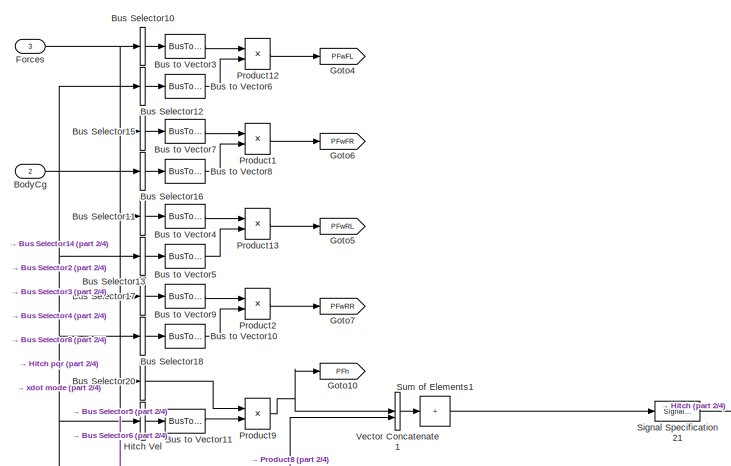
[diagram: Vehicle Body 3DOF Dual Track/Signal Routing/Signal Routing Dual/Power - part 1/4, top left region]
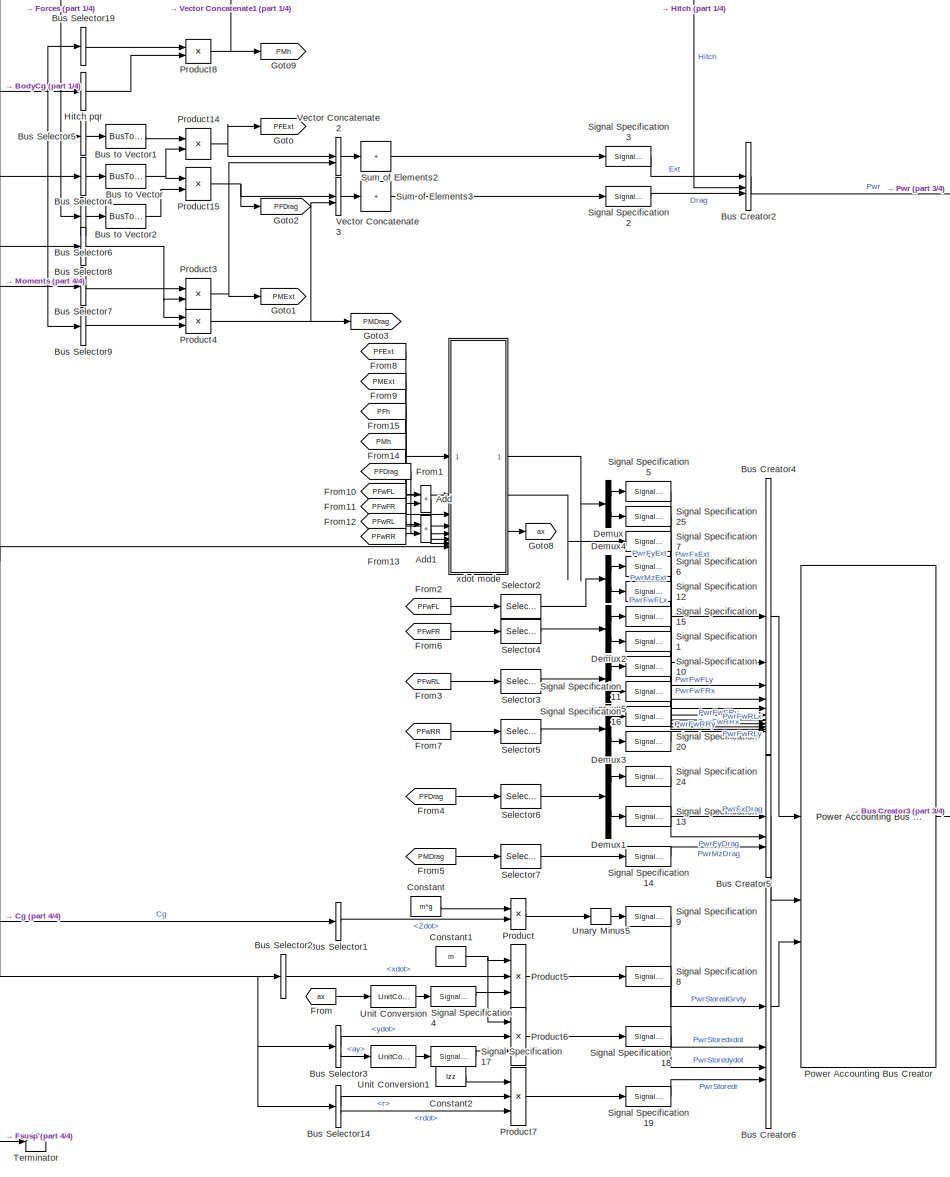
[diagram: Vehicle Body 3DOF Dual Track/Signal Routing/Signal Routing Dual/Power - part 2/4, full width, middle band]
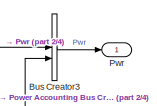
[diagram: Vehicle Body 3DOF Dual Track/Signal Routing/Signal Routing Dual/Power - part 3/4, middle right region]
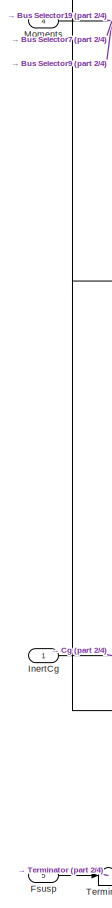
[diagram: Vehicle Body 3DOF Dual Track/Signal Routing/Signal Routing Dual/Power - part 4/4, bottom left region]
BLOCK [SubSystem] Vehicle Body 3DOF Dual Track/Signal Routing/Signal Routing Dual/Power
  VariantControl = 4
BLOCK [Sum] Vehicle Body 3DOF Dual Track/Signal Routing/Signal Routing Dual/Power/Add
  IconShape = rectangular
BLOCK [Sum] Vehicle Body 3DOF Dual Track/Signal Routing/Signal Routing Dual/Power/Add1
  IconShape = rectangular
BLOCK [Inport] Vehicle Body 3DOF Dual Track/Signal Routing/Signal Routing Dual/Power/BodyCg
  Port = 2
BLOCK [BusCreator] Vehicle Body 3DOF Dual Track/Signal Routing/Signal Routing Dual/Power/Bus Creator2
  DisplayOption = bar
  InheritFromInputs = on
  Inputs = 3
BLOCK [BusCreator] Vehicle Body 3DOF Dual Track/Signal Routing/Signal Routing Dual/Power/Bus Creator3
  DisplayOption = bar
  InheritFromInputs = on
  Inputs = 2
BLOCK [BusCreator] Vehicle Body 3DOF Dual Track/Signal Routing/Signal Routing Dual/Power/Bus Creator4
  DisplayOption = bar
  InheritFromInputs = on
  Inputs = 11
BLOCK [BusCreator] Vehicle Body 3DOF Dual Track/Signal Routing/Signal Routing Dual/Power/Bus Creator5
  DisplayOption = bar
  InheritFromInputs = on
  Inputs = 3
BLOCK [BusCreator] Vehicle Body 3DOF Dual Track/Signal Routing/Signal Routing Dual/Power/Bus Creator6
  DisplayOption = bar
  InheritFromInputs = on
  Inputs = 4
BLOCK [BusSelector] Vehicle Body 3DOF Dual Track/Signal Routing/Signal Routing Dual/Power/Bus Selector1
  OutputSignals = Cg.Vel.Zdot
BLOCK [BusSelector] Vehicle Body 3DOF Dual Track/Signal Routing/Signal Routing Dual/Power/Bus Selector10
  OutputAsBus = on
  OutputSignals = FrntAxl.Lft.Fx,FrntAxl.Lft.Fy,FrntAxl.Lft.Fz
BLOCK [BusSelector] Vehicle Body 3DOF Dual Track/Signal Routing/Signal Routing Dual/Power/Bus Selector11
  OutputAsBus = on
  OutputSignals = RearAxl.Lft.Fx,RearAxl.Lft.Fy,RearAxl.Lft.Fz
BLOCK [BusSelector] Vehicle Body 3DOF Dual Track/Signal Routing/Signal Routing Dual/Power/Bus Selector12
  OutputAsBus = on
  OutputSignals = FrntAxl.Lft.Vel.xdot,FrntAxl.Lft.Vel.ydot,FrntAxl.Lft.Vel.zdot
BLOCK [BusSelector] Vehicle Body 3DOF Dual Track/Signal Routing/Signal Routing Dual/Power/Bus Selector13
  OutputAsBus = on
  OutputSignals = RearAxl.Lft.Vel.xdot,RearAxl.Lft.Vel.ydot,RearAxl.Lft.Vel.zdot
BLOCK [BusSelector] Vehicle Body 3DOF Dual Track/Signal Routing/Signal Routing Dual/Power/Bus Selector14
  OutputSignals = Cg.AngVel.r,Cg.AngAcc.rdot
BLOCK [BusSelector] Vehicle Body 3DOF Dual Track/Signal Routing/Signal Routing Dual/Power/Bus Selector15
  OutputAsBus = on
  OutputSignals = FrntAxl.Rght.Fx,FrntAxl.Rght.Fy,FrntAxl.Rght.Fz
BLOCK [BusSelector] Vehicle Body 3DOF Dual Track/Signal Routing/Signal Routing Dual/Power/Bus Selector16
  OutputAsBus = on
  OutputSignals = FrntAxl.Rght.Vel.xdot,FrntAxl.Rght.Vel.ydot,FrntAxl.Rght.Vel.zdot
BLOCK [BusSelector] Vehicle Body 3DOF Dual Track/Signal Routing/Signal Routing Dual/Power/Bus Selector17
  OutputAsBus = on
  OutputSignals = RearAxl.Rght.Fx,RearAxl.Rght.Fy,RearAxl.Rght.Fz
BLOCK [BusSelector] Vehicle Body 3DOF Dual Track/Signal Routing/Signal Routing Dual/Power/Bus Selector18
  OutputAsBus = on
  OutputSignals = RearAxl.Rght.Vel.xdot,RearAxl.Rght.Vel.ydot,RearAxl.Rght.Vel.zdot
BLOCK [BusSelector] Vehicle Body 3DOF Dual Track/Signal Routing/Signal Routing Dual/Power/Bus Selector19
  OutputAsBus = on
  OutputSignals = Hitch.Mx,Hitch.My,Hitch.Mz
BLOCK [BusSelector] Vehicle Body 3DOF Dual Track/Signal Routing/Signal Routing Dual/Power/Bus Selector2
  OutputSignals = Cg.Vel.xdot
BLOCK [BusSelector] Vehicle Body 3DOF Dual Track/Signal Routing/Signal Routing Dual/Power/Bus Selector20
  OutputAsBus = on
  OutputSignals = Hitch.Fx,Hitch.Fy,Hitch.Fz
BLOCK [BusSelector] Vehicle Body 3DOF Dual Track/Signal Routing/Signal Routing Dual/Power/Bus Selector3
  OutputSignals = Cg.Vel.ydot,Cg.Acc.ay
BLOCK [BusSelector] Vehicle Body 3DOF Dual Track/Signal Routing/Signal Routing Dual/Power/Bus Selector4
  OutputAsBus = on
  OutputSignals = Cg.Vel.xdot,Cg.Vel.ydot,Cg.Vel.zdot
BLOCK [BusSelector] Vehicle Body 3DOF Dual Track/Signal Routing/Signal Routing Dual/Power/Bus Selector5
  OutputAsBus = on
  OutputSignals = Ext.Fx,Ext.Fy,Ext.Fz
BLOCK [BusSelector] Vehicle Body 3DOF Dual Track/Signal Routing/Signal Routing Dual/Power/Bus Selector6
  OutputAsBus = on
  OutputSignals = Drag.Fx,Drag.Fy,Drag.Fz
BLOCK [BusSelector] Vehicle Body 3DOF Dual Track/Signal Routing/Signal Routing Dual/Power/Bus Selector7
  OutputAsBus = on
  OutputSignals = Ext.Mx,Ext.My,Ext.Mz
BLOCK [BusSelector] Vehicle Body 3DOF Dual Track/Signal Routing/Signal Routing Dual/Power/Bus Selector8
  OutputAsBus = on
  OutputSignals = Cg.AngVel.p,Cg.AngVel.q,Cg.AngVel.r
BLOCK [BusSelector] Vehicle Body 3DOF Dual Track/Signal Routing/Signal Routing Dual/Power/Bus Selector9
  OutputAsBus = on
  OutputSignals = Drag.Mx,Drag.My,Drag.Mz
BLOCK [BusToVector] Vehicle Body 3DOF Dual Track/Signal Routing/Signal Routing Dual/Power/Bus to Vector
BLOCK [BusToVector] Vehicle Body 3DOF Dual Track/Signal Routing/Signal Routing Dual/Power/Bus to Vector1
BLOCK [BusToVector] Vehicle Body 3DOF Dual Track/Signal Routing/Signal Routing Dual/Power/Bus to Vector10
BLOCK [BusToVector] Vehicle Body 3DOF Dual Track/Signal Routing/Signal Routing Dual/Power/Bus to Vector11
BLOCK [BusToVector] Vehicle Body 3DOF Dual Track/Signal Routing/Signal Routing Dual/Power/Bus to Vector2
BLOCK [BusToVector] Vehicle Body 3DOF Dual Track/Signal Routing/Signal Routing Dual/Power/Bus to Vector3
BLOCK [BusToVector] Vehicle Body 3DOF Dual Track/Signal Routing/Signal Routing Dual/Power/Bus to Vector4
BLOCK [BusToVector] Vehicle Body 3DOF Dual Track/Signal Routing/Signal Routing Dual/Power/Bus to Vector5
BLOCK [BusToVector] Vehicle Body 3DOF Dual Track/Signal Routing/Signal Routing Dual/Power/Bus to Vector6
BLOCK [BusToVector] Vehicle Body 3DOF Dual Track/Signal Routing/Signal Routing Dual/Power/Bus to Vector7
BLOCK [BusToVector] Vehicle Body 3DOF Dual Track/Signal Routing/Signal Routing Dual/Power/Bus to Vector8
BLOCK [BusToVector] Vehicle Body 3DOF Dual Track/Signal Routing/Signal Routing Dual/Power/Bus to Vector9
BLOCK [Constant] Vehicle Body 3DOF Dual Track/Signal Routing/Signal Routing Dual/Power/Constant
  Value = m*g
BLOCK [Constant] Vehicle Body 3DOF Dual Track/Signal Routing/Signal Routing Dual/Power/Constant1
  Value = m
BLOCK [Constant] Vehicle Body 3DOF Dual Track/Signal Routing/Signal Routing Dual/Power/Constant2
  Value = Izz
BLOCK [Demux] Vehicle Body 3DOF Dual Track/Signal Routing/Signal Routing Dual/Power/Demux
  Outputs = 2
BLOCK [Demux] Vehicle Body 3DOF Dual Track/Signal Routing/Signal Routing Dual/Power/Demux1
  Outputs = 2
BLOCK [Demux] Vehicle Body 3DOF Dual Track/Signal Routing/Signal Routing Dual/Power/Demux2
  Outputs = 2
BLOCK [Demux] Vehicle Body 3DOF Dual Track/Signal Routing/Signal Routing Dual/Power/Demux3
  Outputs = 2
BLOCK [Demux] Vehicle Body 3DOF Dual Track/Signal Routing/Signal Routing Dual/Power/Demux4
  Outputs = 2
BLOCK [Demux] Vehicle Body 3DOF Dual Track/Signal Routing/Signal Routing Dual/Power/Demux5
  Outputs = 2
BLOCK [Inport] Vehicle Body 3DOF Dual Track/Signal Routing/Signal Routing Dual/Power/Forces
  Port = 3
BLOCK [From] Vehicle Body 3DOF Dual Track/Signal Routing/Signal Routing Dual/Power/From
  GotoTag = ax
BLOCK [From] Vehicle Body 3DOF Dual Track/Signal Routing/Signal Routing Dual/Power/From1
  GotoTag = PFDrag
BLOCK [From] Vehicle Body 3DOF Dual Track/Signal Routing/Signal Routing Dual/Power/From10
  GotoTag = PFwFL
BLOCK [From] Vehicle Body 3DOF Dual Track/Signal Routing/Signal Routing Dual/Power/From11
  GotoTag = PFwFR
BLOCK [From] Vehicle Body 3DOF Dual Track/Signal Routing/Signal Routing Dual/Power/From12
  GotoTag = PFwRL
BLOCK [From] Vehicle Body 3DOF Dual Track/Signal Routing/Signal Routing Dual/Power/From13
  GotoTag = PFwRR
BLOCK [From] Vehicle Body 3DOF Dual Track/Signal Routing/Signal Routing Dual/Power/From14
  GotoTag = PMh
BLOCK [From] Vehicle Body 3DOF Dual Track/Signal Routing/Signal Routing Dual/Power/From15
  GotoTag = PFh
BLOCK [From] Vehicle Body 3DOF Dual Track/Signal Routing/Signal Routing Dual/Power/From2
  GotoTag = PFwFL
BLOCK [From] Vehicle Body 3DOF Dual Track/Signal Routing/Signal Routing Dual/Power/From3
  GotoTag = PFwRL
BLOCK [From] Vehicle Body 3DOF Dual Track/Signal Routing/Signal Routing Dual/Power/From4
  GotoTag = PFDrag
BLOCK [From] Vehicle Body 3DOF Dual Track/Signal Routing/Signal Routing Dual/Power/From5
  GotoTag = PMDrag
BLOCK [From] Vehicle Body 3DOF Dual Track/Signal Routing/Signal Routing Dual/Power/From6
  GotoTag = PFwFR
BLOCK [From] Vehicle Body 3DOF Dual Track/Signal Routing/Signal Routing Dual/Power/From7
  GotoTag = PFwRR
BLOCK [From] Vehicle Body 3DOF Dual Track/Signal Routing/Signal Routing Dual/Power/From8
  GotoTag = PFExt
BLOCK [From] Vehicle Body 3DOF Dual Track/Signal Routing/Signal Routing Dual/Power/From9
  GotoTag = PMExt
BLOCK [Inport] Vehicle Body 3DOF Dual Track/Signal Routing/Signal Routing Dual/Power/Fsusp
  Port = 5
BLOCK [Goto] Vehicle Body 3DOF Dual Track/Signal Routing/Signal Routing Dual/Power/Goto
  GotoTag = PFExt
BLOCK [Goto] Vehicle Body 3DOF Dual Track/Signal Routing/Signal Routing Dual/Power/Goto1
  GotoTag = PMExt
BLOCK [Goto] Vehicle Body 3DOF Dual Track/Signal Routing/Signal Routing Dual/Power/Goto10
  GotoTag = PFh
BLOCK [Goto] Vehicle Body 3DOF Dual Track/Signal Routing/Signal Routing Dual/Power/Goto2
  GotoTag = PFDrag
BLOCK [Goto] Vehicle Body 3DOF Dual Track/Signal Routing/Signal Routing Dual/Power/Goto3
  GotoTag = PMDrag
BLOCK [Goto] Vehicle Body 3DOF Dual Track/Signal Routing/Signal Routing Dual/Power/Goto4
  GotoTag = PFwFL
BLOCK [Goto] Vehicle Body 3DOF Dual Track/Signal Routing/Signal Routing Dual/Power/Goto5
  GotoTag = PFwRL
BLOCK [Goto] Vehicle Body 3DOF Dual Track/Signal Routing/Signal Routing Dual/Power/Goto6
  GotoTag = PFwFR
BLOCK [Goto] Vehicle Body 3DOF Dual Track/Signal Routing/Signal Routing Dual/Power/Goto7
  GotoTag = PFwRR
BLOCK [Goto] Vehicle Body 3DOF Dual Track/Signal Routing/Signal Routing Dual/Power/Goto8
  GotoTag = ax
BLOCK [Goto] Vehicle Body 3DOF Dual Track/Signal Routing/Signal Routing Dual/Power/Goto9
  GotoTag = PMh
BLOCK [BusSelector] Vehicle Body 3DOF Dual Track/Signal Routing/Signal Routing Dual/Power/Hitch Vel
  OutputAsBus = on
  OutputSignals = Hitch.Vel.xdot,Hitch.Vel.ydot,Hitch.Vel.zdot
BLOCK [BusSelector] Vehicle Body 3DOF Dual Track/Signal Routing/Signal Routing Dual/Power/Hitch pqr
  OutputAsBus = on
  OutputSignals = Cg.AngVel.p,Cg.AngVel.q,Cg.AngVel.r
BLOCK [Inport] Vehicle Body 3DOF Dual Track/Signal Routing/Signal Routing Dual/Power/InertCg
BLOCK [Inport] Vehicle Body 3DOF Dual Track/Signal Routing/Signal Routing Dual/Power/Moments
  Port = 4
BLOCK [Reference] Vehicle Body 3DOF Dual Track/Signal Routing/Signal Routing Dual/Power/Power Accounting Bus Creator  REF=autolibpowerinfoutils/Power Accounting Bus Creator
  SourceBlock = autolibpowerinfoutils/Power Accounting Bus Creator
  SourceType = Power Accounting Bus Creator
BLOCK [Product] Vehicle Body 3DOF Dual Track/Signal Routing/Signal Routing Dual/Power/Product
BLOCK [Product] Vehicle Body 3DOF Dual Track/Signal Routing/Signal Routing Dual/Power/Product1
  NameLocation = top
BLOCK [Product] Vehicle Body 3DOF Dual Track/Signal Routing/Signal Routing Dual/Power/Product12
  NameLocation = top
BLOCK [Product] Vehicle Body 3DOF Dual Track/Signal Routing/Signal Routing Dual/Power/Product13
  NameLocation = top
BLOCK [Product] Vehicle Body 3DOF Dual Track/Signal Routing/Signal Routing Dual/Power/Product14
  NameLocation = top
BLOCK [Product] Vehicle Body 3DOF Dual Track/Signal Routing/Signal Routing Dual/Power/Product15
  NameLocation = top
BLOCK [Product] Vehicle Body 3DOF Dual Track/Signal Routing/Signal Routing Dual/Power/Product2
  NameLocation = top
BLOCK [Product] Vehicle Body 3DOF Dual Track/Signal Routing/Signal Routing Dual/Power/Product3
  NameLocation = top
BLOCK [Product] Vehicle Body 3DOF Dual Track/Signal Routing/Signal Routing Dual/Power/Product4
  NameLocation = top
BLOCK [Product] Vehicle Body 3DOF Dual Track/Signal Routing/Signal Routing Dual/Power/Product5
  Inputs = 3
BLOCK [Product] Vehicle Body 3DOF Dual Track/Signal Routing/Signal Routing Dual/Power/Product6
  Inputs = 3
BLOCK [Product] Vehicle Body 3DOF Dual Track/Signal Routing/Signal Routing Dual/Power/Product7
  Inputs = 3
BLOCK [Product] Vehicle Body 3DOF Dual Track/Signal Routing/Signal Routing Dual/Power/Product8
  NameLocation = top
BLOCK [Product] Vehicle Body 3DOF Dual Track/Signal Routing/Signal Routing Dual/Power/Product9
  NameLocation = top
BLOCK [Outport] Vehicle Body 3DOF Dual Track/Signal Routing/Signal Routing Dual/Power/Pwr
  VectorParamsAs1DForOutWhenUnconnected = off
BLOCK [Selector] Vehicle Body 3DOF Dual Track/Signal Routing/Signal Routing Dual/Power/Selector2
  IndexOptions = Index vector (dialog)
  Indices = [1 2]
  InputPortWidth = 3
  OutputSizes = 1
BLOCK [Selector] Vehicle Body 3DOF Dual Track/Signal Routing/Signal Routing Dual/Power/Selector3
  IndexOptions = Index vector (dialog)
  Indices = [1 2]
  InputPortWidth = 3
  OutputSizes = 1
BLOCK [Selector] Vehicle Body 3DOF Dual Track/Signal Routing/Signal Routing Dual/Power/Selector4
  IndexOptions = Index vector (dialog)
  Indices = [1 2]
  InputPortWidth = 3
  OutputSizes = 1
BLOCK [Selector] Vehicle Body 3DOF Dual Track/Signal Routing/Signal Routing Dual/Power/Selector5
  IndexOptions = Index vector (dialog)
  Indices = [1 2]
  InputPortWidth = 3
  OutputSizes = 1
BLOCK [Selector] Vehicle Body 3DOF Dual Track/Signal Routing/Signal Routing Dual/Power/Selector6
  IndexOptions = Index vector (dialog)
  Indices = [1 2]
  InputPortWidth = 3
  OutputSizes = 1
BLOCK [Selector] Vehicle Body 3DOF Dual Track/Signal Routing/Signal Routing Dual/Power/Selector7
  IndexOptions = Index vector (dialog)
  Indices = [3]
  InputPortWidth = 3
  OutputSizes = 1
BLOCK [SignalSpecification] Vehicle Body 3DOF Dual Track/Signal Routing/Signal Routing Dual/Power/Signal Specification1
  Unit = W
BLOCK [SignalSpecification] Vehicle Body 3DOF Dual Track/Signal Routing/Signal Routing Dual/Power/Signal Specification10
  Unit = W
BLOCK [SignalSpecification] Vehicle Body 3DOF Dual Track/Signal Routing/Signal Routing Dual/Power/Signal Specification11
  Unit = W
BLOCK [SignalSpecification] Vehicle Body 3DOF Dual Track/Signal Routing/Signal Routing Dual/Power/Signal Specification12
  Unit = W
BLOCK [SignalSpecification] Vehicle Body 3DOF Dual Track/Signal Routing/Signal Routing Dual/Power/Signal Specification13
  Unit = W
BLOCK [SignalSpecification] Vehicle Body 3DOF Dual Track/Signal Routing/Signal Routing Dual/Power/Signal Specification14
  Unit = W
BLOCK [SignalSpecification] Vehicle Body 3DOF Dual Track/Signal Routing/Signal Routing Dual/Power/Signal Specification15
  Unit = W
BLOCK [SignalSpecification] Vehicle Body 3DOF Dual Track/Signal Routing/Signal Routing Dual/Power/Signal Specification16
  Unit = W
BLOCK [SignalSpecification] Vehicle Body 3DOF Dual Track/Signal Routing/Signal Routing Dual/Power/Signal Specification17
  Unit = m/s^2
BLOCK [SignalSpecification] Vehicle Body 3DOF Dual Track/Signal Routing/Signal Routing Dual/Power/Signal Specification18
  Unit = W
BLOCK [SignalSpecification] Vehicle Body 3DOF Dual Track/Signal Routing/Signal Routing Dual/Power/Signal Specification19
  Unit = W
BLOCK [SignalSpecification] Vehicle Body 3DOF Dual Track/Signal Routing/Signal Routing Dual/Power/Signal Specification2
  Unit = W
BLOCK [SignalSpecification] Vehicle Body 3DOF Dual Track/Signal Routing/Signal Routing Dual/Power/Signal Specification20
  Unit = W
BLOCK [SignalSpecification] Vehicle Body 3DOF Dual Track/Signal Routing/Signal Routing Dual/Power/Signal Specification21
  Unit = W
BLOCK [SignalSpecification] Vehicle Body 3DOF Dual Track/Signal Routing/Signal Routing Dual/Power/Signal Specification24
  Unit = W
BLOCK [SignalSpecification] Vehicle Body 3DOF Dual Track/Signal Routing/Signal Routing Dual/Power/Signal Specification25
  Unit = W
BLOCK [SignalSpecification] Vehicle Body 3DOF Dual Track/Signal Routing/Signal Routing Dual/Power/Signal Specification3
  Unit = W
BLOCK [SignalSpecification] Vehicle Body 3DOF Dual Track/Signal Routing/Signal Routing Dual/Power/Signal Specification4
  Unit = m/s^2
BLOCK [SignalSpecification] Vehicle Body 3DOF Dual Track/Signal Routing/Signal Routing Dual/Power/Signal Specification5
  Unit = W
BLOCK [SignalSpecification] Vehicle Body 3DOF Dual Track/Signal Routing/Signal Routing Dual/Power/Signal Specification6
  Unit = W
BLOCK [SignalSpecification] Vehicle Body 3DOF Dual Track/Signal Routing/Signal Routing Dual/Power/Signal Specification7
  Unit = W
BLOCK [SignalSpecification] Vehicle Body 3DOF Dual Track/Signal Routing/Signal Routing Dual/Power/Signal Specification8
  Unit = W
BLOCK [SignalSpecification] Vehicle Body 3DOF Dual Track/Signal Routing/Signal Routing Dual/Power/Signal Specification9
  Unit = W
BLOCK [Sum] Vehicle Body 3DOF Dual Track/Signal Routing/Signal Routing Dual/Power/Sum of Elements1
  IconShape = rectangular
  Inputs = +
BLOCK [Sum] Vehicle Body 3DOF Dual Track/Signal Routing/Signal Routing Dual/Power/Sum of Elements2
  IconShape = rectangular
  Inputs = +
BLOCK [Sum] Vehicle Body 3DOF Dual Track/Signal Routing/Signal Routing Dual/Power/Sum of Elements3
  IconShape = rectangular
  Inputs = +
BLOCK [Terminator] Vehicle Body 3DOF Dual Track/Signal Routing/Signal Routing Dual/Power/Terminator
BLOCK [UnaryMinus] Vehicle Body 3DOF Dual Track/Signal Routing/Signal Routing Dual/Power/Unary Minus5
BLOCK [UnitConversion] Vehicle Body 3DOF Dual Track/Signal Routing/Signal Routing Dual/Power/Unit Conversion
BLOCK [UnitConversion] Vehicle Body 3DOF Dual Track/Signal Routing/Signal Routing Dual/Power/Unit Conversion1
BLOCK [Concatenate] Vehicle Body 3DOF Dual Track/Signal Routing/Signal Routing Dual/Power/Vector Concatenate1
BLOCK [Concatenate] Vehicle Body 3DOF Dual Track/Signal Routing/Signal Routing Dual/Power/Vector Concatenate2
BLOCK [Concatenate] Vehicle Body 3DOF Dual Track/Signal Routing/Signal Routing Dual/Power/Vector Concatenate3
BLOCK [SubSystem] Vehicle Body 3DOF Dual Track/Signal Routing/Signal Routing Dual/Power/xdot mode
  LabelModeActiveChoice = 1
  NameLocation = top
  Variant = on
  VariantControlMode = label
BLOCK [Inport] Vehicle Body 3DOF Dual Track/Signal Routing/Signal Routing Dual/Power/xdot mode/BodyFrm
  Port = 8
BLOCK [SubSystem] Vehicle Body 3DOF Dual Track/Signal Routing/Signal Routing Dual/Power/xdot mode/FxIn
  VariantControl = 1
BLOCK [Inport] Vehicle Body 3DOF Dual Track/Signal Routing/Signal Routing Dual/Power/xdot mode/FxIn/BodyFrm
  Port = 8
BLOCK [BusSelector] Vehicle Body 3DOF Dual Track/Signal Routing/Signal Routing Dual/Power/xdot mode/FxIn/Bus Selector2
  OutputSignals = Cg.Acc.ax
BLOCK [Outport] Vehicle Body 3DOF Dual Track/Signal Routing/Signal Routing Dual/Power/xdot mode/FxIn/PF
  VectorParamsAs1DForOutWhenUnconnected = off
BLOCK [Inport] Vehicle Body 3DOF Dual Track/Signal Routing/Signal Routing Dual/Power/xdot mode/FxIn/PFDrag
  Port = 5
BLOCK [Inport] Vehicle Body 3DOF Dual Track/Signal Routing/Signal Routing Dual/Power/xdot mode/FxIn/PFExt
BLOCK [Inport] Vehicle Body 3DOF Dual Track/Signal Routing/Signal Routing Dual/Power/xdot mode/FxIn/PFh
  Port = 3
BLOCK [Inport] Vehicle Body 3DOF Dual Track/Signal Routing/Signal Routing Dual/Power/xdot mode/FxIn/PFwF
  Port = 6
BLOCK [Inport] Vehicle Body 3DOF Dual Track/Signal Routing/Signal Routing Dual/Power/xdot mode/FxIn/PFwR
  Port = 7
BLOCK [Outport] Vehicle Body 3DOF Dual Track/Signal Routing/Signal Routing Dual/Power/xdot mode/FxIn/PM
  Port = 2
  VectorParamsAs1DForOutWhenUnconnected = off
BLOCK [Inport] Vehicle Body 3DOF Dual Track/Signal Routing/Signal Routing Dual/Power/xdot mode/FxIn/PMExt
  Port = 2
BLOCK [Inport] Vehicle Body 3DOF Dual Track/Signal Routing/Signal Routing Dual/Power/xdot mode/FxIn/PMh
  Port = 4
BLOCK [Selector] Vehicle Body 3DOF Dual Track/Signal Routing/Signal Routing Dual/Power/xdot mode/FxIn/Selector1
  IndexOptions = Index vector (dialog)
  Indices = [1 2]
  InputPortWidth = 3
  OutputSizes = 1
BLOCK [Selector] Vehicle Body 3DOF Dual Track/Signal Routing/Signal Routing Dual/Power/xdot mode/FxIn/Selector2
  IndexOptions = Index vector (dialog)
  Indices = [3]
  InputPortWidth = 3
  OutputSizes = 1
BLOCK [Selector] Vehicle Body 3DOF Dual Track/Signal Routing/Signal Routing Dual/Power/xdot mode/FxIn/Selector3
  IndexOptions = Index vector (dialog)
  Indices = [3]
  InputPortWidth = 3
  OutputSizes = 1
BLOCK [Selector] Vehicle Body 3DOF Dual Track/Signal Routing/Signal Routing Dual/Power/xdot mode/FxIn/Selector4
  IndexOptions = Index vector (dialog)
  Indices = [1 2]
  InputPortWidth = 3
  OutputSizes = 1
BLOCK [Sum] Vehicle Body 3DOF Dual Track/Signal Routing/Signal Routing Dual/Power/xdot mode/FxIn/Sum
  Inputs = |++
BLOCK [Sum] Vehicle Body 3DOF Dual Track/Signal Routing/Signal Routing Dual/Power/xdot mode/FxIn/Sum1
  Inputs = |++
BLOCK [Terminator] Vehicle Body 3DOF Dual Track/Signal Routing/Signal Routing Dual/Power/xdot mode/FxIn/Terminator
BLOCK [Terminator] Vehicle Body 3DOF Dual Track/Signal Routing/Signal Routing Dual/Power/xdot mode/FxIn/Terminator2
BLOCK [Terminator] Vehicle Body 3DOF Dual Track/Signal Routing/Signal Routing Dual/Power/xdot mode/FxIn/Terminator3
BLOCK [Outport] Vehicle Body 3DOF Dual Track/Signal Routing/Signal Routing Dual/Power/xdot mode/FxIn/ax
  Port = 3
  VectorParamsAs1DForOutWhenUnconnected = off
BLOCK [Outport] Vehicle Body 3DOF Dual Track/Signal Routing/Signal Routing Dual/Power/xdot mode/PF
  VectorParamsAs1DForOutWhenUnconnected = off
BLOCK [Inport] Vehicle Body 3DOF Dual Track/Signal Routing/Signal Routing Dual/Power/xdot mode/PFDrag
  Port = 5
BLOCK [Inport] Vehicle Body 3DOF Dual Track/Signal Routing/Signal Routing Dual/Power/xdot mode/PFExt
BLOCK [Inport] Vehicle Body 3DOF Dual Track/Signal Routing/Signal Routing Dual/Power/xdot mode/PFh
  Port = 3
BLOCK [Inport] Vehicle Body 3DOF Dual Track/Signal Routing/Signal Routing Dual/Power/xdot mode/PFwF
  Port = 6
BLOCK [Inport] Vehicle Body 3DOF Dual Track/Signal Routing/Signal Routing Dual/Power/xdot mode/PFwR
  Port = 7
BLOCK [Outport] Vehicle Body 3DOF Dual Track/Signal Routing/Signal Routing Dual/Power/xdot mode/PM
  Port = 2
  VectorParamsAs1DForOutWhenUnconnected = off
BLOCK [Inport] Vehicle Body 3DOF Dual Track/Signal Routing/Signal Routing Dual/Power/xdot mode/PMExt
  Port = 2
BLOCK [Inport] Vehicle Body 3DOF Dual Track/Signal Routing/Signal Routing Dual/Power/xdot mode/PMh
  Port = 4
BLOCK [Outport] Vehicle Body 3DOF Dual Track/Signal Routing/Signal Routing Dual/Power/xdot mode/ax
  Port = 3
  VectorParamsAs1DForOutWhenUnconnected = off
BLOCK [SubSystem] Vehicle Body 3DOF Dual Track/Signal Routing/Signal Routing Dual/Power/xdot mode/xdotin
  VariantControl = 0
BLOCK [Sum] Vehicle Body 3DOF Dual Track/Signal Routing/Signal Routing Dual/Power/xdot mode/xdotin/Add
  IconShape = rectangular
  Inputs = +++++
BLOCK [Inport] Vehicle Body 3DOF Dual Track/Signal Routing/Signal Routing Dual/Power/xdot mode/xdotin/BodyFrm
  Port = 8
BLOCK [Ground] Vehicle Body 3DOF Dual Track/Signal Routing/Signal Routing Dual/Power/xdot mode/xdotin/Ground
BLOCK [Ground] Vehicle Body 3DOF Dual Track/Signal Routing/Signal Routing Dual/Power/xdot mode/xdotin/Ground1
BLOCK [Ground] Vehicle Body 3DOF Dual Track/Signal Routing/Signal Routing Dual/Power/xdot mode/xdotin/Ground2
BLOCK [Ground] Vehicle Body 3DOF Dual Track/Signal Routing/Signal Routing Dual/Power/xdot mode/xdotin/Ground3
BLOCK [Ground] Vehicle Body 3DOF Dual Track/Signal Routing/Signal Routing Dual/Power/xdot mode/xdotin/Ground4
BLOCK [Ground] Vehicle Body 3DOF Dual Track/Signal Routing/Signal Routing Dual/Power/xdot mode/xdotin/Ground5
BLOCK [Mux] Vehicle Body 3DOF Dual Track/Signal Routing/Signal Routing Dual/Power/xdot mode/xdotin/Mux
  DisplayOption = bar
  Inputs = 2
BLOCK [Mux] Vehicle Body 3DOF Dual Track/Signal Routing/Signal Routing Dual/Power/xdot mode/xdotin/Mux1
  DisplayOption = bar
  Inputs = 2
BLOCK [Mux] Vehicle Body 3DOF Dual Track/Signal Routing/Signal Routing Dual/Power/xdot mode/xdotin/Mux2
  DisplayOption = bar
  Inputs = 2
BLOCK [Mux] Vehicle Body 3DOF Dual Track/Signal Routing/Signal Routing Dual/Power/xdot mode/xdotin/Mux3
  DisplayOption = bar
  Inputs = 2
BLOCK [Mux] Vehicle Body 3DOF Dual Track/Signal Routing/Signal Routing Dual/Power/xdot mode/xdotin/Mux4
  DisplayOption = bar
  Inputs = 2
BLOCK [Outport] Vehicle Body 3DOF Dual Track/Signal Routing/Signal Routing Dual/Power/xdot mode/xdotin/PF
  VectorParamsAs1DForOutWhenUnconnected = off
BLOCK [Inport] Vehicle Body 3DOF Dual Track/Signal Routing/Signal Routing Dual/Power/xdot mode/xdotin/PFDrag
  Port = 5
BLOCK [Inport] Vehicle Body 3DOF Dual Track/Signal Routing/Signal Routing Dual/Power/xdot mode/xdotin/PFExt
BLOCK [Inport] Vehicle Body 3DOF Dual Track/Signal Routing/Signal Routing Dual/Power/xdot mode/xdotin/PFh
  Port = 3
BLOCK [Inport] Vehicle Body 3DOF Dual Track/Signal Routing/Signal Routing Dual/Power/xdot mode/xdotin/PFwF
  Port = 6
BLOCK [Inport] Vehicle Body 3DOF Dual Track/Signal Routing/Signal Routing Dual/Power/xdot mode/xdotin/PFwR
  Port = 7
BLOCK [Outport] Vehicle Body 3DOF Dual Track/Signal Routing/Signal Routing Dual/Power/xdot mode/xdotin/PM
  Port = 2
  VectorParamsAs1DForOutWhenUnconnected = off
BLOCK [Inport] Vehicle Body 3DOF Dual Track/Signal Routing/Signal Routing Dual/Power/xdot mode/xdotin/PMExt
  Port = 2
BLOCK [Inport] Vehicle Body 3DOF Dual Track/Signal Routing/Signal Routing Dual/Power/xdot mode/xdotin/PMh
  Port = 4
BLOCK [Selector] Vehicle Body 3DOF Dual Track/Signal Routing/Signal Routing Dual/Power/xdot mode/xdotin/Selector1
  IndexOptions = Index vector (dialog)
  Indices = [1]
  InputPortWidth = 3
  OutputSizes = 1
BLOCK [Selector] Vehicle Body 3DOF Dual Track/Signal Routing/Signal Routing Dual/Power/xdot mode/xdotin/Selector2
  IndexOptions = Index vector (dialog)
  Indices = [2]
  InputPortWidth = 3
  OutputSizes = 1
BLOCK [Selector] Vehicle Body 3DOF Dual Track/Signal Routing/Signal Routing Dual/Power/xdot mode/xdotin/Selector3
  IndexOptions = Index vector (dialog)
  Indices = [3]
  InputPortWidth = 3
  OutputSizes = 1
BLOCK [Selector] Vehicle Body 3DOF Dual Track/Signal Routing/Signal Routing Dual/Power/xdot mode/xdotin/Selector4
  IndexOptions = Index vector (dialog)
  Indices = [1]
  InputPortWidth = 3
  OutputSizes = 1
BLOCK [Selector] Vehicle Body 3DOF Dual Track/Signal Routing/Signal Routing Dual/Power/xdot mode/xdotin/Selector5
  IndexOptions = Index vector (dialog)
  Indices = [1]
  InputPortWidth = 3
  OutputSizes = 1
BLOCK [Selector] Vehicle Body 3DOF Dual Track/Signal Routing/Signal Routing Dual/Power/xdot mode/xdotin/Selector6
  IndexOptions = Index vector (dialog)
  Indices = [3]
  InputPortWidth = 3
  OutputSizes = 1
BLOCK [Selector] Vehicle Body 3DOF Dual Track/Signal Routing/Signal Routing Dual/Power/xdot mode/xdotin/Selector7
  IndexOptions = Index vector (dialog)
  Indices = [2]
  InputPortWidth = 3
  OutputSizes = 1
BLOCK [SignalSpecification] Vehicle Body 3DOF Dual Track/Signal Routing/Signal Routing Dual/Power/xdot mode/xdotin/Signal Specification
  Unit = gn
BLOCK [Sum] Vehicle Body 3DOF Dual Track/Signal Routing/Signal Routing Dual/Power/xdot mode/xdotin/Sum
  Inputs = |++
BLOCK [Terminator] Vehicle Body 3DOF Dual Track/Signal Routing/Signal Routing Dual/Power/xdot mode/xdotin/Terminator
BLOCK [UnaryMinus] Vehicle Body 3DOF Dual Track/Signal Routing/Signal Routing Dual/Power/xdot mode/xdotin/Unary Minus1
BLOCK [UnaryMinus] Vehicle Body 3DOF Dual Track/Signal Routing/Signal Routing Dual/Power/xdot mode/xdotin/Unary Minus2
BLOCK [UnaryMinus] Vehicle Body 3DOF Dual Track/Signal Routing/Signal Routing Dual/Power/xdot mode/xdotin/Unary Minus3
BLOCK [Outport] Vehicle Body 3DOF Dual Track/Signal Routing/Signal Routing Dual/Power/xdot mode/xdotin/ax
  Port = 3
  VectorParamsAs1DForOutWhenUnconnected = off
BLOCK [Selector] Vehicle Body 3DOF Dual Track/Signal Routing/Signal Routing Dual/Selector
  IndexOptions = Index vector (dialog)
  Indices = [1,2,4]
  OutputSizes = 1
BLOCK [SignalSpecification] Vehicle Body 3DOF Dual Track/Signal Routing/Signal Routing Dual/Signal Specification1
  Unit = m/s
BLOCK [SignalSpecification] Vehicle Body 3DOF Dual Track/Signal Routing/Signal Routing Dual/Signal Specification15
  Unit = m/s
BLOCK [SignalSpecification] Vehicle Body 3DOF Dual Track/Signal Routing/Signal Routing Dual/Signal Specification2
  Unit = rad/s
BLOCK [Inport] Vehicle Body 3DOF Dual Track/Signal Routing/Signal Routing Dual/WhlAngF
  Port = 12
BLOCK [Inport] Vehicle Body 3DOF Dual Track/Signal Routing/Signal Routing Dual/WhlAngR
  Port = 13
BLOCK [Inport] Vehicle Body 3DOF Dual Track/Signal Routing/Signal Routing Dual/Xo
  Port = 16
BLOCK [Outport] Vehicle Body 3DOF Dual Track/Signal Routing/Signal Routing Dual/psi
  Port = 4
  VectorParamsAs1DForOutWhenUnconnected = off
BLOCK [Outport] Vehicle Body 3DOF Dual Track/Signal Routing/Signal Routing Dual/r
  Port = 5
  VectorParamsAs1DForOutWhenUnconnected = off
BLOCK [SubSystem] Vehicle Body 3DOF Dual Track/Signal Routing/Signal Routing Dual/state2bus
BLOCK [Reference] Vehicle Body 3DOF Dual Track/Signal Routing/Signal Routing Dual/state2bus/Angle Wrap  REF=autolibshared/Vehicle Body 3DOF Single Track/Signal Routing/Signal Routing/state2bus/Angle Wrap
  SourceBlock = autolibshared/Vehicle Body 3DOF Single Track/Signal Routing/Signal Routing/state2bus/Angle Wrap
  SourceType = SubSystem
BLOCK [Reference] Vehicle Body 3DOF Dual Track/Signal Routing/Signal Routing Dual/state2bus/Body Slip  REF=autolibshared/Vehicle Body 3DOF Single Track/Signal Routing/Signal Routing/state2bus/Body Slip
  SourceBlock = autolibshared/Vehicle Body 3DOF Single Track/Signal Routing/Signal Routing/state2bus/Body Slip
  SourceType = SubSystem
BLOCK [BusCreator] Vehicle Body 3DOF Dual Track/Signal Routing/Signal Routing Dual/state2bus/Bus Creator1
  DisplayOption = bar
  InheritFromInputs = on
  Inputs = 6
BLOCK [BusCreator] Vehicle Body 3DOF Dual Track/Signal Routing/Signal Routing Dual/state2bus/Bus Creator10
  DisplayOption = bar
  InheritFromInputs = on
  Inputs = 3
BLOCK [BusCreator] Vehicle Body 3DOF Dual Track/Signal Routing/Signal Routing Dual/state2bus/Bus Creator11
  DisplayOption = bar
  InheritFromInputs = on
  Inputs = 3
BLOCK [BusCreator] Vehicle Body 3DOF Dual Track/Signal Routing/Signal Routing Dual/state2bus/Bus Creator13
  DisplayOption = bar
  InheritFromInputs = on
  Inputs = 3
BLOCK [BusCreator] Vehicle Body 3DOF Dual Track/Signal Routing/Signal Routing Dual/state2bus/Bus Creator14
  DisplayOption = bar
  InheritFromInputs = on
  Inputs = 3
BLOCK [BusCreator] Vehicle Body 3DOF Dual Track/Signal Routing/Signal Routing Dual/state2bus/Bus Creator15
  DisplayOption = bar
  InheritFromInputs = on
  Inputs = 6
BLOCK [BusCreator] Vehicle Body 3DOF Dual Track/Signal Routing/Signal Routing Dual/state2bus/Bus Creator2
  DisplayOption = bar
  InheritFromInputs = on
  Inputs = 1
BLOCK [BusCreator] Vehicle Body 3DOF Dual Track/Signal Routing/Signal Routing Dual/state2bus/Bus Creator3
  DisplayOption = bar
  InheritFromInputs = on
  Inputs = 3
BLOCK [BusCreator] Vehicle Body 3DOF Dual Track/Signal Routing/Signal Routing Dual/state2bus/Bus Creator6
  DisplayOption = bar
  InheritFromInputs = on
  Inputs = 3
BLOCK [BusCreator] Vehicle Body 3DOF Dual Track/Signal Routing/Signal Routing Dual/state2bus/Bus Creator7
  DisplayOption = bar
  InheritFromInputs = on
  Inputs = 3
BLOCK [SubSystem] Vehicle Body 3DOF Dual Track/Signal Routing/Signal Routing Dual/state2bus/COMB2I
  ErrorFcn = Stateflow.Translate.translate
  PermitHierarchicalResolution = ExplicitOnly
  SFBlockType = MATLAB Function
  TreatAsAtomicUnit = on
BLOCK [Demux] Vehicle Body 3DOF Dual Track/Signal Routing/Signal Routing Dual/state2bus/COMB2I/ Demux 
  Outputs = 1
BLOCK [S-Function] Vehicle Body 3DOF Dual Track/Signal Routing/Signal Routing Dual/state2bus/COMB2I/ SFunction 
  EnableBusSupport = on
  FunctionName = sf_sfun
  PortCounts = [1 2]
  SFcnIsStateOwnerBlock = off
  SFunctionDeploymentMode = off
  Tag = Stateflow S-Function 1
BLOCK [Terminator] Vehicle Body 3DOF Dual Track/Signal Routing/Signal Routing Dual/state2bus/COMB2I/ Terminator 
BLOCK [Inport] Vehicle Body 3DOF Dual Track/Signal Routing/Signal Routing Dual/state2bus/COMB2I/x
BLOCK [Outport] Vehicle Body 3DOF Dual Track/Signal Routing/Signal Routing Dual/state2bus/COMB2I/y
  VectorParamsAs1DForOutWhenUnconnected = off
BLOCK [Outport] Vehicle Body 3DOF Dual Track/Signal Routing/Signal Routing Dual/state2bus/COM_B
  Port = 2
  VectorParamsAs1DForOutWhenUnconnected = off
BLOCK [Outport] Vehicle Body 3DOF Dual Track/Signal Routing/Signal Routing Dual/state2bus/COM_I
  VectorParamsAs1DForOutWhenUnconnected = off
BLOCK [Constant] Vehicle Body 3DOF Dual Track/Signal Routing/Signal Routing Dual/state2bus/Constant
  Value = 0
BLOCK [Constant] Vehicle Body 3DOF Dual Track/Signal Routing/Signal Routing Dual/state2bus/Constant1
  Value = 0
BLOCK [Constant] Vehicle Body 3DOF Dual Track/Signal Routing/Signal Routing Dual/state2bus/Constant10
  Value = 0
BLOCK [Constant] Vehicle Body 3DOF Dual Track/Signal Routing/Signal Routing Dual/state2bus/Constant2
  Value = 0
BLOCK [Constant] Vehicle Body 3DOF Dual Track/Signal Routing/Signal Routing Dual/state2bus/Constant3
  Value = 0
BLOCK [Constant] Vehicle Body 3DOF Dual Track/Signal Routing/Signal Routing Dual/state2bus/Constant4
  Value = 0
BLOCK [Constant] Vehicle Body 3DOF Dual Track/Signal Routing/Signal Routing Dual/state2bus/Constant5
  Value = 0
BLOCK [Constant] Vehicle Body 3DOF Dual Track/Signal Routing/Signal Routing Dual/state2bus/Constant6
  Value = 0
BLOCK [Constant] Vehicle Body 3DOF Dual Track/Signal Routing/Signal Routing Dual/state2bus/Constant7
  Value = 0
BLOCK [Constant] Vehicle Body 3DOF Dual Track/Signal Routing/Signal Routing Dual/state2bus/Constant8
  Value = 0
BLOCK [Constant] Vehicle Body 3DOF Dual Track/Signal Routing/Signal Routing Dual/state2bus/Constant9
  Value = 0
BLOCK [Demux] Vehicle Body 3DOF Dual Track/Signal Routing/Signal Routing Dual/state2bus/Demux1
  Outputs = 2
BLOCK [Demux] Vehicle Body 3DOF Dual Track/Signal Routing/Signal Routing Dual/state2bus/Demux2
  Outputs = 2
BLOCK [Demux] Vehicle Body 3DOF Dual Track/Signal Routing/Signal Routing Dual/state2bus/Demux3
  Outputs = 3
BLOCK [Demux] Vehicle Body 3DOF Dual Track/Signal Routing/Signal Routing Dual/state2bus/Demux4
  Outputs = 2
BLOCK [Demux] Vehicle Body 3DOF Dual Track/Signal Routing/Signal Routing Dual/state2bus/Demux5
  Outputs = 3
BLOCK [Demux] Vehicle Body 3DOF Dual Track/Signal Routing/Signal Routing Dual/state2bus/Demux6
  Outputs = 2
BLOCK [From] Vehicle Body 3DOF Dual Track/Signal Routing/Signal Routing Dual/state2bus/From
  GotoTag = angles
BLOCK [Goto] Vehicle Body 3DOF Dual Track/Signal Routing/Signal Routing Dual/state2bus/Goto
  GotoTag = angles
BLOCK [Integrator] Vehicle Body 3DOF Dual Track/Signal Routing/Signal Routing Dual/state2bus/Integrator
  InitialConditionSource = external
BLOCK [Reference] Vehicle Body 3DOF Dual Track/Signal Routing/Signal Routing Dual/state2bus/Rotation Angles to Direction Cosine Matrix  REF=sharedtransform/Rotation Angles to
Direction Cosine Matrix
  AttributesFormatString = Rotation Order: %<rotationOrder>
  SourceBlock = sharedtransform/Rotation Angles to\nDirection Cosine Matrix
  SourceType = Ang2DCM
BLOCK [Selector] Vehicle Body 3DOF Dual Track/Signal Routing/Signal Routing Dual/state2bus/Selector
  IndexOptions = Index vector (dialog)
  Indices = [3 2 1]
  InputPortWidth = 3
  OutputSizes = 1
BLOCK [Selector] Vehicle Body 3DOF Dual Track/Signal Routing/Signal Routing Dual/state2bus/Selector1
  IndexOptions = Index vector (dialog)
  Indices = [3]
  OutputSizes = 1
BLOCK [Selector] Vehicle Body 3DOF Dual Track/Signal Routing/Signal Routing Dual/state2bus/Selector2
  IndexOptions = Index vector (dialog)
  Indices = [3,1,2]
  OutputSizes = 1
BLOCK [Selector] Vehicle Body 3DOF Dual Track/Signal Routing/Signal Routing Dual/state2bus/Selector4
  IndexOptions = Index vector (dialog)
  Indices = [4,1,2]
  OutputSizes = 1
BLOCK [Selector] Vehicle Body 3DOF Dual Track/Signal Routing/Signal Routing Dual/state2bus/Selector5
  IndexOptions = Index vector (dialog)
  Indices = [1,2]
  OutputSizes = 1
BLOCK [SignalSpecification] Vehicle Body 3DOF Dual Track/Signal Routing/Signal Routing Dual/state2bus/Signal Specification
  Unit = gn
BLOCK [SignalSpecification] Vehicle Body 3DOF Dual Track/Signal Routing/Signal Routing Dual/state2bus/Signal Specification1
  Unit = rad/s
BLOCK [SignalSpecification] Vehicle Body 3DOF Dual Track/Signal Routing/Signal Routing Dual/state2bus/Signal Specification10
  Unit = m/s
BLOCK [SignalSpecification] Vehicle Body 3DOF Dual Track/Signal Routing/Signal Routing Dual/state2bus/Signal Specification11
  Unit = m/s
BLOCK [SignalSpecification] Vehicle Body 3DOF Dual Track/Signal Routing/Signal Routing Dual/state2bus/Signal Specification12
  Unit = m/s
BLOCK [SignalSpecification] Vehicle Body 3DOF Dual Track/Signal Routing/Signal Routing Dual/state2bus/Signal Specification13
  Unit = m
BLOCK [SignalSpecification] Vehicle Body 3DOF Dual Track/Signal Routing/Signal Routing Dual/state2bus/Signal Specification14
  Unit = m
BLOCK [SignalSpecification] Vehicle Body 3DOF Dual Track/Signal Routing/Signal Routing Dual/state2bus/Signal Specification15
  Unit = m
BLOCK [SignalSpecification] Vehicle Body 3DOF Dual Track/Signal Routing/Signal Routing Dual/state2bus/Signal Specification16
  Unit = m/s^2
BLOCK [SignalSpecification] Vehicle Body 3DOF Dual Track/Signal Routing/Signal Routing Dual/state2bus/Signal Specification17
  Unit = m/s^2
BLOCK [SignalSpecification] Vehicle Body 3DOF Dual Track/Signal Routing/Signal Routing Dual/state2bus/Signal Specification18
  Unit = m/s^2
BLOCK [SignalSpecification] Vehicle Body 3DOF Dual Track/Signal Routing/Signal Routing Dual/state2bus/Signal Specification19
  Unit = rad/s^2
BLOCK [SignalSpecification] Vehicle Body 3DOF Dual Track/Signal Routing/Signal Routing Dual/state2bus/Signal Specification2
  Unit = rad/s
BLOCK [SignalSpecification] Vehicle Body 3DOF Dual Track/Signal Routing/Signal Routing Dual/state2bus/Signal Specification20
  Unit = rad/s^2
BLOCK [SignalSpecification] Vehicle Body 3DOF Dual Track/Signal Routing/Signal Routing Dual/state2bus/Signal Specification21
  Unit = rad/s^2
BLOCK [SignalSpecification] Vehicle Body 3DOF Dual Track/Signal Routing/Signal Routing Dual/state2bus/Signal Specification3
  Unit = rad/s
BLOCK [SignalSpecification] Vehicle Body 3DOF Dual Track/Signal Routing/Signal Routing Dual/state2bus/Signal Specification4
  Unit = m/s
BLOCK [SignalSpecification] Vehicle Body 3DOF Dual Track/Signal Routing/Signal Routing Dual/state2bus/Signal Specification5
  Unit = m/s
BLOCK [SignalSpecification] Vehicle Body 3DOF Dual Track/Signal Routing/Signal Routing Dual/state2bus/Signal Specification6
  Unit = m/s
BLOCK [SignalSpecification] Vehicle Body 3DOF Dual Track/Signal Routing/Signal Routing Dual/state2bus/Signal Specification7
  Unit = rad
BLOCK [SignalSpecification] Vehicle Body 3DOF Dual Track/Signal Routing/Signal Routing Dual/state2bus/Signal Specification8
  Unit = rad
BLOCK [SignalSpecification] Vehicle Body 3DOF Dual Track/Signal Routing/Signal Routing Dual/state2bus/Signal Specification9
  Unit = rad
BLOCK [Inport] Vehicle Body 3DOF Dual Track/Signal Routing/Signal Routing Dual/state2bus/Xo
  Port = 3
BLOCK [Inport] Vehicle Body 3DOF Dual Track/Signal Routing/Signal Routing Dual/state2bus/x
BLOCK [Reference] Vehicle Body 3DOF Dual Track/Signal Routing/Signal Routing Dual/state2bus/xddot2ax  REF=autolibshared/Vehicle Body 3DOF Single Track/Signal Routing/Signal Routing/state2bus/xddot2ax
  SourceBlock = autolibshared/Vehicle Body 3DOF Single Track/Signal Routing/Signal Routing/state2bus/xddot2ax
  SourceType = SubSystem
BLOCK [Inport] Vehicle Body 3DOF Dual Track/Signal Routing/Signal Routing Dual/state2bus/y
  Port = 2
BLOCK [Inport] Vehicle Body 3DOF Dual Track/Signal Routing/Signal Routing Dual/x
  Port = 11
BLOCK [Outport] Vehicle Body 3DOF Dual Track/Signal Routing/Signal Routing Dual/xdot
  Port = 2
  VectorParamsAs1DForOutWhenUnconnected = off
BLOCK [Inport] Vehicle Body 3DOF Dual Track/Signal Routing/Signal Routing Dual/y
BLOCK [Outport] Vehicle Body 3DOF Dual Track/Signal Routing/Signal Routing Dual/ydot
  Port = 3
  VectorParamsAs1DForOutWhenUnconnected = off
BLOCK [BusCreator] Vehicle Body 3DOF Dual Track/Signal Routing/Signal Routing/Bus Creator17
  DisplayOption = bar
  InheritFromInputs = on
  Inputs = 3
BLOCK [BusSelector] Vehicle Body 3DOF Dual Track/Signal Routing/Signal Routing/Bus Selector
  OutputSignals = Ang.psi
BLOCK [BusSelector] Vehicle Body 3DOF Dual Track/Signal Routing/Signal Routing/Bus Selector1
  OutputSignals = InertFrm
BLOCK [BusSelector] Vehicle Body 3DOF Dual Track/Signal Routing/Signal Routing/Bus Selector2
  OutputSignals = BdyFrm
BLOCK [Demux] Vehicle Body 3DOF Dual Track/Signal Routing/Signal Routing/Demux
  Outputs = 3
BLOCK [Inport] Vehicle Body 3DOF Dual Track/Signal Routing/Signal Routing/FDrag
  Port = 7
BLOCK [Inport] Vehicle Body 3DOF Dual Track/Signal Routing/Signal Routing/FExt
  Port = 9
BLOCK [Inport] Vehicle Body 3DOF Dual Track/Signal Routing/Signal Routing/FOut
  Port = 4
  PortDimensions = 6
BLOCK [Inport] Vehicle Body 3DOF Dual Track/Signal Routing/Signal Routing/FTire
  Port = 5
BLOCK [Inport] Vehicle Body 3DOF Dual Track/Signal Routing/Signal Routing/Fbody
  Port = 2
BLOCK [Inport] Vehicle Body 3DOF Dual Track/Signal Routing/Signal Routing/Fg
  Port = 6
BLOCK [Inport] Vehicle Body 3DOF Dual Track/Signal Routing/Signal Routing/Fh
  Port = 14
BLOCK [SubSystem] Vehicle Body 3DOF Dual Track/Signal Routing/Signal Routing/Forces 3DOF
  VariantControl = 2
BLOCK [BusCreator] Vehicle Body 3DOF Dual Track/Signal Routing/Signal Routing/Forces 3DOF/Bus Creator1
  DisplayOption = bar
  InheritFromInputs = on
  Inputs = 3
BLOCK [BusCreator] Vehicle Body 3DOF Dual Track/Signal Routing/Signal Routing/Forces 3DOF/Bus Creator17
  DisplayOption = bar
  InheritFromInputs = on
  Inputs = 3
BLOCK [BusCreator] Vehicle Body 3DOF Dual Track/Signal Routing/Signal Routing/Forces 3DOF/Bus Creator18
  DisplayOption = bar
  InheritFromInputs = on
  Inputs = 3
BLOCK [BusCreator] Vehicle Body 3DOF Dual Track/Signal Routing/Signal Routing/Forces 3DOF/Bus Creator2
  DisplayOption = bar
  InheritFromInputs = on
  Inputs = 2
BLOCK [BusCreator] Vehicle Body 3DOF Dual Track/Signal Routing/Signal Routing/Forces 3DOF/Bus Creator20
  DisplayOption = bar
  InheritFromInputs = on
  Inputs = 8
BLOCK [BusCreator] Vehicle Body 3DOF Dual Track/Signal Routing/Signal Routing/Forces 3DOF/Bus Creator22
  DisplayOption = bar
  InheritFromInputs = on
  Inputs = 3
BLOCK [BusCreator] Vehicle Body 3DOF Dual Track/Signal Routing/Signal Routing/Forces 3DOF/Bus Creator23
  DisplayOption = bar
  InheritFromInputs = on
  Inputs = 3
BLOCK [BusCreator] Vehicle Body 3DOF Dual Track/Signal Routing/Signal Routing/Forces 3DOF/Bus Creator3
  DisplayOption = bar
  InheritFromInputs = on
  Inputs = 3
BLOCK [BusCreator] Vehicle Body 3DOF Dual Track/Signal Routing/Signal Routing/Forces 3DOF/Bus Creator4
  DisplayOption = bar
  InheritFromInputs = on
  Inputs = 3
BLOCK [BusCreator] Vehicle Body 3DOF Dual Track/Signal Routing/Signal Routing/Forces 3DOF/Bus Creator5
  DisplayOption = bar
  InheritFromInputs = on
  Inputs = 3
BLOCK [BusCreator] Vehicle Body 3DOF Dual Track/Signal Routing/Signal Routing/Forces 3DOF/Bus Creator6
  DisplayOption = bar
  InheritFromInputs = on
  Inputs = 3
BLOCK [Demux] Vehicle Body 3DOF Dual Track/Signal Routing/Signal Routing/Forces 3DOF/Demux1
  Outputs = 3
BLOCK [Demux] Vehicle Body 3DOF Dual Track/Signal Routing/Signal Routing/Forces 3DOF/Demux10
  Outputs = 3
BLOCK [Demux] Vehicle Body 3DOF Dual Track/Signal Routing/Signal Routing/Forces 3DOF/Demux2
  Outputs = 3
BLOCK [Demux] Vehicle Body 3DOF Dual Track/Signal Routing/Signal Routing/Forces 3DOF/Demux3
  Outputs = 3
BLOCK [Demux] Vehicle Body 3DOF Dual Track/Signal Routing/Signal Routing/Forces 3DOF/Demux4
  Outputs = 3
BLOCK [Demux] Vehicle Body 3DOF Dual Track/Signal Routing/Signal Routing/Forces 3DOF/Demux5
  Outputs = 3
BLOCK [Demux] Vehicle Body 3DOF Dual Track/Signal Routing/Signal Routing/Forces 3DOF/Demux6
  Outputs = [3,3]
BLOCK [Demux] Vehicle Body 3DOF Dual Track/Signal Routing/Signal Routing/Forces 3DOF/Demux7
  Outputs = 3
BLOCK [Demux] Vehicle Body 3DOF Dual Track/Signal Routing/Signal Routing/Forces 3DOF/Demux8
  Outputs = 3
BLOCK [Demux] Vehicle Body 3DOF Dual Track/Signal Routing/Signal Routing/Forces 3DOF/Demux9
  Outputs = 3
BLOCK [Inport] Vehicle Body 3DOF Dual Track/Signal Routing/Signal Routing/Forces 3DOF/FBody
BLOCK [Inport] Vehicle Body 3DOF Dual Track/Signal Routing/Signal Routing/Forces 3DOF/FTire
  Port = 6
BLOCK [Inport] Vehicle Body 3DOF Dual Track/Signal Routing/Signal Routing/Forces 3DOF/Fdrag
  Port = 2
BLOCK [Inport] Vehicle Body 3DOF Dual Track/Signal Routing/Signal Routing/Forces 3DOF/Fext
  Port = 5
BLOCK [Inport] Vehicle Body 3DOF Dual Track/Signal Routing/Signal Routing/Forces 3DOF/Fg
  Port = 3
BLOCK [Inport] Vehicle Body 3DOF Dual Track/Signal Routing/Signal Routing/Forces 3DOF/Fh
  Port = 7
  Unit = N
BLOCK [Outport] Vehicle Body 3DOF Dual Track/Signal Routing/Signal Routing/Forces 3DOF/Forces
  VectorParamsAs1DForOutWhenUnconnected = off
BLOCK [Inport] Vehicle Body 3DOF Dual Track/Signal Routing/Signal Routing/Forces 3DOF/Fs
  Port = 4
  Unit = N
BLOCK [Outport] Vehicle Body 3DOF Dual Track/Signal Routing/Signal Routing/Forces 3DOF/FzF
  Port = 2
  VectorParamsAs1DForOutWhenUnconnected = off
BLOCK [Outport] Vehicle Body 3DOF Dual Track/Signal Routing/Signal Routing/Forces 3DOF/FzR
  Port = 3
  VectorParamsAs1DForOutWhenUnconnected = off
BLOCK [Selector] Vehicle Body 3DOF Dual Track/Signal Routing/Signal Routing/Forces 3DOF/Selector1
  IndexOptions = Index vector (dialog)
  Indices = [1:3]
  OutputSizes = 1
BLOCK [Selector] Vehicle Body 3DOF Dual Track/Signal Routing/Signal Routing/Forces 3DOF/Selector2
  IndexOptions = Index vector (dialog)
  Indices = [4:6]
  OutputSizes = 1
BLOCK [SignalSpecification] Vehicle Body 3DOF Dual Track/Signal Routing/Signal Routing/Forces 3DOF/Signal Specification1
  Unit = N
BLOCK [SignalSpecification] Vehicle Body 3DOF Dual Track/Signal Routing/Signal Routing/Forces 3DOF/Signal Specification14
  Unit = N
BLOCK [SignalSpecification] Vehicle Body 3DOF Dual Track/Signal Routing/Signal Routing/Forces 3DOF/Signal Specification15
  Unit = N
BLOCK [SignalSpecification] Vehicle Body 3DOF Dual Track/Signal Routing/Signal Routing/Forces 3DOF/Signal Specification16
  Unit = N
BLOCK [SignalSpecification] Vehicle Body 3DOF Dual Track/Signal Routing/Signal Routing/Forces 3DOF/Signal Specification17
  Unit = N
BLOCK [SignalSpecification] Vehicle Body 3DOF Dual Track/Signal Routing/Signal Routing/Forces 3DOF/Signal Specification18
  Unit = N
BLOCK [SignalSpecification] Vehicle Body 3DOF Dual Track/Signal Routing/Signal Routing/Forces 3DOF/Signal Specification19
  Unit = N
BLOCK [SignalSpecification] Vehicle Body 3DOF Dual Track/Signal Routing/Signal Routing/Forces 3DOF/Signal Specification2
  Unit = N
BLOCK [SignalSpecification] Vehicle Body 3DOF Dual Track/Signal Routing/Signal Routing/Forces 3DOF/Signal Specification20
  Unit = N
BLOCK [SignalSpecification] Vehicle Body 3DOF Dual Track/Signal Routing/Signal Routing/Forces 3DOF/Signal Specification21
  Unit = N
BLOCK [SignalSpecification] Vehicle Body 3DOF Dual Track/Signal Routing/Signal Routing/Forces 3DOF/Signal Specification22
  Unit = N
BLOCK [SignalSpecification] Vehicle Body 3DOF Dual Track/Signal Routing/Signal Routing/Forces 3DOF/Signal Specification3
  Unit = N
BLOCK [SignalSpecification] Vehicle Body 3DOF Dual Track/Signal Routing/Signal Routing/Forces 3DOF/Signal Specification4
  Unit = N
BLOCK [SignalSpecification] Vehicle Body 3DOF Dual Track/Signal Routing/Signal Routing/Forces 3DOF/Signal Specification5
  Unit = N
BLOCK [SignalSpecification] Vehicle Body 3DOF Dual Track/Signal Routing/Signal Routing/Forces 3DOF/Signal Specification6
  Unit = N
BLOCK [SignalSpecification] Vehicle Body 3DOF Dual Track/Signal Routing/Signal Routing/Forces 3DOF/Signal Specification7
  Unit = N
BLOCK [SignalSpecification] Vehicle Body 3DOF Dual Track/Signal Routing/Signal Routing/Forces 3DOF/Signal Specification8
  Unit = N
BLOCK [SignalSpecification] Vehicle Body 3DOF Dual Track/Signal Routing/Signal Routing/Forces 3DOF/Signal Specification9
  Unit = N
BLOCK [From] Vehicle Body 3DOF Dual Track/Signal Routing/Signal Routing/From
  GotoTag = InfoBus
BLOCK [Outport] Vehicle Body 3DOF Dual Track/Signal Routing/Signal Routing/FzF
  Port = 6
  VectorParamsAs1DForOutWhenUnconnected = off
BLOCK [Outport] Vehicle Body 3DOF Dual Track/Signal Routing/Signal Routing/FzR
  Port = 7
  VectorParamsAs1DForOutWhenUnconnected = off
BLOCK [Goto] Vehicle Body 3DOF Dual Track/Signal Routing/Signal Routing/Goto
  GotoTag = InfoBus
BLOCK [Ground] Vehicle Body 3DOF Dual Track/Signal Routing/Signal Routing/Ground
BLOCK [Outport] Vehicle Body 3DOF Dual Track/Signal Routing/Signal Routing/Info
  VectorParamsAs1DForOutWhenUnconnected = off
BLOCK [SubSystem] Vehicle Body 3DOF Dual Track/Signal Routing/Signal Routing/Lateral 3DOF
  VariantControl = 3
BLOCK [Outport] Vehicle Body 3DOF Dual Track/Signal Routing/Signal Routing/Lateral 3DOF/BdyFrm
  Port = 2
  VectorParamsAs1DForOutWhenUnconnected = off
BLOCK [Inport] Vehicle Body 3DOF Dual Track/Signal Routing/Signal Routing/Lateral 3DOF/BdyFrmCg
  Port = 2
BLOCK [BusCreator] Vehicle Body 3DOF Dual Track/Signal Routing/Signal Routing/Lateral 3DOF/Bus Creator1
  DisplayOption = bar
  InheritFromInputs = on
  Inputs = 8
BLOCK [BusCreator] Vehicle Body 3DOF Dual Track/Signal Routing/Signal Routing/Lateral 3DOF/Bus Creator2
  DisplayOption = bar
  InheritFromInputs = on
  Inputs = 5
BLOCK [BusCreator] Vehicle Body 3DOF Dual Track/Signal Routing/Signal Routing/Lateral 3DOF/Bus Creator3
  DisplayOption = bar
  InheritFromInputs = on
  Inputs = 2
BLOCK [BusCreator] Vehicle Body 3DOF Dual Track/Signal Routing/Signal Routing/Lateral 3DOF/Bus Creator4
  DisplayOption = bar
  InheritFromInputs = on
  Inputs = 2
BLOCK [BusSelector] Vehicle Body 3DOF Dual Track/Signal Routing/Signal Routing/Lateral 3DOF/Bus Selector
  OutputSignals = Pwr,PwrInfo
BLOCK [Demux] Vehicle Body 3DOF Dual Track/Signal Routing/Signal Routing/Lateral 3DOF/Demux
  Outputs = 2
BLOCK [Demux] Vehicle Body 3DOF Dual Track/Signal Routing/Signal Routing/Lateral 3DOF/Demux1
  Outputs = 2
BLOCK [Inport] Vehicle Body 3DOF Dual Track/Signal Routing/Signal Routing/Lateral 3DOF/Forces
  NameLocation = top
  Port = 3
BLOCK [Reference] Vehicle Body 3DOF Dual Track/Signal Routing/Signal Routing/Lateral 3DOF/Hard Point Coordinate Transform Front  REF=autolibsharedcommon/Hard Point Coordinate Transform
  SourceBlock = autolibsharedcommon/Hard Point Coordinate Transform
  SourceType = Hard Point Coordinate Transform
BLOCK [SubSystem] Vehicle Body 3DOF Dual Track/Signal Routing/Signal Routing/Lateral 3DOF/Hard Point Coordinate Transform Geometric
BLOCK [Inport] Vehicle Body 3DOF Dual Track/Signal Routing/Signal Routing/Lateral 3DOF/Hard Point Coordinate Transform Geometric/BdyFrmCg
  Port = 2
BLOCK [Outport] Vehicle Body 3DOF Dual Track/Signal Routing/Signal Routing/Lateral 3DOF/Hard Point Coordinate Transform Geometric/Body
  Port = 2
  VectorParamsAs1DForOutWhenUnconnected = off
BLOCK [Reference] Vehicle Body 3DOF Dual Track/Signal Routing/Signal Routing/Lateral 3DOF/Hard Point Coordinate Transform Geometric/Hard Point Coordinate Transform External Displacement Beta  REF=autolibsharedcommon/Hard Point Coordinate Transform
External Displacement Beta
  SourceBlock = autolibsharedcommon/Hard Point Coordinate Transform\nExternal Displacement Beta
  SourceType = Hard Point Coordinate Transform
BLOCK [Outport] Vehicle Body 3DOF Dual Track/Signal Routing/Signal Routing/Lateral 3DOF/Hard Point Coordinate Transform Geometric/Inert
  VectorParamsAs1DForOutWhenUnconnected = off
BLOCK [Inport] Vehicle Body 3DOF Dual Track/Signal Routing/Signal Routing/Lateral 3DOF/Hard Point Coordinate Transform Geometric/InertFrmCg
BLOCK [Concatenate] Vehicle Body 3DOF Dual Track/Signal Routing/Signal Routing/Lateral 3DOF/Hard Point Coordinate Transform Geometric/Vector Concatenate
  NumInputs = 3
BLOCK [Constant] Vehicle Body 3DOF Dual Track/Signal Routing/Signal Routing/Lateral 3DOF/Hard Point Coordinate Transform Geometric/latOff
  Value = latOff
BLOCK [Constant] Vehicle Body 3DOF Dual Track/Signal Routing/Signal Routing/Lateral 3DOF/Hard Point Coordinate Transform Geometric/longOff
  Value = longOff
BLOCK [Constant] Vehicle Body 3DOF Dual Track/Signal Routing/Signal Routing/Lateral 3DOF/Hard Point Coordinate Transform Geometric/vertOff
  Value = vertOff
BLOCK [Reference] Vehicle Body 3DOF Dual Track/Signal Routing/Signal Routing/Lateral 3DOF/Hard Point Coordinate Transform Rear  REF=autolibsharedcommon/Hard Point Coordinate Transform
  SourceBlock = autolibsharedcommon/Hard Point Coordinate Transform
  SourceType = Hard Point Coordinate Transform
BLOCK [SubSystem] Vehicle Body 3DOF Dual Track/Signal Routing/Signal Routing/Lateral 3DOF/Hitch Coordinate Transform
BLOCK [Outport] Vehicle Body 3DOF Dual Track/Signal Routing/Signal Routing/Lateral 3DOF/Hitch Coordinate Transform/Body
  Port = 2
BLOCK [Inport] Vehicle Body 3DOF Dual Track/Signal Routing/Signal Routing/Lateral 3DOF/Hitch Coordinate Transform/BodyFrmCg
  Port = 2
BLOCK [Constant] Vehicle Body 3DOF Dual Track/Signal Routing/Signal Routing/Lateral 3DOF/Hitch Coordinate Transform/Constant
  Value = dh
BLOCK [Constant] Vehicle Body 3DOF Dual Track/Signal Routing/Signal Routing/Lateral 3DOF/Hitch Coordinate Transform/Constant2
  Value = h
BLOCK [Constant] Vehicle Body 3DOF Dual Track/Signal Routing/Signal Routing/Lateral 3DOF/Hitch Coordinate Transform/Constant3
  Value = hh
BLOCK [Constant] Vehicle Body 3DOF Dual Track/Signal Routing/Signal Routing/Lateral 3DOF/Hitch Coordinate Transform/Constant4
  Value = 0
BLOCK [Reference] Vehicle Body 3DOF Dual Track/Signal Routing/Signal Routing/Lateral 3DOF/Hitch Coordinate Transform/Hard Point Coordinate Transform External Displacement  REF=autolibsharedcommon/Hard Point Coordinate Transform
External Displacement
  SourceBlock = autolibsharedcommon/Hard Point Coordinate Transform\nExternal Displacement
  SourceType = Hard Point Coordinate Transform
BLOCK [Outport] Vehicle Body 3DOF Dual Track/Signal Routing/Signal Routing/Lateral 3DOF/Hitch Coordinate Transform/Inert
BLOCK [Inport] Vehicle Body 3DOF Dual Track/Signal Routing/Signal Routing/Lateral 3DOF/Hitch Coordinate Transform/InertFrmCg
BLOCK [Sum] Vehicle Body 3DOF Dual Track/Signal Routing/Signal Routing/Lateral 3DOF/Hitch Coordinate Transform/Sum
  Inputs = |+-
BLOCK [UnaryMinus] Vehicle Body 3DOF Dual Track/Signal Routing/Signal Routing/Lateral 3DOF/Hitch Coordinate Transform/Unary Minus2
BLOCK [Concatenate] Vehicle Body 3DOF Dual Track/Signal Routing/Signal Routing/Lateral 3DOF/Hitch Coordinate Transform/Vector Concatenate
  NumInputs = 3
BLOCK [Inport] Vehicle Body 3DOF Dual Track/Signal Routing/Signal Routing/Lateral 3DOF/InertCg
BLOCK [Outport] Vehicle Body 3DOF Dual Track/Signal Routing/Signal Routing/Lateral 3DOF/InertFrm
  VectorParamsAs1DForOutWhenUnconnected = off
BLOCK [Inport] Vehicle Body 3DOF Dual Track/Signal Routing/Signal Routing/Lateral 3DOF/Moments
  Port = 5
BLOCK [Inport] Vehicle Body 3DOF Dual Track/Signal Routing/Signal Routing/Lateral 3DOF/Power
  Port = 4
BLOCK [Outport] Vehicle Body 3DOF Dual Track/Signal Routing/Signal Routing/Lateral 3DOF/PwrInfo
  Port = 3
  VectorParamsAs1DForOutWhenUnconnected = off
BLOCK [Inport] Vehicle Body 3DOF Dual Track/Signal Routing/Signal Routing/Lateral 3DOF/WhlAngF
  Port = 6
  Unit = rad
BLOCK [Inport] Vehicle Body 3DOF Dual Track/Signal Routing/Signal Routing/Lateral 3DOF/WhlAngR
  Port = 7
  Unit = rad
BLOCK [Inport] Vehicle Body 3DOF Dual Track/Signal Routing/Signal Routing/MDrag
  Port = 8
BLOCK [Inport] Vehicle Body 3DOF Dual Track/Signal Routing/Signal Routing/MExt
  Port = 10
BLOCK [Inport] Vehicle Body 3DOF Dual Track/Signal Routing/Signal Routing/MTotal
  Port = 3
BLOCK [Inport] Vehicle Body 3DOF Dual Track/Signal Routing/Signal Routing/Mh
  Port = 15
BLOCK [SubSystem] Vehicle Body 3DOF Dual Track/Signal Routing/Signal Routing/Moments
BLOCK [BusCreator] Vehicle Body 3DOF Dual Track/Signal Routing/Signal Routing/Moments/Bus Creator1
  DisplayOption = bar
  InheritFromInputs = on
  Inputs = 3
BLOCK [BusCreator] Vehicle Body 3DOF Dual Track/Signal Routing/Signal Routing/Moments/Bus Creator2
  DisplayOption = bar
  InheritFromInputs = on
  Inputs = 3
BLOCK [BusCreator] Vehicle Body 3DOF Dual Track/Signal Routing/Signal Routing/Moments/Bus Creator24
  DisplayOption = bar
  InheritFromInputs = on
  Inputs = 3
BLOCK [BusCreator] Vehicle Body 3DOF Dual Track/Signal Routing/Signal Routing/Moments/Bus Creator3
  DisplayOption = bar
  InheritFromInputs = on
  Inputs = 3
BLOCK [BusCreator] Vehicle Body 3DOF Dual Track/Signal Routing/Signal Routing/Moments/Bus Creator7
  DisplayOption = bar
  InheritFromInputs = on
  Inputs = 4
BLOCK [Demux] Vehicle Body 3DOF Dual Track/Signal Routing/Signal Routing/Moments/Demux
  Outputs = 3
BLOCK [Demux] Vehicle Body 3DOF Dual Track/Signal Routing/Signal Routing/Moments/Demux1
  Outputs = 3
BLOCK [Demux] Vehicle Body 3DOF Dual Track/Signal Routing/Signal Routing/Moments/Demux2
  Outputs = 3
BLOCK [Demux] Vehicle Body 3DOF Dual Track/Signal Routing/Signal Routing/Moments/Demux3
  Outputs = 3
BLOCK [Inport] Vehicle Body 3DOF Dual Track/Signal Routing/Signal Routing/Moments/MBody
BLOCK [Inport] Vehicle Body 3DOF Dual Track/Signal Routing/Signal Routing/Moments/MExt
  Port = 3
BLOCK [Inport] Vehicle Body 3DOF Dual Track/Signal Routing/Signal Routing/Moments/Mdrag
  Port = 2
BLOCK [Inport] Vehicle Body 3DOF Dual Track/Signal Routing/Signal Routing/Moments/Mh
  Port = 4
BLOCK [Outport] Vehicle Body 3DOF Dual Track/Signal Routing/Signal Routing/Moments/Moments
  VectorParamsAs1DForOutWhenUnconnected = off
BLOCK [SignalSpecification] Vehicle Body 3DOF Dual Track/Signal Routing/Signal Routing/Moments/Signal Specification1
  Unit = N*m
BLOCK [SignalSpecification] Vehicle Body 3DOF Dual Track/Signal Routing/Signal Routing/Moments/Signal Specification10
  Unit = N*m
BLOCK [SignalSpecification] Vehicle Body 3DOF Dual Track/Signal Routing/Signal Routing/Moments/Signal Specification11
  Unit = N*m
BLOCK [SignalSpecification] Vehicle Body 3DOF Dual Track/Signal Routing/Signal Routing/Moments/Signal Specification2
  Unit = N*m
BLOCK [SignalSpecification] Vehicle Body 3DOF Dual Track/Signal Routing/Signal Routing/Moments/Signal Specification23
  Unit = N*m
BLOCK [SignalSpecification] Vehicle Body 3DOF Dual Track/Signal Routing/Signal Routing/Moments/Signal Specification3
  Unit = N*m
BLOCK [SignalSpecification] Vehicle Body 3DOF Dual Track/Signal Routing/Signal Routing/Moments/Signal Specification4
  Unit = N*m
BLOCK [SignalSpecification] Vehicle Body 3DOF Dual Track/Signal Routing/Signal Routing/Moments/Signal Specification5
  Unit = N*m
BLOCK [SignalSpecification] Vehicle Body 3DOF Dual Track/Signal Routing/Signal Routing/Moments/Signal Specification6
  Unit = N*m
BLOCK [SignalSpecification] Vehicle Body 3DOF Dual Track/Signal Routing/Signal Routing/Moments/Signal Specification7
  Unit = N*m
BLOCK [SignalSpecification] Vehicle Body 3DOF Dual Track/Signal Routing/Signal Routing/Moments/Signal Specification8
  Unit = N*m
BLOCK [SignalSpecification] Vehicle Body 3DOF Dual Track/Signal Routing/Signal Routing/Moments/Signal Specification9
  Unit = N*m
BLOCK [SubSystem] Vehicle Body 3DOF Dual Track/Signal Routing/Signal Routing/Power
  VariantControl = 3
BLOCK [Inport] Vehicle Body 3DOF Dual Track/Signal Routing/Signal Routing/Power/BodyCg
  Port = 2
BLOCK [BusCreator] Vehicle Body 3DOF Dual Track/Signal Routing/Signal Routing/Power/Bus Creator2
  DisplayOption = bar
  InheritFromInputs = on
  Inputs = 3
BLOCK [BusCreator] Vehicle Body 3DOF Dual Track/Signal Routing/Signal Routing/Power/Bus Creator3
  DisplayOption = bar
  InheritFromInputs = on
  Inputs = 2
BLOCK [BusCreator] Vehicle Body 3DOF Dual Track/Signal Routing/Signal Routing/Power/Bus Creator4
  DisplayOption = bar
  InheritFromInputs = on
  Inputs = 7
BLOCK [BusCreator] Vehicle Body 3DOF Dual Track/Signal Routing/Signal Routing/Power/Bus Creator5
  DisplayOption = bar
  InheritFromInputs = on
  Inputs = 3
BLOCK [BusCreator] Vehicle Body 3DOF Dual Track/Signal Routing/Signal Routing/Power/Bus Creator6
  DisplayOption = bar
  InheritFromInputs = on
  Inputs = 4
BLOCK [BusSelector] Vehicle Body 3DOF Dual Track/Signal Routing/Signal Routing/Power/Bus Selector1
  OutputSignals = Cg.Vel.Zdot
BLOCK [BusSelector] Vehicle Body 3DOF Dual Track/Signal Routing/Signal Routing/Power/Bus Selector10
  OutputAsBus = on
  OutputSignals = FrntAxl.Fx,FrntAxl.Fy,FrntAxl.Fz
BLOCK [BusSelector] Vehicle Body 3DOF Dual Track/Signal Routing/Signal Routing/Power/Bus Selector11
  OutputAsBus = on
  OutputSignals = RearAxl.Fx,RearAxl.Fy,RearAxl.Fz
BLOCK [BusSelector] Vehicle Body 3DOF Dual Track/Signal Routing/Signal Routing/Power/Bus Selector12
  OutputAsBus = on
  OutputSignals = FrntAxl.Vel.xdot,FrntAxl.Vel.ydot,FrntAxl.Vel.zdot
BLOCK [BusSelector] Vehicle Body 3DOF Dual Track/Signal Routing/Signal Routing/Power/Bus Selector13
  OutputAsBus = on
  OutputSignals = RearAxl.Vel.xdot,RearAxl.Vel.ydot,RearAxl.Vel.zdot
BLOCK [BusSelector] Vehicle Body 3DOF Dual Track/Signal Routing/Signal Routing/Power/Bus Selector14
  OutputSignals = Cg.AngVel.r,Cg.AngAcc.rdot
BLOCK [BusSelector] Vehicle Body 3DOF Dual Track/Signal Routing/Signal Routing/Power/Bus Selector17
  OutputAsBus = on
  OutputSignals = Hitch.Mx,Hitch.My,Hitch.Mz
BLOCK [BusSelector] Vehicle Body 3DOF Dual Track/Signal Routing/Signal Routing/Power/Bus Selector18
  OutputAsBus = on
  OutputSignals = Cg.AngVel.p,Cg.AngVel.q,Cg.AngVel.r
BLOCK [BusSelector] Vehicle Body 3DOF Dual Track/Signal Routing/Signal Routing/Power/Bus Selector19
  OutputAsBus = on
  OutputSignals = Hitch.Vel.xdot,Hitch.Vel.ydot,Hitch.Vel.zdot
BLOCK [BusSelector] Vehicle Body 3DOF Dual Track/Signal Routing/Signal Routing/Power/Bus Selector2
  OutputSignals = Cg.Vel.xdot
BLOCK [BusSelector] Vehicle Body 3DOF Dual Track/Signal Routing/Signal Routing/Power/Bus Selector20
  OutputAsBus = on
  OutputSignals = Hitch.Fx,Hitch.Fy,Hitch.Fz
BLOCK [BusSelector] Vehicle Body 3DOF Dual Track/Signal Routing/Signal Routing/Power/Bus Selector3
  OutputSignals = Cg.Vel.ydot,Cg.Acc.ay
BLOCK [BusSelector] Vehicle Body 3DOF Dual Track/Signal Routing/Signal Routing/Power/Bus Selector4
  OutputAsBus = on
  OutputSignals = Cg.Vel.xdot,Cg.Vel.ydot,Cg.Vel.zdot
BLOCK [BusSelector] Vehicle Body 3DOF Dual Track/Signal Routing/Signal Routing/Power/Bus Selector5
  OutputAsBus = on
  OutputSignals = Ext.Fx,Ext.Fy,Ext.Fz
BLOCK [BusSelector] Vehicle Body 3DOF Dual Track/Signal Routing/Signal Routing/Power/Bus Selector6
  OutputAsBus = on
  OutputSignals = Drag.Fx,Drag.Fy,Drag.Fz
BLOCK [BusSelector] Vehicle Body 3DOF Dual Track/Signal Routing/Signal Routing/Power/Bus Selector7
  OutputAsBus = on
  OutputSignals = Ext.Mx,Ext.My,Ext.Mz
BLOCK [BusSelector] Vehicle Body 3DOF Dual Track/Signal Routing/Signal Routing/Power/Bus Selector8
  OutputAsBus = on
  OutputSignals = Cg.AngVel.p,Cg.AngVel.q,Cg.AngVel.r
BLOCK [BusSelector] Vehicle Body 3DOF Dual Track/Signal Routing/Signal Routing/Power/Bus Selector9
  OutputAsBus = on
  OutputSignals = Drag.Mx,Drag.My,Drag.Mz
BLOCK [BusToVector] Vehicle Body 3DOF Dual Track/Signal Routing/Signal Routing/Power/Bus to Vector
BLOCK [BusToVector] Vehicle Body 3DOF Dual Track/Signal Routing/Signal Routing/Power/Bus to Vector1
BLOCK [BusToVector] Vehicle Body 3DOF Dual Track/Signal Routing/Signal Routing/Power/Bus to Vector10
BLOCK [BusToVector] Vehicle Body 3DOF Dual Track/Signal Routing/Signal Routing/Power/Bus to Vector2
BLOCK [BusToVector] Vehicle Body 3DOF Dual Track/Signal Routing/Signal Routing/Power/Bus to Vector3
BLOCK [BusToVector] Vehicle Body 3DOF Dual Track/Signal Routing/Signal Routing/Power/Bus to Vector4
BLOCK [BusToVector] Vehicle Body 3DOF Dual Track/Signal Routing/Signal Routing/Power/Bus to Vector5
BLOCK [BusToVector] Vehicle Body 3DOF Dual Track/Signal Routing/Signal Routing/Power/Bus to Vector6
BLOCK [BusToVector] Vehicle Body 3DOF Dual Track/Signal Routing/Signal Routing/Power/Bus to Vector9
BLOCK [Constant] Vehicle Body 3DOF Dual Track/Signal Routing/Signal Routing/Power/Constant
  Value = m*g
BLOCK [Constant] Vehicle Body 3DOF Dual Track/Signal Routing/Signal Routing/Power/Constant1
  Value = m
BLOCK [Constant] Vehicle Body 3DOF Dual Track/Signal Routing/Signal Routing/Power/Constant2
  Value = Izz
BLOCK [Demux] Vehicle Body 3DOF Dual Track/Signal Routing/Signal Routing/Power/Demux
  Outputs = 2
BLOCK [Demux] Vehicle Body 3DOF Dual Track/Signal Routing/Signal Routing/Power/Demux1
  Outputs = 2
BLOCK [Demux] Vehicle Body 3DOF Dual Track/Signal Routing/Signal Routing/Power/Demux4
  Outputs = 2
BLOCK [Demux] Vehicle Body 3DOF Dual Track/Signal Routing/Signal Routing/Power/Demux5
  Outputs = 2
BLOCK [Inport] Vehicle Body 3DOF Dual Track/Signal Routing/Signal Routing/Power/Forces
  Port = 3
BLOCK [From] Vehicle Body 3DOF Dual Track/Signal Routing/Signal Routing/Power/From
  GotoTag = ax
BLOCK [From] Vehicle Body 3DOF Dual Track/Signal Routing/Signal Routing/Power/From1
  GotoTag = PFDrag
BLOCK [From] Vehicle Body 3DOF Dual Track/Signal Routing/Signal Routing/Power/From10
  GotoTag = PFwR
BLOCK [From] Vehicle Body 3DOF Dual Track/Signal Routing/Signal Routing/Power/From11
  GotoTag = PFh
BLOCK [From] Vehicle Body 3DOF Dual Track/Signal Routing/Signal Routing/Power/From2
  GotoTag = PFwF
BLOCK [From] Vehicle Body 3DOF Dual Track/Signal Routing/Signal Routing/Power/From3
  GotoTag = PFwR
BLOCK [From] Vehicle Body 3DOF Dual Track/Signal Routing/Signal Routing/Power/From4
  GotoTag = PFDrag
BLOCK [From] Vehicle Body 3DOF Dual Track/Signal Routing/Signal Routing/Power/From5
  GotoTag = PMDrag
BLOCK [From] Vehicle Body 3DOF Dual Track/Signal Routing/Signal Routing/Power/From6
  GotoTag = PFExt
BLOCK [From] Vehicle Body 3DOF Dual Track/Signal Routing/Signal Routing/Power/From7
  GotoTag = PMExt
BLOCK [From] Vehicle Body 3DOF Dual Track/Signal Routing/Signal Routing/Power/From8
  GotoTag = PMh
BLOCK [From] Vehicle Body 3DOF Dual Track/Signal Routing/Signal Routing/Power/From9
  GotoTag = PFwF
BLOCK [Inport] Vehicle Body 3DOF Dual Track/Signal Routing/Signal Routing/Power/Fsusp
  Port = 5
BLOCK [Goto] Vehicle Body 3DOF Dual Track/Signal Routing/Signal Routing/Power/Goto
  GotoTag = PFExt
BLOCK [Goto] Vehicle Body 3DOF Dual Track/Signal Routing/Signal Routing/Power/Goto1
  GotoTag = PMExt
BLOCK [Goto] Vehicle Body 3DOF Dual Track/Signal Routing/Signal Routing/Power/Goto2
  GotoTag = PFDrag
BLOCK [Goto] Vehicle Body 3DOF Dual Track/Signal Routing/Signal Routing/Power/Goto3
  GotoTag = PMDrag
BLOCK [Goto] Vehicle Body 3DOF Dual Track/Signal Routing/Signal Routing/Power/Goto4
  GotoTag = PFwF
BLOCK [Goto] Vehicle Body 3DOF Dual Track/Signal Routing/Signal Routing/Power/Goto5
  GotoTag = PFwR
BLOCK [Goto] Vehicle Body 3DOF Dual Track/Signal Routing/Signal Routing/Power/Goto6
  GotoTag = ax
BLOCK [Goto] Vehicle Body 3DOF Dual Track/Signal Routing/Signal Routing/Power/Goto8
  GotoTag = PMh
BLOCK [Goto] Vehicle Body 3DOF Dual Track/Signal Routing/Signal Routing/Power/Goto9
  GotoTag = PFh
BLOCK [Inport] Vehicle Body 3DOF Dual Track/Signal Routing/Signal Routing/Power/InertCg
BLOCK [Inport] Vehicle Body 3DOF Dual Track/Signal Routing/Signal Routing/Power/Moments
  Port = 4
BLOCK [Reference] Vehicle Body 3DOF Dual Track/Signal Routing/Signal Routing/Power/Power Accounting Bus Creator  REF=autolibpowerinfoutils/Power Accounting Bus Creator
  SourceBlock = autolibpowerinfoutils/Power Accounting Bus Creator
  SourceType = Power Accounting Bus Creator
BLOCK [Product] Vehicle Body 3DOF Dual Track/Signal Routing/Signal Routing/Power/Product
BLOCK [Product] Vehicle Body 3DOF Dual Track/Signal Routing/Signal Routing/Power/Product12
  NameLocation = top
BLOCK [Product] Vehicle Body 3DOF Dual Track/Signal Routing/Signal Routing/Power/Product13
  NameLocation = top
BLOCK [Product] Vehicle Body 3DOF Dual Track/Signal Routing/Signal Routing/Power/Product14
  NameLocation = top
BLOCK [Product] Vehicle Body 3DOF Dual Track/Signal Routing/Signal Routing/Power/Product15
  NameLocation = top
BLOCK [Product] Vehicle Body 3DOF Dual Track/Signal Routing/Signal Routing/Power/Product2
  NameLocation = top
BLOCK [Product] Vehicle Body 3DOF Dual Track/Signal Routing/Signal Routing/Power/Product3
  NameLocation = top
BLOCK [Product] Vehicle Body 3DOF Dual Track/Signal Routing/Signal Routing/Power/Product4
  NameLocation = top
BLOCK [Product] Vehicle Body 3DOF Dual Track/Signal Routing/Signal Routing/Power/Product5
  Inputs = 3
BLOCK [Product] Vehicle Body 3DOF Dual Track/Signal Routing/Signal Routing/Power/Product6
  Inputs = 3
BLOCK [Product] Vehicle Body 3DOF Dual Track/Signal Routing/Signal Routing/Power/Product7
  Inputs = 3
BLOCK [Product] Vehicle Body 3DOF Dual Track/Signal Routing/Signal Routing/Power/Product8
  NameLocation = top
BLOCK [Outport] Vehicle Body 3DOF Dual Track/Signal Routing/Signal Routing/Power/Pwr
  VectorParamsAs1DForOutWhenUnconnected = off
BLOCK [Selector] Vehicle Body 3DOF Dual Track/Signal Routing/Signal Routing/Power/Selector2
  IndexOptions = Index vector (dialog)
  Indices = [1 2]
  InputPortWidth = 3
  OutputSizes = 1
BLOCK [Selector] Vehicle Body 3DOF Dual Track/Signal Routing/Signal Routing/Power/Selector3
  IndexOptions = Index vector (dialog)
  Indices = [1 2]
  InputPortWidth = 3
  OutputSizes = 1
BLOCK [Selector] Vehicle Body 3DOF Dual Track/Signal Routing/Signal Routing/Power/Selector6
  IndexOptions = Index vector (dialog)
  Indices = [1 2]
  InputPortWidth = 3
  OutputSizes = 1
BLOCK [Selector] Vehicle Body 3DOF Dual Track/Signal Routing/Signal Routing/Power/Selector7
  IndexOptions = Index vector (dialog)
  Indices = [3]
  InputPortWidth = 3
  OutputSizes = 1
BLOCK [SignalSpecification] Vehicle Body 3DOF Dual Track/Signal Routing/Signal Routing/Power/Signal Specification1
  Unit = m/s^2
BLOCK [SignalSpecification] Vehicle Body 3DOF Dual Track/Signal Routing/Signal Routing/Power/Signal Specification10
  Unit = W
BLOCK [SignalSpecification] Vehicle Body 3DOF Dual Track/Signal Routing/Signal Routing/Power/Signal Specification11
  Unit = W
BLOCK [SignalSpecification] Vehicle Body 3DOF Dual Track/Signal Routing/Signal Routing/Power/Signal Specification12
  Unit = W
BLOCK [SignalSpecification] Vehicle Body 3DOF Dual Track/Signal Routing/Signal Routing/Power/Signal Specification13
  Unit = W
BLOCK [SignalSpecification] Vehicle Body 3DOF Dual Track/Signal Routing/Signal Routing/Power/Signal Specification14
  Unit = W
BLOCK [SignalSpecification] Vehicle Body 3DOF Dual Track/Signal Routing/Signal Routing/Power/Signal Specification17
  Unit = m/s^2
BLOCK [SignalSpecification] Vehicle Body 3DOF Dual Track/Signal Routing/Signal Routing/Power/Signal Specification18
  Unit = W
BLOCK [SignalSpecification] Vehicle Body 3DOF Dual Track/Signal Routing/Signal Routing/Power/Signal Specification19
  Unit = W
BLOCK [SignalSpecification] Vehicle Body 3DOF Dual Track/Signal Routing/Signal Routing/Power/Signal Specification2
  Unit = W
BLOCK [SignalSpecification] Vehicle Body 3DOF Dual Track/Signal Routing/Signal Routing/Power/Signal Specification24
  Unit = W
BLOCK [SignalSpecification] Vehicle Body 3DOF Dual Track/Signal Routing/Signal Routing/Power/Signal Specification25
  Unit = W
BLOCK [SignalSpecification] Vehicle Body 3DOF Dual Track/Signal Routing/Signal Routing/Power/Signal Specification3
  Unit = W
BLOCK [SignalSpecification] Vehicle Body 3DOF Dual Track/Signal Routing/Signal Routing/Power/Signal Specification4
  Unit = W
BLOCK [SignalSpecification] Vehicle Body 3DOF Dual Track/Signal Routing/Signal Routing/Power/Signal Specification5
  Unit = W
BLOCK [SignalSpecification] Vehicle Body 3DOF Dual Track/Signal Routing/Signal Routing/Power/Signal Specification6
  Unit = W
BLOCK [SignalSpecification] Vehicle Body 3DOF Dual Track/Signal Routing/Signal Routing/Power/Signal Specification7
  Unit = W
BLOCK [SignalSpecification] Vehicle Body 3DOF Dual Track/Signal Routing/Signal Routing/Power/Signal Specification8
  Unit = W
BLOCK [SignalSpecification] Vehicle Body 3DOF Dual Track/Signal Routing/Signal Routing/Power/Signal Specification9
  Unit = W
BLOCK [Sum] Vehicle Body 3DOF Dual Track/Signal Routing/Signal Routing/Power/Sum of Elements1
  IconShape = rectangular
  Inputs = +
BLOCK [Sum] Vehicle Body 3DOF Dual Track/Signal Routing/Signal Routing/Power/Sum of Elements2
  IconShape = rectangular
  Inputs = +
BLOCK [Sum] Vehicle Body 3DOF Dual Track/Signal Routing/Signal Routing/Power/Sum of Elements3
  IconShape = rectangular
  Inputs = +
BLOCK [Terminator] Vehicle Body 3DOF Dual Track/Signal Routing/Signal Routing/Power/Terminator
BLOCK [UnaryMinus] Vehicle Body 3DOF Dual Track/Signal Routing/Signal Routing/Power/Unary Minus5
BLOCK [UnitConversion] Vehicle Body 3DOF Dual Track/Signal Routing/Signal Routing/Power/Unit Conversion1
BLOCK [UnitConversion] Vehicle Body 3DOF Dual Track/Signal Routing/Signal Routing/Power/Unit Conversion2
BLOCK [Concatenate] Vehicle Body 3DOF Dual Track/Signal Routing/Signal Routing/Power/Vector Concatenate1
BLOCK [Concatenate] Vehicle Body 3DOF Dual Track/Signal Routing/Signal Routing/Power/Vector Concatenate2
BLOCK [Concatenate] Vehicle Body 3DOF Dual Track/Signal Routing/Signal Routing/Power/Vector Concatenate3
BLOCK [SubSystem] Vehicle Body 3DOF Dual Track/Signal Routing/Signal Routing/Power/xdot mode
  LabelModeActiveChoice = 1
  NameLocation = top
  Variant = on
  VariantControlMode = label
BLOCK [Inport] Vehicle Body 3DOF Dual Track/Signal Routing/Signal Routing/Power/xdot mode/BodyFrm
  Port = 8
BLOCK [SubSystem] Vehicle Body 3DOF Dual Track/Signal Routing/Signal Routing/Power/xdot mode/FxIn
  VariantControl = 1
BLOCK [Inport] Vehicle Body 3DOF Dual Track/Signal Routing/Signal Routing/Power/xdot mode/FxIn/BodyFrm
  Port = 8
BLOCK [BusSelector] Vehicle Body 3DOF Dual Track/Signal Routing/Signal Routing/Power/xdot mode/FxIn/Bus Selector2
  OutputSignals = Cg.Acc.ax
BLOCK [Outport] Vehicle Body 3DOF Dual Track/Signal Routing/Signal Routing/Power/xdot mode/FxIn/PF
  VectorParamsAs1DForOutWhenUnconnected = off
BLOCK [Inport] Vehicle Body 3DOF Dual Track/Signal Routing/Signal Routing/Power/xdot mode/FxIn/PFDrag
  Port = 5
BLOCK [Inport] Vehicle Body 3DOF Dual Track/Signal Routing/Signal Routing/Power/xdot mode/FxIn/PFExt
BLOCK [Inport] Vehicle Body 3DOF Dual Track/Signal Routing/Signal Routing/Power/xdot mode/FxIn/PFh
  Port = 3
BLOCK [Inport] Vehicle Body 3DOF Dual Track/Signal Routing/Signal Routing/Power/xdot mode/FxIn/PFwF
  Port = 6
BLOCK [Inport] Vehicle Body 3DOF Dual Track/Signal Routing/Signal Routing/Power/xdot mode/FxIn/PFwR
  Port = 7
BLOCK [Outport] Vehicle Body 3DOF Dual Track/Signal Routing/Signal Routing/Power/xdot mode/FxIn/PM
  Port = 2
  VectorParamsAs1DForOutWhenUnconnected = off
BLOCK [Inport] Vehicle Body 3DOF Dual Track/Signal Routing/Signal Routing/Power/xdot mode/FxIn/PMExt
  Port = 2
BLOCK [Inport] Vehicle Body 3DOF Dual Track/Signal Routing/Signal Routing/Power/xdot mode/FxIn/PMh
  Port = 4
BLOCK [Selector] Vehicle Body 3DOF Dual Track/Signal Routing/Signal Routing/Power/xdot mode/FxIn/Selector1
  IndexOptions = Index vector (dialog)
  Indices = [1 2]
  InputPortWidth = 3
  OutputSizes = 1
BLOCK [Selector] Vehicle Body 3DOF Dual Track/Signal Routing/Signal Routing/Power/xdot mode/FxIn/Selector2
  IndexOptions = Index vector (dialog)
  Indices = [3]
  InputPortWidth = 3
  OutputSizes = 1
BLOCK [Selector] Vehicle Body 3DOF Dual Track/Signal Routing/Signal Routing/Power/xdot mode/FxIn/Selector3
  IndexOptions = Index vector (dialog)
  Indices = [3]
  InputPortWidth = 3
  OutputSizes = 1
BLOCK [Selector] Vehicle Body 3DOF Dual Track/Signal Routing/Signal Routing/Power/xdot mode/FxIn/Selector4
  IndexOptions = Index vector (dialog)
  Indices = [1 2]
  InputPortWidth = 3
  OutputSizes = 1
BLOCK [Sum] Vehicle Body 3DOF Dual Track/Signal Routing/Signal Routing/Power/xdot mode/FxIn/Sum
  Inputs = |++
BLOCK [Sum] Vehicle Body 3DOF Dual Track/Signal Routing/Signal Routing/Power/xdot mode/FxIn/Sum1
  Inputs = |++
BLOCK [Terminator] Vehicle Body 3DOF Dual Track/Signal Routing/Signal Routing/Power/xdot mode/FxIn/Terminator
BLOCK [Terminator] Vehicle Body 3DOF Dual Track/Signal Routing/Signal Routing/Power/xdot mode/FxIn/Terminator2
BLOCK [Terminator] Vehicle Body 3DOF Dual Track/Signal Routing/Signal Routing/Power/xdot mode/FxIn/Terminator3
BLOCK [Outport] Vehicle Body 3DOF Dual Track/Signal Routing/Signal Routing/Power/xdot mode/FxIn/ax
  Port = 3
  VectorParamsAs1DForOutWhenUnconnected = off
BLOCK [Outport] Vehicle Body 3DOF Dual Track/Signal Routing/Signal Routing/Power/xdot mode/PF
  VectorParamsAs1DForOutWhenUnconnected = off
BLOCK [Inport] Vehicle Body 3DOF Dual Track/Signal Routing/Signal Routing/Power/xdot mode/PFDrag
  Port = 5
BLOCK [Inport] Vehicle Body 3DOF Dual Track/Signal Routing/Signal Routing/Power/xdot mode/PFExt
BLOCK [Inport] Vehicle Body 3DOF Dual Track/Signal Routing/Signal Routing/Power/xdot mode/PFh
  Port = 3
BLOCK [Inport] Vehicle Body 3DOF Dual Track/Signal Routing/Signal Routing/Power/xdot mode/PFwF
  Port = 6
BLOCK [Inport] Vehicle Body 3DOF Dual Track/Signal Routing/Signal Routing/Power/xdot mode/PFwR
  Port = 7
BLOCK [Outport] Vehicle Body 3DOF Dual Track/Signal Routing/Signal Routing/Power/xdot mode/PM
  Port = 2
  VectorParamsAs1DForOutWhenUnconnected = off
BLOCK [Inport] Vehicle Body 3DOF Dual Track/Signal Routing/Signal Routing/Power/xdot mode/PMExt
  Port = 2
BLOCK [Inport] Vehicle Body 3DOF Dual Track/Signal Routing/Signal Routing/Power/xdot mode/PMh
  Port = 4
BLOCK [Outport] Vehicle Body 3DOF Dual Track/Signal Routing/Signal Routing/Power/xdot mode/ax
  Port = 3
  VectorParamsAs1DForOutWhenUnconnected = off
BLOCK [SubSystem] Vehicle Body 3DOF Dual Track/Signal Routing/Signal Routing/Power/xdot mode/xdotin
  VariantControl = 0
BLOCK [Sum] Vehicle Body 3DOF Dual Track/Signal Routing/Signal Routing/Power/xdot mode/xdotin/Add
  IconShape = rectangular
  Inputs = +++++
BLOCK [Inport] Vehicle Body 3DOF Dual Track/Signal Routing/Signal Routing/Power/xdot mode/xdotin/BodyFrm
  Port = 8
BLOCK [Ground] Vehicle Body 3DOF Dual Track/Signal Routing/Signal Routing/Power/xdot mode/xdotin/Ground
BLOCK [Ground] Vehicle Body 3DOF Dual Track/Signal Routing/Signal Routing/Power/xdot mode/xdotin/Ground1
BLOCK [Ground] Vehicle Body 3DOF Dual Track/Signal Routing/Signal Routing/Power/xdot mode/xdotin/Ground2
BLOCK [Ground] Vehicle Body 3DOF Dual Track/Signal Routing/Signal Routing/Power/xdot mode/xdotin/Ground3
BLOCK [Ground] Vehicle Body 3DOF Dual Track/Signal Routing/Signal Routing/Power/xdot mode/xdotin/Ground4
BLOCK [Ground] Vehicle Body 3DOF Dual Track/Signal Routing/Signal Routing/Power/xdot mode/xdotin/Ground5
BLOCK [Mux] Vehicle Body 3DOF Dual Track/Signal Routing/Signal Routing/Power/xdot mode/xdotin/Mux
  DisplayOption = bar
  Inputs = 2
BLOCK [Mux] Vehicle Body 3DOF Dual Track/Signal Routing/Signal Routing/Power/xdot mode/xdotin/Mux1
  DisplayOption = bar
  Inputs = 2
BLOCK [Mux] Vehicle Body 3DOF Dual Track/Signal Routing/Signal Routing/Power/xdot mode/xdotin/Mux2
  DisplayOption = bar
  Inputs = 2
BLOCK [Mux] Vehicle Body 3DOF Dual Track/Signal Routing/Signal Routing/Power/xdot mode/xdotin/Mux3
  DisplayOption = bar
  Inputs = 2
BLOCK [Mux] Vehicle Body 3DOF Dual Track/Signal Routing/Signal Routing/Power/xdot mode/xdotin/Mux4
  DisplayOption = bar
  Inputs = 2
BLOCK [Outport] Vehicle Body 3DOF Dual Track/Signal Routing/Signal Routing/Power/xdot mode/xdotin/PF
  VectorParamsAs1DForOutWhenUnconnected = off
BLOCK [Inport] Vehicle Body 3DOF Dual Track/Signal Routing/Signal Routing/Power/xdot mode/xdotin/PFDrag
  Port = 5
BLOCK [Inport] Vehicle Body 3DOF Dual Track/Signal Routing/Signal Routing/Power/xdot mode/xdotin/PFExt
BLOCK [Inport] Vehicle Body 3DOF Dual Track/Signal Routing/Signal Routing/Power/xdot mode/xdotin/PFh
  Port = 3
BLOCK [Inport] Vehicle Body 3DOF Dual Track/Signal Routing/Signal Routing/Power/xdot mode/xdotin/PFwF
  Port = 6
BLOCK [Inport] Vehicle Body 3DOF Dual Track/Signal Routing/Signal Routing/Power/xdot mode/xdotin/PFwR
  Port = 7
BLOCK [Outport] Vehicle Body 3DOF Dual Track/Signal Routing/Signal Routing/Power/xdot mode/xdotin/PM
  Port = 2
  VectorParamsAs1DForOutWhenUnconnected = off
BLOCK [Inport] Vehicle Body 3DOF Dual Track/Signal Routing/Signal Routing/Power/xdot mode/xdotin/PMExt
  Port = 2
BLOCK [Inport] Vehicle Body 3DOF Dual Track/Signal Routing/Signal Routing/Power/xdot mode/xdotin/PMh
  Port = 4
BLOCK [Selector] Vehicle Body 3DOF Dual Track/Signal Routing/Signal Routing/Power/xdot mode/xdotin/Selector1
  IndexOptions = Index vector (dialog)
  Indices = [1]
  InputPortWidth = 3
  OutputSizes = 1
BLOCK [Selector] Vehicle Body 3DOF Dual Track/Signal Routing/Signal Routing/Power/xdot mode/xdotin/Selector2
  IndexOptions = Index vector (dialog)
  Indices = [2]
  InputPortWidth = 3
  OutputSizes = 1
BLOCK [Selector] Vehicle Body 3DOF Dual Track/Signal Routing/Signal Routing/Power/xdot mode/xdotin/Selector3
  IndexOptions = Index vector (dialog)
  Indices = [3]
  InputPortWidth = 3
  OutputSizes = 1
BLOCK [Selector] Vehicle Body 3DOF Dual Track/Signal Routing/Signal Routing/Power/xdot mode/xdotin/Selector4
  IndexOptions = Index vector (dialog)
  Indices = [1]
  InputPortWidth = 3
  OutputSizes = 1
BLOCK [Selector] Vehicle Body 3DOF Dual Track/Signal Routing/Signal Routing/Power/xdot mode/xdotin/Selector5
  IndexOptions = Index vector (dialog)
  Indices = [1]
  InputPortWidth = 3
  OutputSizes = 1
BLOCK [Selector] Vehicle Body 3DOF Dual Track/Signal Routing/Signal Routing/Power/xdot mode/xdotin/Selector6
  IndexOptions = Index vector (dialog)
  Indices = [2]
  InputPortWidth = 3
  OutputSizes = 1
BLOCK [Selector] Vehicle Body 3DOF Dual Track/Signal Routing/Signal Routing/Power/xdot mode/xdotin/Selector7
  IndexOptions = Index vector (dialog)
  Indices = [3]
  InputPortWidth = 3
  OutputSizes = 1
BLOCK [SignalSpecification] Vehicle Body 3DOF Dual Track/Signal Routing/Signal Routing/Power/xdot mode/xdotin/Signal Specification
  Unit = gn
BLOCK [Sum] Vehicle Body 3DOF Dual Track/Signal Routing/Signal Routing/Power/xdot mode/xdotin/Sum
  Inputs = |++
BLOCK [Terminator] Vehicle Body 3DOF Dual Track/Signal Routing/Signal Routing/Power/xdot mode/xdotin/Terminator
BLOCK [UnaryMinus] Vehicle Body 3DOF Dual Track/Signal Routing/Signal Routing/Power/xdot mode/xdotin/Unary Minus1
BLOCK [UnaryMinus] Vehicle Body 3DOF Dual Track/Signal Routing/Signal Routing/Power/xdot mode/xdotin/Unary Minus2
BLOCK [UnaryMinus] Vehicle Body 3DOF Dual Track/Signal Routing/Signal Routing/Power/xdot mode/xdotin/Unary Minus3
BLOCK [Outport] Vehicle Body 3DOF Dual Track/Signal Routing/Signal Routing/Power/xdot mode/xdotin/ax
  Port = 3
  VectorParamsAs1DForOutWhenUnconnected = off
BLOCK [Selector] Vehicle Body 3DOF Dual Track/Signal Routing/Signal Routing/Selector
  IndexOptions = Index vector (dialog)
  Indices = [1,2,4]
  OutputSizes = 1
BLOCK [SignalSpecification] Vehicle Body 3DOF Dual Track/Signal Routing/Signal Routing/Signal Specification1
  Unit = m/s
BLOCK [SignalSpecification] Vehicle Body 3DOF Dual Track/Signal Routing/Signal Routing/Signal Specification15
  Unit = m/s
BLOCK [SignalSpecification] Vehicle Body 3DOF Dual Track/Signal Routing/Signal Routing/Signal Specification2
  Unit = rad/s
BLOCK [Concatenate] Vehicle Body 3DOF Dual Track/Signal Routing/Signal Routing/Vector Concatenate
BLOCK [Concatenate] Vehicle Body 3DOF Dual Track/Signal Routing/Signal Routing/Vector Concatenate1
BLOCK [Inport] Vehicle Body 3DOF Dual Track/Signal Routing/Signal Routing/WhlAngF
  Port = 12
BLOCK [Inport] Vehicle Body 3DOF Dual Track/Signal Routing/Signal Routing/WhlAngR
  Port = 13
BLOCK [Inport] Vehicle Body 3DOF Dual Track/Signal Routing/Signal Routing/Xo
  Port = 16
BLOCK [Outport] Vehicle Body 3DOF Dual Track/Signal Routing/Signal Routing/psi
  Port = 4
  VectorParamsAs1DForOutWhenUnconnected = off
BLOCK [Outport] Vehicle Body 3DOF Dual Track/Signal Routing/Signal Routing/r
  Port = 5
  VectorParamsAs1DForOutWhenUnconnected = off
BLOCK [SubSystem] Vehicle Body 3DOF Dual Track/Signal Routing/Signal Routing/state2bus
  NameLocation = top
BLOCK [SubSystem] Vehicle Body 3DOF Dual Track/Signal Routing/Signal Routing/state2bus/Angle Wrap
  LabelModeActiveChoice = None
  Variant = on
  VariantControl = Variant1
  VariantControlMode = label
BLOCK [Outport] Vehicle Body 3DOF Dual Track/Signal Routing/Signal Routing/state2bus/Angle Wrap/ y
  VectorParamsAs1DForOutWhenUnconnected = off
BLOCK [SubSystem] Vehicle Body 3DOF Dual Track/Signal Routing/Signal Routing/state2bus/Angle Wrap/None
  VariantControl = None
BLOCK [Inport] Vehicle Body 3DOF Dual Track/Signal Routing/Signal Routing/state2bus/Angle Wrap/None/u
BLOCK [Outport] Vehicle Body 3DOF Dual Track/Signal Routing/Signal Routing/state2bus/Angle Wrap/None/y
  VectorParamsAs1DForOutWhenUnconnected = off
BLOCK [Reference] Vehicle Body 3DOF Dual Track/Signal Routing/Signal Routing/state2bus/Angle Wrap/Wrap  REF=autolibutils/Wrap
  SourceBlock = autolibutils/Wrap
  SourceType = Wrap
BLOCK [Inport] Vehicle Body 3DOF Dual Track/Signal Routing/Signal Routing/state2bus/Angle Wrap/u 
BLOCK [SubSystem] Vehicle Body 3DOF Dual Track/Signal Routing/Signal Routing/state2bus/Body Slip
BLOCK [Outport] Vehicle Body 3DOF Dual Track/Signal Routing/Signal Routing/state2bus/Body Slip/Beta
  VectorParamsAs1DForOutWhenUnconnected = off
BLOCK [Demux] Vehicle Body 3DOF Dual Track/Signal Routing/Signal Routing/state2bus/Body Slip/Demux7
  Outputs = 2
BLOCK [Product] Vehicle Body 3DOF Dual Track/Signal Routing/Signal Routing/state2bus/Body Slip/Divide
  Inputs = */
BLOCK [Selector] Vehicle Body 3DOF Dual Track/Signal Routing/Signal Routing/state2bus/Body Slip/Selector1
  IndexOptions = Index vector (dialog)
  Indices = [2,1]
  OutputSizes = 1
BLOCK [SignalSpecification] Vehicle Body 3DOF Dual Track/Signal Routing/Signal Routing/state2bus/Body Slip/Signal Specification9
  Unit = rad
BLOCK [Trigonometry] Vehicle Body 3DOF Dual Track/Signal Routing/Signal Routing/state2bus/Body Slip/Trigonometric Function
  Operator = atan
  OutputSignalType = real
BLOCK [Reference] Vehicle Body 3DOF Dual Track/Signal Routing/Signal Routing/state2bus/Body Slip/div0protect - abs poly  REF=autolibutils/div0protect - abs poly
  SourceBlock = autolibutils/div0protect - abs poly
BLOCK [Inport] Vehicle Body 3DOF Dual Track/Signal Routing/Signal Routing/state2bus/Body Slip/x
BLOCK [BusCreator] Vehicle Body 3DOF Dual Track/Signal Routing/Signal Routing/state2bus/Bus Creator1
  DisplayOption = bar
  InheritFromInputs = on
  Inputs = 6
BLOCK [BusCreator] Vehicle Body 3DOF Dual Track/Signal Routing/Signal Routing/state2bus/Bus Creator10
  DisplayOption = bar
  InheritFromInputs = on
  Inputs = 3
BLOCK [BusCreator] Vehicle Body 3DOF Dual Track/Signal Routing/Signal Routing/state2bus/Bus Creator11
  DisplayOption = bar
  InheritFromInputs = on
  Inputs = 3
BLOCK [BusCreator] Vehicle Body 3DOF Dual Track/Signal Routing/Signal Routing/state2bus/Bus Creator13
  DisplayOption = bar
  InheritFromInputs = on
  Inputs = 3
BLOCK [BusCreator] Vehicle Body 3DOF Dual Track/Signal Routing/Signal Routing/state2bus/Bus Creator14
  DisplayOption = bar
  InheritFromInputs = on
  Inputs = 3
BLOCK [BusCreator] Vehicle Body 3DOF Dual Track/Signal Routing/Signal Routing/state2bus/Bus Creator15
  DisplayOption = bar
  InheritFromInputs = on
  Inputs = 6
BLOCK [BusCreator] Vehicle Body 3DOF Dual Track/Signal Routing/Signal Routing/state2bus/Bus Creator2
  DisplayOption = bar
  InheritFromInputs = on
  Inputs = 1
BLOCK [BusCreator] Vehicle Body 3DOF Dual Track/Signal Routing/Signal Routing/state2bus/Bus Creator3
  DisplayOption = bar
  InheritFromInputs = on
  Inputs = 3
BLOCK [BusCreator] Vehicle Body 3DOF Dual Track/Signal Routing/Signal Routing/state2bus/Bus Creator6
  DisplayOption = bar
  InheritFromInputs = on
  Inputs = 3
BLOCK [BusCreator] Vehicle Body 3DOF Dual Track/Signal Routing/Signal Routing/state2bus/Bus Creator7
  DisplayOption = bar
  InheritFromInputs = on
  Inputs = 3
BLOCK [SubSystem] Vehicle Body 3DOF Dual Track/Signal Routing/Signal Routing/state2bus/COMB2I
  ErrorFcn = Stateflow.Translate.translate
  PermitHierarchicalResolution = ExplicitOnly
  SFBlockType = MATLAB Function
  TreatAsAtomicUnit = on
BLOCK [Demux] Vehicle Body 3DOF Dual Track/Signal Routing/Signal Routing/state2bus/COMB2I/ Demux 
  Outputs = 1
BLOCK [S-Function] Vehicle Body 3DOF Dual Track/Signal Routing/Signal Routing/state2bus/COMB2I/ SFunction 
  EnableBusSupport = on
  FunctionName = sf_sfun
  PortCounts = [1 2]
  SFcnIsStateOwnerBlock = off
  SFunctionDeploymentMode = off
  Tag = Stateflow S-Function 2
BLOCK [Terminator] Vehicle Body 3DOF Dual Track/Signal Routing/Signal Routing/state2bus/COMB2I/ Terminator 
BLOCK [Inport] Vehicle Body 3DOF Dual Track/Signal Routing/Signal Routing/state2bus/COMB2I/x
BLOCK [Outport] Vehicle Body 3DOF Dual Track/Signal Routing/Signal Routing/state2bus/COMB2I/y
  VectorParamsAs1DForOutWhenUnconnected = off
BLOCK [Outport] Vehicle Body 3DOF Dual Track/Signal Routing/Signal Routing/state2bus/COM_B
  Port = 2
  VectorParamsAs1DForOutWhenUnconnected = off
BLOCK [Outport] Vehicle Body 3DOF Dual Track/Signal Routing/Signal Routing/state2bus/COM_I
  VectorParamsAs1DForOutWhenUnconnected = off
BLOCK [Constant] Vehicle Body 3DOF Dual Track/Signal Routing/Signal Routing/state2bus/Constant
  Value = 0
BLOCK [Constant] Vehicle Body 3DOF Dual Track/Signal Routing/Signal Routing/state2bus/Constant1
  Value = 0
BLOCK [Constant] Vehicle Body 3DOF Dual Track/Signal Routing/Signal Routing/state2bus/Constant10
  Value = 0
BLOCK [Constant] Vehicle Body 3DOF Dual Track/Signal Routing/Signal Routing/state2bus/Constant2
  Value = 0
BLOCK [Constant] Vehicle Body 3DOF Dual Track/Signal Routing/Signal Routing/state2bus/Constant3
  Value = 0
BLOCK [Constant] Vehicle Body 3DOF Dual Track/Signal Routing/Signal Routing/state2bus/Constant4
  Value = 0
BLOCK [Constant] Vehicle Body 3DOF Dual Track/Signal Routing/Signal Routing/state2bus/Constant5
  Value = 0
BLOCK [Constant] Vehicle Body 3DOF Dual Track/Signal Routing/Signal Routing/state2bus/Constant6
  Value = 0
BLOCK [Constant] Vehicle Body 3DOF Dual Track/Signal Routing/Signal Routing/state2bus/Constant7
  Value = 0
BLOCK [Constant] Vehicle Body 3DOF Dual Track/Signal Routing/Signal Routing/state2bus/Constant8
  Value = 0
BLOCK [Constant] Vehicle Body 3DOF Dual Track/Signal Routing/Signal Routing/state2bus/Constant9
  Value = 0
BLOCK [Demux] Vehicle Body 3DOF Dual Track/Signal Routing/Signal Routing/state2bus/Demux1
  Outputs = 2
BLOCK [Demux] Vehicle Body 3DOF Dual Track/Signal Routing/Signal Routing/state2bus/Demux2
  Outputs = 2
BLOCK [Demux] Vehicle Body 3DOF Dual Track/Signal Routing/Signal Routing/state2bus/Demux3
  Outputs = 3
BLOCK [Demux] Vehicle Body 3DOF Dual Track/Signal Routing/Signal Routing/state2bus/Demux4
  Outputs = 2
BLOCK [Demux] Vehicle Body 3DOF Dual Track/Signal Routing/Signal Routing/state2bus/Demux5
  Outputs = 3
BLOCK [Demux] Vehicle Body 3DOF Dual Track/Signal Routing/Signal Routing/state2bus/Demux6
  Outputs = 2
BLOCK [From] Vehicle Body 3DOF Dual Track/Signal Routing/Signal Routing/state2bus/From
  GotoTag = angles
BLOCK [Goto] Vehicle Body 3DOF Dual Track/Signal Routing/Signal Routing/state2bus/Goto
  GotoTag = angles
BLOCK [Integrator] Vehicle Body 3DOF Dual Track/Signal Routing/Signal Routing/state2bus/Integrator
  InitialConditionSource = external
BLOCK [Reference] Vehicle Body 3DOF Dual Track/Signal Routing/Signal Routing/state2bus/Rotation Angles to Direction Cosine Matrix  REF=sharedtransform/Rotation Angles to
Direction Cosine Matrix
  AttributesFormatString = Rotation Order: %<rotationOrder>
  SourceBlock = sharedtransform/Rotation Angles to\nDirection Cosine Matrix
  SourceType = Ang2DCM
BLOCK [Selector] Vehicle Body 3DOF Dual Track/Signal Routing/Signal Routing/state2bus/Selector
  IndexOptions = Index vector (dialog)
  Indices = [3 2 1]
  InputPortWidth = 3
  OutputSizes = 1
BLOCK [Selector] Vehicle Body 3DOF Dual Track/Signal Routing/Signal Routing/state2bus/Selector1
  IndexOptions = Index vector (dialog)
  Indices = [3]
  OutputSizes = 1
BLOCK [Selector] Vehicle Body 3DOF Dual Track/Signal Routing/Signal Routing/state2bus/Selector2
  IndexOptions = Index vector (dialog)
  Indices = [3,1,2]
  OutputSizes = 1
BLOCK [Selector] Vehicle Body 3DOF Dual Track/Signal Routing/Signal Routing/state2bus/Selector3
  IndexOptions = Index vector (dialog)
  Indices = [1,2]
  OutputSizes = 1
BLOCK [Selector] Vehicle Body 3DOF Dual Track/Signal Routing/Signal Routing/state2bus/Selector4
  IndexOptions = Index vector (dialog)
  Indices = [4,1,2]
  OutputSizes = 1
BLOCK [SignalSpecification] Vehicle Body 3DOF Dual Track/Signal Routing/Signal Routing/state2bus/Signal Specification
  Unit = gn
BLOCK [SignalSpecification] Vehicle Body 3DOF Dual Track/Signal Routing/Signal Routing/state2bus/Signal Specification1
  Unit = rad/s
BLOCK [SignalSpecification] Vehicle Body 3DOF Dual Track/Signal Routing/Signal Routing/state2bus/Signal Specification10
  Unit = m/s
BLOCK [SignalSpecification] Vehicle Body 3DOF Dual Track/Signal Routing/Signal Routing/state2bus/Signal Specification11
  Unit = m/s
BLOCK [SignalSpecification] Vehicle Body 3DOF Dual Track/Signal Routing/Signal Routing/state2bus/Signal Specification12
  Unit = m/s
BLOCK [SignalSpecification] Vehicle Body 3DOF Dual Track/Signal Routing/Signal Routing/state2bus/Signal Specification13
  Unit = m
BLOCK [SignalSpecification] Vehicle Body 3DOF Dual Track/Signal Routing/Signal Routing/state2bus/Signal Specification14
  Unit = m
BLOCK [SignalSpecification] Vehicle Body 3DOF Dual Track/Signal Routing/Signal Routing/state2bus/Signal Specification15
  Unit = m
BLOCK [SignalSpecification] Vehicle Body 3DOF Dual Track/Signal Routing/Signal Routing/state2bus/Signal Specification16
  Unit = m/s^2
BLOCK [SignalSpecification] Vehicle Body 3DOF Dual Track/Signal Routing/Signal Routing/state2bus/Signal Specification17
  Unit = m/s^2
BLOCK [SignalSpecification] Vehicle Body 3DOF Dual Track/Signal Routing/Signal Routing/state2bus/Signal Specification18
  Unit = m/s^2
BLOCK [SignalSpecification] Vehicle Body 3DOF Dual Track/Signal Routing/Signal Routing/state2bus/Signal Specification19
  Unit = rad/s^2
BLOCK [SignalSpecification] Vehicle Body 3DOF Dual Track/Signal Routing/Signal Routing/state2bus/Signal Specification2
  Unit = rad/s
BLOCK [SignalSpecification] Vehicle Body 3DOF Dual Track/Signal Routing/Signal Routing/state2bus/Signal Specification20
  Unit = rad/s^2
BLOCK [SignalSpecification] Vehicle Body 3DOF Dual Track/Signal Routing/Signal Routing/state2bus/Signal Specification21
  Unit = rad/s^2
BLOCK [SignalSpecification] Vehicle Body 3DOF Dual Track/Signal Routing/Signal Routing/state2bus/Signal Specification3
  Unit = rad/s
BLOCK [SignalSpecification] Vehicle Body 3DOF Dual Track/Signal Routing/Signal Routing/state2bus/Signal Specification4
  Unit = m/s
BLOCK [SignalSpecification] Vehicle Body 3DOF Dual Track/Signal Routing/Signal Routing/state2bus/Signal Specification5
  Unit = m/s
BLOCK [SignalSpecification] Vehicle Body 3DOF Dual Track/Signal Routing/Signal Routing/state2bus/Signal Specification6
  Unit = m/s
BLOCK [SignalSpecification] Vehicle Body 3DOF Dual Track/Signal Routing/Signal Routing/state2bus/Signal Specification7
  Unit = rad
BLOCK [SignalSpecification] Vehicle Body 3DOF Dual Track/Signal Routing/Signal Routing/state2bus/Signal Specification8
  Unit = rad
BLOCK [SignalSpecification] Vehicle Body 3DOF Dual Track/Signal Routing/Signal Routing/state2bus/Signal Specification9
  Unit = rad
BLOCK [Inport] Vehicle Body 3DOF Dual Track/Signal Routing/Signal Routing/state2bus/Xo
  Port = 3
BLOCK [Inport] Vehicle Body 3DOF Dual Track/Signal Routing/Signal Routing/state2bus/x
BLOCK [SubSystem] Vehicle Body 3DOF Dual Track/Signal Routing/Signal Routing/state2bus/xddot2ax
BLOCK [Product] Vehicle Body 3DOF Dual Track/Signal Routing/Signal Routing/state2bus/xddot2ax/Divide
  Inputs = **
BLOCK [Product] Vehicle Body 3DOF Dual Track/Signal Routing/Signal Routing/state2bus/xddot2ax/Divide1
  Inputs = **
BLOCK [Sum] Vehicle Body 3DOF Dual Track/Signal Routing/Signal Routing/state2bus/xddot2ax/Sum of Elements
  IconShape = rectangular
BLOCK [Sum] Vehicle Body 3DOF Dual Track/Signal Routing/Signal Routing/state2bus/xddot2ax/Sum of Elements1
  IconShape = rectangular
  Inputs = -+
BLOCK [Outport] Vehicle Body 3DOF Dual Track/Signal Routing/Signal Routing/state2bus/xddot2ax/ax
  Unit = gn
  VectorParamsAs1DForOutWhenUnconnected = off
BLOCK [Outport] Vehicle Body 3DOF Dual Track/Signal Routing/Signal Routing/state2bus/xddot2ax/ay
  Port = 2
  Unit = gn
  VectorParamsAs1DForOutWhenUnconnected = off
BLOCK [SubSystem] Vehicle Body 3DOF Dual Track/Signal Routing/Signal Routing/state2bus/xddot2ax/m^22gn
BLOCK [UnitConversion] Vehicle Body 3DOF Dual Track/Signal Routing/Signal Routing/state2bus/xddot2ax/m^22gn/Unit Conversion
BLOCK [UnitConversion] Vehicle Body 3DOF Dual Track/Signal Routing/Signal Routing/state2bus/xddot2ax/m^22gn/Unit Conversion1
BLOCK [Inport] Vehicle Body 3DOF Dual Track/Signal Routing/Signal Routing/state2bus/xddot2ax/m^22gn/ax
  Port = 2
  Unit = m/s^2
BLOCK [Outport] Vehicle Body 3DOF Dual Track/Signal Routing/Signal Routing/state2bus/xddot2ax/m^22gn/ax_g
  Port = 2
  Unit = gn
  VectorParamsAs1DForOutWhenUnconnected = off
BLOCK [Inport] Vehicle Body 3DOF Dual Track/Signal Routing/Signal Routing/state2bus/xddot2ax/m^22gn/ay
  Unit = m/s^2
BLOCK [Outport] Vehicle Body 3DOF Dual Track/Signal Routing/Signal Routing/state2bus/xddot2ax/m^22gn/ay_g
  Unit = gn
  VectorParamsAs1DForOutWhenUnconnected = off
BLOCK [Inport] Vehicle Body 3DOF Dual Track/Signal Routing/Signal Routing/state2bus/xddot2ax/r
BLOCK [Inport] Vehicle Body 3DOF Dual Track/Signal Routing/Signal Routing/state2bus/xddot2ax/xddot
  Port = 4
BLOCK [Inport] Vehicle Body 3DOF Dual Track/Signal Routing/Signal Routing/state2bus/xddot2ax/xdot
  Port = 2
BLOCK [Inport] Vehicle Body 3DOF Dual Track/Signal Routing/Signal Routing/state2bus/xddot2ax/yddot
  Port = 5
BLOCK [Inport] Vehicle Body 3DOF Dual Track/Signal Routing/Signal Routing/state2bus/xddot2ax/ydot
  Port = 3
BLOCK [Inport] Vehicle Body 3DOF Dual Track/Signal Routing/Signal Routing/state2bus/y
  Port = 2
BLOCK [Inport] Vehicle Body 3DOF Dual Track/Signal Routing/Signal Routing/x
  Port = 11
BLOCK [Outport] Vehicle Body 3DOF Dual Track/Signal Routing/Signal Routing/xdot
  Port = 2
  VectorParamsAs1DForOutWhenUnconnected = off
BLOCK [Inport] Vehicle Body 3DOF Dual Track/Signal Routing/Signal Routing/y
  PortDimensions = 3
BLOCK [Outport] Vehicle Body 3DOF Dual Track/Signal Routing/Signal Routing/ydot
  Port = 3
  VectorParamsAs1DForOutWhenUnconnected = off
BLOCK [Inport] Vehicle Body 3DOF Dual Track/Signal Routing/WhlAngF
  Port = 12
BLOCK [Inport] Vehicle Body 3DOF Dual Track/Signal Routing/WhlAngR
  Port = 13
BLOCK [Inport] Vehicle Body 3DOF Dual Track/Signal Routing/Xo
  Port = 16
BLOCK [Outport] Vehicle Body 3DOF Dual Track/Signal Routing/psi
  Port = 4
  VectorParamsAs1DForOutWhenUnconnected = off
BLOCK [Outport] Vehicle Body 3DOF Dual Track/Signal Routing/r
  Port = 5
  VectorParamsAs1DForOutWhenUnconnected = off
BLOCK [Inport] Vehicle Body 3DOF Dual Track/Signal Routing/x
  Port = 11
BLOCK [Outport] Vehicle Body 3DOF Dual Track/Signal Routing/xdot
  Port = 2
  VectorParamsAs1DForOutWhenUnconnected = off
BLOCK [Inport] Vehicle Body 3DOF Dual Track/Signal Routing/y
BLOCK [Outport] Vehicle Body 3DOF Dual Track/Signal Routing/ydot
  Port = 3
  VectorParamsAs1DForOutWhenUnconnected = off
BLOCK [SignalSpecification] Vehicle Body 3DOF Dual Track/Signal Specification
  Unit = m/s
BLOCK [SignalSpecification] Vehicle Body 3DOF Dual Track/Signal Specification1
  Unit = m/s
BLOCK [SignalSpecification] Vehicle Body 3DOF Dual Track/Signal Specification2
  Unit = rad
BLOCK [SignalSpecification] Vehicle Body 3DOF Dual Track/Signal Specification3
  Unit = rad/s
BLOCK [SignalSpecification] Vehicle Body 3DOF Dual Track/Signal Specification4
  Unit = m
BLOCK [SignalSpecification] Vehicle Body 3DOF Dual Track/Signal Specification5
  Unit = m
BLOCK [SignalSpecification] Vehicle Body 3DOF Dual Track/Signal Specification6
  Unit = K
BLOCK [SubSystem] Vehicle Body 3DOF Dual Track/Slipstream drag multiplier
BLOCK [Sum] Vehicle Body 3DOF Dual Track/Slipstream drag multiplier/Add
  IconShape = rectangular
  Inputs = -++
BLOCK [Constant] Vehicle Body 3DOF Dual Track/Slipstream drag multiplier/Constant
BLOCK [Constant] Vehicle Body 3DOF Dual Track/Slipstream drag multiplier/Constant1
BLOCK [From] Vehicle Body 3DOF Dual Track/Slipstream drag multiplier/From1
  GotoTag = dyNorm
  TagVisibility = global
BLOCK [From] Vehicle Body 3DOF Dual Track/Slipstream drag multiplier/From3
  GotoTag = SsOn
  TagVisibility = global
BLOCK [Inport] Vehicle Body 3DOF Dual Track/Slipstream drag multiplier/G
BLOCK [Lookup_n-D] Vehicle Body 3DOF Dual Track/Slipstream drag multiplier/G<0, following
  BreakpointsForDimension1 = xFollow
  InputPortMap = u0
  InternalRulePriority = Speed
  NumberOfTableDimensions = 1
  RndMeth = Simplest
  Table = yFollow
BLOCK [Lookup_n-D] Vehicle Body 3DOF Dual Track/Slipstream drag multiplier/G>0, leading
  BreakpointsForDimension1 = xLead
  InputPortMap = u0
  InternalRulePriority = Speed
  NumberOfTableDimensions = 1
  RndMeth = Simplest
  Table = yLead
BLOCK [Gain] Vehicle Body 3DOF Dual Track/Slipstream drag multiplier/Multiply
  Gain = -1
BLOCK [Product] Vehicle Body 3DOF Dual Track/Slipstream drag multiplier/Product
BLOCK [Switch] Vehicle Body 3DOF Dual Track/Slipstream drag multiplier/Switch
  Criteria = u2 > Threshold
  InputSameDT = off
  SaturateOnIntegerOverflow = off
BLOCK [Switch] Vehicle Body 3DOF Dual Track/Slipstream drag multiplier/Switch1
  Criteria = u2 > Threshold
  InputSameDT = off
  SaturateOnIntegerOverflow = off
BLOCK [Lookup_n-D] Vehicle Body 3DOF Dual Track/Slipstream drag multiplier/lateral slipstream multiplier
  BreakpointsForDimension1 = dyNorm
  InputPortMap = u0
  InternalRulePriority = Speed
  NumberOfTableDimensions = 1
  RndMeth = Simplest
  Table = ry
BLOCK [Outport] Vehicle Body 3DOF Dual Track/Slipstream drag multiplier/r_Cd'
BLOCK [Terminator] Vehicle Body 3DOF Dual Track/Terminator
BLOCK [Concatenate] Vehicle Body 3DOF Dual Track/Vector Concatenate
  NumInputs = 4
BLOCK [Concatenate] Vehicle Body 3DOF Dual Track/Vector Concatenate3
BLOCK [Inport] Vehicle Body 3DOF Dual Track/WhlAngF
BLOCK [Ground] Vehicle Body 3DOF Dual Track/WhlAngR Ground
BLOCK [Ground] Vehicle Body 3DOF Dual Track/WindXYZ Ground
BLOCK [Inport] Vehicle Body 3DOF Dual Track/X_o
  Port = 4
BLOCK [Inport] Vehicle Body 3DOF Dual Track/Y_o
  Port = 5
BLOCK [SubSystem] Vehicle Body 3DOF Dual Track/friction
  LabelModeActiveChoice = 2
  Variant = on
  VariantControlMode = label
BLOCK [SubSystem] Vehicle Body 3DOF Dual Track/friction/mu ext
  VariantControl = 1
BLOCK [SubSystem] Vehicle Body 3DOF Dual Track/friction/mu ext dual
  VariantControl = 3
BLOCK [SignalSpecification] Vehicle Body 3DOF Dual Track/friction/mu ext dual/Signal Specification1
  Unit = 1
BLOCK [UnitConversion] Vehicle Body 3DOF Dual Track/friction/mu ext dual/Unit Conversion2
BLOCK [Inport] Vehicle Body 3DOF Dual Track/friction/mu ext dual/mu_in
  PortDimensions = [2,2]
BLOCK [Outport] Vehicle Body 3DOF Dual Track/friction/mu ext dual/mu_out
  PortDimensions = [2,2]
  VectorParamsAs1DForOutWhenUnconnected = off
BLOCK [SignalSpecification] Vehicle Body 3DOF Dual Track/friction/mu ext/Signal Specification1
  Unit = 1
BLOCK [UnitConversion] Vehicle Body 3DOF Dual Track/friction/mu ext/Unit Conversion2
BLOCK [Inport] Vehicle Body 3DOF Dual Track/friction/mu ext/mu_in
  Unit = 1
BLOCK [Outport] Vehicle Body 3DOF Dual Track/friction/mu ext/mu_out
  Unit = 1
  VectorParamsAs1DForOutWhenUnconnected = off
BLOCK [SubSystem] Vehicle Body 3DOF Dual Track/friction/mu int
  VariantControl = 0
BLOCK [SubSystem] Vehicle Body 3DOF Dual Track/friction/mu int dual
  VariantControl = 2
BLOCK [Constant] Vehicle Body 3DOF Dual Track/friction/mu int dual/Constant
  Value = mu
BLOCK [Concatenate] Vehicle Body 3DOF Dual Track/friction/mu int dual/Vector Concatenate2
  ConcatenateDimension = 2
  Mode = Multidimensional array
BLOCK [Concatenate] Vehicle Body 3DOF Dual Track/friction/mu int dual/Vector Concatenate3
  ConcatenateDimension = 2
  Mode = Multidimensional array
BLOCK [Concatenate] Vehicle Body 3DOF Dual Track/friction/mu int dual/Vector Concatenate4
  Mode = Multidimensional array
BLOCK [Outport] Vehicle Body 3DOF Dual Track/friction/mu int dual/mu_out
  VectorParamsAs1DForOutWhenUnconnected = off
BLOCK [Constant] Vehicle Body 3DOF Dual Track/friction/mu int/Constant
  Value = mu
BLOCK [Concatenate] Vehicle Body 3DOF Dual Track/friction/mu int/Vector Concatenate1
BLOCK [Outport] Vehicle Body 3DOF Dual Track/friction/mu int/mu_out
  VectorParamsAs1DForOutWhenUnconnected = off
BLOCK [Inport] Vehicle Body 3DOF Dual Track/friction/mu_in
  Unit = 1
BLOCK [Outport] Vehicle Body 3DOF Dual Track/friction/mu_out
  Unit = 1
  VectorParamsAs1DForOutWhenUnconnected = off
BLOCK [SubSystem] Vehicle Body 3DOF Dual Track/front forces
  LabelModeActiveChoice = 5
  Variant = on
  VariantControlMode = label
BLOCK [Inport] Vehicle Body 3DOF Dual Track/front forces/F_in
  Unit = N
BLOCK [Outport] Vehicle Body 3DOF Dual Track/front forces/F_out
  Unit = N
  VectorParamsAs1DForOutWhenUnconnected = off
BLOCK [SubSystem] Vehicle Body 3DOF Dual Track/front forces/ext
  VariantControl = 2
BLOCK [SubSystem] Vehicle Body 3DOF Dual Track/front forces/ext dual
  VariantControl = 5
BLOCK [Inport] Vehicle Body 3DOF Dual Track/front forces/ext dual/F_in
  PortDimensions = [2,2]
BLOCK [Outport] Vehicle Body 3DOF Dual Track/front forces/ext dual/F_out
  PortDimensions = [2,2]
  Unit = N
  VectorParamsAs1DForOutWhenUnconnected = off
BLOCK [SignalSpecification] Vehicle Body 3DOF Dual Track/front forces/ext dual/Signal Specification1
  Unit = N
BLOCK [UnitConversion] Vehicle Body 3DOF Dual Track/front forces/ext dual/Unit Conversion3
BLOCK [SubSystem] Vehicle Body 3DOF Dual Track/front forces/ext long
  VariantControl = 1
BLOCK [SubSystem] Vehicle Body 3DOF Dual Track/front forces/ext long dual
  VariantControl = 4
BLOCK [Demux] Vehicle Body 3DOF Dual Track/front forces/ext long dual/Demux
  Outputs = 2
BLOCK [Inport] Vehicle Body 3DOF Dual Track/front forces/ext long dual/F_in
BLOCK [Outport] Vehicle Body 3DOF Dual Track/front forces/ext long dual/F_out
  Unit = N
  VectorParamsAs1DForOutWhenUnconnected = off
BLOCK [Ground] Vehicle Body 3DOF Dual Track/front forces/ext long dual/Ground
BLOCK [SignalSpecification] Vehicle Body 3DOF Dual Track/front forces/ext long dual/Signal Specification5
  Unit = N
BLOCK [UnitConversion] Vehicle Body 3DOF Dual Track/front forces/ext long dual/Unit Conversion2
  OutputType = Inherit: Inherit via back propagation
BLOCK [Concatenate] Vehicle Body 3DOF Dual Track/front forces/ext long dual/Vector Concatenate1
  ConcatenateDimension = 2
  Mode = Multidimensional array
BLOCK [Concatenate] Vehicle Body 3DOF Dual Track/front forces/ext long dual/Vector Concatenate2
  ConcatenateDimension = 2
  Mode = Multidimensional array
BLOCK [Concatenate] Vehicle Body 3DOF Dual Track/front forces/ext long dual/Vector Concatenate3
  Mode = Multidimensional array
BLOCK [Inport] Vehicle Body 3DOF Dual Track/front forces/ext long/F_in
BLOCK [Outport] Vehicle Body 3DOF Dual Track/front forces/ext long/F_out
  Unit = N
  VectorParamsAs1DForOutWhenUnconnected = off
BLOCK [Ground] Vehicle Body 3DOF Dual Track/front forces/ext long/Ground1
BLOCK [SignalSpecification] Vehicle Body 3DOF Dual Track/front forces/ext long/Signal Specification
  Unit = N
BLOCK [SignalSpecification] Vehicle Body 3DOF Dual Track/front forces/ext long/Signal Specification1
  Unit = N
BLOCK [UnitConversion] Vehicle Body 3DOF Dual Track/front forces/ext long/Unit Conversion1
BLOCK [Concatenate] Vehicle Body 3DOF Dual Track/front forces/ext long/Vector Concatenate1
BLOCK [Inport] Vehicle Body 3DOF Dual Track/front forces/ext/F_in
  PortDimensions = 2
BLOCK [Outport] Vehicle Body 3DOF Dual Track/front forces/ext/F_out
  Unit = N
  VectorParamsAs1DForOutWhenUnconnected = off
BLOCK [SignalSpecification] Vehicle Body 3DOF Dual Track/front forces/ext/Signal Specification1
  Unit = N
BLOCK [UnitConversion] Vehicle Body 3DOF Dual Track/front forces/ext/Unit Conversion3
BLOCK [SubSystem] Vehicle Body 3DOF Dual Track/front forces/int
  VariantControl = 0
BLOCK [SubSystem] Vehicle Body 3DOF Dual Track/front forces/int dual
  VariantControl = 3
BLOCK [Outport] Vehicle Body 3DOF Dual Track/front forces/int dual/F_out
  VectorParamsAs1DForOutWhenUnconnected = off
BLOCK [Ground] Vehicle Body 3DOF Dual Track/front forces/int dual/Ground
BLOCK [Concatenate] Vehicle Body 3DOF Dual Track/front forces/int dual/Vector Concatenate2
  ConcatenateDimension = 2
  Mode = Multidimensional array
BLOCK [Concatenate] Vehicle Body 3DOF Dual Track/front forces/int dual/Vector Concatenate3
  ConcatenateDimension = 2
  Mode = Multidimensional array
BLOCK [Concatenate] Vehicle Body 3DOF Dual Track/front forces/int dual/Vector Concatenate4
  Mode = Multidimensional array
BLOCK [Outport] Vehicle Body 3DOF Dual Track/front forces/int/F_out
  VectorParamsAs1DForOutWhenUnconnected = off
BLOCK [Ground] Vehicle Body 3DOF Dual Track/front forces/int/Ground
BLOCK [Concatenate] Vehicle Body 3DOF Dual Track/front forces/int/Vector Concatenate1
BLOCK [SubSystem] Vehicle Body 3DOF Dual Track/front steer
  LabelModeActiveChoice = 3
  Variant = on
  VariantControlMode = label
BLOCK [SubSystem] Vehicle Body 3DOF Dual Track/front steer/delta ext
  VariantControl = 1
BLOCK [SubSystem] Vehicle Body 3DOF Dual Track/front steer/delta ext dual
  VariantControl = 3
BLOCK [SignalSpecification] Vehicle Body 3DOF Dual Track/front steer/delta ext dual/Signal Specification1
  Unit = rad
BLOCK [UnitConversion] Vehicle Body 3DOF Dual Track/front steer/delta ext dual/Unit Conversion2
BLOCK [Inport] Vehicle Body 3DOF Dual Track/front steer/delta ext dual/delta_in
  PortDimensions = 2
BLOCK [Outport] Vehicle Body 3DOF Dual Track/front steer/delta ext dual/delta_out
  PortDimensions = 2
  Unit = rad
  VectorParamsAs1DForOutWhenUnconnected = off
BLOCK [SignalSpecification] Vehicle Body 3DOF Dual Track/front steer/delta ext/Signal Specification1
  Unit = rad
BLOCK [UnitConversion] Vehicle Body 3DOF Dual Track/front steer/delta ext/Unit Conversion1
BLOCK [Inport] Vehicle Body 3DOF Dual Track/front steer/delta ext/delta_in
  Unit = rad
BLOCK [Outport] Vehicle Body 3DOF Dual Track/front steer/delta ext/delta_out
  VectorParamsAs1DForOutWhenUnconnected = off
BLOCK [SubSystem] Vehicle Body 3DOF Dual Track/front steer/delta int
  VariantControl = 0
BLOCK [SubSystem] Vehicle Body 3DOF Dual Track/front steer/delta int dual
  VariantControl = 2
BLOCK [Constant] Vehicle Body 3DOF Dual Track/front steer/delta int dual/Constant
  Value = 0
BLOCK [Concatenate] Vehicle Body 3DOF Dual Track/front steer/delta int dual/Vector Concatenate4
BLOCK [Outport] Vehicle Body 3DOF Dual Track/front steer/delta int dual/delta_out
  VectorParamsAs1DForOutWhenUnconnected = off
BLOCK [Ground] Vehicle Body 3DOF Dual Track/front steer/delta int/Ground
BLOCK [Outport] Vehicle Body 3DOF Dual Track/front steer/delta int/delta_out
  VectorParamsAs1DForOutWhenUnconnected = off
BLOCK [Inport] Vehicle Body 3DOF Dual Track/front steer/delta_in
  Unit = rad
BLOCK [Outport] Vehicle Body 3DOF Dual Track/front steer/delta_out
  Unit = rad
  VectorParamsAs1DForOutWhenUnconnected = off
BLOCK [SubSystem] Vehicle Body 3DOF Dual Track/hitch geometry parameters
  LabelModeActiveChoice = 3
  Variant = on
  VariantControlMode = label
BLOCK [Outport] Vehicle Body 3DOF Dual Track/hitch geometry parameters/dh_out
  Unit = m
  VectorParamsAs1DForOutWhenUnconnected = off
BLOCK [Outport] Vehicle Body 3DOF Dual Track/hitch geometry parameters/hh_out
  Port = 3
  Unit = m
  VectorParamsAs1DForOutWhenUnconnected = off
BLOCK [SubSystem] Vehicle Body 3DOF Dual Track/hitch geometry parameters/hitch active bicycle
  VariantControl = 1
BLOCK [Constant] Vehicle Body 3DOF Dual Track/hitch geometry parameters/hitch active bicycle/Constant
  Value = dh
BLOCK [Constant] Vehicle Body 3DOF Dual Track/hitch geometry parameters/hitch active bicycle/Constant1
  Value = hh
BLOCK [Ground] Vehicle Body 3DOF Dual Track/hitch geometry parameters/hitch active bicycle/Ground
BLOCK [Outport] Vehicle Body 3DOF Dual Track/hitch geometry parameters/hitch active bicycle/dh_out
  VectorParamsAs1DForOutWhenUnconnected = off
BLOCK [Outport] Vehicle Body 3DOF Dual Track/hitch geometry parameters/hitch active bicycle/hh_out
  Port = 2
  VectorParamsAs1DForOutWhenUnconnected = off
BLOCK [Outport] Vehicle Body 3DOF Dual Track/hitch geometry parameters/hitch active bicycle/hl_out
  Port = 3
  VectorParamsAs1DForOutWhenUnconnected = off
BLOCK [SubSystem] Vehicle Body 3DOF Dual Track/hitch geometry parameters/hitch active dual track
  VariantControl = 2
BLOCK [Constant] Vehicle Body 3DOF Dual Track/hitch geometry parameters/hitch active dual track/Constant
  Value = dh
BLOCK [Constant] Vehicle Body 3DOF Dual Track/hitch geometry parameters/hitch active dual track/Constant1
  Value = hh
BLOCK [Constant] Vehicle Body 3DOF Dual Track/hitch geometry parameters/hitch active dual track/Constant2
  Value = hl
BLOCK [Outport] Vehicle Body 3DOF Dual Track/hitch geometry parameters/hitch active dual track/dh_out
  VectorParamsAs1DForOutWhenUnconnected = off
BLOCK [Outport] Vehicle Body 3DOF Dual Track/hitch geometry parameters/hitch active dual track/hh_out
  Port = 2
  VectorParamsAs1DForOutWhenUnconnected = off
BLOCK [Outport] Vehicle Body 3DOF Dual Track/hitch geometry parameters/hitch active dual track/hl_out
  Port = 3
  VectorParamsAs1DForOutWhenUnconnected = off
BLOCK [SubSystem] Vehicle Body 3DOF Dual Track/hitch geometry parameters/hitch inactive
  VariantControl = 3
BLOCK [Ground] Vehicle Body 3DOF Dual Track/hitch geometry parameters/hitch inactive/Ground
BLOCK [Outport] Vehicle Body 3DOF Dual Track/hitch geometry parameters/hitch inactive/dh_out
  PortDimensions = 1
  Unit = m
  VectorParamsAs1DForOutWhenUnconnected = off
BLOCK [Outport] Vehicle Body 3DOF Dual Track/hitch geometry parameters/hitch inactive/hh_out
  Port = 2
  PortDimensions = 1
  Unit = m
  VectorParamsAs1DForOutWhenUnconnected = off
BLOCK [Outport] Vehicle Body 3DOF Dual Track/hitch geometry parameters/hitch inactive/hl_out
  Port = 3
  PortDimensions = 1
  Unit = m
  VectorParamsAs1DForOutWhenUnconnected = off
BLOCK [Outport] Vehicle Body 3DOF Dual Track/hitch geometry parameters/hl_out
  Port = 2
  Unit = m
  VectorParamsAs1DForOutWhenUnconnected = off
BLOCK [Outport] Vehicle Body 3DOF Dual Track/psi
  Port = 4
  VectorParamsAs1DForOutWhenUnconnected = off
BLOCK [Inport] Vehicle Body 3DOF Dual Track/psi_o
  Port = 7
BLOCK [Outport] Vehicle Body 3DOF Dual Track/r
  Port = 5
  VectorParamsAs1DForOutWhenUnconnected = off
BLOCK [Constant] Vehicle Body 3DOF Dual Track/r_oConstant
  Value = r_o
BLOCK [Reference] Vehicle Body 3DOF Dual Track/rear forces  REF=autolibshared/Vehicle Body 3DOF Single Track/front forces
  SourceBlock = autolibshared/Vehicle Body 3DOF Single Track/front forces
  SourceType = SubSystem
BLOCK [Reference] Vehicle Body 3DOF Dual Track/rear steer  REF=autolibshared/Vehicle Body 3DOF Single Track/front steer
  SourceBlock = autolibshared/Vehicle Body 3DOF Single Track/front steer
  SourceType = SubSystem
BLOCK [SubSystem] Vehicle Body 3DOF Dual Track/sigma
  LabelModeActiveChoice = 2
  Variant = on
  VariantControlMode = label
BLOCK [Outport] Vehicle Body 3DOF Dual Track/sigma/alpha_f
  VectorParamsAs1DForOutWhenUnconnected = off
BLOCK [Outport] Vehicle Body 3DOF Dual Track/sigma/alpha_r
  Port = 2
  VectorParamsAs1DForOutWhenUnconnected = off
BLOCK [SubSystem] Vehicle Body 3DOF Dual Track/sigma/no sigma
  VariantControl = 0
BLOCK [SubSystem] Vehicle Body 3DOF Dual Track/sigma/no sigma dual
  VariantControl = 2
BLOCK [Demux] Vehicle Body 3DOF Dual Track/sigma/no sigma dual/Demux
  Outputs = [2,2,4]
BLOCK [Terminator] Vehicle Body 3DOF Dual Track/sigma/no sigma dual/Terminator
BLOCK [Outport] Vehicle Body 3DOF Dual Track/sigma/no sigma dual/alpha_f
  VectorParamsAs1DForOutWhenUnconnected = off
BLOCK [Outport] Vehicle Body 3DOF Dual Track/sigma/no sigma dual/alpha_r
  Port = 2
  VectorParamsAs1DForOutWhenUnconnected = off
BLOCK [Inport] Vehicle Body 3DOF Dual Track/sigma/no sigma dual/y
  PortDimensions = 8
BLOCK [Demux] Vehicle Body 3DOF Dual Track/sigma/no sigma/Demux
  Outputs = 2
BLOCK [Selector] Vehicle Body 3DOF Dual Track/sigma/no sigma/Selector
  IndexOptions = Index vector (dialog)
  Indices = [1,3]
  InputPortWidth = 4
  OutputSizes = 1
BLOCK [Outport] Vehicle Body 3DOF Dual Track/sigma/no sigma/alpha_f
  VectorParamsAs1DForOutWhenUnconnected = off
BLOCK [Outport] Vehicle Body 3DOF Dual Track/sigma/no sigma/alpha_r
  Port = 2
  VectorParamsAs1DForOutWhenUnconnected = off
BLOCK [Inport] Vehicle Body 3DOF Dual Track/sigma/no sigma/y
BLOCK [SubSystem] Vehicle Body 3DOF Dual Track/sigma/sigma
  VariantControl = 1
BLOCK [SubSystem] Vehicle Body 3DOF Dual Track/sigma/sigma dual
  VariantControl = 3
BLOCK [Constant] Vehicle Body 3DOF Dual Track/sigma/sigma dual/Constant1
  Value = sigma_f
BLOCK [Constant] Vehicle Body 3DOF Dual Track/sigma/sigma dual/Constant2
  Value = sigma_r
BLOCK [Demux] Vehicle Body 3DOF Dual Track/sigma/sigma dual/Demux
  Outputs = [4,4]
BLOCK [Demux] Vehicle Body 3DOF Dual Track/sigma/sigma dual/Demux1
  Outputs = [2,2]
BLOCK [Concatenate] Vehicle Body 3DOF Dual Track/sigma/sigma dual/Vector Concatenate
  NumInputs = 4
BLOCK [Outport] Vehicle Body 3DOF Dual Track/sigma/sigma dual/alpha_f
  VectorParamsAs1DForOutWhenUnconnected = off
BLOCK [Outport] Vehicle Body 3DOF Dual Track/sigma/sigma dual/alpha_r
  Port = 2
  VectorParamsAs1DForOutWhenUnconnected = off
BLOCK [SubSystem] Vehicle Body 3DOF Dual Track/sigma/sigma dual/relaxation
BLOCK [Product] Vehicle Body 3DOF Dual Track/sigma/sigma dual/relaxation/Product1
  InputSameDT = on
  Inputs = **/
  OutDataTypeStr = Inherit: Same as first input
  RndMeth = Zero
  SaturateOnIntegerOverflow = on
BLOCK [Sum] Vehicle Body 3DOF Dual Track/sigma/sigma dual/relaxation/Sum
  InputSameDT = on
  Inputs = -+|
  OutDataTypeStr = Inherit: Same as first input
  SaturateOnIntegerOverflow = on
BLOCK [Inport] Vehicle Body 3DOF Dual Track/sigma/sigma dual/relaxation/V
  Port = 2
BLOCK [Inport] Vehicle Body 3DOF Dual Track/sigma/sigma dual/relaxation/alpha
BLOCK [Outport] Vehicle Body 3DOF Dual Track/sigma/sigma dual/relaxation/alpha_sig
  VectorParamsAs1DForOutWhenUnconnected = off
BLOCK [Integrator] Vehicle Body 3DOF Dual Track/sigma/sigma dual/relaxation/lateral
BLOCK [Inport] Vehicle Body 3DOF Dual Track/sigma/sigma dual/relaxation/sigma
  Port = 3
BLOCK [Inport] Vehicle Body 3DOF Dual Track/sigma/sigma dual/y
  PortDimensions = 8
BLOCK [Constant] Vehicle Body 3DOF Dual Track/sigma/sigma/Constant1
  Value = sigma_f
BLOCK [Constant] Vehicle Body 3DOF Dual Track/sigma/sigma/Constant2
  Value = sigma_r
BLOCK [Demux] Vehicle Body 3DOF Dual Track/sigma/sigma/Demux
BLOCK [Outport] Vehicle Body 3DOF Dual Track/sigma/sigma/alpha_f
  VectorParamsAs1DForOutWhenUnconnected = off
BLOCK [Outport] Vehicle Body 3DOF Dual Track/sigma/sigma/alpha_r
  Port = 2
  VectorParamsAs1DForOutWhenUnconnected = off
BLOCK [SubSystem] Vehicle Body 3DOF Dual Track/sigma/sigma/relaxation front
BLOCK [Product] Vehicle Body 3DOF Dual Track/sigma/sigma/relaxation front/Product1
  InputSameDT = on
  Inputs = **/
  OutDataTypeStr = Inherit: Same as first input
  RndMeth = Zero
  SaturateOnIntegerOverflow = on
BLOCK [Sum] Vehicle Body 3DOF Dual Track/sigma/sigma/relaxation front/Sum
  InputSameDT = on
  Inputs = -+|
  OutDataTypeStr = Inherit: Same as first input
  SaturateOnIntegerOverflow = on
BLOCK [Inport] Vehicle Body 3DOF Dual Track/sigma/sigma/relaxation front/V
  Port = 2
BLOCK [Inport] Vehicle Body 3DOF Dual Track/sigma/sigma/relaxation front/alpha
BLOCK [Outport] Vehicle Body 3DOF Dual Track/sigma/sigma/relaxation front/alpha_sig
  VectorParamsAs1DForOutWhenUnconnected = off
BLOCK [Integrator] Vehicle Body 3DOF Dual Track/sigma/sigma/relaxation front/lateral
BLOCK [Inport] Vehicle Body 3DOF Dual Track/sigma/sigma/relaxation front/sigma
  Port = 3
BLOCK [SubSystem] Vehicle Body 3DOF Dual Track/sigma/sigma/relaxation rear
BLOCK [Product] Vehicle Body 3DOF Dual Track/sigma/sigma/relaxation rear/Product1
  InputSameDT = on
  Inputs = **/
  OutDataTypeStr = Inherit: Same as first input
  RndMeth = Zero
  SaturateOnIntegerOverflow = on
BLOCK [Sum] Vehicle Body 3DOF Dual Track/sigma/sigma/relaxation rear/Sum
  InputSameDT = on
  Inputs = -+|
  OutDataTypeStr = Inherit: Same as first input
  SaturateOnIntegerOverflow = on
BLOCK [Inport] Vehicle Body 3DOF Dual Track/sigma/sigma/relaxation rear/V
  Port = 2
BLOCK [Inport] Vehicle Body 3DOF Dual Track/sigma/sigma/relaxation rear/alpha
BLOCK [Outport] Vehicle Body 3DOF Dual Track/sigma/sigma/relaxation rear/alpha_sig
  VectorParamsAs1DForOutWhenUnconnected = off
BLOCK [Integrator] Vehicle Body 3DOF Dual Track/sigma/sigma/relaxation rear/lateral
BLOCK [Inport] Vehicle Body 3DOF Dual Track/sigma/sigma/relaxation rear/sigma
  Port = 3
BLOCK [Inport] Vehicle Body 3DOF Dual Track/sigma/sigma/y
BLOCK [Inport] Vehicle Body 3DOF Dual Track/sigma/y
BLOCK [SubSystem] Vehicle Body 3DOF Dual Track/state
  LabelModeActiveChoice = 0
  Variant = on
  VariantControlMode = label
BLOCK [Inport] Vehicle Body 3DOF Dual Track/state/extState
  Port = 3
BLOCK [Inport] Vehicle Body 3DOF Dual Track/state/xddot_in
  Port = 2
  PortDimensions = 4
BLOCK [Outport] Vehicle Body 3DOF Dual Track/state/xddot_out
  VectorParamsAs1DForOutWhenUnconnected = off
BLOCK [Inport] Vehicle Body 3DOF Dual Track/state/xdot
  Unit = m/s
BLOCK [SubSystem] Vehicle Body 3DOF Dual Track/state/xdot ext
  VariantControl = 1
BLOCK [Integrator] Vehicle Body 3DOF Dual Track/state/xdot ext/Integrator
  InitialCondition = [x_o;ydot_o;psi;r_o;x_o;xdot_o]
  InitialConditionSource = external
BLOCK [Selector] Vehicle Body 3DOF Dual Track/state/xdot ext/Selector
  IndexOptions = Index vector (dialog)
  Indices = [2:4]
  InputPortWidth = 4
  OutputSizes = 1
BLOCK [Selector] Vehicle Body 3DOF Dual Track/state/xdot ext/Selector1
  IndexOptions = Index vector (dialog)
  Indices = [2:4]
  InputPortWidth = 4
  OutputSizes = 1
BLOCK [SignalSpecification] Vehicle Body 3DOF Dual Track/state/xdot ext/Signal Specification
  Unit = m/s
BLOCK [UnitConversion] Vehicle Body 3DOF Dual Track/state/xdot ext/Unit Conversion6
BLOCK [Concatenate] Vehicle Body 3DOF Dual Track/state/xdot ext/Vector Concatenate
BLOCK [Concatenate] Vehicle Body 3DOF Dual Track/state/xdot ext/Vector Concatenate1
BLOCK [Inport] Vehicle Body 3DOF Dual Track/state/xdot ext/extState
  Port = 3
BLOCK [Inport] Vehicle Body 3DOF Dual Track/state/xdot ext/xddot_in
  Port = 2
  PortDimensions = 4
BLOCK [Outport] Vehicle Body 3DOF Dual Track/state/xdot ext/xddot_out
  VectorParamsAs1DForOutWhenUnconnected = off
BLOCK [Inport] Vehicle Body 3DOF Dual Track/state/xdot ext/xdot
BLOCK [SubSystem] Vehicle Body 3DOF Dual Track/state/xdot int
  VariantControl = 0
BLOCK [Integrator] Vehicle Body 3DOF Dual Track/state/xdot int/Integrator
  InitialCondition = [x_o;ydot_o;psi;r_o;x_o;xdot_o]
  InitialConditionSource = external
BLOCK [Inport] Vehicle Body 3DOF Dual Track/state/xdot int/extState
  Port = 2
BLOCK [Inport] Vehicle Body 3DOF Dual Track/state/xdot int/xddot_in
  PortDimensions = 4
BLOCK [Outport] Vehicle Body 3DOF Dual Track/state/xdot int/xddot_out
  VectorParamsAs1DForOutWhenUnconnected = off
BLOCK [SubSystem] Vehicle Body 3DOF Dual Track/vehicle model
  ErrorFcn = Stateflow.Translate.translate
  PermitHierarchicalResolution = ExplicitOnly
  SFBlockType = MATLAB Function
  TreatAsAtomicUnit = on
BLOCK [Demux] Vehicle Body 3DOF Dual Track/vehicle model/ Demux 
  Outputs = 1
BLOCK [S-Function] Vehicle Body 3DOF Dual Track/vehicle model/ SFunction 
  EnableBusSupport = on
  FunctionName = sf_sfun
  Parameters = Fxtire_sat,Fytire_sat,Fznom,Izz,NF,NR,a,b,d,g,h,inputMode,m,trackMode,w,xdot_tol
  PortCounts = [15 10]
  SFcnIsStateOwnerBlock = off
  SFunctionDeploymentMode = off
  Tag = Stateflow S-Function 3
BLOCK [Terminator] Vehicle Body 3DOF Dual Track/vehicle model/ Terminator 
BLOCK [Inport] Vehicle Body 3DOF Dual Track/vehicle model/Cy_f
  Port = 10
BLOCK [Inport] Vehicle Body 3DOF Dual Track/vehicle model/Cy_r
  Port = 11
BLOCK [Outport] Vehicle Body 3DOF Dual Track/vehicle model/FBody
  Port = 2
  VectorParamsAs1DForOutWhenUnconnected = off
BLOCK [Outport] Vehicle Body 3DOF Dual Track/vehicle model/FOut
  Port = 4
  VectorParamsAs1DForOutWhenUnconnected = off
BLOCK [Outport] Vehicle Body 3DOF Dual Track/vehicle model/FTire
  Port = 5
  VectorParamsAs1DForOutWhenUnconnected = off
BLOCK [Inport] Vehicle Body 3DOF Dual Track/vehicle model/F_ext
  Port = 6
BLOCK [Inport] Vehicle Body 3DOF Dual Track/vehicle model/F_f
  Port = 4
BLOCK [Inport] Vehicle Body 3DOF Dual Track/vehicle model/F_r
  Port = 5
BLOCK [Outport] Vehicle Body 3DOF Dual Track/vehicle model/Fg
  Port = 6
  VectorParamsAs1DForOutWhenUnconnected = off
BLOCK [Inport] Vehicle Body 3DOF Dual Track/vehicle model/Fh
  Port = 8
BLOCK [Outport] Vehicle Body 3DOF Dual Track/vehicle model/MBody
  Port = 3
  VectorParamsAs1DForOutWhenUnconnected = off
BLOCK [Inport] Vehicle Body 3DOF Dual Track/vehicle model/M_ext
  Port = 7
BLOCK [Inport] Vehicle Body 3DOF Dual Track/vehicle model/Mh
  Port = 9
BLOCK [Inport] Vehicle Body 3DOF Dual Track/vehicle model/delta_f
BLOCK [Inport] Vehicle Body 3DOF Dual Track/vehicle model/delta_r
  Port = 2
BLOCK [Inport] Vehicle Body 3DOF Dual Track/vehicle model/dh
  Port = 12
BLOCK [Inport] Vehicle Body 3DOF Dual Track/vehicle model/hh
  Port = 14
BLOCK [Inport] Vehicle Body 3DOF Dual Track/vehicle model/hl
  Port = 13
BLOCK [Inport] Vehicle Body 3DOF Dual Track/vehicle model/mu
  Port = 3
BLOCK [Outport] Vehicle Body 3DOF Dual Track/vehicle model/stateDer
  Port = 8
  VectorParamsAs1DForOutWhenUnconnected = off
BLOCK [Inport] Vehicle Body 3DOF Dual Track/vehicle model/stateVec
  Port = 15
BLOCK [Outport] Vehicle Body 3DOF Dual Track/vehicle model/status
  Port = 9
  VectorParamsAs1DForOutWhenUnconnected = off
BLOCK [Outport] Vehicle Body 3DOF Dual Track/vehicle model/wheelInfo
  Port = 7
  VectorParamsAs1DForOutWhenUnconnected = off
BLOCK [Outport] Vehicle Body 3DOF Dual Track/vehicle model/yOut
  VectorParamsAs1DForOutWhenUnconnected = off
BLOCK [SubSystem] Vehicle Body 3DOF Dual Track/wind
  LabelModeActiveChoice = 0
  NameLocation = top
  Variant = on
  VariantControlMode = label
BLOCK [SubSystem] Vehicle Body 3DOF Dual Track/wind/wind ext
  VariantControl = 1
BLOCK [SignalSpecification] Vehicle Body 3DOF Dual Track/wind/wind ext/Signal Specification1
  Unit = m/s
BLOCK [UnitConversion] Vehicle Body 3DOF Dual Track/wind/wind ext/Unit Conversion5
BLOCK [Inport] Vehicle Body 3DOF Dual Track/wind/wind ext/wind_in
BLOCK [Outport] Vehicle Body 3DOF Dual Track/wind/wind ext/wind_out
  Unit = m/s
  VectorParamsAs1DForOutWhenUnconnected = off
BLOCK [SubSystem] Vehicle Body 3DOF Dual Track/wind/wind int
  VariantControl = 0
BLOCK [Ground] Vehicle Body 3DOF Dual Track/wind/wind int/Ground
BLOCK [Concatenate] Vehicle Body 3DOF Dual Track/wind/wind int/Vector Concatenate1
  NumInputs = 3
BLOCK [Outport] Vehicle Body 3DOF Dual Track/wind/wind int/wind_out
  Unit = m/s
  VectorParamsAs1DForOutWhenUnconnected = off
BLOCK [Inport] Vehicle Body 3DOF Dual Track/wind/wind_in
  Unit = m/s
BLOCK [Outport] Vehicle Body 3DOF Dual Track/wind/wind_out
  Unit = m/s
  VectorParamsAs1DForOutWhenUnconnected = off
BLOCK [Outport] Vehicle Body 3DOF Dual Track/xdot
  Port = 2
  VectorParamsAs1DForOutWhenUnconnected = off
BLOCK [Inport] Vehicle Body 3DOF Dual Track/xdot_o
  Port = 6
BLOCK [Ground] Vehicle Body 3DOF Dual Track/xdotin Ground
BLOCK [Outport] Vehicle Body 3DOF Dual Track/ydot
  Port = 3
  VectorParamsAs1DForOutWhenUnconnected = off
BLOCK [Constant] Vehicle Body 3DOF Dual Track/ydot_oConstant
  Value = ydot_o
BLOCK [Lookup_n-D] Velocity Distribution Lookup Table
  BreakpointsForDimension1 = xlt
  BreakpointsForDimension2 = ylt
  ExtrapMethod = Clip
  InputPortMap = u0,u1
  InternalRulePriority = Speed
  RndMeth = Simplest
  Table = vel1
BLOCK [Lookup_n-D] Velocity Distribution Lookup Table1
  BreakpointsForDimension1 = xlt
  BreakpointsForDimension2 = ylt
  ExtrapMethod = Clip
  InputPortMap = u0,u1
  InternalRulePriority = Speed
  RndMeth = Simplest
  Table = vel2
ANNOTATION (root): Reinforcement Learning of an Autonomous Car Overtaking Manoeuvre
ANNOTATION (root): Collision detection
ANNOTATION (root): Ego vehicle
ANNOTATION (root): Lead vehicle
ANNOTATION (root): MPC Controller
ANNOTATION (root): On track detection
ANNOTATION (root): RL Controller
ANNOTATION (root): Slipstream
ANNOTATION (root): Stop Logic
ANNOTATION (root): Vehicle Model
ANNOTATION (root): Visualisation
ANNOTATION Final Trajectory Bird's-Eye Visualization Ego: The subsystem displays the final vehicle trajectory in Bird's - Eye Scope
ANNOTATION Final Trajectory Bird's-Eye Visualization Lead: The subsystem displays the final vehicle trajectory in Bird's - Eye Scope
ANNOTATION MPC Based Controller: The 'Dead Zone' blocks is used to ensure that the pedal command is zero.
ANNOTATION MPC Based Controller: This 2-D Lookup Table was created using a for-loop and then normalizing. This is required because the output of the MPC controller is acceleration (m/s^2), but the powertrain model uses pedal commands from 0-1. Here are the steps in the script to create the table: 1.) The for-loop is used to calculate the required torque (Nm) from the powertrain. 2.) The positive torque values are normalized based...<+285ch>
ANNOTATION MPC Based Controller/Pedal map: The 'Dead Zone' blocks is used to ensure that the pedal command is zero.
ANNOTATION MPC Based Controller/Pedal map: The saturation blocks ensure the acceleration limits are kept at ±1.
ANNOTATION MPC Based Controller/Pedal map: This 2-D Lookup Table was created using a for-loop and then normalizing. This is required because the output of the MPC controller is acceleration (m/s^2), but the powertrain model uses pedal commands from 0-1. Here are the steps in the script to create the table: 1.) The for-loop is used to calculate the required torque (Nm) from the powertrain. 2.) The positive torque values are normalized based...<+285ch>
ANNOTATION Obs // Reward 9-6/Overtaking: Overtake on right sigmoid
ANNOTATION Obs // Reward 9-6/Overtaking: Overtaking reward sigmoid
ANNOTATION Powertrain & Driveline: Brakes
ANNOTATION Powertrain & Driveline: Longitudinal Command Logic
ANNOTATION Powertrain & Driveline: Powertrain & Driveline
ANNOTATION Powertrain & Driveline: Vehicle Feedback
ANNOTATION Powertrain & Driveline: needs x4
ANNOTATION Powertrain & Driveline Ego: Brakes
ANNOTATION Powertrain & Driveline Ego: Longitudinal Command Logic
ANNOTATION Powertrain & Driveline Ego: Powertrain & Driveline
ANNOTATION Powertrain & Driveline Ego: Vehicle Feedback
ANNOTATION Powertrain & Driveline Ego: needs x4
ANNOTATION Powertrain & Driveline Ego/Motor and Differential: APP is used to command torque linearly with respect to maximum torque
ANNOTATION Powertrain & Driveline Ego/Motor and Differential: This gain splits the torque between the two real wheels.
ANNOTATION Powertrain & Driveline Ego/Motor and Differential: This is a single AC motor powertrain and a single gear reduction model.
ANNOTATION Powertrain & Driveline Ego/Vehicle to Tire/Veh2Whl: Coordinate Transformation from Axle Fixed Frame to Wheel Fixed Frame
ANNOTATION Powertrain & Driveline/Motor and Differential: APP is used to command torque linearly with respect to maximum torque
ANNOTATION Powertrain & Driveline/Motor and Differential: This gain splits the torque between the two real wheels.
ANNOTATION Powertrain & Driveline/Motor and Differential: This is a single AC motor powertrain and a single gear reduction model.
ANNOTATION Powertrain & Driveline/Vehicle to Tire/Veh2Whl: Coordinate Transformation from Axle Fixed Frame to Wheel Fixed Frame
ANNOTATION Vehicle Body 3DOF Dual Track Ego/Cy: 1) Add Subsystem or Model blocks as valid variant choices. 2) You cannot connect blocks at this level. At simulation, connectivity is automatically determined, based on the active variant and port name matching.
ANNOTATION Vehicle Body 3DOF Dual Track Ego/Signal Routing: 1) Add Subsystem or Model blocks as valid variant choices. 2) You cannot connect blocks at this level. At simulation, connectivity is automatically determined, based on the active variant and port name matching.
ANNOTATION Vehicle Body 3DOF Dual Track Ego/Signal Routing/Signal Routing Dual/Power/xdot mode: 1) Add Subsystem or Model blocks as valid variant choices. 2) You cannot connect blocks at this level. At simulation, connectivity is automatically determined, based on the active variant and port name matching.
ANNOTATION Vehicle Body 3DOF Dual Track Ego/Signal Routing/Signal Routing/Power/xdot mode: 1) Add Subsystem or Model blocks as valid variant choices. 2) You cannot connect blocks at this level. At simulation, connectivity is automatically determined, based on the active variant and port name matching.
ANNOTATION Vehicle Body 3DOF Dual Track Ego/Slipstream drag multiplier: Drag coefficient ratio
ANNOTATION Vehicle Body 3DOF Dual Track Ego/Slipstream drag multiplier: Lateral offset effect
ANNOTATION Vehicle Body 3DOF Dual Track Ego/Slipstream drag multiplier: Switch
ANNOTATION Vehicle Body 3DOF Dual Track Ego/friction: 1) Add Subsystem or Model blocks as valid variant choices. 2) You cannot connect blocks at this level. At simulation, connectivity is automatically determined, based on the active variant and port name matching.
ANNOTATION Vehicle Body 3DOF Dual Track Ego/front forces: 1) Add Subsystem or Model blocks as valid variant choices. 2) You cannot connect blocks at this level. At simulation, connectivity is automatically determined, based on the active variant and port name matching.
ANNOTATION Vehicle Body 3DOF Dual Track Ego/front steer: 1) Add Subsystem or Model blocks as valid variant choices. 2) You cannot connect blocks at this level. At simulation, connectivity is automatically determined, based on the active variant and port name matching.
ANNOTATION Vehicle Body 3DOF Dual Track Ego/hitch geometry parameters: 1) Add Subsystem or Model blocks as valid variant choices. 2) You cannot connect blocks at this level. At simulation, connectivity is automatically determined, based on the active variant and port name matching.
ANNOTATION Vehicle Body 3DOF Dual Track Ego/sigma: 1) Add Subsystem or Model blocks as valid variant choices. 2) You cannot connect blocks at this level. At simulation, connectivity is automatically determined, based on the active variant and port name matching.
ANNOTATION Vehicle Body 3DOF Dual Track Ego/state: 1) Add Subsystem or Model blocks as valid variant choices. 2) You cannot connect blocks at this level. At simulation, connectivity is automatically determined, based on the active variant and port name matching.
ANNOTATION Vehicle Body 3DOF Dual Track Ego/wind: 1) Add Subsystem or Model blocks as valid variant choices. 2) You cannot connect blocks at this level. At simulation, connectivity is automatically determined, based on the active variant and port name matching.
ANNOTATION Vehicle Body 3DOF Dual Track/Cy: 1) Add Subsystem or Model blocks as valid variant choices. 2) You cannot connect blocks at this level. At simulation, connectivity is automatically determined, based on the active variant and port name matching.
ANNOTATION Vehicle Body 3DOF Dual Track/Signal Routing: 1) Add Subsystem or Model blocks as valid variant choices. 2) You cannot connect blocks at this level. At simulation, connectivity is automatically determined, based on the active variant and port name matching.
ANNOTATION Vehicle Body 3DOF Dual Track/Signal Routing/Signal Routing Dual/Power/xdot mode: 1) Add Subsystem or Model blocks as valid variant choices. 2) You cannot connect blocks at this level. At simulation, connectivity is automatically determined, based on the active variant and port name matching.
ANNOTATION Vehicle Body 3DOF Dual Track/Signal Routing/Signal Routing/Power/xdot mode: 1) Add Subsystem or Model blocks as valid variant choices. 2) You cannot connect blocks at this level. At simulation, connectivity is automatically determined, based on the active variant and port name matching.
ANNOTATION Vehicle Body 3DOF Dual Track/friction: 1) Add Subsystem or Model blocks as valid variant choices. 2) You cannot connect blocks at this level. At simulation, connectivity is automatically determined, based on the active variant and port name matching.
ANNOTATION Vehicle Body 3DOF Dual Track/front forces: 1) Add Subsystem or Model blocks as valid variant choices. 2) You cannot connect blocks at this level. At simulation, connectivity is automatically determined, based on the active variant and port name matching.
ANNOTATION Vehicle Body 3DOF Dual Track/front steer: 1) Add Subsystem or Model blocks as valid variant choices. 2) You cannot connect blocks at this level. At simulation, connectivity is automatically determined, based on the active variant and port name matching.
ANNOTATION Vehicle Body 3DOF Dual Track/hitch geometry parameters: 1) Add Subsystem or Model blocks as valid variant choices. 2) You cannot connect blocks at this level. At simulation, connectivity is automatically determined, based on the active variant and port name matching.
ANNOTATION Vehicle Body 3DOF Dual Track/sigma: 1) Add Subsystem or Model blocks as valid variant choices. 2) You cannot connect blocks at this level. At simulation, connectivity is automatically determined, based on the active variant and port name matching.
ANNOTATION Vehicle Body 3DOF Dual Track/state: 1) Add Subsystem or Model blocks as valid variant choices. 2) You cannot connect blocks at this level. At simulation, connectivity is automatically determined, based on the active variant and port name matching.
ANNOTATION Vehicle Body 3DOF Dual Track/wind: 1) Add Subsystem or Model blocks as valid variant choices. 2) You cannot connect blocks at this level. At simulation, connectivity is automatically determined, based on the active variant and port name matching.
LINE Collision Detector/Corner and car centre 1/Add10:1 -> Collision Detector/Corner and car centre 1/Mux4:1
LINE Collision Detector/Corner and car centre 1/Add11:1 -> Collision Detector/Corner and car centre 1/Mux4:2
LINE Collision Detector/Corner and car centre 1/Add12:1 -> Collision Detector/Corner and car centre 1/Mux5:1
LINE Collision Detector/Corner and car centre 1/Add13:1 -> Collision Detector/Corner and car centre 1/Mux5:2
NET Collision Detector/Corner and car centre 1/Add1:1 -> Collision Detector/Corner and car centre 1/Add10:1, Collision Detector/Corner and car centre 1/Add12:1, Collision Detector/Corner and car centre 1/Add6:1, Collision Detector/Corner and car centre 1/Add8:1, Collision Detector/Corner and car centre 1/Mux1:1
LINE Collision Detector/Corner and car centre 1/Add6:1 -> Collision Detector/Corner and car centre 1/Mux2:1
LINE Collision Detector/Corner and car centre 1/Add7:1 -> Collision Detector/Corner and car centre 1/Mux2:2
LINE Collision Detector/Corner and car centre 1/Add8:1 -> Collision Detector/Corner and car centre 1/Mux3:1
LINE Collision Detector/Corner and car centre 1/Add9:1 -> Collision Detector/Corner and car centre 1/Mux3:2
NET Collision Detector/Corner and car centre 1/Add:1 -> Collision Detector/Corner and car centre 1/Add11:1, Collision Detector/Corner and car centre 1/Add13:1, Collision Detector/Corner and car centre 1/Add7:1, Collision Detector/Corner and car centre 1/Add9:1, Collision Detector/Corner and car centre 1/Mux1:2
LINE Collision Detector/Corner and car centre 1/Demux:1 -> Collision Detector/Corner and car centre 1/Add1:2
LINE Collision Detector/Corner and car centre 1/Demux:2 -> Collision Detector/Corner and car centre 1/Add:2
LINE Collision Detector/Corner and car centre 1/Gain2:1 -> Collision Detector/Corner and car centre 1/Add:1
NET Collision Detector/Corner and car centre 1/Gain3:1 -> Collision Detector/Corner and car centre 1/Add10:2, Collision Detector/Corner and car centre 1/Add12:2, Collision Detector/Corner and car centre 1/Add6:2, Collision Detector/Corner and car centre 1/Add8:2
NET Collision Detector/Corner and car centre 1/Gain4:1 -> Collision Detector/Corner and car centre 1/Add11:2, Collision Detector/Corner and car centre 1/Add13:2, Collision Detector/Corner and car centre 1/Add7:2, Collision Detector/Corner and car centre 1/Add9:2
NET Collision Detector/Corner and car centre 1/Gain5:1 -> Collision Detector/Corner and car centre 1/Add11:3, Collision Detector/Corner and car centre 1/Add13:3, Collision Detector/Corner and car centre 1/Add7:3, Collision Detector/Corner and car centre 1/Add9:3
NET Collision Detector/Corner and car centre 1/Gain6:1 -> Collision Detector/Corner and car centre 1/Add10:3, Collision Detector/Corner and car centre 1/Add12:3, Collision Detector/Corner and car centre 1/Add6:3, Collision Detector/Corner and car centre 1/Add8:3
LINE Collision Detector/Corner and car centre 1/Gain:1 -> Collision Detector/Corner and car centre 1/Add1:1
LINE Collision Detector/Corner and car centre 1/Mux1:1 -> Collision Detector/Corner and car centre 1/c1:1
LINE Collision Detector/Corner and car centre 1/Mux2:1 -> Collision Detector/Corner and car centre 1/Mux6:1
LINE Collision Detector/Corner and car centre 1/Mux3:1 -> Collision Detector/Corner and car centre 1/Mux6:2
LINE Collision Detector/Corner and car centre 1/Mux4:1 -> Collision Detector/Corner and car centre 1/Mux6:3
LINE Collision Detector/Corner and car centre 1/Mux5:1 -> Collision Detector/Corner and car centre 1/Mux6:4
LINE Collision Detector/Corner and car centre 1/Mux6:1 -> Collision Detector/Corner and car centre 1/corners_v1:1
NET Collision Detector/Corner and car centre 1/SinCos:1 -> Collision Detector/Corner and car centre 1/Gain4:1, Collision Detector/Corner and car centre 1/Gain6:1, Collision Detector/Corner and car centre 1/Gain:1
NET Collision Detector/Corner and car centre 1/SinCos:2 -> Collision Detector/Corner and car centre 1/Gain2:1, Collision Detector/Corner and car centre 1/Gain3:1, Collision Detector/Corner and car centre 1/Gain5:1
LINE Collision Detector/Corner and car centre 1/pos1:1 -> Collision Detector/Corner and car centre 1/Demux:1
LINE Collision Detector/Corner and car centre 1/psi1:1 -> Collision Detector/Corner and car centre 1/SinCos:1
NET Collision Detector/Corner and car centre 1:1 -> Collision Detector/Subsystem10:2, Collision Detector/Subsystem11:2, Collision Detector/Subsystem8:2, Collision Detector/Subsystem9:2
LINE Collision Detector/Corner and car centre 1:2 -> Collision Detector/Demux:1
LINE Collision Detector/Corner and car centre 2/Add10:1 -> Collision Detector/Corner and car centre 2/Mux4:1
LINE Collision Detector/Corner and car centre 2/Add11:1 -> Collision Detector/Corner and car centre 2/Mux4:2
LINE Collision Detector/Corner and car centre 2/Add12:1 -> Collision Detector/Corner and car centre 2/Mux5:1
LINE Collision Detector/Corner and car centre 2/Add13:1 -> Collision Detector/Corner and car centre 2/Mux5:2
NET Collision Detector/Corner and car centre 2/Add1:1 -> Collision Detector/Corner and car centre 2/Add10:1, Collision Detector/Corner and car centre 2/Add12:1, Collision Detector/Corner and car centre 2/Add6:1, Collision Detector/Corner and car centre 2/Add8:1, Collision Detector/Corner and car centre 2/Mux1:1
LINE Collision Detector/Corner and car centre 2/Add6:1 -> Collision Detector/Corner and car centre 2/Mux2:1
LINE Collision Detector/Corner and car centre 2/Add7:1 -> Collision Detector/Corner and car centre 2/Mux2:2
LINE Collision Detector/Corner and car centre 2/Add8:1 -> Collision Detector/Corner and car centre 2/Mux3:1
LINE Collision Detector/Corner and car centre 2/Add9:1 -> Collision Detector/Corner and car centre 2/Mux3:2
NET Collision Detector/Corner and car centre 2/Add:1 -> Collision Detector/Corner and car centre 2/Add11:1, Collision Detector/Corner and car centre 2/Add13:1, Collision Detector/Corner and car centre 2/Add7:1, Collision Detector/Corner and car centre 2/Add9:1, Collision Detector/Corner and car centre 2/Mux1:2
LINE Collision Detector/Corner and car centre 2/Demux:1 -> Collision Detector/Corner and car centre 2/Add1:2
LINE Collision Detector/Corner and car centre 2/Demux:2 -> Collision Detector/Corner and car centre 2/Add:2
LINE Collision Detector/Corner and car centre 2/Gain2:1 -> Collision Detector/Corner and car centre 2/Add:1
NET Collision Detector/Corner and car centre 2/Gain3:1 -> Collision Detector/Corner and car centre 2/Add10:2, Collision Detector/Corner and car centre 2/Add12:2, Collision Detector/Corner and car centre 2/Add6:2, Collision Detector/Corner and car centre 2/Add8:2
NET Collision Detector/Corner and car centre 2/Gain4:1 -> Collision Detector/Corner and car centre 2/Add11:2, Collision Detector/Corner and car centre 2/Add13:2, Collision Detector/Corner and car centre 2/Add7:2, Collision Detector/Corner and car centre 2/Add9:2
NET Collision Detector/Corner and car centre 2/Gain5:1 -> Collision Detector/Corner and car centre 2/Add11:3, Collision Detector/Corner and car centre 2/Add13:3, Collision Detector/Corner and car centre 2/Add7:3, Collision Detector/Corner and car centre 2/Add9:3
NET Collision Detector/Corner and car centre 2/Gain6:1 -> Collision Detector/Corner and car centre 2/Add10:3, Collision Detector/Corner and car centre 2/Add12:3, Collision Detector/Corner and car centre 2/Add6:3, Collision Detector/Corner and car centre 2/Add8:3
LINE Collision Detector/Corner and car centre 2/Gain:1 -> Collision Detector/Corner and car centre 2/Add1:1
LINE Collision Detector/Corner and car centre 2/Mux1:1 -> Collision Detector/Corner and car centre 2/c2:1
LINE Collision Detector/Corner and car centre 2/Mux2:1 -> Collision Detector/Corner and car centre 2/Mux6:1
LINE Collision Detector/Corner and car centre 2/Mux3:1 -> Collision Detector/Corner and car centre 2/Mux6:2
LINE Collision Detector/Corner and car centre 2/Mux4:1 -> Collision Detector/Corner and car centre 2/Mux6:3
LINE Collision Detector/Corner and car centre 2/Mux5:1 -> Collision Detector/Corner and car centre 2/Mux6:4
LINE Collision Detector/Corner and car centre 2/Mux6:1 -> Collision Detector/Corner and car centre 2/corners_v2:1
NET Collision Detector/Corner and car centre 2/SinCos:1 -> Collision Detector/Corner and car centre 2/Gain4:1, Collision Detector/Corner and car centre 2/Gain6:1, Collision Detector/Corner and car centre 2/Gain:1
NET Collision Detector/Corner and car centre 2/SinCos:2 -> Collision Detector/Corner and car centre 2/Gain2:1, Collision Detector/Corner and car centre 2/Gain3:1, Collision Detector/Corner and car centre 2/Gain5:1
LINE Collision Detector/Corner and car centre 2/pos2:1 -> Collision Detector/Corner and car centre 2/Demux:1
LINE Collision Detector/Corner and car centre 2/psi2:1 -> Collision Detector/Corner and car centre 2/SinCos:1
NET Collision Detector/Corner and car centre 2:1 -> Collision Detector/Subsystem3:2, Collision Detector/Subsystem5:2, Collision Detector/Subsystem6:2, Collision Detector/Subsystem7:2
LINE Collision Detector/Corner and car centre 2:2 -> Collision Detector/Demux1:1
LINE Collision Detector/Demux1:1 -> Collision Detector/Subsystem8:3
LINE Collision Detector/Demux1:2 -> Collision Detector/Subsystem9:3
LINE Collision Detector/Demux1:3 -> Collision Detector/Subsystem10:3
LINE Collision Detector/Demux1:4 -> Collision Detector/Subsystem11:3
LINE Collision Detector/Demux:1 -> Collision Detector/Subsystem3:3
LINE Collision Detector/Demux:2 -> Collision Detector/Subsystem5:3
LINE Collision Detector/Demux:3 -> Collision Detector/Subsystem6:3
LINE Collision Detector/Demux:4 -> Collision Detector/Subsystem7:3
LINE Collision Detector/OR:1 -> Collision Detector/collided:1
LINE Collision Detector/Subsystem10/Abs1:1 -> Collision Detector/Subsystem10/Compare To Constant1:1
LINE Collision Detector/Subsystem10/Abs:1 -> Collision Detector/Subsystem10/Compare To Constant:1
NET Collision Detector/Subsystem10/Add1:1 -> Collision Detector/Subsystem10/Product2:1, Collision Detector/Subsystem10/Product:1
LINE Collision Detector/Subsystem10/Add2:1 -> Collision Detector/Subsystem10/Abs:1
LINE Collision Detector/Subsystem10/Add3:1 -> Collision Detector/Subsystem10/Abs1:1
NET Collision Detector/Subsystem10/Add:1 -> Collision Detector/Subsystem10/Product1:1, Collision Detector/Subsystem10/Product3:1
LINE Collision Detector/Subsystem10/Compare To Constant1:1 -> Collision Detector/Subsystem10/OR:2
LINE Collision Detector/Subsystem10/Compare To Constant:1 -> Collision Detector/Subsystem10/OR:1
LINE Collision Detector/Subsystem10/Demux1:1 -> Collision Detector/Subsystem10/Add1:2
LINE Collision Detector/Subsystem10/Demux1:2 -> Collision Detector/Subsystem10/Add:2
LINE Collision Detector/Subsystem10/Demux2:1 -> Collision Detector/Subsystem10/Add1:1
LINE Collision Detector/Subsystem10/Demux2:2 -> Collision Detector/Subsystem10/Add:1
LINE Collision Detector/Subsystem10/Gain:1 -> Collision Detector/Subsystem10/SinCos:1
LINE Collision Detector/Subsystem10/NOT:1 -> Collision Detector/Subsystem10/collided:1
LINE Collision Detector/Subsystem10/OR:1 -> Collision Detector/Subsystem10/NOT:1
LINE Collision Detector/Subsystem10/Product1:1 -> Collision Detector/Subsystem10/Add2:2
LINE Collision Detector/Subsystem10/Product2:1 -> Collision Detector/Subsystem10/Add3:1
LINE Collision Detector/Subsystem10/Product3:1 -> Collision Detector/Subsystem10/Add3:2
LINE Collision Detector/Subsystem10/Product:1 -> Collision Detector/Subsystem10/Add2:1
NET Collision Detector/Subsystem10/SinCos:1 -> Collision Detector/Subsystem10/Product1:2, Collision Detector/Subsystem10/Product2:2
NET Collision Detector/Subsystem10/SinCos:2 -> Collision Detector/Subsystem10/Product3:2, Collision Detector/Subsystem10/Product:2
LINE Collision Detector/Subsystem10/c1:1 -> Collision Detector/Subsystem10/Demux2:1
LINE Collision Detector/Subsystem10/psi1:1 -> Collision Detector/Subsystem10/Gain:1
LINE Collision Detector/Subsystem10/v2cor3:1 -> Collision Detector/Subsystem10/Demux1:1
LINE Collision Detector/Subsystem10:1 -> Collision Detector/OR:7
LINE Collision Detector/Subsystem11/Abs1:1 -> Collision Detector/Subsystem11/Compare To Constant1:1
LINE Collision Detector/Subsystem11/Abs:1 -> Collision Detector/Subsystem11/Compare To Constant:1
NET Collision Detector/Subsystem11/Add1:1 -> Collision Detector/Subsystem11/Product2:1, Collision Detector/Subsystem11/Product:1
LINE Collision Detector/Subsystem11/Add2:1 -> Collision Detector/Subsystem11/Abs:1
LINE Collision Detector/Subsystem11/Add3:1 -> Collision Detector/Subsystem11/Abs1:1
NET Collision Detector/Subsystem11/Add:1 -> Collision Detector/Subsystem11/Product1:1, Collision Detector/Subsystem11/Product3:1
LINE Collision Detector/Subsystem11/Compare To Constant1:1 -> Collision Detector/Subsystem11/OR:2
LINE Collision Detector/Subsystem11/Compare To Constant:1 -> Collision Detector/Subsystem11/OR:1
LINE Collision Detector/Subsystem11/Demux1:1 -> Collision Detector/Subsystem11/Add1:2
LINE Collision Detector/Subsystem11/Demux1:2 -> Collision Detector/Subsystem11/Add:2
LINE Collision Detector/Subsystem11/Demux2:1 -> Collision Detector/Subsystem11/Add1:1
LINE Collision Detector/Subsystem11/Demux2:2 -> Collision Detector/Subsystem11/Add:1
LINE Collision Detector/Subsystem11/Gain:1 -> Collision Detector/Subsystem11/SinCos:1
LINE Collision Detector/Subsystem11/NOT:1 -> Collision Detector/Subsystem11/collided:1
LINE Collision Detector/Subsystem11/OR:1 -> Collision Detector/Subsystem11/NOT:1
LINE Collision Detector/Subsystem11/Product1:1 -> Collision Detector/Subsystem11/Add2:2
LINE Collision Detector/Subsystem11/Product2:1 -> Collision Detector/Subsystem11/Add3:1
LINE Collision Detector/Subsystem11/Product3:1 -> Collision Detector/Subsystem11/Add3:2
LINE Collision Detector/Subsystem11/Product:1 -> Collision Detector/Subsystem11/Add2:1
NET Collision Detector/Subsystem11/SinCos:1 -> Collision Detector/Subsystem11/Product1:2, Collision Detector/Subsystem11/Product2:2
NET Collision Detector/Subsystem11/SinCos:2 -> Collision Detector/Subsystem11/Product3:2, Collision Detector/Subsystem11/Product:2
LINE Collision Detector/Subsystem11/c1:1 -> Collision Detector/Subsystem11/Demux2:1
LINE Collision Detector/Subsystem11/psi1:1 -> Collision Detector/Subsystem11/Gain:1
LINE Collision Detector/Subsystem11/v2cor4:1 -> Collision Detector/Subsystem11/Demux1:1
LINE Collision Detector/Subsystem11:1 -> Collision Detector/OR:8
LINE Collision Detector/Subsystem3/Abs1:1 -> Collision Detector/Subsystem3/Compare To Constant1:1
LINE Collision Detector/Subsystem3/Abs:1 -> Collision Detector/Subsystem3/Compare To Constant:1
NET Collision Detector/Subsystem3/Add1:1 -> Collision Detector/Subsystem3/Product2:1, Collision Detector/Subsystem3/Product:1
LINE Collision Detector/Subsystem3/Add2:1 -> Collision Detector/Subsystem3/Abs:1
LINE Collision Detector/Subsystem3/Add3:1 -> Collision Detector/Subsystem3/Abs1:1
NET Collision Detector/Subsystem3/Add:1 -> Collision Detector/Subsystem3/Product1:1, Collision Detector/Subsystem3/Product3:1
LINE Collision Detector/Subsystem3/Compare To Constant1:1 -> Collision Detector/Subsystem3/OR:2
LINE Collision Detector/Subsystem3/Compare To Constant:1 -> Collision Detector/Subsystem3/OR:1
LINE Collision Detector/Subsystem3/Demux1:1 -> Collision Detector/Subsystem3/Add1:2
LINE Collision Detector/Subsystem3/Demux1:2 -> Collision Detector/Subsystem3/Add:2
LINE Collision Detector/Subsystem3/Demux2:1 -> Collision Detector/Subsystem3/Add1:1
LINE Collision Detector/Subsystem3/Demux2:2 -> Collision Detector/Subsystem3/Add:1
LINE Collision Detector/Subsystem3/Gain:1 -> Collision Detector/Subsystem3/SinCos:1
LINE Collision Detector/Subsystem3/NOT:1 -> Collision Detector/Subsystem3/collided:1
LINE Collision Detector/Subsystem3/OR:1 -> Collision Detector/Subsystem3/NOT:1
LINE Collision Detector/Subsystem3/Product1:1 -> Collision Detector/Subsystem3/Add2:2
LINE Collision Detector/Subsystem3/Product2:1 -> Collision Detector/Subsystem3/Add3:1
LINE Collision Detector/Subsystem3/Product3:1 -> Collision Detector/Subsystem3/Add3:2
LINE Collision Detector/Subsystem3/Product:1 -> Collision Detector/Subsystem3/Add2:1
NET Collision Detector/Subsystem3/SinCos:1 -> Collision Detector/Subsystem3/Product1:2, Collision Detector/Subsystem3/Product2:2
NET Collision Detector/Subsystem3/SinCos:2 -> Collision Detector/Subsystem3/Product3:2, Collision Detector/Subsystem3/Product:2
LINE Collision Detector/Subsystem3/c2:1 -> Collision Detector/Subsystem3/Demux2:1
LINE Collision Detector/Subsystem3/psi2:1 -> Collision Detector/Subsystem3/Gain:1
LINE Collision Detector/Subsystem3/v1cor1:1 -> Collision Detector/Subsystem3/Demux1:1
LINE Collision Detector/Subsystem3:1 -> Collision Detector/OR:1
LINE Collision Detector/Subsystem5/Abs1:1 -> Collision Detector/Subsystem5/Compare To Constant1:1
LINE Collision Detector/Subsystem5/Abs:1 -> Collision Detector/Subsystem5/Compare To Constant:1
NET Collision Detector/Subsystem5/Add1:1 -> Collision Detector/Subsystem5/Product2:1, Collision Detector/Subsystem5/Product:1
LINE Collision Detector/Subsystem5/Add2:1 -> Collision Detector/Subsystem5/Abs:1
LINE Collision Detector/Subsystem5/Add3:1 -> Collision Detector/Subsystem5/Abs1:1
NET Collision Detector/Subsystem5/Add:1 -> Collision Detector/Subsystem5/Product1:1, Collision Detector/Subsystem5/Product3:1
LINE Collision Detector/Subsystem5/Compare To Constant1:1 -> Collision Detector/Subsystem5/OR:2
LINE Collision Detector/Subsystem5/Compare To Constant:1 -> Collision Detector/Subsystem5/OR:1
LINE Collision Detector/Subsystem5/Demux1:1 -> Collision Detector/Subsystem5/Add1:2
LINE Collision Detector/Subsystem5/Demux1:2 -> Collision Detector/Subsystem5/Add:2
LINE Collision Detector/Subsystem5/Demux2:1 -> Collision Detector/Subsystem5/Add1:1
LINE Collision Detector/Subsystem5/Demux2:2 -> Collision Detector/Subsystem5/Add:1
LINE Collision Detector/Subsystem5/Gain:1 -> Collision Detector/Subsystem5/SinCos:1
LINE Collision Detector/Subsystem5/NOT:1 -> Collision Detector/Subsystem5/collided:1
LINE Collision Detector/Subsystem5/OR:1 -> Collision Detector/Subsystem5/NOT:1
LINE Collision Detector/Subsystem5/Product1:1 -> Collision Detector/Subsystem5/Add2:2
LINE Collision Detector/Subsystem5/Product2:1 -> Collision Detector/Subsystem5/Add3:1
LINE Collision Detector/Subsystem5/Product3:1 -> Collision Detector/Subsystem5/Add3:2
LINE Collision Detector/Subsystem5/Product:1 -> Collision Detector/Subsystem5/Add2:1
NET Collision Detector/Subsystem5/SinCos:1 -> Collision Detector/Subsystem5/Product1:2, Collision Detector/Subsystem5/Product2:2
NET Collision Detector/Subsystem5/SinCos:2 -> Collision Detector/Subsystem5/Product3:2, Collision Detector/Subsystem5/Product:2
LINE Collision Detector/Subsystem5/c2:1 -> Collision Detector/Subsystem5/Demux2:1
LINE Collision Detector/Subsystem5/psi2:1 -> Collision Detector/Subsystem5/Gain:1
LINE Collision Detector/Subsystem5/v1cor2:1 -> Collision Detector/Subsystem5/Demux1:1
LINE Collision Detector/Subsystem5:1 -> Collision Detector/OR:2
LINE Collision Detector/Subsystem6/Abs1:1 -> Collision Detector/Subsystem6/Compare To Constant1:1
LINE Collision Detector/Subsystem6/Abs:1 -> Collision Detector/Subsystem6/Compare To Constant:1
NET Collision Detector/Subsystem6/Add1:1 -> Collision Detector/Subsystem6/Product2:1, Collision Detector/Subsystem6/Product:1
LINE Collision Detector/Subsystem6/Add2:1 -> Collision Detector/Subsystem6/Abs:1
LINE Collision Detector/Subsystem6/Add3:1 -> Collision Detector/Subsystem6/Abs1:1
NET Collision Detector/Subsystem6/Add:1 -> Collision Detector/Subsystem6/Product1:1, Collision Detector/Subsystem6/Product3:1
LINE Collision Detector/Subsystem6/Compare To Constant1:1 -> Collision Detector/Subsystem6/OR:2
LINE Collision Detector/Subsystem6/Compare To Constant:1 -> Collision Detector/Subsystem6/OR:1
LINE Collision Detector/Subsystem6/Demux1:1 -> Collision Detector/Subsystem6/Add1:2
LINE Collision Detector/Subsystem6/Demux1:2 -> Collision Detector/Subsystem6/Add:2
LINE Collision Detector/Subsystem6/Demux2:1 -> Collision Detector/Subsystem6/Add1:1
LINE Collision Detector/Subsystem6/Demux2:2 -> Collision Detector/Subsystem6/Add:1
LINE Collision Detector/Subsystem6/Gain:1 -> Collision Detector/Subsystem6/SinCos:1
LINE Collision Detector/Subsystem6/NOT:1 -> Collision Detector/Subsystem6/collided:1
LINE Collision Detector/Subsystem6/OR:1 -> Collision Detector/Subsystem6/NOT:1
LINE Collision Detector/Subsystem6/Product1:1 -> Collision Detector/Subsystem6/Add2:2
LINE Collision Detector/Subsystem6/Product2:1 -> Collision Detector/Subsystem6/Add3:1
LINE Collision Detector/Subsystem6/Product3:1 -> Collision Detector/Subsystem6/Add3:2
LINE Collision Detector/Subsystem6/Product:1 -> Collision Detector/Subsystem6/Add2:1
NET Collision Detector/Subsystem6/SinCos:1 -> Collision Detector/Subsystem6/Product1:2, Collision Detector/Subsystem6/Product2:2
NET Collision Detector/Subsystem6/SinCos:2 -> Collision Detector/Subsystem6/Product3:2, Collision Detector/Subsystem6/Product:2
LINE Collision Detector/Subsystem6/c2:1 -> Collision Detector/Subsystem6/Demux2:1
LINE Collision Detector/Subsystem6/psi2:1 -> Collision Detector/Subsystem6/Gain:1
LINE Collision Detector/Subsystem6/v1cor3:1 -> Collision Detector/Subsystem6/Demux1:1
LINE Collision Detector/Subsystem6:1 -> Collision Detector/OR:3
LINE Collision Detector/Subsystem7/Abs1:1 -> Collision Detector/Subsystem7/Compare To Constant1:1
LINE Collision Detector/Subsystem7/Abs:1 -> Collision Detector/Subsystem7/Compare To Constant:1
NET Collision Detector/Subsystem7/Add1:1 -> Collision Detector/Subsystem7/Product2:1, Collision Detector/Subsystem7/Product:1
LINE Collision Detector/Subsystem7/Add2:1 -> Collision Detector/Subsystem7/Abs:1
LINE Collision Detector/Subsystem7/Add3:1 -> Collision Detector/Subsystem7/Abs1:1
NET Collision Detector/Subsystem7/Add:1 -> Collision Detector/Subsystem7/Product1:1, Collision Detector/Subsystem7/Product3:1
LINE Collision Detector/Subsystem7/Compare To Constant1:1 -> Collision Detector/Subsystem7/OR:2
LINE Collision Detector/Subsystem7/Compare To Constant:1 -> Collision Detector/Subsystem7/OR:1
LINE Collision Detector/Subsystem7/Demux1:1 -> Collision Detector/Subsystem7/Add1:2
LINE Collision Detector/Subsystem7/Demux1:2 -> Collision Detector/Subsystem7/Add:2
LINE Collision Detector/Subsystem7/Demux2:1 -> Collision Detector/Subsystem7/Add1:1
LINE Collision Detector/Subsystem7/Demux2:2 -> Collision Detector/Subsystem7/Add:1
LINE Collision Detector/Subsystem7/Gain:1 -> Collision Detector/Subsystem7/SinCos:1
LINE Collision Detector/Subsystem7/NOT:1 -> Collision Detector/Subsystem7/collided:1
LINE Collision Detector/Subsystem7/OR:1 -> Collision Detector/Subsystem7/NOT:1
LINE Collision Detector/Subsystem7/Product1:1 -> Collision Detector/Subsystem7/Add2:2
LINE Collision Detector/Subsystem7/Product2:1 -> Collision Detector/Subsystem7/Add3:1
LINE Collision Detector/Subsystem7/Product3:1 -> Collision Detector/Subsystem7/Add3:2
LINE Collision Detector/Subsystem7/Product:1 -> Collision Detector/Subsystem7/Add2:1
NET Collision Detector/Subsystem7/SinCos:1 -> Collision Detector/Subsystem7/Product1:2, Collision Detector/Subsystem7/Product2:2
NET Collision Detector/Subsystem7/SinCos:2 -> Collision Detector/Subsystem7/Product3:2, Collision Detector/Subsystem7/Product:2
LINE Collision Detector/Subsystem7/c2:1 -> Collision Detector/Subsystem7/Demux2:1
LINE Collision Detector/Subsystem7/psi2:1 -> Collision Detector/Subsystem7/Gain:1
LINE Collision Detector/Subsystem7/v1cor4:1 -> Collision Detector/Subsystem7/Demux1:1
LINE Collision Detector/Subsystem7:1 -> Collision Detector/OR:4
LINE Collision Detector/Subsystem8/Abs1:1 -> Collision Detector/Subsystem8/Compare To Constant1:1
LINE Collision Detector/Subsystem8/Abs:1 -> Collision Detector/Subsystem8/Compare To Constant:1
NET Collision Detector/Subsystem8/Add1:1 -> Collision Detector/Subsystem8/Product2:1, Collision Detector/Subsystem8/Product:1
LINE Collision Detector/Subsystem8/Add2:1 -> Collision Detector/Subsystem8/Abs:1
LINE Collision Detector/Subsystem8/Add3:1 -> Collision Detector/Subsystem8/Abs1:1
NET Collision Detector/Subsystem8/Add:1 -> Collision Detector/Subsystem8/Product1:1, Collision Detector/Subsystem8/Product3:1
LINE Collision Detector/Subsystem8/Compare To Constant1:1 -> Collision Detector/Subsystem8/OR:2
LINE Collision Detector/Subsystem8/Compare To Constant:1 -> Collision Detector/Subsystem8/OR:1
LINE Collision Detector/Subsystem8/Demux1:1 -> Collision Detector/Subsystem8/Add1:2
LINE Collision Detector/Subsystem8/Demux1:2 -> Collision Detector/Subsystem8/Add:2
LINE Collision Detector/Subsystem8/Demux2:1 -> Collision Detector/Subsystem8/Add1:1
LINE Collision Detector/Subsystem8/Demux2:2 -> Collision Detector/Subsystem8/Add:1
LINE Collision Detector/Subsystem8/Gain:1 -> Collision Detector/Subsystem8/SinCos:1
LINE Collision Detector/Subsystem8/NOT:1 -> Collision Detector/Subsystem8/collided:1
LINE Collision Detector/Subsystem8/OR:1 -> Collision Detector/Subsystem8/NOT:1
LINE Collision Detector/Subsystem8/Product1:1 -> Collision Detector/Subsystem8/Add2:2
LINE Collision Detector/Subsystem8/Product2:1 -> Collision Detector/Subsystem8/Add3:1
LINE Collision Detector/Subsystem8/Product3:1 -> Collision Detector/Subsystem8/Add3:2
LINE Collision Detector/Subsystem8/Product:1 -> Collision Detector/Subsystem8/Add2:1
NET Collision Detector/Subsystem8/SinCos:1 -> Collision Detector/Subsystem8/Product1:2, Collision Detector/Subsystem8/Product2:2
NET Collision Detector/Subsystem8/SinCos:2 -> Collision Detector/Subsystem8/Product3:2, Collision Detector/Subsystem8/Product:2
LINE Collision Detector/Subsystem8/c1:1 -> Collision Detector/Subsystem8/Demux2:1
LINE Collision Detector/Subsystem8/psi1:1 -> Collision Detector/Subsystem8/Gain:1
LINE Collision Detector/Subsystem8/v2cor1:1 -> Collision Detector/Subsystem8/Demux1:1
LINE Collision Detector/Subsystem8:1 -> Collision Detector/OR:5
LINE Collision Detector/Subsystem9/Abs1:1 -> Collision Detector/Subsystem9/Compare To Constant1:1
LINE Collision Detector/Subsystem9/Abs:1 -> Collision Detector/Subsystem9/Compare To Constant:1
NET Collision Detector/Subsystem9/Add1:1 -> Collision Detector/Subsystem9/Product2:1, Collision Detector/Subsystem9/Product:1
LINE Collision Detector/Subsystem9/Add2:1 -> Collision Detector/Subsystem9/Abs:1
LINE Collision Detector/Subsystem9/Add3:1 -> Collision Detector/Subsystem9/Abs1:1
NET Collision Detector/Subsystem9/Add:1 -> Collision Detector/Subsystem9/Product1:1, Collision Detector/Subsystem9/Product3:1
LINE Collision Detector/Subsystem9/Compare To Constant1:1 -> Collision Detector/Subsystem9/OR:2
LINE Collision Detector/Subsystem9/Compare To Constant:1 -> Collision Detector/Subsystem9/OR:1
LINE Collision Detector/Subsystem9/Demux1:1 -> Collision Detector/Subsystem9/Add1:2
LINE Collision Detector/Subsystem9/Demux1:2 -> Collision Detector/Subsystem9/Add:2
LINE Collision Detector/Subsystem9/Demux2:1 -> Collision Detector/Subsystem9/Add1:1
LINE Collision Detector/Subsystem9/Demux2:2 -> Collision Detector/Subsystem9/Add:1
LINE Collision Detector/Subsystem9/Gain:1 -> Collision Detector/Subsystem9/SinCos:1
LINE Collision Detector/Subsystem9/NOT:1 -> Collision Detector/Subsystem9/collided:1
LINE Collision Detector/Subsystem9/OR:1 -> Collision Detector/Subsystem9/NOT:1
LINE Collision Detector/Subsystem9/Product1:1 -> Collision Detector/Subsystem9/Add2:2
LINE Collision Detector/Subsystem9/Product2:1 -> Collision Detector/Subsystem9/Add3:1
LINE Collision Detector/Subsystem9/Product3:1 -> Collision Detector/Subsystem9/Add3:2
LINE Collision Detector/Subsystem9/Product:1 -> Collision Detector/Subsystem9/Add2:1
NET Collision Detector/Subsystem9/SinCos:1 -> Collision Detector/Subsystem9/Product1:2, Collision Detector/Subsystem9/Product2:2
NET Collision Detector/Subsystem9/SinCos:2 -> Collision Detector/Subsystem9/Product3:2, Collision Detector/Subsystem9/Product:2
LINE Collision Detector/Subsystem9/c1:1 -> Collision Detector/Subsystem9/Demux2:1
LINE Collision Detector/Subsystem9/psi1:1 -> Collision Detector/Subsystem9/Gain:1
LINE Collision Detector/Subsystem9/v2cor2:1 -> Collision Detector/Subsystem9/Demux1:1
LINE Collision Detector/Subsystem9:1 -> Collision Detector/OR:6
LINE Collision Detector/pos1:1 -> Collision Detector/Corner and car centre 1:2
LINE Collision Detector/pos2:1 -> Collision Detector/Corner and car centre 2:2
NET Collision Detector/psi1:1 -> Collision Detector/Corner and car centre 1:1, Collision Detector/Subsystem10:1, Collision Detector/Subsystem11:1, Collision Detector/Subsystem8:1, Collision Detector/Subsystem9:1
NET Collision Detector/psi2:1 -> Collision Detector/Corner and car centre 2:1, Collision Detector/Subsystem3:1, Collision Detector/Subsystem5:1, Collision Detector/Subsystem6:1, Collision Detector/Subsystem7:1
NET Collision Detector:1 -> Goto9:1, Scope9:1
LINE Concatenate Ego/Matrix Concatenate:1 -> Concatenate Ego/AnF:1
NET Concatenate Ego/delta:1 -> Concatenate Ego/Matrix Concatenate:1, Concatenate Ego/Matrix Concatenate:2
LINE Concatenate Ego:1 -> Vehicle Body 3DOF Dual Track Ego:1
LINE Concatenate/Matrix Concatenate:1 -> Concatenate/AnF:1
NET Concatenate/delta:1 -> Concatenate/Matrix Concatenate:1, Concatenate/Matrix Concatenate:2
LINE Concatenate:1 -> Vehicle Body 3DOF Dual Track:1
LINE Constant1:1 -> Vehicle Body 3DOF Dual Track:4
LINE Constant2:1 -> Vehicle Body 3DOF Dual Track:5
LINE Constant3:1 -> Vehicle Body 3DOF Dual Track Ego:4
LINE Constant4:1 -> Vehicle Body 3DOF Dual Track Ego:5
LINE Constant5:1 -> Vehicle Body 3DOF Dual Track Ego:7
LINE Constant6:1 -> Vehicle Body 3DOF Dual Track:6
LINE Constant7:1 -> Vehicle Body 3DOF Dual Track Ego:6
LINE Constant8:1 -> Vehicle Body 3DOF Dual Track:7
LINE Demux1:1 -> Velocity Distribution Lookup Table1:1
LINE Demux1:2 -> Velocity Distribution Lookup Table1:2
LINE Demux2:1 -> Saturation:1
LINE Demux2:2 -> Saturation1:1
LINE Demux:1 -> Velocity Distribution Lookup Table:1
LINE Demux:2 -> Velocity Distribution Lookup Table:2
LINE Final Trajectory Bird's-Eye Visualization Ego/Angular Velocity Conversion:1 -> Final Trajectory Bird's-Eye Visualization Ego/Gain2:1
LINE Final Trajectory Bird's-Eye Visualization Ego/Bus Selector1:1 -> Final Trajectory Bird's-Eye Visualization Ego/Mux:1
LINE Final Trajectory Bird's-Eye Visualization Ego/Bus Selector1:2 -> Final Trajectory Bird's-Eye Visualization Ego/Gain:1
LINE Final Trajectory Bird's-Eye Visualization Ego/Bus Selector1:3 -> Final Trajectory Bird's-Eye Visualization Ego/Mux1:1
LINE Final Trajectory Bird's-Eye Visualization Ego/Bus Selector1:4 -> Final Trajectory Bird's-Eye Visualization Ego/Mux1:2
LINE Final Trajectory Bird's-Eye Visualization Ego/Cuboid To 3D Simulation:1 -> Final Trajectory Bird's-Eye Visualization Ego/Mux2:1
LINE Final Trajectory Bird's-Eye Visualization Ego/Cuboid To 3D Simulation:2 -> Final Trajectory Bird's-Eye Visualization Ego/Mux2:2
LINE Final Trajectory Bird's-Eye Visualization Ego/Cuboid To 3D Simulation:3 -> Final Trajectory Bird's-Eye Visualization Ego/Mux2:3
LINE Final Trajectory Bird's-Eye Visualization Ego/Gain1:1 -> Final Trajectory Bird's-Eye Visualization Ego/Rate Transition5:1
LINE Final Trajectory Bird's-Eye Visualization Ego/Gain2:1 -> Final Trajectory Bird's-Eye Visualization Ego/Rate Transition6:1
LINE Final Trajectory Bird's-Eye Visualization Ego/Gain:1 -> Final Trajectory Bird's-Eye Visualization Ego/Mux:2
LINE Final Trajectory Bird's-Eye Visualization Ego/Info:1 -> Final Trajectory Bird's-Eye Visualization Ego/Bus Selector1:1
LINE Final Trajectory Bird's-Eye Visualization Ego/MATLAB Function:1 -> Final Trajectory Bird's-Eye Visualization Ego/Scenario Reader for Output :1
LINE Final Trajectory Bird's-Eye Visualization Ego/Mux1:1 -> Final Trajectory Bird's-Eye Visualization Ego/Rate Transition4:1
LINE Final Trajectory Bird's-Eye Visualization Ego/Mux2:1 -> Final Trajectory Bird's-Eye Visualization Ego/Car1:1
LINE Final Trajectory Bird's-Eye Visualization Ego/Mux:1 -> Final Trajectory Bird's-Eye Visualization Ego/Rate Transition:1
LINE Final Trajectory Bird's-Eye Visualization Ego/Radians to Degrees:1 -> Final Trajectory Bird's-Eye Visualization Ego/Gain1:1
LINE Final Trajectory Bird's-Eye Visualization Ego/Rate Transition4:1 -> Final Trajectory Bird's-Eye Visualization Ego/MATLAB Function:2
LINE Final Trajectory Bird's-Eye Visualization Ego/Rate Transition5:1 -> Final Trajectory Bird's-Eye Visualization Ego/MATLAB Function:3
LINE Final Trajectory Bird's-Eye Visualization Ego/Rate Transition6:1 -> Final Trajectory Bird's-Eye Visualization Ego/MATLAB Function:4
LINE Final Trajectory Bird's-Eye Visualization Ego/Rate Transition:1 -> Final Trajectory Bird's-Eye Visualization Ego/MATLAB Function:1
LINE Final Trajectory Bird's-Eye Visualization Ego/Scenario Reader for Output :1 -> Final Trajectory Bird's-Eye Visualization Ego/Cuboid To 3D Simulation:1
LINE Final Trajectory Bird's-Eye Visualization Ego/Yaw:1 -> Final Trajectory Bird's-Eye Visualization Ego/Radians to Degrees:1
LINE Final Trajectory Bird's-Eye Visualization Ego/YawRate:1 -> Final Trajectory Bird's-Eye Visualization Ego/Angular Velocity Conversion:1
LINE Final Trajectory Bird's-Eye Visualization Ego:1 -> Mux:2
LINE Final Trajectory Bird's-Eye Visualization Lead/Angular Velocity Conversion:1 -> Final Trajectory Bird's-Eye Visualization Lead/Gain2:1
LINE Final Trajectory Bird's-Eye Visualization Lead/Bus Selector1:1 -> Final Trajectory Bird's-Eye Visualization Lead/Mux:1
LINE Final Trajectory Bird's-Eye Visualization Lead/Bus Selector1:2 -> Final Trajectory Bird's-Eye Visualization Lead/Gain:1
LINE Final Trajectory Bird's-Eye Visualization Lead/Bus Selector1:3 -> Final Trajectory Bird's-Eye Visualization Lead/Mux1:1
LINE Final Trajectory Bird's-Eye Visualization Lead/Bus Selector1:4 -> Final Trajectory Bird's-Eye Visualization Lead/Mux1:2
LINE Final Trajectory Bird's-Eye Visualization Lead/Cuboid To 3D Simulation:1 -> Final Trajectory Bird's-Eye Visualization Lead/Mux2:1
LINE Final Trajectory Bird's-Eye Visualization Lead/Cuboid To 3D Simulation:2 -> Final Trajectory Bird's-Eye Visualization Lead/Mux2:2
LINE Final Trajectory Bird's-Eye Visualization Lead/Cuboid To 3D Simulation:3 -> Final Trajectory Bird's-Eye Visualization Lead/Mux2:3
LINE Final Trajectory Bird's-Eye Visualization Lead/Gain1:1 -> Final Trajectory Bird's-Eye Visualization Lead/Rate Transition5:1
LINE Final Trajectory Bird's-Eye Visualization Lead/Gain2:1 -> Final Trajectory Bird's-Eye Visualization Lead/Rate Transition6:1
LINE Final Trajectory Bird's-Eye Visualization Lead/Gain:1 -> Final Trajectory Bird's-Eye Visualization Lead/Mux:2
LINE Final Trajectory Bird's-Eye Visualization Lead/Info:1 -> Final Trajectory Bird's-Eye Visualization Lead/Bus Selector1:1
LINE Final Trajectory Bird's-Eye Visualization Lead/MATLAB Function:1 -> Final Trajectory Bird's-Eye Visualization Lead/Scenario Reader for Output :1
LINE Final Trajectory Bird's-Eye Visualization Lead/Mux1:1 -> Final Trajectory Bird's-Eye Visualization Lead/Rate Transition4:1
LINE Final Trajectory Bird's-Eye Visualization Lead/Mux2:1 -> Final Trajectory Bird's-Eye Visualization Lead/Car:1
LINE Final Trajectory Bird's-Eye Visualization Lead/Mux:1 -> Final Trajectory Bird's-Eye Visualization Lead/Rate Transition:1
LINE Final Trajectory Bird's-Eye Visualization Lead/Radians to Degrees:1 -> Final Trajectory Bird's-Eye Visualization Lead/Gain1:1
LINE Final Trajectory Bird's-Eye Visualization Lead/Rate Transition4:1 -> Final Trajectory Bird's-Eye Visualization Lead/MATLAB Function:2
LINE Final Trajectory Bird's-Eye Visualization Lead/Rate Transition5:1 -> Final Trajectory Bird's-Eye Visualization Lead/MATLAB Function:3
LINE Final Trajectory Bird's-Eye Visualization Lead/Rate Transition6:1 -> Final Trajectory Bird's-Eye Visualization Lead/MATLAB Function:4
LINE Final Trajectory Bird's-Eye Visualization Lead/Rate Transition:1 -> Final Trajectory Bird's-Eye Visualization Lead/MATLAB Function:1
LINE Final Trajectory Bird's-Eye Visualization Lead/Scenario Reader for Output :1 -> Final Trajectory Bird's-Eye Visualization Lead/Cuboid To 3D Simulation:1
LINE Final Trajectory Bird's-Eye Visualization Lead/Yaw:1 -> Final Trajectory Bird's-Eye Visualization Lead/Radians to Degrees:1
LINE Final Trajectory Bird's-Eye Visualization Lead/YawRate:1 -> Final Trajectory Bird's-Eye Visualization Lead/Angular Velocity Conversion:1
LINE Final Trajectory Bird's-Eye Visualization Lead:1 -> Mux:1
LINE Friction1:1 -> Powertrain & Driveline Ego:3
LINE Friction:1 -> Powertrain & Driveline:3
LINE From10:1 -> Collision Detector:1
LINE From11:1 -> Collision Detector:2
LINE From12:1 -> Relative distance (Ego from Lead):3
LINE From13:1 -> Gain1:1
LINE From14:1 -> Vehicle Body 3DOF Dual Track Ego:8
LINE From15:1 -> Scope10:1
LINE From16:1 -> Obs // Reward 9-6:12
LINE From17:1 -> Obs // Reward 9-6:1
LINE From18:1 -> Obs // Reward 9-6:2
LINE From19:1 -> Obs // Reward 9-6:3
LINE From1:1 -> Collision Detector:3
LINE From2:1 -> Final Trajectory Bird's-Eye Visualization Lead:1
LINE From3:1 -> Final Trajectory Bird's-Eye Visualization Lead:2
LINE From4:1 -> Slipstream enable:2
LINE From5:1 -> Relative distance (Ego from Lead):2
LINE From6:1 -> Collision Detector:4
LINE From7:1 -> Final Trajectory Bird's-Eye Visualization Ego:1
LINE From8:1 -> Final Trajectory Bird's-Eye Visualization Ego:2
LINE From9:1 -> Relative distance (Ego from Lead):1
LINE From:1 -> Slipstream enable:1
LINE Gain1:1 -> Vehicle Body 3DOF Dual Track:8
LINE MPC Based Controller:1 -> Concatenate:1
LINE MPC Based Controller:2 -> Powertrain & Driveline:1
LINE MPC Based Controller:3 -> Powertrain & Driveline:2
LINE Mux:1 -> To Workspace:1
LINE Obs // Reward 9-6:1 -> RL Agent:1
LINE Obs // Reward 9-6:2 -> RL Agent:2
LINE Obs // Reward 9-6:3 -> RL Agent:3
NET Pedal mapping/2-D Lookup Table:1 -> Pedal mapping/Saturation1:1, Pedal mapping/Saturation:1
LINE Pedal mapping/AccelerationCmd:1 -> Pedal mapping/2-D Lookup Table:2
LINE Pedal mapping/Dead Zone1:1 -> Pedal mapping/Accel:1
LINE Pedal mapping/Dead Zone2:1 -> Pedal mapping/Decel:1
LINE Pedal mapping/Gain:1 -> Pedal mapping/Dead Zone2:1
LINE Pedal mapping/Saturation1:1 -> Pedal mapping/Gain:1
LINE Pedal mapping/Saturation:1 -> Pedal mapping/Dead Zone1:1
LINE Pedal mapping/xdot:1 -> Pedal mapping/2-D Lookup Table:1
LINE Pedal mapping:1 -> Powertrain & Driveline Ego:1
LINE Pedal mapping:2 -> Powertrain & Driveline Ego:2
LINE Powertrain & Driveline Ego/Acc:1 -> Powertrain & Driveline Ego/Switch1:3
LINE Powertrain & Driveline Ego/Brake System/Decc:1 -> Powertrain & Driveline Ego/Brake System/Saturation1:1
LINE Powertrain & Driveline Ego/Brake System/Hydraulics:1 -> Powertrain & Driveline Ego/Brake System/Pressure:1
LINE Powertrain & Driveline Ego/Brake System/Pressure:1 -> Powertrain & Driveline Ego/Brake System/Selector:1
LINE Powertrain & Driveline Ego/Brake System/Saturation1:1 -> Powertrain & Driveline Ego/Brake System/Hydraulics:1
LINE Powertrain & Driveline Ego/Brake System/Selector:1 -> Powertrain & Driveline Ego/Brake System/Signal Specification:1
LINE Powertrain & Driveline Ego/Brake System/Signal Specification:1 -> Powertrain & Driveline Ego/Brake System/Prs:1
LINE Powertrain & Driveline Ego/Brake System:1 -> Powertrain & Driveline Ego/Brakes and Wheels:2
LINE Powertrain & Driveline Ego/Brakes and Wheels/Abs:1 -> Powertrain & Driveline Ego/Brakes and Wheels/AxlPwr:1
LINE Powertrain & Driveline Ego/Brakes and Wheels/AxlTrq:1 -> Powertrain & Driveline Ego/Brakes and Wheels/Combined Slip Wheel 2DOF:2
LINE Powertrain & Driveline Ego/Brakes and Wheels/BrkPrs:1 -> Powertrain & Driveline Ego/Brakes and Wheels/Combined Slip Wheel 2DOF:1
LINE Powertrain & Driveline Ego/Brakes and Wheels/Bus Selector6:1 -> Powertrain & Driveline Ego/Brakes and Wheels/Product:1
LINE Powertrain & Driveline Ego/Brakes and Wheels/Camber:1 -> Powertrain & Driveline Ego/Brakes and Wheels/Combined Slip Wheel 2DOF:5
LINE Powertrain & Driveline Ego/Brakes and Wheels/Combined Slip Wheel 2DOF:1 -> Powertrain & Driveline Ego/Brakes and Wheels/Bus Selector6:1
NET Powertrain & Driveline Ego/Brakes and Wheels/Combined Slip Wheel 2DOF:2 -> Powertrain & Driveline Ego/Brakes and Wheels/Omega:1, Powertrain & Driveline Ego/Brakes and Wheels/Product:2
LINE Powertrain & Driveline Ego/Brakes and Wheels/Combined Slip Wheel 2DOF:3 -> Powertrain & Driveline Ego/Brakes and Wheels/Whl2Veh:1
LINE Powertrain & Driveline Ego/Brakes and Wheels/Combined Slip Wheel 2DOF:4 -> Powertrain & Driveline Ego/Brakes and Wheels/Whl2Veh:2
LINE Powertrain & Driveline Ego/Brakes and Wheels/Combined Slip Wheel 2DOF:5 -> Powertrain & Driveline Ego/Brakes and Wheels/Terminator7:1
LINE Powertrain & Driveline Ego/Brakes and Wheels/Combined Slip Wheel 2DOF:6 -> Powertrain & Driveline Ego/Brakes and Wheels/Terminator4:1
LINE Powertrain & Driveline Ego/Brakes and Wheels/Combined Slip Wheel 2DOF:7 -> Powertrain & Driveline Ego/Brakes and Wheels/Terminator5:1
LINE Powertrain & Driveline Ego/Brakes and Wheels/Combined Slip Wheel 2DOF:8 -> Powertrain & Driveline Ego/Brakes and Wheels/Terminator6:1
NET Powertrain & Driveline Ego/Brakes and Wheels/Friction:1 -> Powertrain & Driveline Ego/Brakes and Wheels/scale factors with friction:1, Powertrain & Driveline Ego/Brakes and Wheels/scale factors with friction:2
LINE Powertrain & Driveline Ego/Brakes and Wheels/Fz:1 -> Powertrain & Driveline Ego/Brakes and Wheels/Combined Slip Wheel 2DOF:9
LINE Powertrain & Driveline Ego/Brakes and Wheels/Gnd:1 -> Powertrain & Driveline Ego/Brakes and Wheels/Combined Slip Wheel 2DOF:8
LINE Powertrain & Driveline Ego/Brakes and Wheels/Product:1 -> Powertrain & Driveline Ego/Brakes and Wheels/Abs:1
LINE Powertrain & Driveline Ego/Brakes and Wheels/Prs:1 -> Powertrain & Driveline Ego/Brakes and Wheels/Combined Slip Wheel 2DOF:7
LINE Powertrain & Driveline Ego/Brakes and Wheels/Vx:1 -> Powertrain & Driveline Ego/Brakes and Wheels/Combined Slip Wheel 2DOF:3
LINE Powertrain & Driveline Ego/Brakes and Wheels/Vy:1 -> Powertrain & Driveline Ego/Brakes and Wheels/Combined Slip Wheel 2DOF:4
LINE Powertrain & Driveline Ego/Brakes and Wheels/Whl2Veh/Add1:1 -> Powertrain & Driveline Ego/Brakes and Wheels/Whl2Veh/Demux3:1
LINE Powertrain & Driveline Ego/Brakes and Wheels/Whl2Veh/Add:1 -> Powertrain & Driveline Ego/Brakes and Wheels/Whl2Veh/Demux2:1
LINE Powertrain & Driveline Ego/Brakes and Wheels/Whl2Veh/Demux2:1 -> Powertrain & Driveline Ego/Brakes and Wheels/Whl2Veh/Vector Concatenate:1
LINE Powertrain & Driveline Ego/Brakes and Wheels/Whl2Veh/Demux2:2 -> Powertrain & Driveline Ego/Brakes and Wheels/Whl2Veh/Vector Concatenate1:1
LINE Powertrain & Driveline Ego/Brakes and Wheels/Whl2Veh/Demux3:1 -> Powertrain & Driveline Ego/Brakes and Wheels/Whl2Veh/Vector Concatenate:2
LINE Powertrain & Driveline Ego/Brakes and Wheels/Whl2Veh/Demux3:2 -> Powertrain & Driveline Ego/Brakes and Wheels/Whl2Veh/Vector Concatenate1:2
NET Powertrain & Driveline Ego/Brakes and Wheels/Whl2Veh/FxWhlFrm:1 -> Powertrain & Driveline Ego/Brakes and Wheels/Whl2Veh/Product1:1, Powertrain & Driveline Ego/Brakes and Wheels/Whl2Veh/Product3:1
NET Powertrain & Driveline Ego/Brakes and Wheels/Whl2Veh/FyWhlFrm:1 -> Powertrain & Driveline Ego/Brakes and Wheels/Whl2Veh/Product2:1, Powertrain & Driveline Ego/Brakes and Wheels/Whl2Veh/Product4:1
LINE Powertrain & Driveline Ego/Brakes and Wheels/Whl2Veh/Product1:1 -> Powertrain & Driveline Ego/Brakes and Wheels/Whl2Veh/Add:1
LINE Powertrain & Driveline Ego/Brakes and Wheels/Whl2Veh/Product2:1 -> Powertrain & Driveline Ego/Brakes and Wheels/Whl2Veh/Add:2
LINE Powertrain & Driveline Ego/Brakes and Wheels/Whl2Veh/Product3:1 -> Powertrain & Driveline Ego/Brakes and Wheels/Whl2Veh/Add1:1
LINE Powertrain & Driveline Ego/Brakes and Wheels/Whl2Veh/Product4:1 -> Powertrain & Driveline Ego/Brakes and Wheels/Whl2Veh/Add1:2
NET Powertrain & Driveline Ego/Brakes and Wheels/Whl2Veh/SinCos:1 -> Powertrain & Driveline Ego/Brakes and Wheels/Whl2Veh/Product2:2, Powertrain & Driveline Ego/Brakes and Wheels/Whl2Veh/Product3:2
NET Powertrain & Driveline Ego/Brakes and Wheels/Whl2Veh/SinCos:2 -> Powertrain & Driveline Ego/Brakes and Wheels/Whl2Veh/Product1:2, Powertrain & Driveline Ego/Brakes and Wheels/Whl2Veh/Product4:2
LINE Powertrain & Driveline Ego/Brakes and Wheels/Whl2Veh/Vector Concatenate1:1 -> Powertrain & Driveline Ego/Brakes and Wheels/Whl2Veh/RearF:1
LINE Powertrain & Driveline Ego/Brakes and Wheels/Whl2Veh/Vector Concatenate:1 -> Powertrain & Driveline Ego/Brakes and Wheels/Whl2Veh/FrontF:1
LINE Powertrain & Driveline Ego/Brakes and Wheels/Whl2Veh/WhlAng:1 -> Powertrain & Driveline Ego/Brakes and Wheels/Whl2Veh/SinCos:1
LINE Powertrain & Driveline Ego/Brakes and Wheels/Whl2Veh:1 -> Powertrain & Driveline Ego/Brakes and Wheels/FrontF:1
LINE Powertrain & Driveline Ego/Brakes and Wheels/Whl2Veh:2 -> Powertrain & Driveline Ego/Brakes and Wheels/RearF:1
LINE Powertrain & Driveline Ego/Brakes and Wheels/WhlAng:1 -> Powertrain & Driveline Ego/Brakes and Wheels/Whl2Veh:3
LINE Powertrain & Driveline Ego/Brakes and Wheels/YawRate:1 -> Powertrain & Driveline Ego/Brakes and Wheels/Combined Slip Wheel 2DOF:6
LINE Powertrain & Driveline Ego/Brakes and Wheels/scale factors with friction/0:1 -> Powertrain & Driveline Ego/Brakes and Wheels/scale factors with friction/Vector Concatenate:4
LINE Powertrain & Driveline Ego/Brakes and Wheels/scale factors with friction/Reshape1:1 -> Powertrain & Driveline Ego/Brakes and Wheels/scale factors with friction/Vector Concatenate:3
LINE Powertrain & Driveline Ego/Brakes and Wheels/scale factors with friction/Reshape:1 -> Powertrain & Driveline Ego/Brakes and Wheels/scale factors with friction/Vector Concatenate:2
LINE Powertrain & Driveline Ego/Brakes and Wheels/scale factors with friction/Signal Specification3:1 -> Powertrain & Driveline Ego/Brakes and Wheels/scale factors with friction/lambdas:1
LINE Powertrain & Driveline Ego/Brakes and Wheels/scale factors with friction/Vector Concatenate:1 -> Powertrain & Driveline Ego/Brakes and Wheels/scale factors with friction/Signal Specification3:1
LINE Powertrain & Driveline Ego/Brakes and Wheels/scale factors with friction/lamda_mu_x:1 -> Powertrain & Driveline Ego/Brakes and Wheels/scale factors with friction/Reshape:1
LINE Powertrain & Driveline Ego/Brakes and Wheels/scale factors with friction/lamda_mu_y:1 -> Powertrain & Driveline Ego/Brakes and Wheels/scale factors with friction/Reshape1:1
LINE Powertrain & Driveline Ego/Brakes and Wheels/scale factors with friction/ones2:1 -> Powertrain & Driveline Ego/Brakes and Wheels/scale factors with friction/Vector Concatenate:1
LINE Powertrain & Driveline Ego/Brakes and Wheels/scale factors with friction/ones:1 -> Powertrain & Driveline Ego/Brakes and Wheels/scale factors with friction/Vector Concatenate:5
LINE Powertrain & Driveline Ego/Brakes and Wheels/scale factors with friction:1 -> Powertrain & Driveline Ego/Brakes and Wheels/Combined Slip Wheel 2DOF:10
LINE Powertrain & Driveline Ego/Brakes and Wheels:1 -> Powertrain & Driveline Ego/Terminator1:1
LINE Powertrain & Driveline Ego/Brakes and Wheels:2 -> Powertrain & Driveline Ego/Goto1:1
LINE Powertrain & Driveline Ego/Brakes and Wheels:3 -> Powertrain & Driveline Ego/Front Force:1
LINE Powertrain & Driveline Ego/Brakes and Wheels:4 -> Powertrain & Driveline Ego/Rear Force:1
LINE Powertrain & Driveline Ego/Bus Selector1:1 -> Powertrain & Driveline Ego/Mux1:1
LINE Powertrain & Driveline Ego/Bus Selector1:2 -> Powertrain & Driveline Ego/Mux1:2
LINE Powertrain & Driveline Ego/Bus Selector1:3 -> Powertrain & Driveline Ego/Mux1:3
LINE Powertrain & Driveline Ego/Bus Selector1:4 -> Powertrain & Driveline Ego/Mux1:4
LINE Powertrain & Driveline Ego/Bus Selector2:1 -> Powertrain & Driveline Ego/Unit Conversion:1
LINE Powertrain & Driveline Ego/Bus Selector3:1 -> Powertrain & Driveline Ego/Bus to Vector:1
LINE Powertrain & Driveline Ego/Bus Selector4:1 -> Powertrain & Driveline Ego/Selector:1
NET Powertrain & Driveline Ego/Bus to Vector:1 -> Powertrain & Driveline Ego/Brakes and Wheels:5, Powertrain & Driveline Ego/Vehicle to Tire:2
LINE Powertrain & Driveline Ego/Constant1:1 -> Powertrain & Driveline Ego/Switch1:1
LINE Powertrain & Driveline Ego/Constant:1 -> Powertrain & Driveline Ego/Switch2:3
NET Powertrain & Driveline Ego/Decel:1 -> Powertrain & Driveline Ego/Switch1:2, Powertrain & Driveline Ego/Switch2:1, Powertrain & Driveline Ego/Switch2:2
LINE Powertrain & Driveline Ego/Friction:1 -> Powertrain & Driveline Ego/Brakes and Wheels:8
LINE Powertrain & Driveline Ego/From:1 -> Powertrain & Driveline Ego/Motor and Differential:2
LINE Powertrain & Driveline Ego/Motor and Differential/APP:1 -> Powertrain & Driveline Ego/Motor and Differential/Saturation:1
LINE Powertrain & Driveline Ego/Motor and Differential/Diff Ratio:1 -> Powertrain & Driveline Ego/Motor and Differential/Split Torque:1
LINE Powertrain & Driveline Ego/Motor and Differential/Divide:1 -> Powertrain & Driveline Ego/Motor and Differential/Max1:2
LINE Powertrain & Driveline Ego/Motor and Differential/Gain2:1 -> Powertrain & Driveline Ego/Motor and Differential/Min1:1
LINE Powertrain & Driveline Ego/Motor and Differential/Gain:1 -> Powertrain & Driveline Ego/Motor and Differential/Min:2
LINE Powertrain & Driveline Ego/Motor and Differential/Max Torque:1 -> Powertrain & Driveline Ego/Motor and Differential/Max1:1
LINE Powertrain & Driveline Ego/Motor and Differential/Max1:1 -> Powertrain & Driveline Ego/Motor and Differential/Min:1
LINE Powertrain & Driveline Ego/Motor and Differential/Min1:1 -> Powertrain & Driveline Ego/Motor and Differential/Divide:2
LINE Powertrain & Driveline Ego/Motor and Differential/Min:1 -> Powertrain & Driveline Ego/Motor and Differential/Powertrain:1
LINE Powertrain & Driveline Ego/Motor and Differential/Motor Power:1 -> Powertrain & Driveline Ego/Motor and Differential/Divide:1
LINE Powertrain & Driveline Ego/Motor and Differential/Omega:1 -> Powertrain & Driveline Ego/Motor and Differential/Gain2:1
LINE Powertrain & Driveline Ego/Motor and Differential/Powertrain:1 -> Powertrain & Driveline Ego/Motor and Differential/Diff Ratio:1
LINE Powertrain & Driveline Ego/Motor and Differential/Saturation:1 -> Powertrain & Driveline Ego/Motor and Differential/Gain:1
LINE Powertrain & Driveline Ego/Motor and Differential/Split Torque:1 -> Powertrain & Driveline Ego/Motor and Differential/Axle Torque:1
LINE Powertrain & Driveline Ego/Motor and Differential:1 -> Powertrain & Driveline Ego/Brakes and Wheels:1
LINE Powertrain & Driveline Ego/Mux1:1 -> Powertrain & Driveline Ego/Suspension:1
LINE Powertrain & Driveline Ego/Selector:1 -> Powertrain & Driveline Ego/Brakes and Wheels:7
LINE Powertrain & Driveline Ego/Signal Specification:1 -> Powertrain & Driveline Ego/Terminator:1
LINE Powertrain & Driveline Ego/Suspension:1 -> Powertrain & Driveline Ego/Brakes and Wheels:6
LINE Powertrain & Driveline Ego/Switch1:1 -> Powertrain & Driveline Ego/Motor and Differential:1
LINE Powertrain & Driveline Ego/Switch2:1 -> Powertrain & Driveline Ego/Brake System:1
LINE Powertrain & Driveline Ego/Unit Conversion:1 -> Powertrain & Driveline Ego/Signal Specification:1
NET Powertrain & Driveline Ego/VehFdbk:1 -> Powertrain & Driveline Ego/Bus Selector1:1, Powertrain & Driveline Ego/Bus Selector2:1, Powertrain & Driveline Ego/Bus Selector3:1, Powertrain & Driveline Ego/Bus Selector4:1, Powertrain & Driveline Ego/Vehicle to Tire:1
LINE Powertrain & Driveline Ego/Vehicle to Tire/Bus Selector:1 -> Powertrain & Driveline Ego/Vehicle to Tire/Mux:1
LINE Powertrain & Driveline Ego/Vehicle to Tire/Bus Selector:2 -> Powertrain & Driveline Ego/Vehicle to Tire/Mux:2
LINE Powertrain & Driveline Ego/Vehicle to Tire/Bus Selector:3 -> Powertrain & Driveline Ego/Vehicle to Tire/Mux:3
LINE Powertrain & Driveline Ego/Vehicle to Tire/Bus Selector:4 -> Powertrain & Driveline Ego/Vehicle to Tire/Mux:4
LINE Powertrain & Driveline Ego/Vehicle to Tire/Bus Selector:5 -> Powertrain & Driveline Ego/Vehicle to Tire/Mux2:1
LINE Powertrain & Driveline Ego/Vehicle to Tire/Bus Selector:6 -> Powertrain & Driveline Ego/Vehicle to Tire/Mux2:2
LINE Powertrain & Driveline Ego/Vehicle to Tire/Bus Selector:7 -> Powertrain & Driveline Ego/Vehicle to Tire/Mux2:3
LINE Powertrain & Driveline Ego/Vehicle to Tire/Bus Selector:8 -> Powertrain & Driveline Ego/Vehicle to Tire/Mux2:4
LINE Powertrain & Driveline Ego/Vehicle to Tire/Mux2:1 -> Powertrain & Driveline Ego/Vehicle to Tire/Veh2Whl:2
LINE Powertrain & Driveline Ego/Vehicle to Tire/Mux:1 -> Powertrain & Driveline Ego/Vehicle to Tire/Veh2Whl:1
LINE Powertrain & Driveline Ego/Vehicle to Tire/Veh2Whl/Add2:1 -> Powertrain & Driveline Ego/Vehicle to Tire/Veh2Whl/VxWhlFrm:1
LINE Powertrain & Driveline Ego/Vehicle to Tire/Veh2Whl/Add3:1 -> Powertrain & Driveline Ego/Vehicle to Tire/Veh2Whl/VyWhlFrm:1
LINE Powertrain & Driveline Ego/Vehicle to Tire/Veh2Whl/Product5:1 -> Powertrain & Driveline Ego/Vehicle to Tire/Veh2Whl/Add2:1
LINE Powertrain & Driveline Ego/Vehicle to Tire/Veh2Whl/Product6:1 -> Powertrain & Driveline Ego/Vehicle to Tire/Veh2Whl/Add2:2
LINE Powertrain & Driveline Ego/Vehicle to Tire/Veh2Whl/Product7:1 -> Powertrain & Driveline Ego/Vehicle to Tire/Veh2Whl/Add3:1
LINE Powertrain & Driveline Ego/Vehicle to Tire/Veh2Whl/Product8:1 -> Powertrain & Driveline Ego/Vehicle to Tire/Veh2Whl/Add3:2
NET Powertrain & Driveline Ego/Vehicle to Tire/Veh2Whl/SinCos:1 -> Powertrain & Driveline Ego/Vehicle to Tire/Veh2Whl/Product6:2, Powertrain & Driveline Ego/Vehicle to Tire/Veh2Whl/Product7:2
NET Powertrain & Driveline Ego/Vehicle to Tire/Veh2Whl/SinCos:2 -> Powertrain & Driveline Ego/Vehicle to Tire/Veh2Whl/Product5:2, Powertrain & Driveline Ego/Vehicle to Tire/Veh2Whl/Product8:2
NET Powertrain & Driveline Ego/Vehicle to Tire/Veh2Whl/Vx:1 -> Powertrain & Driveline Ego/Vehicle to Tire/Veh2Whl/Product5:1, Powertrain & Driveline Ego/Vehicle to Tire/Veh2Whl/Product7:1
NET Powertrain & Driveline Ego/Vehicle to Tire/Veh2Whl/Vy:1 -> Powertrain & Driveline Ego/Vehicle to Tire/Veh2Whl/Product6:1, Powertrain & Driveline Ego/Vehicle to Tire/Veh2Whl/Product8:1
LINE Powertrain & Driveline Ego/Vehicle to Tire/Veh2Whl/WhlAng:1 -> Powertrain & Driveline Ego/Vehicle to Tire/Veh2Whl/SinCos:1
LINE Powertrain & Driveline Ego/Vehicle to Tire/Veh2Whl:1 -> Powertrain & Driveline Ego/Vehicle to Tire/WhlVelx:1
LINE Powertrain & Driveline Ego/Vehicle to Tire/Veh2Whl:2 -> Powertrain & Driveline Ego/Vehicle to Tire/WhlVel:1
LINE Powertrain & Driveline Ego/Vehicle to Tire/VehFdbk:1 -> Powertrain & Driveline Ego/Vehicle to Tire/Bus Selector:1
LINE Powertrain & Driveline Ego/Vehicle to Tire/WhlAng:1 -> Powertrain & Driveline Ego/Vehicle to Tire/Veh2Whl:3
LINE Powertrain & Driveline Ego/Vehicle to Tire:1 -> Powertrain & Driveline Ego/Brakes and Wheels:3
LINE Powertrain & Driveline Ego/Vehicle to Tire:2 -> Powertrain & Driveline Ego/Brakes and Wheels:4
LINE Powertrain & Driveline Ego:1 -> Vehicle Body 3DOF Dual Track Ego:2
LINE Powertrain & Driveline Ego:2 -> Vehicle Body 3DOF Dual Track Ego:3
LINE Powertrain & Driveline/Acc:1 -> Powertrain & Driveline/Switch1:3
LINE Powertrain & Driveline/Brake System/Decc:1 -> Powertrain & Driveline/Brake System/Saturation1:1
LINE Powertrain & Driveline/Brake System/Hydraulics:1 -> Powertrain & Driveline/Brake System/Pressure:1
LINE Powertrain & Driveline/Brake System/Pressure:1 -> Powertrain & Driveline/Brake System/Selector:1
LINE Powertrain & Driveline/Brake System/Saturation1:1 -> Powertrain & Driveline/Brake System/Hydraulics:1
LINE Powertrain & Driveline/Brake System/Selector:1 -> Powertrain & Driveline/Brake System/Signal Specification:1
LINE Powertrain & Driveline/Brake System/Signal Specification:1 -> Powertrain & Driveline/Brake System/Prs:1
LINE Powertrain & Driveline/Brake System:1 -> Powertrain & Driveline/Brakes and Wheels:2
LINE Powertrain & Driveline/Brakes and Wheels/Abs:1 -> Powertrain & Driveline/Brakes and Wheels/AxlPwr:1
LINE Powertrain & Driveline/Brakes and Wheels/AxlTrq:1 -> Powertrain & Driveline/Brakes and Wheels/Combined Slip Wheel 2DOF:2
LINE Powertrain & Driveline/Brakes and Wheels/BrkPrs:1 -> Powertrain & Driveline/Brakes and Wheels/Combined Slip Wheel 2DOF:1
LINE Powertrain & Driveline/Brakes and Wheels/Bus Selector6:1 -> Powertrain & Driveline/Brakes and Wheels/Product:1
LINE Powertrain & Driveline/Brakes and Wheels/Camber:1 -> Powertrain & Driveline/Brakes and Wheels/Combined Slip Wheel 2DOF:5
LINE Powertrain & Driveline/Brakes and Wheels/Combined Slip Wheel 2DOF:1 -> Powertrain & Driveline/Brakes and Wheels/Bus Selector6:1
NET Powertrain & Driveline/Brakes and Wheels/Combined Slip Wheel 2DOF:2 -> Powertrain & Driveline/Brakes and Wheels/Omega:1, Powertrain & Driveline/Brakes and Wheels/Product:2
LINE Powertrain & Driveline/Brakes and Wheels/Combined Slip Wheel 2DOF:3 -> Powertrain & Driveline/Brakes and Wheels/Whl2Veh:1
LINE Powertrain & Driveline/Brakes and Wheels/Combined Slip Wheel 2DOF:4 -> Powertrain & Driveline/Brakes and Wheels/Whl2Veh:2
LINE Powertrain & Driveline/Brakes and Wheels/Combined Slip Wheel 2DOF:5 -> Powertrain & Driveline/Brakes and Wheels/Terminator7:1
LINE Powertrain & Driveline/Brakes and Wheels/Combined Slip Wheel 2DOF:6 -> Powertrain & Driveline/Brakes and Wheels/Terminator4:1
LINE Powertrain & Driveline/Brakes and Wheels/Combined Slip Wheel 2DOF:7 -> Powertrain & Driveline/Brakes and Wheels/Terminator5:1
LINE Powertrain & Driveline/Brakes and Wheels/Combined Slip Wheel 2DOF:8 -> Powertrain & Driveline/Brakes and Wheels/Terminator6:1
NET Powertrain & Driveline/Brakes and Wheels/Friction:1 -> Powertrain & Driveline/Brakes and Wheels/scale factors with friction:1, Powertrain & Driveline/Brakes and Wheels/scale factors with friction:2
LINE Powertrain & Driveline/Brakes and Wheels/Fz:1 -> Powertrain & Driveline/Brakes and Wheels/Combined Slip Wheel 2DOF:9
LINE Powertrain & Driveline/Brakes and Wheels/Gnd:1 -> Powertrain & Driveline/Brakes and Wheels/Combined Slip Wheel 2DOF:8
LINE Powertrain & Driveline/Brakes and Wheels/Product:1 -> Powertrain & Driveline/Brakes and Wheels/Abs:1
LINE Powertrain & Driveline/Brakes and Wheels/Prs:1 -> Powertrain & Driveline/Brakes and Wheels/Combined Slip Wheel 2DOF:7
LINE Powertrain & Driveline/Brakes and Wheels/Vx:1 -> Powertrain & Driveline/Brakes and Wheels/Combined Slip Wheel 2DOF:3
LINE Powertrain & Driveline/Brakes and Wheels/Vy:1 -> Powertrain & Driveline/Brakes and Wheels/Combined Slip Wheel 2DOF:4
LINE Powertrain & Driveline/Brakes and Wheels/Whl2Veh/Add1:1 -> Powertrain & Driveline/Brakes and Wheels/Whl2Veh/Demux3:1
LINE Powertrain & Driveline/Brakes and Wheels/Whl2Veh/Add:1 -> Powertrain & Driveline/Brakes and Wheels/Whl2Veh/Demux2:1
LINE Powertrain & Driveline/Brakes and Wheels/Whl2Veh/Demux2:1 -> Powertrain & Driveline/Brakes and Wheels/Whl2Veh/Vector Concatenate:1
LINE Powertrain & Driveline/Brakes and Wheels/Whl2Veh/Demux2:2 -> Powertrain & Driveline/Brakes and Wheels/Whl2Veh/Vector Concatenate1:1
LINE Powertrain & Driveline/Brakes and Wheels/Whl2Veh/Demux3:1 -> Powertrain & Driveline/Brakes and Wheels/Whl2Veh/Vector Concatenate:2
LINE Powertrain & Driveline/Brakes and Wheels/Whl2Veh/Demux3:2 -> Powertrain & Driveline/Brakes and Wheels/Whl2Veh/Vector Concatenate1:2
NET Powertrain & Driveline/Brakes and Wheels/Whl2Veh/FxWhlFrm:1 -> Powertrain & Driveline/Brakes and Wheels/Whl2Veh/Product1:1, Powertrain & Driveline/Brakes and Wheels/Whl2Veh/Product3:1
NET Powertrain & Driveline/Brakes and Wheels/Whl2Veh/FyWhlFrm:1 -> Powertrain & Driveline/Brakes and Wheels/Whl2Veh/Product2:1, Powertrain & Driveline/Brakes and Wheels/Whl2Veh/Product4:1
LINE Powertrain & Driveline/Brakes and Wheels/Whl2Veh/Product1:1 -> Powertrain & Driveline/Brakes and Wheels/Whl2Veh/Add:1
LINE Powertrain & Driveline/Brakes and Wheels/Whl2Veh/Product2:1 -> Powertrain & Driveline/Brakes and Wheels/Whl2Veh/Add:2
LINE Powertrain & Driveline/Brakes and Wheels/Whl2Veh/Product3:1 -> Powertrain & Driveline/Brakes and Wheels/Whl2Veh/Add1:1
LINE Powertrain & Driveline/Brakes and Wheels/Whl2Veh/Product4:1 -> Powertrain & Driveline/Brakes and Wheels/Whl2Veh/Add1:2
NET Powertrain & Driveline/Brakes and Wheels/Whl2Veh/SinCos:1 -> Powertrain & Driveline/Brakes and Wheels/Whl2Veh/Product2:2, Powertrain & Driveline/Brakes and Wheels/Whl2Veh/Product3:2
NET Powertrain & Driveline/Brakes and Wheels/Whl2Veh/SinCos:2 -> Powertrain & Driveline/Brakes and Wheels/Whl2Veh/Product1:2, Powertrain & Driveline/Brakes and Wheels/Whl2Veh/Product4:2
LINE Powertrain & Driveline/Brakes and Wheels/Whl2Veh/Vector Concatenate1:1 -> Powertrain & Driveline/Brakes and Wheels/Whl2Veh/RearF:1
LINE Powertrain & Driveline/Brakes and Wheels/Whl2Veh/Vector Concatenate:1 -> Powertrain & Driveline/Brakes and Wheels/Whl2Veh/FrontF:1
LINE Powertrain & Driveline/Brakes and Wheels/Whl2Veh/WhlAng:1 -> Powertrain & Driveline/Brakes and Wheels/Whl2Veh/SinCos:1
LINE Powertrain & Driveline/Brakes and Wheels/Whl2Veh:1 -> Powertrain & Driveline/Brakes and Wheels/FrontF:1
LINE Powertrain & Driveline/Brakes and Wheels/Whl2Veh:2 -> Powertrain & Driveline/Brakes and Wheels/RearF:1
LINE Powertrain & Driveline/Brakes and Wheels/WhlAng:1 -> Powertrain & Driveline/Brakes and Wheels/Whl2Veh:3
LINE Powertrain & Driveline/Brakes and Wheels/YawRate:1 -> Powertrain & Driveline/Brakes and Wheels/Combined Slip Wheel 2DOF:6
LINE Powertrain & Driveline/Brakes and Wheels/scale factors with friction/0:1 -> Powertrain & Driveline/Brakes and Wheels/scale factors with friction/Vector Concatenate:4
LINE Powertrain & Driveline/Brakes and Wheels/scale factors with friction/Reshape1:1 -> Powertrain & Driveline/Brakes and Wheels/scale factors with friction/Vector Concatenate:3
LINE Powertrain & Driveline/Brakes and Wheels/scale factors with friction/Reshape:1 -> Powertrain & Driveline/Brakes and Wheels/scale factors with friction/Vector Concatenate:2
LINE Powertrain & Driveline/Brakes and Wheels/scale factors with friction/Signal Specification3:1 -> Powertrain & Driveline/Brakes and Wheels/scale factors with friction/lambdas:1
LINE Powertrain & Driveline/Brakes and Wheels/scale factors with friction/Vector Concatenate:1 -> Powertrain & Driveline/Brakes and Wheels/scale factors with friction/Signal Specification3:1
LINE Powertrain & Driveline/Brakes and Wheels/scale factors with friction/lamda_mu_x:1 -> Powertrain & Driveline/Brakes and Wheels/scale factors with friction/Reshape:1
LINE Powertrain & Driveline/Brakes and Wheels/scale factors with friction/lamda_mu_y:1 -> Powertrain & Driveline/Brakes and Wheels/scale factors with friction/Reshape1:1
LINE Powertrain & Driveline/Brakes and Wheels/scale factors with friction/ones2:1 -> Powertrain & Driveline/Brakes and Wheels/scale factors with friction/Vector Concatenate:1
LINE Powertrain & Driveline/Brakes and Wheels/scale factors with friction/ones:1 -> Powertrain & Driveline/Brakes and Wheels/scale factors with friction/Vector Concatenate:5
LINE Powertrain & Driveline/Brakes and Wheels/scale factors with friction:1 -> Powertrain & Driveline/Brakes and Wheels/Combined Slip Wheel 2DOF:10
LINE Powertrain & Driveline/Brakes and Wheels:1 -> Powertrain & Driveline/Terminator1:1
LINE Powertrain & Driveline/Brakes and Wheels:2 -> Powertrain & Driveline/Goto1:1
LINE Powertrain & Driveline/Brakes and Wheels:3 -> Powertrain & Driveline/Front Force:1
LINE Powertrain & Driveline/Brakes and Wheels:4 -> Powertrain & Driveline/Rear Force:1
LINE Powertrain & Driveline/Bus Selector1:1 -> Powertrain & Driveline/Mux1:1
LINE Powertrain & Driveline/Bus Selector1:2 -> Powertrain & Driveline/Mux1:2
LINE Powertrain & Driveline/Bus Selector1:3 -> Powertrain & Driveline/Mux1:3
LINE Powertrain & Driveline/Bus Selector1:4 -> Powertrain & Driveline/Mux1:4
LINE Powertrain & Driveline/Bus Selector2:1 -> Powertrain & Driveline/Unit Conversion:1
LINE Powertrain & Driveline/Bus Selector3:1 -> Powertrain & Driveline/Bus to Vector:1
LINE Powertrain & Driveline/Bus Selector4:1 -> Powertrain & Driveline/Selector:1
NET Powertrain & Driveline/Bus to Vector:1 -> Powertrain & Driveline/Brakes and Wheels:5, Powertrain & Driveline/Vehicle to Tire:2
LINE Powertrain & Driveline/Constant1:1 -> Powertrain & Driveline/Switch1:1
LINE Powertrain & Driveline/Constant:1 -> Powertrain & Driveline/Switch2:3
NET Powertrain & Driveline/Decel:1 -> Powertrain & Driveline/Switch1:2, Powertrain & Driveline/Switch2:1, Powertrain & Driveline/Switch2:2
LINE Powertrain & Driveline/Friction:1 -> Powertrain & Driveline/Brakes and Wheels:8
LINE Powertrain & Driveline/From:1 -> Powertrain & Driveline/Motor and Differential:2
LINE Powertrain & Driveline/Motor and Differential/APP:1 -> Powertrain & Driveline/Motor and Differential/Saturation:1
LINE Powertrain & Driveline/Motor and Differential/Diff Ratio:1 -> Powertrain & Driveline/Motor and Differential/Split Torque:1
LINE Powertrain & Driveline/Motor and Differential/Divide:1 -> Powertrain & Driveline/Motor and Differential/Max1:2
LINE Powertrain & Driveline/Motor and Differential/Gain2:1 -> Powertrain & Driveline/Motor and Differential/Min1:1
LINE Powertrain & Driveline/Motor and Differential/Gain:1 -> Powertrain & Driveline/Motor and Differential/Min:2
LINE Powertrain & Driveline/Motor and Differential/Max Torque:1 -> Powertrain & Driveline/Motor and Differential/Max1:1
LINE Powertrain & Driveline/Motor and Differential/Max1:1 -> Powertrain & Driveline/Motor and Differential/Min:1
LINE Powertrain & Driveline/Motor and Differential/Min1:1 -> Powertrain & Driveline/Motor and Differential/Divide:2
LINE Powertrain & Driveline/Motor and Differential/Min:1 -> Powertrain & Driveline/Motor and Differential/Powertrain:1
LINE Powertrain & Driveline/Motor and Differential/Motor Power:1 -> Powertrain & Driveline/Motor and Differential/Divide:1
LINE Powertrain & Driveline/Motor and Differential/Omega:1 -> Powertrain & Driveline/Motor and Differential/Gain2:1
LINE Powertrain & Driveline/Motor and Differential/Powertrain:1 -> Powertrain & Driveline/Motor and Differential/Diff Ratio:1
LINE Powertrain & Driveline/Motor and Differential/Saturation:1 -> Powertrain & Driveline/Motor and Differential/Gain:1
LINE Powertrain & Driveline/Motor and Differential/Split Torque:1 -> Powertrain & Driveline/Motor and Differential/Axle Torque:1
LINE Powertrain & Driveline/Motor and Differential:1 -> Powertrain & Driveline/Brakes and Wheels:1
LINE Powertrain & Driveline/Mux1:1 -> Powertrain & Driveline/Suspension:1
LINE Powertrain & Driveline/Selector:1 -> Powertrain & Driveline/Brakes and Wheels:7
LINE Powertrain & Driveline/Signal Specification:1 -> Powertrain & Driveline/Terminator:1
LINE Powertrain & Driveline/Suspension:1 -> Powertrain & Driveline/Brakes and Wheels:6
LINE Powertrain & Driveline/Switch1:1 -> Powertrain & Driveline/Motor and Differential:1
LINE Powertrain & Driveline/Switch2:1 -> Powertrain & Driveline/Brake System:1
LINE Powertrain & Driveline/Unit Conversion:1 -> Powertrain & Driveline/Signal Specification:1
NET Powertrain & Driveline/VehFdbk:1 -> Powertrain & Driveline/Bus Selector1:1, Powertrain & Driveline/Bus Selector2:1, Powertrain & Driveline/Bus Selector3:1, Powertrain & Driveline/Bus Selector4:1, Powertrain & Driveline/Vehicle to Tire:1
LINE Powertrain & Driveline/Vehicle to Tire/Bus Selector:1 -> Powertrain & Driveline/Vehicle to Tire/Mux:1
LINE Powertrain & Driveline/Vehicle to Tire/Bus Selector:2 -> Powertrain & Driveline/Vehicle to Tire/Mux:2
LINE Powertrain & Driveline/Vehicle to Tire/Bus Selector:3 -> Powertrain & Driveline/Vehicle to Tire/Mux:3
LINE Powertrain & Driveline/Vehicle to Tire/Bus Selector:4 -> Powertrain & Driveline/Vehicle to Tire/Mux:4
LINE Powertrain & Driveline/Vehicle to Tire/Bus Selector:5 -> Powertrain & Driveline/Vehicle to Tire/Mux2:1
LINE Powertrain & Driveline/Vehicle to Tire/Bus Selector:6 -> Powertrain & Driveline/Vehicle to Tire/Mux2:2
LINE Powertrain & Driveline/Vehicle to Tire/Bus Selector:7 -> Powertrain & Driveline/Vehicle to Tire/Mux2:3
LINE Powertrain & Driveline/Vehicle to Tire/Bus Selector:8 -> Powertrain & Driveline/Vehicle to Tire/Mux2:4
LINE Powertrain & Driveline/Vehicle to Tire/Mux2:1 -> Powertrain & Driveline/Vehicle to Tire/Veh2Whl:2
LINE Powertrain & Driveline/Vehicle to Tire/Mux:1 -> Powertrain & Driveline/Vehicle to Tire/Veh2Whl:1
LINE Powertrain & Driveline/Vehicle to Tire/Veh2Whl/Add2:1 -> Powertrain & Driveline/Vehicle to Tire/Veh2Whl/VxWhlFrm:1
LINE Powertrain & Driveline/Vehicle to Tire/Veh2Whl/Add3:1 -> Powertrain & Driveline/Vehicle to Tire/Veh2Whl/VyWhlFrm:1
LINE Powertrain & Driveline/Vehicle to Tire/Veh2Whl/Product5:1 -> Powertrain & Driveline/Vehicle to Tire/Veh2Whl/Add2:1
LINE Powertrain & Driveline/Vehicle to Tire/Veh2Whl/Product6:1 -> Powertrain & Driveline/Vehicle to Tire/Veh2Whl/Add2:2
LINE Powertrain & Driveline/Vehicle to Tire/Veh2Whl/Product7:1 -> Powertrain & Driveline/Vehicle to Tire/Veh2Whl/Add3:1
LINE Powertrain & Driveline/Vehicle to Tire/Veh2Whl/Product8:1 -> Powertrain & Driveline/Vehicle to Tire/Veh2Whl/Add3:2
NET Powertrain & Driveline/Vehicle to Tire/Veh2Whl/SinCos:1 -> Powertrain & Driveline/Vehicle to Tire/Veh2Whl/Product6:2, Powertrain & Driveline/Vehicle to Tire/Veh2Whl/Product7:2
NET Powertrain & Driveline/Vehicle to Tire/Veh2Whl/SinCos:2 -> Powertrain & Driveline/Vehicle to Tire/Veh2Whl/Product5:2, Powertrain & Driveline/Vehicle to Tire/Veh2Whl/Product8:2
NET Powertrain & Driveline/Vehicle to Tire/Veh2Whl/Vx:1 -> Powertrain & Driveline/Vehicle to Tire/Veh2Whl/Product5:1, Powertrain & Driveline/Vehicle to Tire/Veh2Whl/Product7:1
NET Powertrain & Driveline/Vehicle to Tire/Veh2Whl/Vy:1 -> Powertrain & Driveline/Vehicle to Tire/Veh2Whl/Product6:1, Powertrain & Driveline/Vehicle to Tire/Veh2Whl/Product8:1
LINE Powertrain & Driveline/Vehicle to Tire/Veh2Whl/WhlAng:1 -> Powertrain & Driveline/Vehicle to Tire/Veh2Whl/SinCos:1
LINE Powertrain & Driveline/Vehicle to Tire/Veh2Whl:1 -> Powertrain & Driveline/Vehicle to Tire/WhlVelx:1
LINE Powertrain & Driveline/Vehicle to Tire/Veh2Whl:2 -> Powertrain & Driveline/Vehicle to Tire/WhlVel:1
LINE Powertrain & Driveline/Vehicle to Tire/VehFdbk:1 -> Powertrain & Driveline/Vehicle to Tire/Bus Selector:1
LINE Powertrain & Driveline/Vehicle to Tire/WhlAng:1 -> Powertrain & Driveline/Vehicle to Tire/Veh2Whl:3
LINE Powertrain & Driveline/Vehicle to Tire:1 -> Powertrain & Driveline/Brakes and Wheels:3
LINE Powertrain & Driveline/Vehicle to Tire:2 -> Powertrain & Driveline/Brakes and Wheels:4
LINE Powertrain & Driveline:1 -> Vehicle Body 3DOF Dual Track:2
LINE Powertrain & Driveline:2 -> Vehicle Body 3DOF Dual Track:3
NET RL Agent:1 -> Actions:1, Demux2:1
NET Relative distance (Ego from Lead)/Add1:1 -> Relative distance (Ego from Lead)/Product3:2, Relative distance (Ego from Lead)/Product:2
LINE Relative distance (Ego from Lead)/Add2:1 -> Relative distance (Ego from Lead)/dx:1
LINE Relative distance (Ego from Lead)/Add3:1 -> Relative distance (Ego from Lead)/dy:1
NET Relative distance (Ego from Lead)/Add:1 -> Relative distance (Ego from Lead)/Product1:2, Relative distance (Ego from Lead)/Product2:2
LINE Relative distance (Ego from Lead)/Demux1:1 -> Relative distance (Ego from Lead)/Add1:2
LINE Relative distance (Ego from Lead)/Demux1:2 -> Relative distance (Ego from Lead)/Add:2
LINE Relative distance (Ego from Lead)/Demux:1 -> Relative distance (Ego from Lead)/Add1:1
LINE Relative distance (Ego from Lead)/Demux:2 -> Relative distance (Ego from Lead)/Add:1
LINE Relative distance (Ego from Lead)/Product1:1 -> Relative distance (Ego from Lead)/Add2:2
LINE Relative distance (Ego from Lead)/Product2:1 -> Relative distance (Ego from Lead)/Add3:1
LINE Relative distance (Ego from Lead)/Product3:1 -> Relative distance (Ego from Lead)/Add3:2
LINE Relative distance (Ego from Lead)/Product:1 -> Relative distance (Ego from Lead)/Add2:1
NET Relative distance (Ego from Lead)/SinCos:1 -> Relative distance (Ego from Lead)/Product1:1, Relative distance (Ego from Lead)/Product3:1
NET Relative distance (Ego from Lead)/SinCos:2 -> Relative distance (Ego from Lead)/Product2:1, Relative distance (Ego from Lead)/Product:1
LINE Relative distance (Ego from Lead)/pos1:1 -> Relative distance (Ego from Lead)/Demux:1
LINE Relative distance (Ego from Lead)/pos2:1 -> Relative distance (Ego from Lead)/Demux1:1
LINE Relative distance (Ego from Lead)/psi1:1 -> Relative distance (Ego from Lead)/SinCos:1
NET Relative distance (Ego from Lead):1 -> Goto8:1, Scope7:1
NET Relative distance (Ego from Lead):2 -> Goto10:1, Scope7:2, Slipstream enable:3
NET Saturation1:1 -> Obs // Reward 9-6:11, Steering EMA filter:1
NET Saturation:1 -> Obs // Reward 9-6:10, Pedal mapping:2
LINE Sensor & road/Curvature lookup:1 -> Sensor & road/Error calculation:4
LINE Sensor & road/Error calculation/Curvature:1 -> Sensor & road/Error calculation/Product:2
LINE Sensor & road/Error calculation/Initial lateral deviation:1 -> Sensor & road/Error calculation/Sum:1
LINE Sensor & road/Error calculation/Initial relative yaw angle:1 -> Sensor & road/Error calculation/Sum1:2
LINE Sensor & road/Error calculation/Integrator2:1 -> Sensor & road/Error calculation/Sum1:1
LINE Sensor & road/Error calculation/Integrator:1 -> Sensor & road/Error calculation/Sum:2
LINE Sensor & road/Error calculation/Lateral velocity:1 -> Sensor & road/Error calculation/Mux1:2
NET Sensor & road/Error calculation/Longitudinal velocity:1 -> Sensor & road/Error calculation/Mux1:1, Sensor & road/Error calculation/Product:1
LINE Sensor & road/Error calculation/Mux1:1 -> Sensor & road/Error calculation/e1dot:1
LINE Sensor & road/Error calculation/Product:1 -> Sensor & road/Error calculation/Subtract:1
NET Sensor & road/Error calculation/Subtract:1 -> Sensor & road/Error calculation/Integrator2:1, Sensor & road/Error calculation/e2_dot:1
NET Sensor & road/Error calculation/Sum1:1 -> Sensor & road/Error calculation/Mux1:3, Sensor & road/Error calculation/Relative yaw angle:1
LINE Sensor & road/Error calculation/Sum:1 -> Sensor & road/Error calculation/Lateral deviation:1
LINE Sensor & road/Error calculation/Yaw rate:1 -> Sensor & road/Error calculation/Subtract:2
NET Sensor & road/Error calculation/e1dot:1 -> Sensor & road/Error calculation/Integrator:1, Sensor & road/Error calculation/e1_dot:1
LINE Sensor & road/Error calculation:1 -> Sensor & road/Lateral deviation:1
LINE Sensor & road/Error calculation:2 -> Sensor & road/Relative yaw angle:1
LINE Sensor & road/Error calculation:3 -> Sensor & road/e1_dot:1
LINE Sensor & road/Error calculation:4 -> Sensor & road/e2_dot:1
LINE Sensor & road/From15:1 -> Sensor & road/Error calculation:3
LINE Sensor & road/From16:1 -> Sensor & road/Error calculation:2
LINE Sensor & road/Initial lateral deviation:1 -> Sensor & road/Error calculation:6
LINE Sensor & road/Initial relative yaw angle:1 -> Sensor & road/Error calculation:5
LINE Sensor & road/Integrator:1 -> Sensor & road/Curvature lookup:1
NET Sensor & road/xdot:1 -> Sensor & road/Error calculation:1, Sensor & road/Integrator:1
NET Sensor & road:1 -> Obs // Reward 9-6:6, RL PF Errors:1
NET Sensor & road:2 -> Obs // Reward 9-6:7, RL PF Errors:2
LINE Sensor & road:3 -> Obs // Reward 9-6:8
LINE Sensor & road:4 -> Obs // Reward 9-6:9
LINE Slipstream enable/AND:1 -> Slipstream enable/Goto4:1
NET Slipstream enable/Abs1:1 -> Slipstream enable/Compare To Constant1:1, Slipstream enable/Gain:1
LINE Slipstream enable/Abs:1 -> Slipstream enable/Compare To Constant:1
LINE Slipstream enable/Add:1 -> Slipstream enable/Abs:1
LINE Slipstream enable/Compare To Constant1:1 -> Slipstream enable/AND:3
LINE Slipstream enable/Compare To Constant:1 -> Slipstream enable/AND:2
LINE Slipstream enable/Constant:1 -> Slipstream enable/AND:1
LINE Slipstream enable/Gain:1 -> Slipstream enable/Goto5:1
LINE Slipstream enable/dy:1 -> Slipstream enable/Abs1:1
LINE Slipstream enable/psi1:1 -> Slipstream enable/Add:2
LINE Slipstream enable/psi2:1 -> Slipstream enable/Add:1
LINE Steering EMA filter/Demux3:1 -> Steering EMA filter/Terminator5:1
LINE Steering EMA filter/Demux3:2 -> Steering EMA filter/Switch:2
LINE Steering EMA filter/Discrete Filter:1 -> Steering EMA filter/Switch:1
LINE Steering EMA filter/From:1 -> Steering EMA filter/Demux3:1
LINE Steering EMA filter/Switch:1 -> Steering EMA filter/delta:1
NET Steering EMA filter/steer:1 -> Steering EMA filter/Discrete Filter:1, Steering EMA filter/Switch:3
LINE Steering EMA filter:1 -> Concatenate Ego:1
LINE Stop Logic/Constant3:1 -> Stop Logic/Switch:3
LINE Stop Logic/Constant:1 -> Stop Logic/Switch:1
LINE Stop Logic/Integrator:1 -> Stop Logic/Switch:2
LINE Stop Logic/Switch:1 -> Stop Logic/stop:1
LINE Stop Logic/distance:1 -> Stop Logic/Integrator:1
LINE Stop Logic:1 -> Stop Simulation:1
NET Subsystem/Bus Selector:1 -> Subsystem/Mux1:1, Subsystem/Mux:1
NET Subsystem/Bus Selector:2 -> Subsystem/Mux1:2, Subsystem/Mux:2
LINE Subsystem/Bus Selector:3 -> Subsystem/Gain1:1
LINE Subsystem/Bus Selector:4 -> Subsystem/Terminator:1
LINE Subsystem/Gain1:1 -> Subsystem/Mux:3
LINE Subsystem/In1:1 -> Subsystem/Bus Selector:1
LINE Subsystem/Mux1:1 -> Subsystem/pos:1
LINE Subsystem/Mux:1 -> Subsystem/Transpose:1
LINE Subsystem/Transpose:1 -> Subsystem/pose:1
NET Subsystem1/Bus Selector:1 -> Subsystem1/Mux1:1, Subsystem1/Mux:1
NET Subsystem1/Bus Selector:2 -> Subsystem1/Mux1:2, Subsystem1/Mux:2
LINE Subsystem1/Bus Selector:3 -> Subsystem1/Gain1:1
LINE Subsystem1/Bus Selector:4 -> Subsystem1/Terminator:1
LINE Subsystem1/Gain1:1 -> Subsystem1/Mux:3
LINE Subsystem1/In1:1 -> Subsystem1/Bus Selector:1
LINE Subsystem1/Mux1:1 -> Subsystem1/pos:1
LINE Subsystem1/Mux:1 -> Subsystem1/Transpose:1
LINE Subsystem1/Transpose:1 -> Subsystem1/pose:1
LINE Subsystem1:1 -> Terminator:1
NET Subsystem1:2 -> Demux1:1, Goto7:1, Position:1
LINE Subsystem:1 -> MPC Based Controller:1
NET Subsystem:2 -> Demux:1, Goto6:1
NET Vehicle Body 3DOF Dual Track Ego:1 -> Final Trajectory Bird's-Eye Visualization Ego:3, Powertrain & Driveline Ego:4, Subsystem1:1
NET Vehicle Body 3DOF Dual Track Ego:2 -> Obs // Reward 9-6:4, Pedal mapping:1, Sensor & road:1, Stop Logic:1
LINE Vehicle Body 3DOF Dual Track Ego:3 -> Goto1:1
LINE Vehicle Body 3DOF Dual Track Ego:4 -> Goto5:1
LINE Vehicle Body 3DOF Dual Track Ego:5 -> Goto3:1
LINE Vehicle Body 3DOF Dual Track Ego:6 -> Terminator1:1
LINE Vehicle Body 3DOF Dual Track Ego:7 -> Terminator2:1
NET Vehicle Body 3DOF Dual Track:1 -> Final Trajectory Bird's-Eye Visualization Lead:3, Powertrain & Driveline:4, Subsystem:1
NET Vehicle Body 3DOF Dual Track:2 -> Goto11:1, MPC Based Controller:3
LINE Vehicle Body 3DOF Dual Track:3 -> Goto:1
LINE Vehicle Body 3DOF Dual Track:4 -> Goto4:1
LINE Vehicle Body 3DOF Dual Track:5 -> Goto2:1
LINE Vehicle Body 3DOF Dual Track:6 -> Terminator3:1
LINE Vehicle Body 3DOF Dual Track:7 -> Terminator4:1
LINE Velocity Distribution Lookup Table1:1 -> Obs // Reward 9-6:5
LINE Velocity Distribution Lookup Table:1 -> MPC Based Controller:2
note: NET lines group one-source signal fan-out (src -> all destinations, sorted); 1:1 wires keep LINE
CHART Vehicle Body 3DOF Dual Track Ego/Signal Routing/Signal Routing/state2bus/COMB2I states=1 transitions=1
  STATE_LABEL 'eML_blk_kernel()'
  STATE_LABEL "SCRIPT:\nfunction y = fcn(x)%#codegen\ncoder.allowpcode('plain')\ny = automlvehb2i(x);"
CHART Final Trajectory Bird's-Eye Visualization Lead/MATLAB Function states=1 transitions=1
  STATE_LABEL 'eML_blk_kernel()'
  STATE_LABEL "SCRIPT:\nfunction egoActor = packEgo(pos,vel,yaw,yawRate)\n% Pack ego information into a single ego actor bus\n%\n% Imoprtant note:\n% Output is a bus of type BusActorsActors. This is the same bus used by the\n% Scenario Reader to output an individual actor. If you change the\n% output bus name of Scenario Reader, change the output bus name here\n% as well by clicking on 'Edit Data' in the menu above.\n\neg...<+215ch>"
CHART Vehicle Body 3DOF Dual Track Ego/Signal Routing/Signal Routing Dual/state2bus/COMB2I states=1 transitions=1
  STATE_LABEL 'eML_blk_kernel()'
  STATE_LABEL "SCRIPT:\nfunction y = fcn(x)%#codegen\ncoder.allowpcode('plain')\ny = automlvehb2i(x);"
CHART Vehicle Body 3DOF Dual Track Ego/vehicle model states=1 transitions=1
  STATE_LABEL 'eML_blk_kernel()'
  STATE_LABEL "SCRIPT:\nfunction [yOut,FBody,MBody,FOut,FTire,Fg,wheelInfo,stateDer,status] = fcn(delta_f,delta_r,mu,a,b,h,d,w,m,NF,NR,Izz,g,Fxtire_sat,Fytire_sat,trackMode,inputMode,xdot_tol,Fznom,F_f,F_r,F_ext,M_ext,Fh,Mh,Cy_f,Cy_r,dh,hl,hh,stateVec)%#codegen\ncoder.allowpcode('plain')\nswitch trackMode\n    case 1\n       [yOut,FBody,MBody,FOut,FTire,Fg,wheelInfo,stateDer,status] = automlvehdynbicycle(delta_f,delt...<+381ch>"
CHART Final Trajectory Bird's-Eye Visualization Ego/MATLAB Function states=1 transitions=1
  STATE_LABEL 'eML_blk_kernel()'
  STATE_LABEL "SCRIPT:\nfunction egoActor = packEgo(pos,vel,yaw,yawRate)\n% Pack ego information into a single ego actor bus\n%\n% Imoprtant note:\n% Output is a bus of type BusActorsActors. This is the same bus used by the\n% Scenario Reader to output an individual actor. If you change the\n% output bus name of Scenario Reader, change the output bus name here\n% as well by clicking on 'Edit Data' in the menu above.\n\neg...<+215ch>"
CHART Vehicle Body 3DOF Dual Track/Signal Routing/Signal Routing Dual/state2bus/COMB2I states=1 transitions=1
  STATE_LABEL 'eML_blk_kernel()'
  STATE_LABEL "SCRIPT:\nfunction y = fcn(x)%#codegen\ncoder.allowpcode('plain')\ny = automlvehb2i(x);"
CHART Vehicle Body 3DOF Dual Track/Signal Routing/Signal Routing/state2bus/COMB2I states=1 transitions=1
  STATE_LABEL 'eML_blk_kernel()'
  STATE_LABEL "SCRIPT:\nfunction y = fcn(x)%#codegen\ncoder.allowpcode('plain')\ny = automlvehb2i(x);"
CHART Vehicle Body 3DOF Dual Track/vehicle model states=1 transitions=1
  STATE_LABEL 'eML_blk_kernel()'
  STATE_LABEL "SCRIPT:\nfunction [yOut,FBody,MBody,FOut,FTire,Fg,wheelInfo,stateDer,status] = fcn(delta_f,delta_r,mu,a,b,h,d,w,m,NF,NR,Izz,g,Fxtire_sat,Fytire_sat,trackMode,inputMode,xdot_tol,Fznom,F_f,F_r,F_ext,M_ext,Fh,Mh,Cy_f,Cy_r,dh,hl,hh,stateVec)%#codegen\ncoder.allowpcode('plain')\nswitch trackMode\n    case 1\n       [yOut,FBody,MBody,FOut,FTire,Fg,wheelInfo,stateDer,status] = automlvehdynbicycle(delta_f,delt...<+381ch>"
CHART  states=0 transitions=0
CHART  states=0 transitions=0
CHART  states=0 transitions=0
CHART  states=0 transitions=0
CHART  states=0 transitions=0
CHART  states=0 transitions=0
CHART  states=0 transitions=0
CHART  states=0 transitions=0
